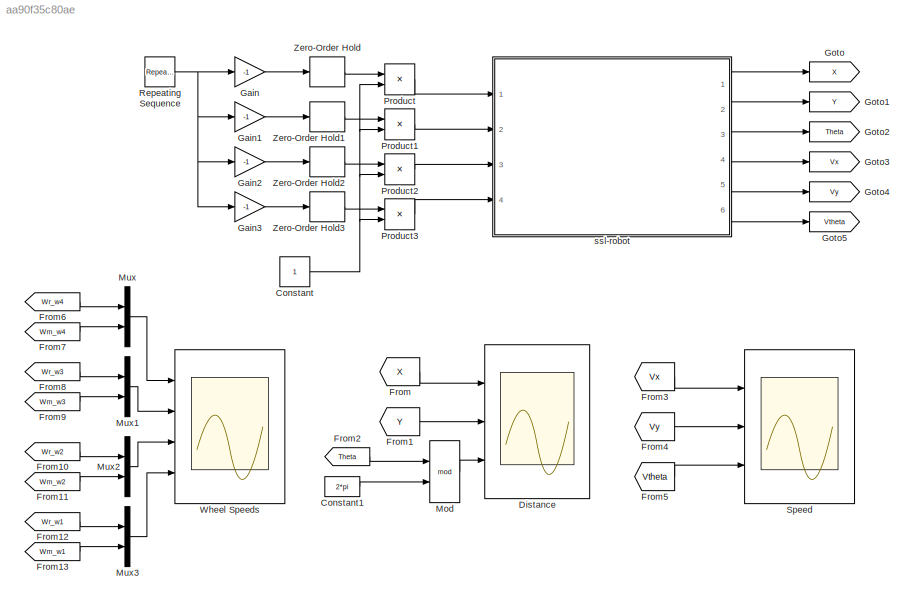
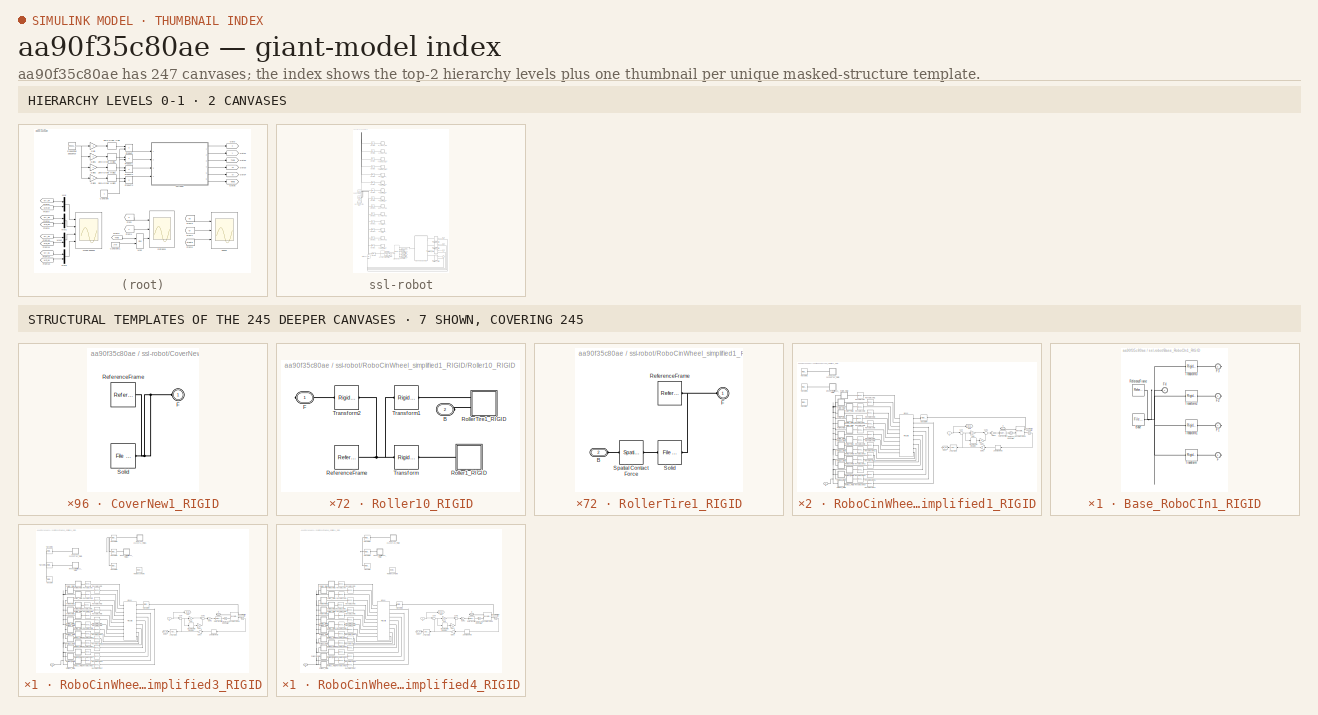
[diagram: thumbnail index - top-2 hierarchy levels (2 canvases) + 7 structural-template representatives of the remaining 245 canvases]
MODEL slx_aa90f35c80ae
KIND model
CONFIG AbsTol = auto
CONFIG EnableMultiTasking = off
CONFIG FixedStep = auto
CONFIG MaxStep = auto
CONFIG MinStep = auto
CONFIG RelTol = 1e-3
CONFIG SampleTimeConstraint = Unconstrained
CONFIG SolverName = VariableStepAuto
CONFIG StartTime = 0.0
CONFIG StopTime = 10.0
WORKSPACE source: external: MATLAB File  (data not in archive)
BLOCK [Constant] Constant
BLOCK [Constant] Constant1
  Value = 2*pi
BLOCK [Scope] Distance
  Floating = off
  NumInputPorts = 3
  Ports = [3]
  ScopeSpecificationString = Simulink.scopes.TimeScopeBlockCfg('CurrentConfiguration', extmgr.ConfigurationSet(extmgr.Configuration('Core','General UI',true),extmgr.Configuration('Core','Source UI',true),extmgr.Configuration('Sources','WiredSimulink',true),extmgr.Configuration('Visuals','Time Domain',true,'SerializedDisplays',{struct('MinYLimReal','-564614316.18593','MaxYLimReal','512051150.25989','YLabelReal','','MinYLimMag'...<+1413ch>
BLOCK [From] From
  GotoTag = X
  TagVisibility = global
BLOCK [From] From1
  GotoTag = Y
  TagVisibility = global
BLOCK [From] From10
  GotoTag = Wr_w2
  TagVisibility = global
BLOCK [From] From11
  GotoTag = Wm_w2
  TagVisibility = global
BLOCK [From] From12
  GotoTag = Wr_w1
  TagVisibility = global
BLOCK [From] From13
  GotoTag = Wm_w1
  TagVisibility = global
BLOCK [From] From2
  GotoTag = Theta
  TagVisibility = global
BLOCK [From] From3
  GotoTag = Vx
  TagVisibility = global
BLOCK [From] From4
  GotoTag = Vy
  TagVisibility = global
BLOCK [From] From5
  GotoTag = Vtheta
  TagVisibility = global
BLOCK [From] From6
  GotoTag = Wr_w4
  TagVisibility = global
BLOCK [From] From7
  GotoTag = Wm_w4
  TagVisibility = global
BLOCK [From] From8
  GotoTag = Wr_w3
  TagVisibility = global
BLOCK [From] From9
  GotoTag = Wm_w3
  TagVisibility = global
BLOCK [Gain] Gain
  Gain = -1
BLOCK [Gain] Gain1
  Gain = -1
BLOCK [Gain] Gain2
  Gain = -1
BLOCK [Gain] Gain3
  Gain = -1
BLOCK [Goto] Goto
  GotoTag = X
  TagVisibility = global
BLOCK [Goto] Goto1
  GotoTag = Y
  TagVisibility = global
BLOCK [Goto] Goto2
  GotoTag = Theta
  TagVisibility = global
BLOCK [Goto] Goto3
  GotoTag = Vx
  TagVisibility = global
BLOCK [Goto] Goto4
  GotoTag = Vy
  TagVisibility = global
BLOCK [Goto] Goto5
  GotoTag = Vtheta
  TagVisibility = global
BLOCK [Math] Mod
  Operator = mod
  Ports = [2, 1]
BLOCK [Mux] Mux
  DisplayOption = bar
  Inputs = 2
  Ports = [2, 1]
BLOCK [Mux] Mux1
  DisplayOption = bar
  Inputs = 2
  Ports = [2, 1]
BLOCK [Mux] Mux2
  DisplayOption = bar
  Inputs = 2
  Ports = [2, 1]
BLOCK [Mux] Mux3
  DisplayOption = bar
  Inputs = 2
  Ports = [2, 1]
BLOCK [Product] Product
  Ports = [2, 1]
BLOCK [Product] Product1
  Ports = [2, 1]
BLOCK [Product] Product2
  Ports = [2, 1]
BLOCK [Product] Product3
  Ports = [2, 1]
BLOCK [Reference] Repeating Sequence  REF=simulink/Sources/Repeating
Sequence
  Ports = [0, 1]
  SourceBlock = simulink/Sources/Repeating\nSequence
  SourceProductBaseCode = SL
  SourceType = Repeating table
BLOCK [Scope] Speed
  Floating = off
  NumInputPorts = 3
  Ports = [3]
  ScopeSpecificationString = Simulink.scopes.TimeScopeBlockCfg('CurrentConfiguration', extmgr.ConfigurationSet(extmgr.Configuration('Core','General UI',true),extmgr.Configuration('Core','Source UI',true),extmgr.Configuration('Sources','WiredSimulink',true,'DataLoggingVariableName','ScopeData1'),extmgr.Configuration('Visuals','Time Domain',true),extmgr.Configuration('Tools','Plot Navigation',true),extmgr.Configuration('Tools',...<+40ch>
BLOCK [Scope] Wheel Speeds
  Floating = off
  NumInputPorts = 4
  Ports = [4]
  ScopeSpecificationString = Simulink.scopes.TimeScopeBlockCfg('CurrentConfiguration', extmgr.ConfigurationSet(extmgr.Configuration('Core','General UI',true),extmgr.Configuration('Core','Source UI',true),extmgr.Configuration('Sources','WiredSimulink',true,'DataLoggingVariableName','ScopeData2'),extmgr.Configuration('Visuals','Time Domain',true),extmgr.Configuration('Tools','Plot Navigation',true),extmgr.Configuration('Tools',...<+40ch>
BLOCK [ZeroOrderHold] Zero-Order Hold
  SampleTime = T
BLOCK [ZeroOrderHold] Zero-Order Hold1
  SampleTime = T
BLOCK [ZeroOrderHold] Zero-Order Hold2
  SampleTime = T
BLOCK [ZeroOrderHold] Zero-Order Hold3
  SampleTime = T
BLOCK [SubSystem] ssl-robot
  Ports = [4, 6]
  RequestExecContextInheritance = off
  ShowPortLabels = FromPortBlockName
BLOCK [SubSystem] ssl-robot/Base_RoboCIn1_RIGID
  Ports = [0, 0, 0, 0, 0, 1, 4]
  RequestExecContextInheritance = off
BLOCK [Reference] ssl-robot/Base_RoboCIn1_RIGID/Base  REF=sm_lib/Body Elements/File Solid
  Ports = [0, 0, 0, 0, 0, 0, 1]
  SourceBlock = sm_lib/Body Elements/File Solid
  SourceProductBaseCode = MS
  SourceType = File Solid
BLOCK [PMIOPort] ssl-robot/Base_RoboCIn1_RIGID/F
  Port = 5
  Side = Right
BLOCK [PMIOPort] ssl-robot/Base_RoboCIn1_RIGID/F1
  Port = 4
  Side = Right
BLOCK [PMIOPort] ssl-robot/Base_RoboCIn1_RIGID/F2
  Port = 3
  Side = Right
BLOCK [PMIOPort] ssl-robot/Base_RoboCIn1_RIGID/F3
  Port = 2
  Side = Right
BLOCK [PMIOPort] ssl-robot/Base_RoboCIn1_RIGID/F4
  Side = Left
BLOCK [Reference] ssl-robot/Base_RoboCIn1_RIGID/ReferenceFrame  REF=sm_lib/Frames and
Transforms/Reference
Frame
  Ports = [0, 0, 0, 0, 0, 0, 1]
  SourceBlock = sm_lib/Frames and\nTransforms/Reference\nFrame
  SourceProductBaseCode = MS
  SourceType = Reference\nFrame
BLOCK [Reference] ssl-robot/Base_RoboCIn1_RIGID/Transform  REF=sm_lib/Frames and
Transforms/Rigid
Transform
  Ports = [0, 0, 0, 0, 0, 1, 1]
  SourceBlock = sm_lib/Frames and\nTransforms/Rigid\nTransform
  SourceProductBaseCode = MS
  SourceType = Rigid\nTransform
BLOCK [Reference] ssl-robot/Base_RoboCIn1_RIGID/Transform1  REF=sm_lib/Frames and
Transforms/Rigid
Transform
  Ports = [0, 0, 0, 0, 0, 1, 1]
  SourceBlock = sm_lib/Frames and\nTransforms/Rigid\nTransform
  SourceProductBaseCode = MS
  SourceType = Rigid\nTransform
BLOCK [Reference] ssl-robot/Base_RoboCIn1_RIGID/Transform2  REF=sm_lib/Frames and
Transforms/Rigid
Transform
  Ports = [0, 0, 0, 0, 0, 1, 1]
  SourceBlock = sm_lib/Frames and\nTransforms/Rigid\nTransform
  SourceProductBaseCode = MS
  SourceType = Rigid\nTransform
BLOCK [Reference] ssl-robot/Base_RoboCIn1_RIGID/Transform3  REF=sm_lib/Frames and
Transforms/Rigid
Transform
  Ports = [0, 0, 0, 0, 0, 1, 1]
  SourceBlock = sm_lib/Frames and\nTransforms/Rigid\nTransform
  SourceProductBaseCode = MS
  SourceType = Rigid\nTransform
BLOCK [Reference] ssl-robot/Cartesian Joint  REF=sm_lib/Joints/Cartesian
Joint
  Ports = [0, 0, 0, 0, 0, 1, 5]
  SourceBlock = sm_lib/Joints/Cartesian\nJoint
  SourceProductBaseCode = MS
  SourceType = Cartesian\nJoint
BLOCK [SubSystem] ssl-robot/CoverNew1_RIGID
  Ports = [0, 0, 0, 0, 0, 1]
  RequestExecContextInheritance = off
BLOCK [PMIOPort] ssl-robot/CoverNew1_RIGID/F
  Side = Left
BLOCK [Reference] ssl-robot/CoverNew1_RIGID/ReferenceFrame  REF=sm_lib/Frames and
Transforms/Reference
Frame
  Ports = [0, 0, 0, 0, 0, 0, 1]
  SourceBlock = sm_lib/Frames and\nTransforms/Reference\nFrame
  SourceProductBaseCode = MS
  SourceType = Reference\nFrame
BLOCK [Reference] ssl-robot/CoverNew1_RIGID/Solid  REF=sm_lib/Body Elements/File Solid
  Ports = [0, 0, 0, 0, 0, 0, 1]
  SourceBlock = sm_lib/Body Elements/File Solid
  SourceProductBaseCode = MS
  SourceType = File Solid
BLOCK [Reference] ssl-robot/Infinite Plane  REF=sm_lib/Curves and Surfaces/Infinite Plane
  NameLocation = left
  Ports = [0, 0, 0, 0, 0, 1, 1]
  SourceBlock = sm_lib/Curves and Surfaces/Infinite Plane
  SourceProductBaseCode = MS
  SourceType = Infinite Plane
BLOCK [Reference] ssl-robot/MechanismConfiguration  REF=sm_lib/Utilities/Mechanism
Configuration
  Ports = [0, 0, 0, 0, 0, 0, 1]
  SourceBlock = sm_lib/Utilities/Mechanism\nConfiguration
  SourceProductBaseCode = MS
  SourceType = Mechanism\nConfiguration
BLOCK [Reference] ssl-robot/PS-Simulink Converter  REF=nesl_utility/PS-Simulink
Converter
  Ports = [0, 1, 0, 0, 0, 1]
  SourceBlock = nesl_utility/PS-Simulink\nConverter
  SourceProductBaseCode = PW,SS
  SourceType = PS-Simulink\nConverter
BLOCK [Reference] ssl-robot/PS-Simulink Converter1  REF=nesl_utility/PS-Simulink
Converter
  Ports = [0, 1, 0, 0, 0, 1]
  SourceBlock = nesl_utility/PS-Simulink\nConverter
  SourceProductBaseCode = PW,SS
  SourceType = PS-Simulink\nConverter
BLOCK [Reference] ssl-robot/PS-Simulink Converter2  REF=nesl_utility/PS-Simulink
Converter
  Ports = [0, 1, 0, 0, 0, 1]
  SourceBlock = nesl_utility/PS-Simulink\nConverter
  SourceProductBaseCode = PW,SS
  SourceType = PS-Simulink\nConverter
BLOCK [Reference] ssl-robot/PS-Simulink Converter3  REF=nesl_utility/PS-Simulink
Converter
  Ports = [0, 1, 0, 0, 0, 1]
  SourceBlock = nesl_utility/PS-Simulink\nConverter
  SourceProductBaseCode = PW,SS
  SourceType = PS-Simulink\nConverter
BLOCK [Reference] ssl-robot/PS-Simulink Converter4  REF=nesl_utility/PS-Simulink
Converter
  Ports = [0, 1, 0, 0, 0, 1]
  SourceBlock = nesl_utility/PS-Simulink\nConverter
  SourceProductBaseCode = PW,SS
  SourceType = PS-Simulink\nConverter
BLOCK [Reference] ssl-robot/PS-Simulink Converter5  REF=nesl_utility/PS-Simulink
Converter
  Ports = [0, 1, 0, 0, 0, 1]
  SourceBlock = nesl_utility/PS-Simulink\nConverter
  SourceProductBaseCode = PW,SS
  SourceType = PS-Simulink\nConverter
BLOCK [Reference] ssl-robot/Revolute Joint  REF=sm_lib/Joints/Revolute Joint
  Ports = [0, 0, 0, 0, 0, 1, 3]
  SourceBlock = sm_lib/Joints/Revolute Joint
  SourceProductBaseCode = MS
  SourceType = Revolute Joint
BLOCK [SubSystem] ssl-robot/RoboCinWheel_simplified1_RIGID
  Ports = [1, 0, 0, 0, 0, 1, 1]
  RequestExecContextInheritance = off
BLOCK [PMIOPort] ssl-robot/RoboCinWheel_simplified1_RIGID/B
  Side = Left
BLOCK [DiscreteIntegrator] ssl-robot/RoboCinWheel_simplified1_RIGID/Discrete-Time Integrator
  ICPrevOutput = DiscIntNeverNeededParam
  ICPrevScaledInput = DiscIntNeverNeededParam
  InitialConditionSetting = Auto
  Ports = [1, 1]
  SampleTime = -1
BLOCK [Gain] ssl-robot/RoboCinWheel_simplified1_RIGID/Gain
  Gain = Kp
BLOCK [Gain] ssl-robot/RoboCinWheel_simplified1_RIGID/Gain1
  Gain = Ki
BLOCK [Gain] ssl-robot/RoboCinWheel_simplified1_RIGID/Gain2
  Gain = -1
BLOCK [Gain] ssl-robot/RoboCinWheel_simplified1_RIGID/Gain3
  Gain = -1
BLOCK [Goto] ssl-robot/RoboCinWheel_simplified1_RIGID/Goto
  GotoTag = Wr_w1
  TagVisibility = global
BLOCK [Goto] ssl-robot/RoboCinWheel_simplified1_RIGID/Goto1
  GotoTag = Wm_w1
  TagVisibility = global
BLOCK [Reference] ssl-robot/RoboCinWheel_simplified1_RIGID/LTI System  REF=cstblocks/LTI System
  Ports = [1, 1]
  SourceBlock = cstblocks/LTI System
  SourceProductBaseCode = CT
  SourceType = LTI Block
BLOCK [Reference] ssl-robot/RoboCinWheel_simplified1_RIGID/PS-Simulink Converter  REF=nesl_utility/PS-Simulink
Converter
  Ports = [0, 1, 0, 0, 0, 1]
  SourceBlock = nesl_utility/PS-Simulink\nConverter
  SourceProductBaseCode = PW,SS
  SourceType = PS-Simulink\nConverter
BLOCK [PMIOPort] ssl-robot/RoboCinWheel_simplified1_RIGID/R
  NameLocation = top
  Port = 2
  Side = Right
BLOCK [RateTransition] ssl-robot/RoboCinWheel_simplified1_RIGID/Rate Transition
BLOCK [Reference] ssl-robot/RoboCinWheel_simplified1_RIGID/Revolute Joint  REF=sm_lib/Joints/Revolute Joint
  Ports = [0, 0, 0, 0, 0, 1, 1]
  SourceBlock = sm_lib/Joints/Revolute Joint
  SourceProductBaseCode = MS
  SourceType = Revolute Joint
BLOCK [Reference] ssl-robot/RoboCinWheel_simplified1_RIGID/Revolute Joint1  REF=sm_lib/Joints/Revolute Joint
  Ports = [0, 0, 0, 0, 0, 1, 1]
  SourceBlock = sm_lib/Joints/Revolute Joint
  SourceProductBaseCode = MS
  SourceType = Revolute Joint
BLOCK [Reference] ssl-robot/RoboCinWheel_simplified1_RIGID/Revolute Joint10  REF=sm_lib/Joints/Revolute Joint
  Ports = [0, 0, 0, 0, 0, 1, 1]
  SourceBlock = sm_lib/Joints/Revolute Joint
  SourceProductBaseCode = MS
  SourceType = Revolute Joint
BLOCK [Reference] ssl-robot/RoboCinWheel_simplified1_RIGID/Revolute Joint11  REF=sm_lib/Joints/Revolute Joint
  Ports = [0, 0, 0, 0, 0, 1, 1]
  SourceBlock = sm_lib/Joints/Revolute Joint
  SourceProductBaseCode = MS
  SourceType = Revolute Joint
BLOCK [Reference] ssl-robot/RoboCinWheel_simplified1_RIGID/Revolute Joint12  REF=sm_lib/Joints/Revolute Joint
  Ports = [0, 0, 0, 0, 0, 1, 1]
  SourceBlock = sm_lib/Joints/Revolute Joint
  SourceProductBaseCode = MS
  SourceType = Revolute Joint
BLOCK [Reference] ssl-robot/RoboCinWheel_simplified1_RIGID/Revolute Joint13  REF=sm_lib/Joints/Revolute Joint
  Ports = [0, 0, 0, 0, 0, 1, 1]
  SourceBlock = sm_lib/Joints/Revolute Joint
  SourceProductBaseCode = MS
  SourceType = Revolute Joint
BLOCK [Reference] ssl-robot/RoboCinWheel_simplified1_RIGID/Revolute Joint14  REF=sm_lib/Joints/Revolute Joint
  Ports = [0, 0, 0, 0, 0, 1, 1]
  SourceBlock = sm_lib/Joints/Revolute Joint
  SourceProductBaseCode = MS
  SourceType = Revolute Joint
BLOCK [Reference] ssl-robot/RoboCinWheel_simplified1_RIGID/Revolute Joint15  REF=sm_lib/Joints/Revolute Joint
  Ports = [0, 0, 0, 0, 0, 1, 1]
  SourceBlock = sm_lib/Joints/Revolute Joint
  SourceProductBaseCode = MS
  SourceType = Revolute Joint
BLOCK [Reference] ssl-robot/RoboCinWheel_simplified1_RIGID/Revolute Joint16  REF=sm_lib/Joints/Revolute Joint
  Ports = [0, 0, 0, 0, 0, 1, 1]
  SourceBlock = sm_lib/Joints/Revolute Joint
  SourceProductBaseCode = MS
  SourceType = Revolute Joint
BLOCK [Reference] ssl-robot/RoboCinWheel_simplified1_RIGID/Revolute Joint17  REF=sm_lib/Joints/Revolute Joint
  Ports = [0, 0, 0, 0, 0, 1, 1]
  SourceBlock = sm_lib/Joints/Revolute Joint
  SourceProductBaseCode = MS
  SourceType = Revolute Joint
BLOCK [Reference] ssl-robot/RoboCinWheel_simplified1_RIGID/Revolute Joint18  REF=sm_lib/Joints/Revolute Joint
  Ports = [0, 0, 0, 0, 0, 2, 2]
  SourceBlock = sm_lib/Joints/Revolute Joint
  SourceProductBaseCode = MS
  SourceType = Revolute Joint
BLOCK [Reference] ssl-robot/RoboCinWheel_simplified1_RIGID/Revolute Joint2  REF=sm_lib/Joints/Revolute Joint
  Ports = [0, 0, 0, 0, 0, 1, 1]
  SourceBlock = sm_lib/Joints/Revolute Joint
  SourceProductBaseCode = MS
  SourceType = Revolute Joint
BLOCK [Reference] ssl-robot/RoboCinWheel_simplified1_RIGID/Revolute Joint3  REF=sm_lib/Joints/Revolute Joint
  Ports = [0, 0, 0, 0, 0, 1, 1]
  SourceBlock = sm_lib/Joints/Revolute Joint
  SourceProductBaseCode = MS
  SourceType = Revolute Joint
BLOCK [Reference] ssl-robot/RoboCinWheel_simplified1_RIGID/Revolute Joint4  REF=sm_lib/Joints/Revolute Joint
  Ports = [0, 0, 0, 0, 0, 1, 1]
  SourceBlock = sm_lib/Joints/Revolute Joint
  SourceProductBaseCode = MS
  SourceType = Revolute Joint
BLOCK [Reference] ssl-robot/RoboCinWheel_simplified1_RIGID/Revolute Joint5  REF=sm_lib/Joints/Revolute Joint
  Ports = [0, 0, 0, 0, 0, 1, 1]
  SourceBlock = sm_lib/Joints/Revolute Joint
  SourceProductBaseCode = MS
  SourceType = Revolute Joint
BLOCK [Reference] ssl-robot/RoboCinWheel_simplified1_RIGID/Revolute Joint6  REF=sm_lib/Joints/Revolute Joint
  Ports = [0, 0, 0, 0, 0, 1, 1]
  SourceBlock = sm_lib/Joints/Revolute Joint
  SourceProductBaseCode = MS
  SourceType = Revolute Joint
BLOCK [Reference] ssl-robot/RoboCinWheel_simplified1_RIGID/Revolute Joint7  REF=sm_lib/Joints/Revolute Joint
  Ports = [0, 0, 0, 0, 0, 1, 1]
  SourceBlock = sm_lib/Joints/Revolute Joint
  SourceProductBaseCode = MS
  SourceType = Revolute Joint
BLOCK [Reference] ssl-robot/RoboCinWheel_simplified1_RIGID/Revolute Joint8  REF=sm_lib/Joints/Revolute Joint
  Ports = [0, 0, 0, 0, 0, 1, 1]
  SourceBlock = sm_lib/Joints/Revolute Joint
  SourceProductBaseCode = MS
  SourceType = Revolute Joint
BLOCK [Reference] ssl-robot/RoboCinWheel_simplified1_RIGID/Revolute Joint9  REF=sm_lib/Joints/Revolute Joint
  Ports = [0, 0, 0, 0, 0, 1, 1]
  SourceBlock = sm_lib/Joints/Revolute Joint
  SourceProductBaseCode = MS
  SourceType = Revolute Joint
BLOCK [SubSystem] ssl-robot/RoboCinWheel_simplified1_RIGID/Roller10_RIGID
  Ports = [0, 0, 0, 0, 0, 1, 1]
  RequestExecContextInheritance = off
BLOCK [PMIOPort] ssl-robot/RoboCinWheel_simplified1_RIGID/Roller10_RIGID/B
  Port = 2
  Side = Left
BLOCK [PMIOPort] ssl-robot/RoboCinWheel_simplified1_RIGID/Roller10_RIGID/F
  Side = Right
BLOCK [Reference] ssl-robot/RoboCinWheel_simplified1_RIGID/Roller10_RIGID/ReferenceFrame  REF=sm_lib/Frames and
Transforms/Reference
Frame
  Ports = [0, 0, 0, 0, 0, 0, 1]
  SourceBlock = sm_lib/Frames and\nTransforms/Reference\nFrame
  SourceProductBaseCode = MS
  SourceType = Reference\nFrame
BLOCK [SubSystem] ssl-robot/RoboCinWheel_simplified1_RIGID/Roller10_RIGID/Roller1_RIGID
  Ports = [0, 0, 0, 0, 0, 1]
  RequestExecContextInheritance = off
BLOCK [PMIOPort] ssl-robot/RoboCinWheel_simplified1_RIGID/Roller10_RIGID/Roller1_RIGID/F
  Side = Left
BLOCK [Reference] ssl-robot/RoboCinWheel_simplified1_RIGID/Roller10_RIGID/Roller1_RIGID/ReferenceFrame  REF=sm_lib/Frames and
Transforms/Reference
Frame
  Ports = [0, 0, 0, 0, 0, 0, 1]
  SourceBlock = sm_lib/Frames and\nTransforms/Reference\nFrame
  SourceProductBaseCode = MS
  SourceType = Reference\nFrame
BLOCK [Reference] ssl-robot/RoboCinWheel_simplified1_RIGID/Roller10_RIGID/Roller1_RIGID/Solid  REF=sm_lib/Body Elements/File Solid
  Ports = [0, 0, 0, 0, 0, 0, 1]
  SourceBlock = sm_lib/Body Elements/File Solid
  SourceProductBaseCode = MS
  SourceType = File Solid
BLOCK [SubSystem] ssl-robot/RoboCinWheel_simplified1_RIGID/Roller10_RIGID/RollerTire1_RIGID
  Ports = [0, 0, 0, 0, 0, 2]
  RequestExecContextInheritance = off
BLOCK [PMIOPort] ssl-robot/RoboCinWheel_simplified1_RIGID/Roller10_RIGID/RollerTire1_RIGID/B
  Port = 2
  Side = Left
BLOCK [PMIOPort] ssl-robot/RoboCinWheel_simplified1_RIGID/Roller10_RIGID/RollerTire1_RIGID/F
  Side = Left
BLOCK [Reference] ssl-robot/RoboCinWheel_simplified1_RIGID/Roller10_RIGID/RollerTire1_RIGID/ReferenceFrame  REF=sm_lib/Frames and
Transforms/Reference
Frame
  Ports = [0, 0, 0, 0, 0, 0, 1]
  SourceBlock = sm_lib/Frames and\nTransforms/Reference\nFrame
  SourceProductBaseCode = MS
  SourceType = Reference\nFrame
BLOCK [Reference] ssl-robot/RoboCinWheel_simplified1_RIGID/Roller10_RIGID/RollerTire1_RIGID/Solid  REF=sm_lib/Body Elements/File Solid
  Ports = [0, 0, 0, 0, 0, 1, 1]
  SourceBlock = sm_lib/Body Elements/File Solid
  SourceProductBaseCode = MS
  SourceType = File Solid
BLOCK [Reference] ssl-robot/RoboCinWheel_simplified1_RIGID/Roller10_RIGID/RollerTire1_RIGID/Spatial Contact Force  REF=sm_lib/Forces and
Torques/Spatial
Contact Force
  Ports = [0, 0, 0, 0, 0, 1, 1]
  SourceBlock = sm_lib/Forces and\nTorques/Spatial\nContact Force
  SourceProductBaseCode = MS
  SourceType = Spatial\nContact Force
BLOCK [Reference] ssl-robot/RoboCinWheel_simplified1_RIGID/Roller10_RIGID/Transform  REF=sm_lib/Frames and
Transforms/Rigid
Transform
  Ports = [0, 0, 0, 0, 0, 1, 1]
  SourceBlock = sm_lib/Frames and\nTransforms/Rigid\nTransform
  SourceProductBaseCode = MS
  SourceType = Rigid\nTransform
BLOCK [Reference] ssl-robot/RoboCinWheel_simplified1_RIGID/Roller10_RIGID/Transform1  REF=sm_lib/Frames and
Transforms/Rigid
Transform
  Ports = [0, 0, 0, 0, 0, 1, 1]
  SourceBlock = sm_lib/Frames and\nTransforms/Rigid\nTransform
  SourceProductBaseCode = MS
  SourceType = Rigid\nTransform
BLOCK [Reference] ssl-robot/RoboCinWheel_simplified1_RIGID/Roller10_RIGID/Transform2  REF=sm_lib/Frames and
Transforms/Rigid
Transform
  Ports = [0, 0, 0, 0, 0, 1, 1]
  SourceBlock = sm_lib/Frames and\nTransforms/Rigid\nTransform
  SourceProductBaseCode = MS
  SourceType = Rigid\nTransform
BLOCK [SubSystem] ssl-robot/RoboCinWheel_simplified1_RIGID/Roller11_RIGID
  Ports = [0, 0, 0, 0, 0, 1, 1]
  RequestExecContextInheritance = off
BLOCK [PMIOPort] ssl-robot/RoboCinWheel_simplified1_RIGID/Roller11_RIGID/B
  Port = 2
  Side = Left
BLOCK [PMIOPort] ssl-robot/RoboCinWheel_simplified1_RIGID/Roller11_RIGID/F
  Side = Right
BLOCK [Reference] ssl-robot/RoboCinWheel_simplified1_RIGID/Roller11_RIGID/ReferenceFrame  REF=sm_lib/Frames and
Transforms/Reference
Frame
  Ports = [0, 0, 0, 0, 0, 0, 1]
  SourceBlock = sm_lib/Frames and\nTransforms/Reference\nFrame
  SourceProductBaseCode = MS
  SourceType = Reference\nFrame
BLOCK [SubSystem] ssl-robot/RoboCinWheel_simplified1_RIGID/Roller11_RIGID/Roller1_RIGID
  Ports = [0, 0, 0, 0, 0, 1]
  RequestExecContextInheritance = off
BLOCK [PMIOPort] ssl-robot/RoboCinWheel_simplified1_RIGID/Roller11_RIGID/Roller1_RIGID/F
  Side = Left
BLOCK [Reference] ssl-robot/RoboCinWheel_simplified1_RIGID/Roller11_RIGID/Roller1_RIGID/ReferenceFrame  REF=sm_lib/Frames and
Transforms/Reference
Frame
  Ports = [0, 0, 0, 0, 0, 0, 1]
  SourceBlock = sm_lib/Frames and\nTransforms/Reference\nFrame
  SourceProductBaseCode = MS
  SourceType = Reference\nFrame
BLOCK [Reference] ssl-robot/RoboCinWheel_simplified1_RIGID/Roller11_RIGID/Roller1_RIGID/Solid  REF=sm_lib/Body Elements/File Solid
  Ports = [0, 0, 0, 0, 0, 0, 1]
  SourceBlock = sm_lib/Body Elements/File Solid
  SourceProductBaseCode = MS
  SourceType = File Solid
BLOCK [SubSystem] ssl-robot/RoboCinWheel_simplified1_RIGID/Roller11_RIGID/RollerTire1_RIGID
  Ports = [0, 0, 0, 0, 0, 2]
  RequestExecContextInheritance = off
BLOCK [PMIOPort] ssl-robot/RoboCinWheel_simplified1_RIGID/Roller11_RIGID/RollerTire1_RIGID/B
  Port = 2
  Side = Left
BLOCK [PMIOPort] ssl-robot/RoboCinWheel_simplified1_RIGID/Roller11_RIGID/RollerTire1_RIGID/F
  Side = Left
BLOCK [Reference] ssl-robot/RoboCinWheel_simplified1_RIGID/Roller11_RIGID/RollerTire1_RIGID/ReferenceFrame  REF=sm_lib/Frames and
Transforms/Reference
Frame
  Ports = [0, 0, 0, 0, 0, 0, 1]
  SourceBlock = sm_lib/Frames and\nTransforms/Reference\nFrame
  SourceProductBaseCode = MS
  SourceType = Reference\nFrame
BLOCK [Reference] ssl-robot/RoboCinWheel_simplified1_RIGID/Roller11_RIGID/RollerTire1_RIGID/Solid  REF=sm_lib/Body Elements/File Solid
  Ports = [0, 0, 0, 0, 0, 1, 1]
  SourceBlock = sm_lib/Body Elements/File Solid
  SourceProductBaseCode = MS
  SourceType = File Solid
BLOCK [Reference] ssl-robot/RoboCinWheel_simplified1_RIGID/Roller11_RIGID/RollerTire1_RIGID/Spatial Contact Force  REF=sm_lib/Forces and
Torques/Spatial
Contact Force
  Ports = [0, 0, 0, 0, 0, 1, 1]
  SourceBlock = sm_lib/Forces and\nTorques/Spatial\nContact Force
  SourceProductBaseCode = MS
  SourceType = Spatial\nContact Force
BLOCK [Reference] ssl-robot/RoboCinWheel_simplified1_RIGID/Roller11_RIGID/Transform  REF=sm_lib/Frames and
Transforms/Rigid
Transform
  Ports = [0, 0, 0, 0, 0, 1, 1]
  SourceBlock = sm_lib/Frames and\nTransforms/Rigid\nTransform
  SourceProductBaseCode = MS
  SourceType = Rigid\nTransform
BLOCK [Reference] ssl-robot/RoboCinWheel_simplified1_RIGID/Roller11_RIGID/Transform1  REF=sm_lib/Frames and
Transforms/Rigid
Transform
  Ports = [0, 0, 0, 0, 0, 1, 1]
  SourceBlock = sm_lib/Frames and\nTransforms/Rigid\nTransform
  SourceProductBaseCode = MS
  SourceType = Rigid\nTransform
BLOCK [Reference] ssl-robot/RoboCinWheel_simplified1_RIGID/Roller11_RIGID/Transform2  REF=sm_lib/Frames and
Transforms/Rigid
Transform
  Ports = [0, 0, 0, 0, 0, 1, 1]
  SourceBlock = sm_lib/Frames and\nTransforms/Rigid\nTransform
  SourceProductBaseCode = MS
  SourceType = Rigid\nTransform
BLOCK [SubSystem] ssl-robot/RoboCinWheel_simplified1_RIGID/Roller12_RIGID
  Ports = [0, 0, 0, 0, 0, 1, 1]
  RequestExecContextInheritance = off
BLOCK [PMIOPort] ssl-robot/RoboCinWheel_simplified1_RIGID/Roller12_RIGID/B
  Port = 2
  Side = Left
BLOCK [PMIOPort] ssl-robot/RoboCinWheel_simplified1_RIGID/Roller12_RIGID/F
  Side = Right
BLOCK [Reference] ssl-robot/RoboCinWheel_simplified1_RIGID/Roller12_RIGID/ReferenceFrame  REF=sm_lib/Frames and
Transforms/Reference
Frame
  Ports = [0, 0, 0, 0, 0, 0, 1]
  SourceBlock = sm_lib/Frames and\nTransforms/Reference\nFrame
  SourceProductBaseCode = MS
  SourceType = Reference\nFrame
BLOCK [SubSystem] ssl-robot/RoboCinWheel_simplified1_RIGID/Roller12_RIGID/Roller1_RIGID
  Ports = [0, 0, 0, 0, 0, 1]
  RequestExecContextInheritance = off
BLOCK [PMIOPort] ssl-robot/RoboCinWheel_simplified1_RIGID/Roller12_RIGID/Roller1_RIGID/F
  Side = Left
BLOCK [Reference] ssl-robot/RoboCinWheel_simplified1_RIGID/Roller12_RIGID/Roller1_RIGID/ReferenceFrame  REF=sm_lib/Frames and
Transforms/Reference
Frame
  Ports = [0, 0, 0, 0, 0, 0, 1]
  SourceBlock = sm_lib/Frames and\nTransforms/Reference\nFrame
  SourceProductBaseCode = MS
  SourceType = Reference\nFrame
BLOCK [Reference] ssl-robot/RoboCinWheel_simplified1_RIGID/Roller12_RIGID/Roller1_RIGID/Solid  REF=sm_lib/Body Elements/File Solid
  Ports = [0, 0, 0, 0, 0, 0, 1]
  SourceBlock = sm_lib/Body Elements/File Solid
  SourceProductBaseCode = MS
  SourceType = File Solid
BLOCK [SubSystem] ssl-robot/RoboCinWheel_simplified1_RIGID/Roller12_RIGID/RollerTire1_RIGID
  Ports = [0, 0, 0, 0, 0, 2]
  RequestExecContextInheritance = off
BLOCK [PMIOPort] ssl-robot/RoboCinWheel_simplified1_RIGID/Roller12_RIGID/RollerTire1_RIGID/B
  Port = 2
  Side = Left
BLOCK [PMIOPort] ssl-robot/RoboCinWheel_simplified1_RIGID/Roller12_RIGID/RollerTire1_RIGID/F
  Side = Left
BLOCK [Reference] ssl-robot/RoboCinWheel_simplified1_RIGID/Roller12_RIGID/RollerTire1_RIGID/ReferenceFrame  REF=sm_lib/Frames and
Transforms/Reference
Frame
  Ports = [0, 0, 0, 0, 0, 0, 1]
  SourceBlock = sm_lib/Frames and\nTransforms/Reference\nFrame
  SourceProductBaseCode = MS
  SourceType = Reference\nFrame
BLOCK [Reference] ssl-robot/RoboCinWheel_simplified1_RIGID/Roller12_RIGID/RollerTire1_RIGID/Solid  REF=sm_lib/Body Elements/File Solid
  Ports = [0, 0, 0, 0, 0, 1, 1]
  SourceBlock = sm_lib/Body Elements/File Solid
  SourceProductBaseCode = MS
  SourceType = File Solid
BLOCK [Reference] ssl-robot/RoboCinWheel_simplified1_RIGID/Roller12_RIGID/RollerTire1_RIGID/Spatial Contact Force  REF=sm_lib/Forces and
Torques/Spatial
Contact Force
  Ports = [0, 0, 0, 0, 0, 1, 1]
  SourceBlock = sm_lib/Forces and\nTorques/Spatial\nContact Force
  SourceProductBaseCode = MS
  SourceType = Spatial\nContact Force
BLOCK [Reference] ssl-robot/RoboCinWheel_simplified1_RIGID/Roller12_RIGID/Transform  REF=sm_lib/Frames and
Transforms/Rigid
Transform
  Ports = [0, 0, 0, 0, 0, 1, 1]
  SourceBlock = sm_lib/Frames and\nTransforms/Rigid\nTransform
  SourceProductBaseCode = MS
  SourceType = Rigid\nTransform
BLOCK [Reference] ssl-robot/RoboCinWheel_simplified1_RIGID/Roller12_RIGID/Transform1  REF=sm_lib/Frames and
Transforms/Rigid
Transform
  Ports = [0, 0, 0, 0, 0, 1, 1]
  SourceBlock = sm_lib/Frames and\nTransforms/Rigid\nTransform
  SourceProductBaseCode = MS
  SourceType = Rigid\nTransform
BLOCK [Reference] ssl-robot/RoboCinWheel_simplified1_RIGID/Roller12_RIGID/Transform2  REF=sm_lib/Frames and
Transforms/Rigid
Transform
  Ports = [0, 0, 0, 0, 0, 1, 1]
  SourceBlock = sm_lib/Frames and\nTransforms/Rigid\nTransform
  SourceProductBaseCode = MS
  SourceType = Rigid\nTransform
BLOCK [SubSystem] ssl-robot/RoboCinWheel_simplified1_RIGID/Roller13_RIGID
  Ports = [0, 0, 0, 0, 0, 1, 1]
  RequestExecContextInheritance = off
BLOCK [PMIOPort] ssl-robot/RoboCinWheel_simplified1_RIGID/Roller13_RIGID/B
  Port = 2
  Side = Left
BLOCK [PMIOPort] ssl-robot/RoboCinWheel_simplified1_RIGID/Roller13_RIGID/F
  Side = Right
BLOCK [Reference] ssl-robot/RoboCinWheel_simplified1_RIGID/Roller13_RIGID/ReferenceFrame  REF=sm_lib/Frames and
Transforms/Reference
Frame
  Ports = [0, 0, 0, 0, 0, 0, 1]
  SourceBlock = sm_lib/Frames and\nTransforms/Reference\nFrame
  SourceProductBaseCode = MS
  SourceType = Reference\nFrame
BLOCK [SubSystem] ssl-robot/RoboCinWheel_simplified1_RIGID/Roller13_RIGID/Roller1_RIGID
  Ports = [0, 0, 0, 0, 0, 1]
  RequestExecContextInheritance = off
BLOCK [PMIOPort] ssl-robot/RoboCinWheel_simplified1_RIGID/Roller13_RIGID/Roller1_RIGID/F
  Side = Left
BLOCK [Reference] ssl-robot/RoboCinWheel_simplified1_RIGID/Roller13_RIGID/Roller1_RIGID/ReferenceFrame  REF=sm_lib/Frames and
Transforms/Reference
Frame
  Ports = [0, 0, 0, 0, 0, 0, 1]
  SourceBlock = sm_lib/Frames and\nTransforms/Reference\nFrame
  SourceProductBaseCode = MS
  SourceType = Reference\nFrame
BLOCK [Reference] ssl-robot/RoboCinWheel_simplified1_RIGID/Roller13_RIGID/Roller1_RIGID/Solid  REF=sm_lib/Body Elements/File Solid
  Ports = [0, 0, 0, 0, 0, 0, 1]
  SourceBlock = sm_lib/Body Elements/File Solid
  SourceProductBaseCode = MS
  SourceType = File Solid
BLOCK [SubSystem] ssl-robot/RoboCinWheel_simplified1_RIGID/Roller13_RIGID/RollerTire1_RIGID
  Ports = [0, 0, 0, 0, 0, 2]
  RequestExecContextInheritance = off
BLOCK [PMIOPort] ssl-robot/RoboCinWheel_simplified1_RIGID/Roller13_RIGID/RollerTire1_RIGID/B
  Port = 2
  Side = Left
BLOCK [PMIOPort] ssl-robot/RoboCinWheel_simplified1_RIGID/Roller13_RIGID/RollerTire1_RIGID/F
  Side = Left
BLOCK [Reference] ssl-robot/RoboCinWheel_simplified1_RIGID/Roller13_RIGID/RollerTire1_RIGID/ReferenceFrame  REF=sm_lib/Frames and
Transforms/Reference
Frame
  Ports = [0, 0, 0, 0, 0, 0, 1]
  SourceBlock = sm_lib/Frames and\nTransforms/Reference\nFrame
  SourceProductBaseCode = MS
  SourceType = Reference\nFrame
BLOCK [Reference] ssl-robot/RoboCinWheel_simplified1_RIGID/Roller13_RIGID/RollerTire1_RIGID/Solid  REF=sm_lib/Body Elements/File Solid
  Ports = [0, 0, 0, 0, 0, 1, 1]
  SourceBlock = sm_lib/Body Elements/File Solid
  SourceProductBaseCode = MS
  SourceType = File Solid
BLOCK [Reference] ssl-robot/RoboCinWheel_simplified1_RIGID/Roller13_RIGID/RollerTire1_RIGID/Spatial Contact Force  REF=sm_lib/Forces and
Torques/Spatial
Contact Force
  Ports = [0, 0, 0, 0, 0, 1, 1]
  SourceBlock = sm_lib/Forces and\nTorques/Spatial\nContact Force
  SourceProductBaseCode = MS
  SourceType = Spatial\nContact Force
BLOCK [Reference] ssl-robot/RoboCinWheel_simplified1_RIGID/Roller13_RIGID/Transform  REF=sm_lib/Frames and
Transforms/Rigid
Transform
  Ports = [0, 0, 0, 0, 0, 1, 1]
  SourceBlock = sm_lib/Frames and\nTransforms/Rigid\nTransform
  SourceProductBaseCode = MS
  SourceType = Rigid\nTransform
BLOCK [Reference] ssl-robot/RoboCinWheel_simplified1_RIGID/Roller13_RIGID/Transform1  REF=sm_lib/Frames and
Transforms/Rigid
Transform
  Ports = [0, 0, 0, 0, 0, 1, 1]
  SourceBlock = sm_lib/Frames and\nTransforms/Rigid\nTransform
  SourceProductBaseCode = MS
  SourceType = Rigid\nTransform
BLOCK [Reference] ssl-robot/RoboCinWheel_simplified1_RIGID/Roller13_RIGID/Transform2  REF=sm_lib/Frames and
Transforms/Rigid
Transform
  Ports = [0, 0, 0, 0, 0, 1, 1]
  SourceBlock = sm_lib/Frames and\nTransforms/Rigid\nTransform
  SourceProductBaseCode = MS
  SourceType = Rigid\nTransform
BLOCK [SubSystem] ssl-robot/RoboCinWheel_simplified1_RIGID/Roller14_RIGID
  Ports = [0, 0, 0, 0, 0, 1, 1]
  RequestExecContextInheritance = off
BLOCK [PMIOPort] ssl-robot/RoboCinWheel_simplified1_RIGID/Roller14_RIGID/B
  Port = 2
  Side = Left
BLOCK [PMIOPort] ssl-robot/RoboCinWheel_simplified1_RIGID/Roller14_RIGID/F
  Side = Right
BLOCK [Reference] ssl-robot/RoboCinWheel_simplified1_RIGID/Roller14_RIGID/ReferenceFrame  REF=sm_lib/Frames and
Transforms/Reference
Frame
  Ports = [0, 0, 0, 0, 0, 0, 1]
  SourceBlock = sm_lib/Frames and\nTransforms/Reference\nFrame
  SourceProductBaseCode = MS
  SourceType = Reference\nFrame
BLOCK [SubSystem] ssl-robot/RoboCinWheel_simplified1_RIGID/Roller14_RIGID/Roller1_RIGID
  Ports = [0, 0, 0, 0, 0, 1]
  RequestExecContextInheritance = off
BLOCK [PMIOPort] ssl-robot/RoboCinWheel_simplified1_RIGID/Roller14_RIGID/Roller1_RIGID/F
  Side = Left
BLOCK [Reference] ssl-robot/RoboCinWheel_simplified1_RIGID/Roller14_RIGID/Roller1_RIGID/ReferenceFrame  REF=sm_lib/Frames and
Transforms/Reference
Frame
  Ports = [0, 0, 0, 0, 0, 0, 1]
  SourceBlock = sm_lib/Frames and\nTransforms/Reference\nFrame
  SourceProductBaseCode = MS
  SourceType = Reference\nFrame
BLOCK [Reference] ssl-robot/RoboCinWheel_simplified1_RIGID/Roller14_RIGID/Roller1_RIGID/Solid  REF=sm_lib/Body Elements/File Solid
  Ports = [0, 0, 0, 0, 0, 0, 1]
  SourceBlock = sm_lib/Body Elements/File Solid
  SourceProductBaseCode = MS
  SourceType = File Solid
BLOCK [SubSystem] ssl-robot/RoboCinWheel_simplified1_RIGID/Roller14_RIGID/RollerTire1_RIGID
  Ports = [0, 0, 0, 0, 0, 2]
  RequestExecContextInheritance = off
BLOCK [PMIOPort] ssl-robot/RoboCinWheel_simplified1_RIGID/Roller14_RIGID/RollerTire1_RIGID/B
  Port = 2
  Side = Left
BLOCK [PMIOPort] ssl-robot/RoboCinWheel_simplified1_RIGID/Roller14_RIGID/RollerTire1_RIGID/F
  Side = Left
BLOCK [Reference] ssl-robot/RoboCinWheel_simplified1_RIGID/Roller14_RIGID/RollerTire1_RIGID/ReferenceFrame  REF=sm_lib/Frames and
Transforms/Reference
Frame
  Ports = [0, 0, 0, 0, 0, 0, 1]
  SourceBlock = sm_lib/Frames and\nTransforms/Reference\nFrame
  SourceProductBaseCode = MS
  SourceType = Reference\nFrame
BLOCK [Reference] ssl-robot/RoboCinWheel_simplified1_RIGID/Roller14_RIGID/RollerTire1_RIGID/Solid  REF=sm_lib/Body Elements/File Solid
  Ports = [0, 0, 0, 0, 0, 1, 1]
  SourceBlock = sm_lib/Body Elements/File Solid
  SourceProductBaseCode = MS
  SourceType = File Solid
BLOCK [Reference] ssl-robot/RoboCinWheel_simplified1_RIGID/Roller14_RIGID/RollerTire1_RIGID/Spatial Contact Force  REF=sm_lib/Forces and
Torques/Spatial
Contact Force
  Ports = [0, 0, 0, 0, 0, 1, 1]
  SourceBlock = sm_lib/Forces and\nTorques/Spatial\nContact Force
  SourceProductBaseCode = MS
  SourceType = Spatial\nContact Force
BLOCK [Reference] ssl-robot/RoboCinWheel_simplified1_RIGID/Roller14_RIGID/Transform  REF=sm_lib/Frames and
Transforms/Rigid
Transform
  Ports = [0, 0, 0, 0, 0, 1, 1]
  SourceBlock = sm_lib/Frames and\nTransforms/Rigid\nTransform
  SourceProductBaseCode = MS
  SourceType = Rigid\nTransform
BLOCK [Reference] ssl-robot/RoboCinWheel_simplified1_RIGID/Roller14_RIGID/Transform1  REF=sm_lib/Frames and
Transforms/Rigid
Transform
  Ports = [0, 0, 0, 0, 0, 1, 1]
  SourceBlock = sm_lib/Frames and\nTransforms/Rigid\nTransform
  SourceProductBaseCode = MS
  SourceType = Rigid\nTransform
BLOCK [Reference] ssl-robot/RoboCinWheel_simplified1_RIGID/Roller14_RIGID/Transform2  REF=sm_lib/Frames and
Transforms/Rigid
Transform
  Ports = [0, 0, 0, 0, 0, 1, 1]
  SourceBlock = sm_lib/Frames and\nTransforms/Rigid\nTransform
  SourceProductBaseCode = MS
  SourceType = Rigid\nTransform
BLOCK [SubSystem] ssl-robot/RoboCinWheel_simplified1_RIGID/Roller15_RIGID
  Ports = [0, 0, 0, 0, 0, 1, 1]
  RequestExecContextInheritance = off
BLOCK [PMIOPort] ssl-robot/RoboCinWheel_simplified1_RIGID/Roller15_RIGID/B
  Port = 2
  Side = Left
BLOCK [PMIOPort] ssl-robot/RoboCinWheel_simplified1_RIGID/Roller15_RIGID/F
  Side = Right
BLOCK [Reference] ssl-robot/RoboCinWheel_simplified1_RIGID/Roller15_RIGID/ReferenceFrame  REF=sm_lib/Frames and
Transforms/Reference
Frame
  Ports = [0, 0, 0, 0, 0, 0, 1]
  SourceBlock = sm_lib/Frames and\nTransforms/Reference\nFrame
  SourceProductBaseCode = MS
  SourceType = Reference\nFrame
BLOCK [SubSystem] ssl-robot/RoboCinWheel_simplified1_RIGID/Roller15_RIGID/Roller1_RIGID
  Ports = [0, 0, 0, 0, 0, 1]
  RequestExecContextInheritance = off
BLOCK [PMIOPort] ssl-robot/RoboCinWheel_simplified1_RIGID/Roller15_RIGID/Roller1_RIGID/F
  Side = Left
BLOCK [Reference] ssl-robot/RoboCinWheel_simplified1_RIGID/Roller15_RIGID/Roller1_RIGID/ReferenceFrame  REF=sm_lib/Frames and
Transforms/Reference
Frame
  Ports = [0, 0, 0, 0, 0, 0, 1]
  SourceBlock = sm_lib/Frames and\nTransforms/Reference\nFrame
  SourceProductBaseCode = MS
  SourceType = Reference\nFrame
BLOCK [Reference] ssl-robot/RoboCinWheel_simplified1_RIGID/Roller15_RIGID/Roller1_RIGID/Solid  REF=sm_lib/Body Elements/File Solid
  Ports = [0, 0, 0, 0, 0, 0, 1]
  SourceBlock = sm_lib/Body Elements/File Solid
  SourceProductBaseCode = MS
  SourceType = File Solid
BLOCK [SubSystem] ssl-robot/RoboCinWheel_simplified1_RIGID/Roller15_RIGID/RollerTire1_RIGID
  Ports = [0, 0, 0, 0, 0, 2]
  RequestExecContextInheritance = off
BLOCK [PMIOPort] ssl-robot/RoboCinWheel_simplified1_RIGID/Roller15_RIGID/RollerTire1_RIGID/B
  Port = 2
  Side = Left
BLOCK [PMIOPort] ssl-robot/RoboCinWheel_simplified1_RIGID/Roller15_RIGID/RollerTire1_RIGID/F
  Side = Left
BLOCK [Reference] ssl-robot/RoboCinWheel_simplified1_RIGID/Roller15_RIGID/RollerTire1_RIGID/ReferenceFrame  REF=sm_lib/Frames and
Transforms/Reference
Frame
  Ports = [0, 0, 0, 0, 0, 0, 1]
  SourceBlock = sm_lib/Frames and\nTransforms/Reference\nFrame
  SourceProductBaseCode = MS
  SourceType = Reference\nFrame
BLOCK [Reference] ssl-robot/RoboCinWheel_simplified1_RIGID/Roller15_RIGID/RollerTire1_RIGID/Solid  REF=sm_lib/Body Elements/File Solid
  Ports = [0, 0, 0, 0, 0, 1, 1]
  SourceBlock = sm_lib/Body Elements/File Solid
  SourceProductBaseCode = MS
  SourceType = File Solid
BLOCK [Reference] ssl-robot/RoboCinWheel_simplified1_RIGID/Roller15_RIGID/RollerTire1_RIGID/Spatial Contact Force  REF=sm_lib/Forces and
Torques/Spatial
Contact Force
  Ports = [0, 0, 0, 0, 0, 1, 1]
  SourceBlock = sm_lib/Forces and\nTorques/Spatial\nContact Force
  SourceProductBaseCode = MS
  SourceType = Spatial\nContact Force
BLOCK [Reference] ssl-robot/RoboCinWheel_simplified1_RIGID/Roller15_RIGID/Transform  REF=sm_lib/Frames and
Transforms/Rigid
Transform
  Ports = [0, 0, 0, 0, 0, 1, 1]
  SourceBlock = sm_lib/Frames and\nTransforms/Rigid\nTransform
  SourceProductBaseCode = MS
  SourceType = Rigid\nTransform
BLOCK [Reference] ssl-robot/RoboCinWheel_simplified1_RIGID/Roller15_RIGID/Transform1  REF=sm_lib/Frames and
Transforms/Rigid
Transform
  Ports = [0, 0, 0, 0, 0, 1, 1]
  SourceBlock = sm_lib/Frames and\nTransforms/Rigid\nTransform
  SourceProductBaseCode = MS
  SourceType = Rigid\nTransform
BLOCK [Reference] ssl-robot/RoboCinWheel_simplified1_RIGID/Roller15_RIGID/Transform2  REF=sm_lib/Frames and
Transforms/Rigid
Transform
  Ports = [0, 0, 0, 0, 0, 1, 1]
  SourceBlock = sm_lib/Frames and\nTransforms/Rigid\nTransform
  SourceProductBaseCode = MS
  SourceType = Rigid\nTransform
BLOCK [SubSystem] ssl-robot/RoboCinWheel_simplified1_RIGID/Roller16_RIGID
  Ports = [0, 0, 0, 0, 0, 1, 1]
  RequestExecContextInheritance = off
BLOCK [PMIOPort] ssl-robot/RoboCinWheel_simplified1_RIGID/Roller16_RIGID/B
  Port = 2
  Side = Left
BLOCK [PMIOPort] ssl-robot/RoboCinWheel_simplified1_RIGID/Roller16_RIGID/F
  Side = Right
BLOCK [Reference] ssl-robot/RoboCinWheel_simplified1_RIGID/Roller16_RIGID/ReferenceFrame  REF=sm_lib/Frames and
Transforms/Reference
Frame
  Ports = [0, 0, 0, 0, 0, 0, 1]
  SourceBlock = sm_lib/Frames and\nTransforms/Reference\nFrame
  SourceProductBaseCode = MS
  SourceType = Reference\nFrame
BLOCK [SubSystem] ssl-robot/RoboCinWheel_simplified1_RIGID/Roller16_RIGID/Roller1_RIGID
  Ports = [0, 0, 0, 0, 0, 1]
  RequestExecContextInheritance = off
BLOCK [PMIOPort] ssl-robot/RoboCinWheel_simplified1_RIGID/Roller16_RIGID/Roller1_RIGID/F
  Side = Left
BLOCK [Reference] ssl-robot/RoboCinWheel_simplified1_RIGID/Roller16_RIGID/Roller1_RIGID/ReferenceFrame  REF=sm_lib/Frames and
Transforms/Reference
Frame
  Ports = [0, 0, 0, 0, 0, 0, 1]
  SourceBlock = sm_lib/Frames and\nTransforms/Reference\nFrame
  SourceProductBaseCode = MS
  SourceType = Reference\nFrame
BLOCK [Reference] ssl-robot/RoboCinWheel_simplified1_RIGID/Roller16_RIGID/Roller1_RIGID/Solid  REF=sm_lib/Body Elements/File Solid
  Ports = [0, 0, 0, 0, 0, 0, 1]
  SourceBlock = sm_lib/Body Elements/File Solid
  SourceProductBaseCode = MS
  SourceType = File Solid
BLOCK [SubSystem] ssl-robot/RoboCinWheel_simplified1_RIGID/Roller16_RIGID/RollerTire1_RIGID
  Ports = [0, 0, 0, 0, 0, 2]
  RequestExecContextInheritance = off
BLOCK [PMIOPort] ssl-robot/RoboCinWheel_simplified1_RIGID/Roller16_RIGID/RollerTire1_RIGID/B
  Port = 2
  Side = Left
BLOCK [PMIOPort] ssl-robot/RoboCinWheel_simplified1_RIGID/Roller16_RIGID/RollerTire1_RIGID/F
  Side = Left
BLOCK [Reference] ssl-robot/RoboCinWheel_simplified1_RIGID/Roller16_RIGID/RollerTire1_RIGID/ReferenceFrame  REF=sm_lib/Frames and
Transforms/Reference
Frame
  Ports = [0, 0, 0, 0, 0, 0, 1]
  SourceBlock = sm_lib/Frames and\nTransforms/Reference\nFrame
  SourceProductBaseCode = MS
  SourceType = Reference\nFrame
BLOCK [Reference] ssl-robot/RoboCinWheel_simplified1_RIGID/Roller16_RIGID/RollerTire1_RIGID/Solid  REF=sm_lib/Body Elements/File Solid
  Ports = [0, 0, 0, 0, 0, 1, 1]
  SourceBlock = sm_lib/Body Elements/File Solid
  SourceProductBaseCode = MS
  SourceType = File Solid
BLOCK [Reference] ssl-robot/RoboCinWheel_simplified1_RIGID/Roller16_RIGID/RollerTire1_RIGID/Spatial Contact Force  REF=sm_lib/Forces and
Torques/Spatial
Contact Force
  Ports = [0, 0, 0, 0, 0, 1, 1]
  SourceBlock = sm_lib/Forces and\nTorques/Spatial\nContact Force
  SourceProductBaseCode = MS
  SourceType = Spatial\nContact Force
BLOCK [Reference] ssl-robot/RoboCinWheel_simplified1_RIGID/Roller16_RIGID/Transform  REF=sm_lib/Frames and
Transforms/Rigid
Transform
  Ports = [0, 0, 0, 0, 0, 1, 1]
  SourceBlock = sm_lib/Frames and\nTransforms/Rigid\nTransform
  SourceProductBaseCode = MS
  SourceType = Rigid\nTransform
BLOCK [Reference] ssl-robot/RoboCinWheel_simplified1_RIGID/Roller16_RIGID/Transform1  REF=sm_lib/Frames and
Transforms/Rigid
Transform
  Ports = [0, 0, 0, 0, 0, 1, 1]
  SourceBlock = sm_lib/Frames and\nTransforms/Rigid\nTransform
  SourceProductBaseCode = MS
  SourceType = Rigid\nTransform
BLOCK [Reference] ssl-robot/RoboCinWheel_simplified1_RIGID/Roller16_RIGID/Transform2  REF=sm_lib/Frames and
Transforms/Rigid
Transform
  Ports = [0, 0, 0, 0, 0, 1, 1]
  SourceBlock = sm_lib/Frames and\nTransforms/Rigid\nTransform
  SourceProductBaseCode = MS
  SourceType = Rigid\nTransform
BLOCK [SubSystem] ssl-robot/RoboCinWheel_simplified1_RIGID/Roller17_RIGID
  Ports = [0, 0, 0, 0, 0, 1, 1]
  RequestExecContextInheritance = off
BLOCK [PMIOPort] ssl-robot/RoboCinWheel_simplified1_RIGID/Roller17_RIGID/B
  Port = 2
  Side = Left
BLOCK [PMIOPort] ssl-robot/RoboCinWheel_simplified1_RIGID/Roller17_RIGID/F
  Side = Right
BLOCK [Reference] ssl-robot/RoboCinWheel_simplified1_RIGID/Roller17_RIGID/ReferenceFrame  REF=sm_lib/Frames and
Transforms/Reference
Frame
  Ports = [0, 0, 0, 0, 0, 0, 1]
  SourceBlock = sm_lib/Frames and\nTransforms/Reference\nFrame
  SourceProductBaseCode = MS
  SourceType = Reference\nFrame
BLOCK [SubSystem] ssl-robot/RoboCinWheel_simplified1_RIGID/Roller17_RIGID/Roller1_RIGID
  Ports = [0, 0, 0, 0, 0, 1]
  RequestExecContextInheritance = off
BLOCK [PMIOPort] ssl-robot/RoboCinWheel_simplified1_RIGID/Roller17_RIGID/Roller1_RIGID/F
  Side = Left
BLOCK [Reference] ssl-robot/RoboCinWheel_simplified1_RIGID/Roller17_RIGID/Roller1_RIGID/ReferenceFrame  REF=sm_lib/Frames and
Transforms/Reference
Frame
  Ports = [0, 0, 0, 0, 0, 0, 1]
  SourceBlock = sm_lib/Frames and\nTransforms/Reference\nFrame
  SourceProductBaseCode = MS
  SourceType = Reference\nFrame
BLOCK [Reference] ssl-robot/RoboCinWheel_simplified1_RIGID/Roller17_RIGID/Roller1_RIGID/Solid  REF=sm_lib/Body Elements/File Solid
  Ports = [0, 0, 0, 0, 0, 0, 1]
  SourceBlock = sm_lib/Body Elements/File Solid
  SourceProductBaseCode = MS
  SourceType = File Solid
BLOCK [SubSystem] ssl-robot/RoboCinWheel_simplified1_RIGID/Roller17_RIGID/RollerTire1_RIGID
  Ports = [0, 0, 0, 0, 0, 2]
  RequestExecContextInheritance = off
BLOCK [PMIOPort] ssl-robot/RoboCinWheel_simplified1_RIGID/Roller17_RIGID/RollerTire1_RIGID/B
  Port = 2
  Side = Left
BLOCK [PMIOPort] ssl-robot/RoboCinWheel_simplified1_RIGID/Roller17_RIGID/RollerTire1_RIGID/F
  Side = Left
BLOCK [Reference] ssl-robot/RoboCinWheel_simplified1_RIGID/Roller17_RIGID/RollerTire1_RIGID/ReferenceFrame  REF=sm_lib/Frames and
Transforms/Reference
Frame
  Ports = [0, 0, 0, 0, 0, 0, 1]
  SourceBlock = sm_lib/Frames and\nTransforms/Reference\nFrame
  SourceProductBaseCode = MS
  SourceType = Reference\nFrame
BLOCK [Reference] ssl-robot/RoboCinWheel_simplified1_RIGID/Roller17_RIGID/RollerTire1_RIGID/Solid  REF=sm_lib/Body Elements/File Solid
  Ports = [0, 0, 0, 0, 0, 1, 1]
  SourceBlock = sm_lib/Body Elements/File Solid
  SourceProductBaseCode = MS
  SourceType = File Solid
BLOCK [Reference] ssl-robot/RoboCinWheel_simplified1_RIGID/Roller17_RIGID/RollerTire1_RIGID/Spatial Contact Force  REF=sm_lib/Forces and
Torques/Spatial
Contact Force
  Ports = [0, 0, 0, 0, 0, 1, 1]
  SourceBlock = sm_lib/Forces and\nTorques/Spatial\nContact Force
  SourceProductBaseCode = MS
  SourceType = Spatial\nContact Force
BLOCK [Reference] ssl-robot/RoboCinWheel_simplified1_RIGID/Roller17_RIGID/Transform  REF=sm_lib/Frames and
Transforms/Rigid
Transform
  Ports = [0, 0, 0, 0, 0, 1, 1]
  SourceBlock = sm_lib/Frames and\nTransforms/Rigid\nTransform
  SourceProductBaseCode = MS
  SourceType = Rigid\nTransform
BLOCK [Reference] ssl-robot/RoboCinWheel_simplified1_RIGID/Roller17_RIGID/Transform1  REF=sm_lib/Frames and
Transforms/Rigid
Transform
  Ports = [0, 0, 0, 0, 0, 1, 1]
  SourceBlock = sm_lib/Frames and\nTransforms/Rigid\nTransform
  SourceProductBaseCode = MS
  SourceType = Rigid\nTransform
BLOCK [Reference] ssl-robot/RoboCinWheel_simplified1_RIGID/Roller17_RIGID/Transform2  REF=sm_lib/Frames and
Transforms/Rigid
Transform
  Ports = [0, 0, 0, 0, 0, 1, 1]
  SourceBlock = sm_lib/Frames and\nTransforms/Rigid\nTransform
  SourceProductBaseCode = MS
  SourceType = Rigid\nTransform
BLOCK [SubSystem] ssl-robot/RoboCinWheel_simplified1_RIGID/Roller18_RIGID
  Ports = [0, 0, 0, 0, 0, 1, 1]
  RequestExecContextInheritance = off
BLOCK [PMIOPort] ssl-robot/RoboCinWheel_simplified1_RIGID/Roller18_RIGID/B
  Port = 2
  Side = Left
BLOCK [PMIOPort] ssl-robot/RoboCinWheel_simplified1_RIGID/Roller18_RIGID/F
  Side = Right
BLOCK [Reference] ssl-robot/RoboCinWheel_simplified1_RIGID/Roller18_RIGID/ReferenceFrame  REF=sm_lib/Frames and
Transforms/Reference
Frame
  Ports = [0, 0, 0, 0, 0, 0, 1]
  SourceBlock = sm_lib/Frames and\nTransforms/Reference\nFrame
  SourceProductBaseCode = MS
  SourceType = Reference\nFrame
BLOCK [SubSystem] ssl-robot/RoboCinWheel_simplified1_RIGID/Roller18_RIGID/Roller1_RIGID
  Ports = [0, 0, 0, 0, 0, 1]
  RequestExecContextInheritance = off
BLOCK [PMIOPort] ssl-robot/RoboCinWheel_simplified1_RIGID/Roller18_RIGID/Roller1_RIGID/F
  Side = Left
BLOCK [Reference] ssl-robot/RoboCinWheel_simplified1_RIGID/Roller18_RIGID/Roller1_RIGID/ReferenceFrame  REF=sm_lib/Frames and
Transforms/Reference
Frame
  Ports = [0, 0, 0, 0, 0, 0, 1]
  SourceBlock = sm_lib/Frames and\nTransforms/Reference\nFrame
  SourceProductBaseCode = MS
  SourceType = Reference\nFrame
BLOCK [Reference] ssl-robot/RoboCinWheel_simplified1_RIGID/Roller18_RIGID/Roller1_RIGID/Solid  REF=sm_lib/Body Elements/File Solid
  Ports = [0, 0, 0, 0, 0, 0, 1]
  SourceBlock = sm_lib/Body Elements/File Solid
  SourceProductBaseCode = MS
  SourceType = File Solid
BLOCK [SubSystem] ssl-robot/RoboCinWheel_simplified1_RIGID/Roller18_RIGID/RollerTire1_RIGID
  Ports = [0, 0, 0, 0, 0, 2]
  RequestExecContextInheritance = off
BLOCK [PMIOPort] ssl-robot/RoboCinWheel_simplified1_RIGID/Roller18_RIGID/RollerTire1_RIGID/B
  Port = 2
  Side = Left
BLOCK [PMIOPort] ssl-robot/RoboCinWheel_simplified1_RIGID/Roller18_RIGID/RollerTire1_RIGID/F
  Side = Left
BLOCK [Reference] ssl-robot/RoboCinWheel_simplified1_RIGID/Roller18_RIGID/RollerTire1_RIGID/ReferenceFrame  REF=sm_lib/Frames and
Transforms/Reference
Frame
  Ports = [0, 0, 0, 0, 0, 0, 1]
  SourceBlock = sm_lib/Frames and\nTransforms/Reference\nFrame
  SourceProductBaseCode = MS
  SourceType = Reference\nFrame
BLOCK [Reference] ssl-robot/RoboCinWheel_simplified1_RIGID/Roller18_RIGID/RollerTire1_RIGID/Solid  REF=sm_lib/Body Elements/File Solid
  Ports = [0, 0, 0, 0, 0, 1, 1]
  SourceBlock = sm_lib/Body Elements/File Solid
  SourceProductBaseCode = MS
  SourceType = File Solid
BLOCK [Reference] ssl-robot/RoboCinWheel_simplified1_RIGID/Roller18_RIGID/RollerTire1_RIGID/Spatial Contact Force  REF=sm_lib/Forces and
Torques/Spatial
Contact Force
  Ports = [0, 0, 0, 0, 0, 1, 1]
  SourceBlock = sm_lib/Forces and\nTorques/Spatial\nContact Force
  SourceProductBaseCode = MS
  SourceType = Spatial\nContact Force
BLOCK [Reference] ssl-robot/RoboCinWheel_simplified1_RIGID/Roller18_RIGID/Transform  REF=sm_lib/Frames and
Transforms/Rigid
Transform
  Ports = [0, 0, 0, 0, 0, 1, 1]
  SourceBlock = sm_lib/Frames and\nTransforms/Rigid\nTransform
  SourceProductBaseCode = MS
  SourceType = Rigid\nTransform
BLOCK [Reference] ssl-robot/RoboCinWheel_simplified1_RIGID/Roller18_RIGID/Transform1  REF=sm_lib/Frames and
Transforms/Rigid
Transform
  Ports = [0, 0, 0, 0, 0, 1, 1]
  SourceBlock = sm_lib/Frames and\nTransforms/Rigid\nTransform
  SourceProductBaseCode = MS
  SourceType = Rigid\nTransform
BLOCK [Reference] ssl-robot/RoboCinWheel_simplified1_RIGID/Roller18_RIGID/Transform2  REF=sm_lib/Frames and
Transforms/Rigid
Transform
  Ports = [0, 0, 0, 0, 0, 1, 1]
  SourceBlock = sm_lib/Frames and\nTransforms/Rigid\nTransform
  SourceProductBaseCode = MS
  SourceType = Rigid\nTransform
BLOCK [SubSystem] ssl-robot/RoboCinWheel_simplified1_RIGID/Roller1_RIGID
  Ports = [0, 0, 0, 0, 0, 1, 1]
  RequestExecContextInheritance = off
BLOCK [PMIOPort] ssl-robot/RoboCinWheel_simplified1_RIGID/Roller1_RIGID/B
  Port = 2
  Side = Left
BLOCK [PMIOPort] ssl-robot/RoboCinWheel_simplified1_RIGID/Roller1_RIGID/F
  Side = Right
BLOCK [Reference] ssl-robot/RoboCinWheel_simplified1_RIGID/Roller1_RIGID/ReferenceFrame  REF=sm_lib/Frames and
Transforms/Reference
Frame
  Ports = [0, 0, 0, 0, 0, 0, 1]
  SourceBlock = sm_lib/Frames and\nTransforms/Reference\nFrame
  SourceProductBaseCode = MS
  SourceType = Reference\nFrame
BLOCK [SubSystem] ssl-robot/RoboCinWheel_simplified1_RIGID/Roller1_RIGID/Roller1_RIGID
  Ports = [0, 0, 0, 0, 0, 1]
  RequestExecContextInheritance = off
BLOCK [PMIOPort] ssl-robot/RoboCinWheel_simplified1_RIGID/Roller1_RIGID/Roller1_RIGID/F
  Side = Left
BLOCK [Reference] ssl-robot/RoboCinWheel_simplified1_RIGID/Roller1_RIGID/Roller1_RIGID/ReferenceFrame  REF=sm_lib/Frames and
Transforms/Reference
Frame
  Ports = [0, 0, 0, 0, 0, 0, 1]
  SourceBlock = sm_lib/Frames and\nTransforms/Reference\nFrame
  SourceProductBaseCode = MS
  SourceType = Reference\nFrame
BLOCK [Reference] ssl-robot/RoboCinWheel_simplified1_RIGID/Roller1_RIGID/Roller1_RIGID/Solid  REF=sm_lib/Body Elements/File Solid
  Ports = [0, 0, 0, 0, 0, 0, 1]
  SourceBlock = sm_lib/Body Elements/File Solid
  SourceProductBaseCode = MS
  SourceType = File Solid
BLOCK [SubSystem] ssl-robot/RoboCinWheel_simplified1_RIGID/Roller1_RIGID/RollerTire1_RIGID
  Ports = [0, 0, 0, 0, 0, 2]
  RequestExecContextInheritance = off
BLOCK [PMIOPort] ssl-robot/RoboCinWheel_simplified1_RIGID/Roller1_RIGID/RollerTire1_RIGID/B
  Port = 2
  Side = Left
BLOCK [PMIOPort] ssl-robot/RoboCinWheel_simplified1_RIGID/Roller1_RIGID/RollerTire1_RIGID/F
  Side = Left
BLOCK [Reference] ssl-robot/RoboCinWheel_simplified1_RIGID/Roller1_RIGID/RollerTire1_RIGID/ReferenceFrame  REF=sm_lib/Frames and
Transforms/Reference
Frame
  Ports = [0, 0, 0, 0, 0, 0, 1]
  SourceBlock = sm_lib/Frames and\nTransforms/Reference\nFrame
  SourceProductBaseCode = MS
  SourceType = Reference\nFrame
BLOCK [Reference] ssl-robot/RoboCinWheel_simplified1_RIGID/Roller1_RIGID/RollerTire1_RIGID/Solid  REF=sm_lib/Body Elements/File Solid
  Ports = [0, 0, 0, 0, 0, 1, 1]
  SourceBlock = sm_lib/Body Elements/File Solid
  SourceProductBaseCode = MS
  SourceType = File Solid
BLOCK [Reference] ssl-robot/RoboCinWheel_simplified1_RIGID/Roller1_RIGID/RollerTire1_RIGID/Spatial Contact Force  REF=sm_lib/Forces and
Torques/Spatial
Contact Force
  Ports = [0, 0, 0, 0, 0, 1, 1]
  SourceBlock = sm_lib/Forces and\nTorques/Spatial\nContact Force
  SourceProductBaseCode = MS
  SourceType = Spatial\nContact Force
BLOCK [Reference] ssl-robot/RoboCinWheel_simplified1_RIGID/Roller1_RIGID/Transform  REF=sm_lib/Frames and
Transforms/Rigid
Transform
  Ports = [0, 0, 0, 0, 0, 1, 1]
  SourceBlock = sm_lib/Frames and\nTransforms/Rigid\nTransform
  SourceProductBaseCode = MS
  SourceType = Rigid\nTransform
BLOCK [Reference] ssl-robot/RoboCinWheel_simplified1_RIGID/Roller1_RIGID/Transform1  REF=sm_lib/Frames and
Transforms/Rigid
Transform
  Ports = [0, 0, 0, 0, 0, 1, 1]
  SourceBlock = sm_lib/Frames and\nTransforms/Rigid\nTransform
  SourceProductBaseCode = MS
  SourceType = Rigid\nTransform
BLOCK [Reference] ssl-robot/RoboCinWheel_simplified1_RIGID/Roller1_RIGID/Transform2  REF=sm_lib/Frames and
Transforms/Rigid
Transform
  Ports = [0, 0, 0, 0, 0, 1, 1]
  SourceBlock = sm_lib/Frames and\nTransforms/Rigid\nTransform
  SourceProductBaseCode = MS
  SourceType = Rigid\nTransform
BLOCK [SubSystem] ssl-robot/RoboCinWheel_simplified1_RIGID/Roller2_RIGID
  Ports = [0, 0, 0, 0, 0, 1, 1]
  RequestExecContextInheritance = off
BLOCK [PMIOPort] ssl-robot/RoboCinWheel_simplified1_RIGID/Roller2_RIGID/B
  Port = 2
  Side = Left
BLOCK [PMIOPort] ssl-robot/RoboCinWheel_simplified1_RIGID/Roller2_RIGID/F
  Side = Right
BLOCK [Reference] ssl-robot/RoboCinWheel_simplified1_RIGID/Roller2_RIGID/ReferenceFrame  REF=sm_lib/Frames and
Transforms/Reference
Frame
  Ports = [0, 0, 0, 0, 0, 0, 1]
  SourceBlock = sm_lib/Frames and\nTransforms/Reference\nFrame
  SourceProductBaseCode = MS
  SourceType = Reference\nFrame
BLOCK [SubSystem] ssl-robot/RoboCinWheel_simplified1_RIGID/Roller2_RIGID/Roller1_RIGID
  Ports = [0, 0, 0, 0, 0, 1]
  RequestExecContextInheritance = off
BLOCK [PMIOPort] ssl-robot/RoboCinWheel_simplified1_RIGID/Roller2_RIGID/Roller1_RIGID/F
  Side = Left
BLOCK [Reference] ssl-robot/RoboCinWheel_simplified1_RIGID/Roller2_RIGID/Roller1_RIGID/ReferenceFrame  REF=sm_lib/Frames and
Transforms/Reference
Frame
  Ports = [0, 0, 0, 0, 0, 0, 1]
  SourceBlock = sm_lib/Frames and\nTransforms/Reference\nFrame
  SourceProductBaseCode = MS
  SourceType = Reference\nFrame
BLOCK [Reference] ssl-robot/RoboCinWheel_simplified1_RIGID/Roller2_RIGID/Roller1_RIGID/Solid  REF=sm_lib/Body Elements/File Solid
  Ports = [0, 0, 0, 0, 0, 0, 1]
  SourceBlock = sm_lib/Body Elements/File Solid
  SourceProductBaseCode = MS
  SourceType = File Solid
BLOCK [SubSystem] ssl-robot/RoboCinWheel_simplified1_RIGID/Roller2_RIGID/RollerTire1_RIGID
  Ports = [0, 0, 0, 0, 0, 2]
  RequestExecContextInheritance = off
BLOCK [PMIOPort] ssl-robot/RoboCinWheel_simplified1_RIGID/Roller2_RIGID/RollerTire1_RIGID/B
  Port = 2
  Side = Left
BLOCK [PMIOPort] ssl-robot/RoboCinWheel_simplified1_RIGID/Roller2_RIGID/RollerTire1_RIGID/F
  Side = Left
BLOCK [Reference] ssl-robot/RoboCinWheel_simplified1_RIGID/Roller2_RIGID/RollerTire1_RIGID/ReferenceFrame  REF=sm_lib/Frames and
Transforms/Reference
Frame
  Ports = [0, 0, 0, 0, 0, 0, 1]
  SourceBlock = sm_lib/Frames and\nTransforms/Reference\nFrame
  SourceProductBaseCode = MS
  SourceType = Reference\nFrame
BLOCK [Reference] ssl-robot/RoboCinWheel_simplified1_RIGID/Roller2_RIGID/RollerTire1_RIGID/Solid  REF=sm_lib/Body Elements/File Solid
  Ports = [0, 0, 0, 0, 0, 1, 1]
  SourceBlock = sm_lib/Body Elements/File Solid
  SourceProductBaseCode = MS
  SourceType = File Solid
BLOCK [Reference] ssl-robot/RoboCinWheel_simplified1_RIGID/Roller2_RIGID/RollerTire1_RIGID/Spatial Contact Force  REF=sm_lib/Forces and
Torques/Spatial
Contact Force
  Ports = [0, 0, 0, 0, 0, 1, 1]
  SourceBlock = sm_lib/Forces and\nTorques/Spatial\nContact Force
  SourceProductBaseCode = MS
  SourceType = Spatial\nContact Force
BLOCK [Reference] ssl-robot/RoboCinWheel_simplified1_RIGID/Roller2_RIGID/Transform  REF=sm_lib/Frames and
Transforms/Rigid
Transform
  Ports = [0, 0, 0, 0, 0, 1, 1]
  SourceBlock = sm_lib/Frames and\nTransforms/Rigid\nTransform
  SourceProductBaseCode = MS
  SourceType = Rigid\nTransform
BLOCK [Reference] ssl-robot/RoboCinWheel_simplified1_RIGID/Roller2_RIGID/Transform1  REF=sm_lib/Frames and
Transforms/Rigid
Transform
  Ports = [0, 0, 0, 0, 0, 1, 1]
  SourceBlock = sm_lib/Frames and\nTransforms/Rigid\nTransform
  SourceProductBaseCode = MS
  SourceType = Rigid\nTransform
BLOCK [Reference] ssl-robot/RoboCinWheel_simplified1_RIGID/Roller2_RIGID/Transform2  REF=sm_lib/Frames and
Transforms/Rigid
Transform
  Ports = [0, 0, 0, 0, 0, 1, 1]
  SourceBlock = sm_lib/Frames and\nTransforms/Rigid\nTransform
  SourceProductBaseCode = MS
  SourceType = Rigid\nTransform
BLOCK [SubSystem] ssl-robot/RoboCinWheel_simplified1_RIGID/Roller3_RIGID
  Ports = [0, 0, 0, 0, 0, 1, 1]
  RequestExecContextInheritance = off
BLOCK [PMIOPort] ssl-robot/RoboCinWheel_simplified1_RIGID/Roller3_RIGID/B
  Port = 2
  Side = Left
BLOCK [PMIOPort] ssl-robot/RoboCinWheel_simplified1_RIGID/Roller3_RIGID/F
  Side = Right
BLOCK [Reference] ssl-robot/RoboCinWheel_simplified1_RIGID/Roller3_RIGID/ReferenceFrame  REF=sm_lib/Frames and
Transforms/Reference
Frame
  Ports = [0, 0, 0, 0, 0, 0, 1]
  SourceBlock = sm_lib/Frames and\nTransforms/Reference\nFrame
  SourceProductBaseCode = MS
  SourceType = Reference\nFrame
BLOCK [SubSystem] ssl-robot/RoboCinWheel_simplified1_RIGID/Roller3_RIGID/Roller1_RIGID
  Ports = [0, 0, 0, 0, 0, 1]
  RequestExecContextInheritance = off
BLOCK [PMIOPort] ssl-robot/RoboCinWheel_simplified1_RIGID/Roller3_RIGID/Roller1_RIGID/F
  Side = Left
BLOCK [Reference] ssl-robot/RoboCinWheel_simplified1_RIGID/Roller3_RIGID/Roller1_RIGID/ReferenceFrame  REF=sm_lib/Frames and
Transforms/Reference
Frame
  Ports = [0, 0, 0, 0, 0, 0, 1]
  SourceBlock = sm_lib/Frames and\nTransforms/Reference\nFrame
  SourceProductBaseCode = MS
  SourceType = Reference\nFrame
BLOCK [Reference] ssl-robot/RoboCinWheel_simplified1_RIGID/Roller3_RIGID/Roller1_RIGID/Solid  REF=sm_lib/Body Elements/File Solid
  Ports = [0, 0, 0, 0, 0, 0, 1]
  SourceBlock = sm_lib/Body Elements/File Solid
  SourceProductBaseCode = MS
  SourceType = File Solid
BLOCK [SubSystem] ssl-robot/RoboCinWheel_simplified1_RIGID/Roller3_RIGID/RollerTire1_RIGID
  Ports = [0, 0, 0, 0, 0, 2]
  RequestExecContextInheritance = off
BLOCK [PMIOPort] ssl-robot/RoboCinWheel_simplified1_RIGID/Roller3_RIGID/RollerTire1_RIGID/B
  Port = 2
  Side = Left
BLOCK [PMIOPort] ssl-robot/RoboCinWheel_simplified1_RIGID/Roller3_RIGID/RollerTire1_RIGID/F
  Side = Left
BLOCK [Reference] ssl-robot/RoboCinWheel_simplified1_RIGID/Roller3_RIGID/RollerTire1_RIGID/ReferenceFrame  REF=sm_lib/Frames and
Transforms/Reference
Frame
  Ports = [0, 0, 0, 0, 0, 0, 1]
  SourceBlock = sm_lib/Frames and\nTransforms/Reference\nFrame
  SourceProductBaseCode = MS
  SourceType = Reference\nFrame
BLOCK [Reference] ssl-robot/RoboCinWheel_simplified1_RIGID/Roller3_RIGID/RollerTire1_RIGID/Solid  REF=sm_lib/Body Elements/File Solid
  Ports = [0, 0, 0, 0, 0, 1, 1]
  SourceBlock = sm_lib/Body Elements/File Solid
  SourceProductBaseCode = MS
  SourceType = File Solid
BLOCK [Reference] ssl-robot/RoboCinWheel_simplified1_RIGID/Roller3_RIGID/RollerTire1_RIGID/Spatial Contact Force  REF=sm_lib/Forces and
Torques/Spatial
Contact Force
  Ports = [0, 0, 0, 0, 0, 1, 1]
  SourceBlock = sm_lib/Forces and\nTorques/Spatial\nContact Force
  SourceProductBaseCode = MS
  SourceType = Spatial\nContact Force
BLOCK [Reference] ssl-robot/RoboCinWheel_simplified1_RIGID/Roller3_RIGID/Transform  REF=sm_lib/Frames and
Transforms/Rigid
Transform
  Ports = [0, 0, 0, 0, 0, 1, 1]
  SourceBlock = sm_lib/Frames and\nTransforms/Rigid\nTransform
  SourceProductBaseCode = MS
  SourceType = Rigid\nTransform
BLOCK [Reference] ssl-robot/RoboCinWheel_simplified1_RIGID/Roller3_RIGID/Transform1  REF=sm_lib/Frames and
Transforms/Rigid
Transform
  Ports = [0, 0, 0, 0, 0, 1, 1]
  SourceBlock = sm_lib/Frames and\nTransforms/Rigid\nTransform
  SourceProductBaseCode = MS
  SourceType = Rigid\nTransform
BLOCK [Reference] ssl-robot/RoboCinWheel_simplified1_RIGID/Roller3_RIGID/Transform2  REF=sm_lib/Frames and
Transforms/Rigid
Transform
  Ports = [0, 0, 0, 0, 0, 1, 1]
  SourceBlock = sm_lib/Frames and\nTransforms/Rigid\nTransform
  SourceProductBaseCode = MS
  SourceType = Rigid\nTransform
BLOCK [SubSystem] ssl-robot/RoboCinWheel_simplified1_RIGID/Roller4_RIGID
  Ports = [0, 0, 0, 0, 0, 1, 1]
  RequestExecContextInheritance = off
BLOCK [PMIOPort] ssl-robot/RoboCinWheel_simplified1_RIGID/Roller4_RIGID/B
  Port = 2
  Side = Left
BLOCK [PMIOPort] ssl-robot/RoboCinWheel_simplified1_RIGID/Roller4_RIGID/F
  Side = Right
BLOCK [Reference] ssl-robot/RoboCinWheel_simplified1_RIGID/Roller4_RIGID/ReferenceFrame  REF=sm_lib/Frames and
Transforms/Reference
Frame
  Ports = [0, 0, 0, 0, 0, 0, 1]
  SourceBlock = sm_lib/Frames and\nTransforms/Reference\nFrame
  SourceProductBaseCode = MS
  SourceType = Reference\nFrame
BLOCK [SubSystem] ssl-robot/RoboCinWheel_simplified1_RIGID/Roller4_RIGID/Roller1_RIGID
  Ports = [0, 0, 0, 0, 0, 1]
  RequestExecContextInheritance = off
BLOCK [PMIOPort] ssl-robot/RoboCinWheel_simplified1_RIGID/Roller4_RIGID/Roller1_RIGID/F
  Side = Left
BLOCK [Reference] ssl-robot/RoboCinWheel_simplified1_RIGID/Roller4_RIGID/Roller1_RIGID/ReferenceFrame  REF=sm_lib/Frames and
Transforms/Reference
Frame
  Ports = [0, 0, 0, 0, 0, 0, 1]
  SourceBlock = sm_lib/Frames and\nTransforms/Reference\nFrame
  SourceProductBaseCode = MS
  SourceType = Reference\nFrame
BLOCK [Reference] ssl-robot/RoboCinWheel_simplified1_RIGID/Roller4_RIGID/Roller1_RIGID/Solid  REF=sm_lib/Body Elements/File Solid
  Ports = [0, 0, 0, 0, 0, 0, 1]
  SourceBlock = sm_lib/Body Elements/File Solid
  SourceProductBaseCode = MS
  SourceType = File Solid
BLOCK [SubSystem] ssl-robot/RoboCinWheel_simplified1_RIGID/Roller4_RIGID/RollerTire1_RIGID
  Ports = [0, 0, 0, 0, 0, 2]
  RequestExecContextInheritance = off
BLOCK [PMIOPort] ssl-robot/RoboCinWheel_simplified1_RIGID/Roller4_RIGID/RollerTire1_RIGID/B
  Port = 2
  Side = Left
BLOCK [PMIOPort] ssl-robot/RoboCinWheel_simplified1_RIGID/Roller4_RIGID/RollerTire1_RIGID/F
  Side = Left
BLOCK [Reference] ssl-robot/RoboCinWheel_simplified1_RIGID/Roller4_RIGID/RollerTire1_RIGID/ReferenceFrame  REF=sm_lib/Frames and
Transforms/Reference
Frame
  Ports = [0, 0, 0, 0, 0, 0, 1]
  SourceBlock = sm_lib/Frames and\nTransforms/Reference\nFrame
  SourceProductBaseCode = MS
  SourceType = Reference\nFrame
BLOCK [Reference] ssl-robot/RoboCinWheel_simplified1_RIGID/Roller4_RIGID/RollerTire1_RIGID/Solid  REF=sm_lib/Body Elements/File Solid
  Ports = [0, 0, 0, 0, 0, 1, 1]
  SourceBlock = sm_lib/Body Elements/File Solid
  SourceProductBaseCode = MS
  SourceType = File Solid
BLOCK [Reference] ssl-robot/RoboCinWheel_simplified1_RIGID/Roller4_RIGID/RollerTire1_RIGID/Spatial Contact Force  REF=sm_lib/Forces and
Torques/Spatial
Contact Force
  Ports = [0, 0, 0, 0, 0, 1, 1]
  SourceBlock = sm_lib/Forces and\nTorques/Spatial\nContact Force
  SourceProductBaseCode = MS
  SourceType = Spatial\nContact Force
BLOCK [Reference] ssl-robot/RoboCinWheel_simplified1_RIGID/Roller4_RIGID/Transform  REF=sm_lib/Frames and
Transforms/Rigid
Transform
  Ports = [0, 0, 0, 0, 0, 1, 1]
  SourceBlock = sm_lib/Frames and\nTransforms/Rigid\nTransform
  SourceProductBaseCode = MS
  SourceType = Rigid\nTransform
BLOCK [Reference] ssl-robot/RoboCinWheel_simplified1_RIGID/Roller4_RIGID/Transform1  REF=sm_lib/Frames and
Transforms/Rigid
Transform
  Ports = [0, 0, 0, 0, 0, 1, 1]
  SourceBlock = sm_lib/Frames and\nTransforms/Rigid\nTransform
  SourceProductBaseCode = MS
  SourceType = Rigid\nTransform
BLOCK [Reference] ssl-robot/RoboCinWheel_simplified1_RIGID/Roller4_RIGID/Transform2  REF=sm_lib/Frames and
Transforms/Rigid
Transform
  Ports = [0, 0, 0, 0, 0, 1, 1]
  SourceBlock = sm_lib/Frames and\nTransforms/Rigid\nTransform
  SourceProductBaseCode = MS
  SourceType = Rigid\nTransform
BLOCK [SubSystem] ssl-robot/RoboCinWheel_simplified1_RIGID/Roller5_RIGID
  Ports = [0, 0, 0, 0, 0, 1, 1]
  RequestExecContextInheritance = off
BLOCK [PMIOPort] ssl-robot/RoboCinWheel_simplified1_RIGID/Roller5_RIGID/B
  Port = 2
  Side = Left
BLOCK [PMIOPort] ssl-robot/RoboCinWheel_simplified1_RIGID/Roller5_RIGID/F
  Side = Right
BLOCK [Reference] ssl-robot/RoboCinWheel_simplified1_RIGID/Roller5_RIGID/ReferenceFrame  REF=sm_lib/Frames and
Transforms/Reference
Frame
  Ports = [0, 0, 0, 0, 0, 0, 1]
  SourceBlock = sm_lib/Frames and\nTransforms/Reference\nFrame
  SourceProductBaseCode = MS
  SourceType = Reference\nFrame
BLOCK [SubSystem] ssl-robot/RoboCinWheel_simplified1_RIGID/Roller5_RIGID/Roller1_RIGID
  Ports = [0, 0, 0, 0, 0, 1]
  RequestExecContextInheritance = off
BLOCK [PMIOPort] ssl-robot/RoboCinWheel_simplified1_RIGID/Roller5_RIGID/Roller1_RIGID/F
  Side = Left
BLOCK [Reference] ssl-robot/RoboCinWheel_simplified1_RIGID/Roller5_RIGID/Roller1_RIGID/ReferenceFrame  REF=sm_lib/Frames and
Transforms/Reference
Frame
  Ports = [0, 0, 0, 0, 0, 0, 1]
  SourceBlock = sm_lib/Frames and\nTransforms/Reference\nFrame
  SourceProductBaseCode = MS
  SourceType = Reference\nFrame
BLOCK [Reference] ssl-robot/RoboCinWheel_simplified1_RIGID/Roller5_RIGID/Roller1_RIGID/Solid  REF=sm_lib/Body Elements/File Solid
  Ports = [0, 0, 0, 0, 0, 0, 1]
  SourceBlock = sm_lib/Body Elements/File Solid
  SourceProductBaseCode = MS
  SourceType = File Solid
BLOCK [SubSystem] ssl-robot/RoboCinWheel_simplified1_RIGID/Roller5_RIGID/RollerTire1_RIGID
  Ports = [0, 0, 0, 0, 0, 2]
  RequestExecContextInheritance = off
BLOCK [PMIOPort] ssl-robot/RoboCinWheel_simplified1_RIGID/Roller5_RIGID/RollerTire1_RIGID/B
  Port = 2
  Side = Left
BLOCK [PMIOPort] ssl-robot/RoboCinWheel_simplified1_RIGID/Roller5_RIGID/RollerTire1_RIGID/F
  Side = Left
BLOCK [Reference] ssl-robot/RoboCinWheel_simplified1_RIGID/Roller5_RIGID/RollerTire1_RIGID/ReferenceFrame  REF=sm_lib/Frames and
Transforms/Reference
Frame
  Ports = [0, 0, 0, 0, 0, 0, 1]
  SourceBlock = sm_lib/Frames and\nTransforms/Reference\nFrame
  SourceProductBaseCode = MS
  SourceType = Reference\nFrame
BLOCK [Reference] ssl-robot/RoboCinWheel_simplified1_RIGID/Roller5_RIGID/RollerTire1_RIGID/Solid  REF=sm_lib/Body Elements/File Solid
  Ports = [0, 0, 0, 0, 0, 1, 1]
  SourceBlock = sm_lib/Body Elements/File Solid
  SourceProductBaseCode = MS
  SourceType = File Solid
BLOCK [Reference] ssl-robot/RoboCinWheel_simplified1_RIGID/Roller5_RIGID/RollerTire1_RIGID/Spatial Contact Force  REF=sm_lib/Forces and
Torques/Spatial
Contact Force
  Ports = [0, 0, 0, 0, 0, 1, 1]
  SourceBlock = sm_lib/Forces and\nTorques/Spatial\nContact Force
  SourceProductBaseCode = MS
  SourceType = Spatial\nContact Force
BLOCK [Reference] ssl-robot/RoboCinWheel_simplified1_RIGID/Roller5_RIGID/Transform  REF=sm_lib/Frames and
Transforms/Rigid
Transform
  Ports = [0, 0, 0, 0, 0, 1, 1]
  SourceBlock = sm_lib/Frames and\nTransforms/Rigid\nTransform
  SourceProductBaseCode = MS
  SourceType = Rigid\nTransform
BLOCK [Reference] ssl-robot/RoboCinWheel_simplified1_RIGID/Roller5_RIGID/Transform1  REF=sm_lib/Frames and
Transforms/Rigid
Transform
  Ports = [0, 0, 0, 0, 0, 1, 1]
  SourceBlock = sm_lib/Frames and\nTransforms/Rigid\nTransform
  SourceProductBaseCode = MS
  SourceType = Rigid\nTransform
BLOCK [Reference] ssl-robot/RoboCinWheel_simplified1_RIGID/Roller5_RIGID/Transform2  REF=sm_lib/Frames and
Transforms/Rigid
Transform
  Ports = [0, 0, 0, 0, 0, 1, 1]
  SourceBlock = sm_lib/Frames and\nTransforms/Rigid\nTransform
  SourceProductBaseCode = MS
  SourceType = Rigid\nTransform
BLOCK [SubSystem] ssl-robot/RoboCinWheel_simplified1_RIGID/Roller6_RIGID
  Ports = [0, 0, 0, 0, 0, 1, 1]
  RequestExecContextInheritance = off
BLOCK [PMIOPort] ssl-robot/RoboCinWheel_simplified1_RIGID/Roller6_RIGID/B
  Port = 2
  Side = Left
BLOCK [PMIOPort] ssl-robot/RoboCinWheel_simplified1_RIGID/Roller6_RIGID/F
  Side = Right
BLOCK [Reference] ssl-robot/RoboCinWheel_simplified1_RIGID/Roller6_RIGID/ReferenceFrame  REF=sm_lib/Frames and
Transforms/Reference
Frame
  Ports = [0, 0, 0, 0, 0, 0, 1]
  SourceBlock = sm_lib/Frames and\nTransforms/Reference\nFrame
  SourceProductBaseCode = MS
  SourceType = Reference\nFrame
BLOCK [SubSystem] ssl-robot/RoboCinWheel_simplified1_RIGID/Roller6_RIGID/Roller1_RIGID
  Ports = [0, 0, 0, 0, 0, 1]
  RequestExecContextInheritance = off
BLOCK [PMIOPort] ssl-robot/RoboCinWheel_simplified1_RIGID/Roller6_RIGID/Roller1_RIGID/F
  Side = Left
BLOCK [Reference] ssl-robot/RoboCinWheel_simplified1_RIGID/Roller6_RIGID/Roller1_RIGID/ReferenceFrame  REF=sm_lib/Frames and
Transforms/Reference
Frame
  Ports = [0, 0, 0, 0, 0, 0, 1]
  SourceBlock = sm_lib/Frames and\nTransforms/Reference\nFrame
  SourceProductBaseCode = MS
  SourceType = Reference\nFrame
BLOCK [Reference] ssl-robot/RoboCinWheel_simplified1_RIGID/Roller6_RIGID/Roller1_RIGID/Solid  REF=sm_lib/Body Elements/File Solid
  Ports = [0, 0, 0, 0, 0, 0, 1]
  SourceBlock = sm_lib/Body Elements/File Solid
  SourceProductBaseCode = MS
  SourceType = File Solid
BLOCK [SubSystem] ssl-robot/RoboCinWheel_simplified1_RIGID/Roller6_RIGID/RollerTire1_RIGID
  Ports = [0, 0, 0, 0, 0, 2]
  RequestExecContextInheritance = off
BLOCK [PMIOPort] ssl-robot/RoboCinWheel_simplified1_RIGID/Roller6_RIGID/RollerTire1_RIGID/B
  Port = 2
  Side = Left
BLOCK [PMIOPort] ssl-robot/RoboCinWheel_simplified1_RIGID/Roller6_RIGID/RollerTire1_RIGID/F
  Side = Left
BLOCK [Reference] ssl-robot/RoboCinWheel_simplified1_RIGID/Roller6_RIGID/RollerTire1_RIGID/ReferenceFrame  REF=sm_lib/Frames and
Transforms/Reference
Frame
  Ports = [0, 0, 0, 0, 0, 0, 1]
  SourceBlock = sm_lib/Frames and\nTransforms/Reference\nFrame
  SourceProductBaseCode = MS
  SourceType = Reference\nFrame
BLOCK [Reference] ssl-robot/RoboCinWheel_simplified1_RIGID/Roller6_RIGID/RollerTire1_RIGID/Solid  REF=sm_lib/Body Elements/File Solid
  Ports = [0, 0, 0, 0, 0, 1, 1]
  SourceBlock = sm_lib/Body Elements/File Solid
  SourceProductBaseCode = MS
  SourceType = File Solid
BLOCK [Reference] ssl-robot/RoboCinWheel_simplified1_RIGID/Roller6_RIGID/RollerTire1_RIGID/Spatial Contact Force  REF=sm_lib/Forces and
Torques/Spatial
Contact Force
  Ports = [0, 0, 0, 0, 0, 1, 1]
  SourceBlock = sm_lib/Forces and\nTorques/Spatial\nContact Force
  SourceProductBaseCode = MS
  SourceType = Spatial\nContact Force
BLOCK [Reference] ssl-robot/RoboCinWheel_simplified1_RIGID/Roller6_RIGID/Transform  REF=sm_lib/Frames and
Transforms/Rigid
Transform
  Ports = [0, 0, 0, 0, 0, 1, 1]
  SourceBlock = sm_lib/Frames and\nTransforms/Rigid\nTransform
  SourceProductBaseCode = MS
  SourceType = Rigid\nTransform
BLOCK [Reference] ssl-robot/RoboCinWheel_simplified1_RIGID/Roller6_RIGID/Transform1  REF=sm_lib/Frames and
Transforms/Rigid
Transform
  Ports = [0, 0, 0, 0, 0, 1, 1]
  SourceBlock = sm_lib/Frames and\nTransforms/Rigid\nTransform
  SourceProductBaseCode = MS
  SourceType = Rigid\nTransform
BLOCK [Reference] ssl-robot/RoboCinWheel_simplified1_RIGID/Roller6_RIGID/Transform2  REF=sm_lib/Frames and
Transforms/Rigid
Transform
  Ports = [0, 0, 0, 0, 0, 1, 1]
  SourceBlock = sm_lib/Frames and\nTransforms/Rigid\nTransform
  SourceProductBaseCode = MS
  SourceType = Rigid\nTransform
BLOCK [SubSystem] ssl-robot/RoboCinWheel_simplified1_RIGID/Roller7_RIGID
  Ports = [0, 0, 0, 0, 0, 1, 1]
  RequestExecContextInheritance = off
BLOCK [PMIOPort] ssl-robot/RoboCinWheel_simplified1_RIGID/Roller7_RIGID/B
  Port = 2
  Side = Left
BLOCK [PMIOPort] ssl-robot/RoboCinWheel_simplified1_RIGID/Roller7_RIGID/F
  Side = Right
BLOCK [Reference] ssl-robot/RoboCinWheel_simplified1_RIGID/Roller7_RIGID/ReferenceFrame  REF=sm_lib/Frames and
Transforms/Reference
Frame
  Ports = [0, 0, 0, 0, 0, 0, 1]
  SourceBlock = sm_lib/Frames and\nTransforms/Reference\nFrame
  SourceProductBaseCode = MS
  SourceType = Reference\nFrame
BLOCK [SubSystem] ssl-robot/RoboCinWheel_simplified1_RIGID/Roller7_RIGID/Roller1_RIGID
  Ports = [0, 0, 0, 0, 0, 1]
  RequestExecContextInheritance = off
BLOCK [PMIOPort] ssl-robot/RoboCinWheel_simplified1_RIGID/Roller7_RIGID/Roller1_RIGID/F
  Side = Left
BLOCK [Reference] ssl-robot/RoboCinWheel_simplified1_RIGID/Roller7_RIGID/Roller1_RIGID/ReferenceFrame  REF=sm_lib/Frames and
Transforms/Reference
Frame
  Ports = [0, 0, 0, 0, 0, 0, 1]
  SourceBlock = sm_lib/Frames and\nTransforms/Reference\nFrame
  SourceProductBaseCode = MS
  SourceType = Reference\nFrame
BLOCK [Reference] ssl-robot/RoboCinWheel_simplified1_RIGID/Roller7_RIGID/Roller1_RIGID/Solid  REF=sm_lib/Body Elements/File Solid
  Ports = [0, 0, 0, 0, 0, 0, 1]
  SourceBlock = sm_lib/Body Elements/File Solid
  SourceProductBaseCode = MS
  SourceType = File Solid
BLOCK [SubSystem] ssl-robot/RoboCinWheel_simplified1_RIGID/Roller7_RIGID/RollerTire1_RIGID
  Ports = [0, 0, 0, 0, 0, 2]
  RequestExecContextInheritance = off
BLOCK [PMIOPort] ssl-robot/RoboCinWheel_simplified1_RIGID/Roller7_RIGID/RollerTire1_RIGID/B
  Port = 2
  Side = Left
BLOCK [PMIOPort] ssl-robot/RoboCinWheel_simplified1_RIGID/Roller7_RIGID/RollerTire1_RIGID/F
  Side = Left
BLOCK [Reference] ssl-robot/RoboCinWheel_simplified1_RIGID/Roller7_RIGID/RollerTire1_RIGID/ReferenceFrame  REF=sm_lib/Frames and
Transforms/Reference
Frame
  Ports = [0, 0, 0, 0, 0, 0, 1]
  SourceBlock = sm_lib/Frames and\nTransforms/Reference\nFrame
  SourceProductBaseCode = MS
  SourceType = Reference\nFrame
BLOCK [Reference] ssl-robot/RoboCinWheel_simplified1_RIGID/Roller7_RIGID/RollerTire1_RIGID/Solid  REF=sm_lib/Body Elements/File Solid
  Ports = [0, 0, 0, 0, 0, 1, 1]
  SourceBlock = sm_lib/Body Elements/File Solid
  SourceProductBaseCode = MS
  SourceType = File Solid
BLOCK [Reference] ssl-robot/RoboCinWheel_simplified1_RIGID/Roller7_RIGID/RollerTire1_RIGID/Spatial Contact Force  REF=sm_lib/Forces and
Torques/Spatial
Contact Force
  Ports = [0, 0, 0, 0, 0, 1, 1]
  SourceBlock = sm_lib/Forces and\nTorques/Spatial\nContact Force
  SourceProductBaseCode = MS
  SourceType = Spatial\nContact Force
BLOCK [Reference] ssl-robot/RoboCinWheel_simplified1_RIGID/Roller7_RIGID/Transform  REF=sm_lib/Frames and
Transforms/Rigid
Transform
  Ports = [0, 0, 0, 0, 0, 1, 1]
  SourceBlock = sm_lib/Frames and\nTransforms/Rigid\nTransform
  SourceProductBaseCode = MS
  SourceType = Rigid\nTransform
BLOCK [Reference] ssl-robot/RoboCinWheel_simplified1_RIGID/Roller7_RIGID/Transform1  REF=sm_lib/Frames and
Transforms/Rigid
Transform
  Ports = [0, 0, 0, 0, 0, 1, 1]
  SourceBlock = sm_lib/Frames and\nTransforms/Rigid\nTransform
  SourceProductBaseCode = MS
  SourceType = Rigid\nTransform
BLOCK [Reference] ssl-robot/RoboCinWheel_simplified1_RIGID/Roller7_RIGID/Transform2  REF=sm_lib/Frames and
Transforms/Rigid
Transform
  Ports = [0, 0, 0, 0, 0, 1, 1]
  SourceBlock = sm_lib/Frames and\nTransforms/Rigid\nTransform
  SourceProductBaseCode = MS
  SourceType = Rigid\nTransform
BLOCK [SubSystem] ssl-robot/RoboCinWheel_simplified1_RIGID/Roller8_RIGID
  Ports = [0, 0, 0, 0, 0, 1, 1]
  RequestExecContextInheritance = off
BLOCK [PMIOPort] ssl-robot/RoboCinWheel_simplified1_RIGID/Roller8_RIGID/B
  Port = 2
  Side = Left
BLOCK [PMIOPort] ssl-robot/RoboCinWheel_simplified1_RIGID/Roller8_RIGID/F
  Side = Right
BLOCK [Reference] ssl-robot/RoboCinWheel_simplified1_RIGID/Roller8_RIGID/ReferenceFrame  REF=sm_lib/Frames and
Transforms/Reference
Frame
  Ports = [0, 0, 0, 0, 0, 0, 1]
  SourceBlock = sm_lib/Frames and\nTransforms/Reference\nFrame
  SourceProductBaseCode = MS
  SourceType = Reference\nFrame
BLOCK [SubSystem] ssl-robot/RoboCinWheel_simplified1_RIGID/Roller8_RIGID/Roller1_RIGID
  Ports = [0, 0, 0, 0, 0, 1]
  RequestExecContextInheritance = off
BLOCK [PMIOPort] ssl-robot/RoboCinWheel_simplified1_RIGID/Roller8_RIGID/Roller1_RIGID/F
  Side = Left
BLOCK [Reference] ssl-robot/RoboCinWheel_simplified1_RIGID/Roller8_RIGID/Roller1_RIGID/ReferenceFrame  REF=sm_lib/Frames and
Transforms/Reference
Frame
  Ports = [0, 0, 0, 0, 0, 0, 1]
  SourceBlock = sm_lib/Frames and\nTransforms/Reference\nFrame
  SourceProductBaseCode = MS
  SourceType = Reference\nFrame
BLOCK [Reference] ssl-robot/RoboCinWheel_simplified1_RIGID/Roller8_RIGID/Roller1_RIGID/Solid  REF=sm_lib/Body Elements/File Solid
  Ports = [0, 0, 0, 0, 0, 0, 1]
  SourceBlock = sm_lib/Body Elements/File Solid
  SourceProductBaseCode = MS
  SourceType = File Solid
BLOCK [SubSystem] ssl-robot/RoboCinWheel_simplified1_RIGID/Roller8_RIGID/RollerTire1_RIGID
  Ports = [0, 0, 0, 0, 0, 2]
  RequestExecContextInheritance = off
BLOCK [PMIOPort] ssl-robot/RoboCinWheel_simplified1_RIGID/Roller8_RIGID/RollerTire1_RIGID/B
  Port = 2
  Side = Left
BLOCK [PMIOPort] ssl-robot/RoboCinWheel_simplified1_RIGID/Roller8_RIGID/RollerTire1_RIGID/F
  Side = Left
BLOCK [Reference] ssl-robot/RoboCinWheel_simplified1_RIGID/Roller8_RIGID/RollerTire1_RIGID/ReferenceFrame  REF=sm_lib/Frames and
Transforms/Reference
Frame
  Ports = [0, 0, 0, 0, 0, 0, 1]
  SourceBlock = sm_lib/Frames and\nTransforms/Reference\nFrame
  SourceProductBaseCode = MS
  SourceType = Reference\nFrame
BLOCK [Reference] ssl-robot/RoboCinWheel_simplified1_RIGID/Roller8_RIGID/RollerTire1_RIGID/Solid  REF=sm_lib/Body Elements/File Solid
  Ports = [0, 0, 0, 0, 0, 1, 1]
  SourceBlock = sm_lib/Body Elements/File Solid
  SourceProductBaseCode = MS
  SourceType = File Solid
BLOCK [Reference] ssl-robot/RoboCinWheel_simplified1_RIGID/Roller8_RIGID/RollerTire1_RIGID/Spatial Contact Force  REF=sm_lib/Forces and
Torques/Spatial
Contact Force
  Ports = [0, 0, 0, 0, 0, 1, 1]
  SourceBlock = sm_lib/Forces and\nTorques/Spatial\nContact Force
  SourceProductBaseCode = MS
  SourceType = Spatial\nContact Force
BLOCK [Reference] ssl-robot/RoboCinWheel_simplified1_RIGID/Roller8_RIGID/Transform  REF=sm_lib/Frames and
Transforms/Rigid
Transform
  Ports = [0, 0, 0, 0, 0, 1, 1]
  SourceBlock = sm_lib/Frames and\nTransforms/Rigid\nTransform
  SourceProductBaseCode = MS
  SourceType = Rigid\nTransform
BLOCK [Reference] ssl-robot/RoboCinWheel_simplified1_RIGID/Roller8_RIGID/Transform1  REF=sm_lib/Frames and
Transforms/Rigid
Transform
  Ports = [0, 0, 0, 0, 0, 1, 1]
  SourceBlock = sm_lib/Frames and\nTransforms/Rigid\nTransform
  SourceProductBaseCode = MS
  SourceType = Rigid\nTransform
BLOCK [Reference] ssl-robot/RoboCinWheel_simplified1_RIGID/Roller8_RIGID/Transform2  REF=sm_lib/Frames and
Transforms/Rigid
Transform
  Ports = [0, 0, 0, 0, 0, 1, 1]
  SourceBlock = sm_lib/Frames and\nTransforms/Rigid\nTransform
  SourceProductBaseCode = MS
  SourceType = Rigid\nTransform
BLOCK [SubSystem] ssl-robot/RoboCinWheel_simplified1_RIGID/Roller9_RIGID
  Ports = [0, 0, 0, 0, 0, 1, 1]
  RequestExecContextInheritance = off
BLOCK [PMIOPort] ssl-robot/RoboCinWheel_simplified1_RIGID/Roller9_RIGID/B
  Port = 2
  Side = Left
BLOCK [PMIOPort] ssl-robot/RoboCinWheel_simplified1_RIGID/Roller9_RIGID/F
  Side = Right
BLOCK [Reference] ssl-robot/RoboCinWheel_simplified1_RIGID/Roller9_RIGID/ReferenceFrame  REF=sm_lib/Frames and
Transforms/Reference
Frame
  Ports = [0, 0, 0, 0, 0, 0, 1]
  SourceBlock = sm_lib/Frames and\nTransforms/Reference\nFrame
  SourceProductBaseCode = MS
  SourceType = Reference\nFrame
BLOCK [SubSystem] ssl-robot/RoboCinWheel_simplified1_RIGID/Roller9_RIGID/Roller1_RIGID
  Ports = [0, 0, 0, 0, 0, 1]
  RequestExecContextInheritance = off
BLOCK [PMIOPort] ssl-robot/RoboCinWheel_simplified1_RIGID/Roller9_RIGID/Roller1_RIGID/F
  Side = Left
BLOCK [Reference] ssl-robot/RoboCinWheel_simplified1_RIGID/Roller9_RIGID/Roller1_RIGID/ReferenceFrame  REF=sm_lib/Frames and
Transforms/Reference
Frame
  Ports = [0, 0, 0, 0, 0, 0, 1]
  SourceBlock = sm_lib/Frames and\nTransforms/Reference\nFrame
  SourceProductBaseCode = MS
  SourceType = Reference\nFrame
BLOCK [Reference] ssl-robot/RoboCinWheel_simplified1_RIGID/Roller9_RIGID/Roller1_RIGID/Solid  REF=sm_lib/Body Elements/File Solid
  Ports = [0, 0, 0, 0, 0, 0, 1]
  SourceBlock = sm_lib/Body Elements/File Solid
  SourceProductBaseCode = MS
  SourceType = File Solid
BLOCK [SubSystem] ssl-robot/RoboCinWheel_simplified1_RIGID/Roller9_RIGID/RollerTire1_RIGID
  Ports = [0, 0, 0, 0, 0, 2]
  RequestExecContextInheritance = off
BLOCK [PMIOPort] ssl-robot/RoboCinWheel_simplified1_RIGID/Roller9_RIGID/RollerTire1_RIGID/B
  Port = 2
  Side = Left
BLOCK [PMIOPort] ssl-robot/RoboCinWheel_simplified1_RIGID/Roller9_RIGID/RollerTire1_RIGID/F
  Side = Left
BLOCK [Reference] ssl-robot/RoboCinWheel_simplified1_RIGID/Roller9_RIGID/RollerTire1_RIGID/ReferenceFrame  REF=sm_lib/Frames and
Transforms/Reference
Frame
  Ports = [0, 0, 0, 0, 0, 0, 1]
  SourceBlock = sm_lib/Frames and\nTransforms/Reference\nFrame
  SourceProductBaseCode = MS
  SourceType = Reference\nFrame
BLOCK [Reference] ssl-robot/RoboCinWheel_simplified1_RIGID/Roller9_RIGID/RollerTire1_RIGID/Solid  REF=sm_lib/Body Elements/File Solid
  Ports = [0, 0, 0, 0, 0, 1, 1]
  SourceBlock = sm_lib/Body Elements/File Solid
  SourceProductBaseCode = MS
  SourceType = File Solid
BLOCK [Reference] ssl-robot/RoboCinWheel_simplified1_RIGID/Roller9_RIGID/RollerTire1_RIGID/Spatial Contact Force  REF=sm_lib/Forces and
Torques/Spatial
Contact Force
  Ports = [0, 0, 0, 0, 0, 1, 1]
  SourceBlock = sm_lib/Forces and\nTorques/Spatial\nContact Force
  SourceProductBaseCode = MS
  SourceType = Spatial\nContact Force
BLOCK [Reference] ssl-robot/RoboCinWheel_simplified1_RIGID/Roller9_RIGID/Transform  REF=sm_lib/Frames and
Transforms/Rigid
Transform
  Ports = [0, 0, 0, 0, 0, 1, 1]
  SourceBlock = sm_lib/Frames and\nTransforms/Rigid\nTransform
  SourceProductBaseCode = MS
  SourceType = Rigid\nTransform
BLOCK [Reference] ssl-robot/RoboCinWheel_simplified1_RIGID/Roller9_RIGID/Transform1  REF=sm_lib/Frames and
Transforms/Rigid
Transform
  Ports = [0, 0, 0, 0, 0, 1, 1]
  SourceBlock = sm_lib/Frames and\nTransforms/Rigid\nTransform
  SourceProductBaseCode = MS
  SourceType = Rigid\nTransform
BLOCK [Reference] ssl-robot/RoboCinWheel_simplified1_RIGID/Roller9_RIGID/Transform2  REF=sm_lib/Frames and
Transforms/Rigid
Transform
  Ports = [0, 0, 0, 0, 0, 1, 1]
  SourceBlock = sm_lib/Frames and\nTransforms/Rigid\nTransform
  SourceProductBaseCode = MS
  SourceType = Rigid\nTransform
BLOCK [Reference] ssl-robot/RoboCinWheel_simplified1_RIGID/Simulink-PS Converter  REF=nesl_utility/Simulink-PS
Converter
  Ports = [1, 0, 0, 0, 0, 0, 1]
  SourceBlock = nesl_utility/Simulink-PS\nConverter
  SourceProductBaseCode = PW,SS
  SourceType = Simulink-PS\nConverter
BLOCK [Sum] ssl-robot/RoboCinWheel_simplified1_RIGID/Sum
  Inputs = |+-
  Ports = [2, 1]
BLOCK [Sum] ssl-robot/RoboCinWheel_simplified1_RIGID/Sum1
  Inputs = |++
  Ports = [2, 1]
BLOCK [Reference] ssl-robot/RoboCinWheel_simplified1_RIGID/Transform  REF=sm_lib/Frames and
Transforms/Rigid
Transform
  Commented = on
  Ports = [0, 0, 0, 0, 0, 1, 1]
  SourceBlock = sm_lib/Frames and\nTransforms/Rigid\nTransform
  SourceProductBaseCode = MS
  SourceType = Rigid\nTransform
BLOCK [Reference] ssl-robot/RoboCinWheel_simplified1_RIGID/Transform1  REF=sm_lib/Frames and
Transforms/Rigid
Transform
  Commented = on
  Ports = [0, 0, 0, 0, 0, 1, 1]
  SourceBlock = sm_lib/Frames and\nTransforms/Rigid\nTransform
  SourceProductBaseCode = MS
  SourceType = Rigid\nTransform
BLOCK [Reference] ssl-robot/RoboCinWheel_simplified1_RIGID/Transform2  REF=sm_lib/Frames and
Transforms/Rigid
Transform
  Commented = on
  Ports = [0, 0, 0, 0, 0, 1, 1]
  SourceBlock = sm_lib/Frames and\nTransforms/Rigid\nTransform
  SourceProductBaseCode = MS
  SourceType = Rigid\nTransform
BLOCK [Reference] ssl-robot/RoboCinWheel_simplified1_RIGID/Transform4  REF=sm_lib/Frames and
Transforms/Rigid
Transform
  Ports = [0, 0, 0, 0, 0, 1, 1]
  SourceBlock = sm_lib/Frames and\nTransforms/Rigid\nTransform
  SourceProductBaseCode = MS
  SourceType = Rigid\nTransform
BLOCK [Reference] ssl-robot/RoboCinWheel_simplified1_RIGID/Wheel  REF=sm_lib/Body Elements/File Solid
  Ports = [0, 0, 0, 0, 0, 10, 9]
  SourceBlock = sm_lib/Body Elements/File Solid
  SourceProductBaseCode = MS
  SourceType = File Solid
BLOCK [ZeroOrderHold] ssl-robot/RoboCinWheel_simplified1_RIGID/Zero-Order Hold
  SampleTime = T
BLOCK [SubSystem] ssl-robot/RoboCinWheel_simplified1_RIGID/gear_z60_26106000_simplified1_RIGID
  Commented = on
  Ports = [0, 0, 0, 0, 0, 1]
  RequestExecContextInheritance = off
BLOCK [PMIOPort] ssl-robot/RoboCinWheel_simplified1_RIGID/gear_z60_26106000_simplified1_RIGID/F
  Side = Left
BLOCK [Reference] ssl-robot/RoboCinWheel_simplified1_RIGID/gear_z60_26106000_simplified1_RIGID/ReferenceFrame  REF=sm_lib/Frames and
Transforms/Reference
Frame
  Ports = [0, 0, 0, 0, 0, 0, 1]
  SourceBlock = sm_lib/Frames and\nTransforms/Reference\nFrame
  SourceProductBaseCode = MS
  SourceType = Reference\nFrame
BLOCK [Reference] ssl-robot/RoboCinWheel_simplified1_RIGID/gear_z60_26106000_simplified1_RIGID/Solid  REF=sm_lib/Body Elements/File Solid
  Ports = [0, 0, 0, 0, 0, 0, 1]
  SourceBlock = sm_lib/Body Elements/File Solid
  SourceProductBaseCode = MS
  SourceType = File Solid
BLOCK [Inport] ssl-robot/RoboCinWheel_simplified1_RIGID/w
BLOCK [SubSystem] ssl-robot/RoboCinWheel_simplified1_RIGID/wheel_simplified21_RIGID
  Commented = on
  Ports = [0, 0, 0, 0, 0, 1]
  RequestExecContextInheritance = off
BLOCK [PMIOPort] ssl-robot/RoboCinWheel_simplified1_RIGID/wheel_simplified21_RIGID/F
  Side = Left
BLOCK [Reference] ssl-robot/RoboCinWheel_simplified1_RIGID/wheel_simplified21_RIGID/ReferenceFrame  REF=sm_lib/Frames and
Transforms/Reference
Frame
  Ports = [0, 0, 0, 0, 0, 0, 1]
  SourceBlock = sm_lib/Frames and\nTransforms/Reference\nFrame
  SourceProductBaseCode = MS
  SourceType = Reference\nFrame
BLOCK [Reference] ssl-robot/RoboCinWheel_simplified1_RIGID/wheel_simplified21_RIGID/Solid  REF=sm_lib/Body Elements/File Solid
  Ports = [0, 0, 0, 0, 0, 0, 1]
  SourceBlock = sm_lib/Body Elements/File Solid
  SourceProductBaseCode = MS
  SourceType = File Solid
BLOCK [SubSystem] ssl-robot/RoboCinWheel_simplified2_RIGID
  Ports = [1, 0, 0, 0, 0, 1, 1]
  RequestExecContextInheritance = off
BLOCK [PMIOPort] ssl-robot/RoboCinWheel_simplified2_RIGID/B
  Side = Left
BLOCK [DiscreteIntegrator] ssl-robot/RoboCinWheel_simplified2_RIGID/Discrete-Time Integrator
  ICPrevOutput = DiscIntNeverNeededParam
  ICPrevScaledInput = DiscIntNeverNeededParam
  InitialConditionSetting = Auto
  Ports = [1, 1]
  SampleTime = -1
BLOCK [Gain] ssl-robot/RoboCinWheel_simplified2_RIGID/Gain
  Gain = Kp
BLOCK [Gain] ssl-robot/RoboCinWheel_simplified2_RIGID/Gain1
  Gain = Ki
BLOCK [Gain] ssl-robot/RoboCinWheel_simplified2_RIGID/Gain2
  Gain = -1
BLOCK [Gain] ssl-robot/RoboCinWheel_simplified2_RIGID/Gain3
  Gain = -1
BLOCK [Goto] ssl-robot/RoboCinWheel_simplified2_RIGID/Goto
  GotoTag = Wr_w2
  TagVisibility = global
BLOCK [Goto] ssl-robot/RoboCinWheel_simplified2_RIGID/Goto1
  GotoTag = Wm_w2
  TagVisibility = global
BLOCK [Reference] ssl-robot/RoboCinWheel_simplified2_RIGID/LTI System  REF=cstblocks/LTI System
  Ports = [1, 1]
  SourceBlock = cstblocks/LTI System
  SourceProductBaseCode = CT
  SourceType = LTI Block
BLOCK [Reference] ssl-robot/RoboCinWheel_simplified2_RIGID/PS-Simulink Converter  REF=nesl_utility/PS-Simulink
Converter
  Ports = [0, 1, 0, 0, 0, 1]
  SourceBlock = nesl_utility/PS-Simulink\nConverter
  SourceProductBaseCode = PW,SS
  SourceType = PS-Simulink\nConverter
BLOCK [PMIOPort] ssl-robot/RoboCinWheel_simplified2_RIGID/R
  NameLocation = top
  Port = 2
  Side = Right
BLOCK [RateTransition] ssl-robot/RoboCinWheel_simplified2_RIGID/Rate Transition
BLOCK [Reference] ssl-robot/RoboCinWheel_simplified2_RIGID/Revolute Joint  REF=sm_lib/Joints/Revolute Joint
  Ports = [0, 0, 0, 0, 0, 1, 1]
  SourceBlock = sm_lib/Joints/Revolute Joint
  SourceProductBaseCode = MS
  SourceType = Revolute Joint
BLOCK [Reference] ssl-robot/RoboCinWheel_simplified2_RIGID/Revolute Joint1  REF=sm_lib/Joints/Revolute Joint
  Ports = [0, 0, 0, 0, 0, 1, 1]
  SourceBlock = sm_lib/Joints/Revolute Joint
  SourceProductBaseCode = MS
  SourceType = Revolute Joint
BLOCK [Reference] ssl-robot/RoboCinWheel_simplified2_RIGID/Revolute Joint10  REF=sm_lib/Joints/Revolute Joint
  Ports = [0, 0, 0, 0, 0, 1, 1]
  SourceBlock = sm_lib/Joints/Revolute Joint
  SourceProductBaseCode = MS
  SourceType = Revolute Joint
BLOCK [Reference] ssl-robot/RoboCinWheel_simplified2_RIGID/Revolute Joint11  REF=sm_lib/Joints/Revolute Joint
  Ports = [0, 0, 0, 0, 0, 1, 1]
  SourceBlock = sm_lib/Joints/Revolute Joint
  SourceProductBaseCode = MS
  SourceType = Revolute Joint
BLOCK [Reference] ssl-robot/RoboCinWheel_simplified2_RIGID/Revolute Joint12  REF=sm_lib/Joints/Revolute Joint
  Ports = [0, 0, 0, 0, 0, 1, 1]
  SourceBlock = sm_lib/Joints/Revolute Joint
  SourceProductBaseCode = MS
  SourceType = Revolute Joint
BLOCK [Reference] ssl-robot/RoboCinWheel_simplified2_RIGID/Revolute Joint13  REF=sm_lib/Joints/Revolute Joint
  Ports = [0, 0, 0, 0, 0, 1, 1]
  SourceBlock = sm_lib/Joints/Revolute Joint
  SourceProductBaseCode = MS
  SourceType = Revolute Joint
BLOCK [Reference] ssl-robot/RoboCinWheel_simplified2_RIGID/Revolute Joint14  REF=sm_lib/Joints/Revolute Joint
  Ports = [0, 0, 0, 0, 0, 1, 1]
  SourceBlock = sm_lib/Joints/Revolute Joint
  SourceProductBaseCode = MS
  SourceType = Revolute Joint
BLOCK [Reference] ssl-robot/RoboCinWheel_simplified2_RIGID/Revolute Joint15  REF=sm_lib/Joints/Revolute Joint
  Ports = [0, 0, 0, 0, 0, 1, 1]
  SourceBlock = sm_lib/Joints/Revolute Joint
  SourceProductBaseCode = MS
  SourceType = Revolute Joint
BLOCK [Reference] ssl-robot/RoboCinWheel_simplified2_RIGID/Revolute Joint16  REF=sm_lib/Joints/Revolute Joint
  Ports = [0, 0, 0, 0, 0, 1, 1]
  SourceBlock = sm_lib/Joints/Revolute Joint
  SourceProductBaseCode = MS
  SourceType = Revolute Joint
BLOCK [Reference] ssl-robot/RoboCinWheel_simplified2_RIGID/Revolute Joint17  REF=sm_lib/Joints/Revolute Joint
  Ports = [0, 0, 0, 0, 0, 1, 1]
  SourceBlock = sm_lib/Joints/Revolute Joint
  SourceProductBaseCode = MS
  SourceType = Revolute Joint
BLOCK [Reference] ssl-robot/RoboCinWheel_simplified2_RIGID/Revolute Joint18  REF=sm_lib/Joints/Revolute Joint
  Ports = [0, 0, 0, 0, 0, 2, 2]
  SourceBlock = sm_lib/Joints/Revolute Joint
  SourceProductBaseCode = MS
  SourceType = Revolute Joint
BLOCK [Reference] ssl-robot/RoboCinWheel_simplified2_RIGID/Revolute Joint2  REF=sm_lib/Joints/Revolute Joint
  Ports = [0, 0, 0, 0, 0, 1, 1]
  SourceBlock = sm_lib/Joints/Revolute Joint
  SourceProductBaseCode = MS
  SourceType = Revolute Joint
BLOCK [Reference] ssl-robot/RoboCinWheel_simplified2_RIGID/Revolute Joint3  REF=sm_lib/Joints/Revolute Joint
  Ports = [0, 0, 0, 0, 0, 1, 1]
  SourceBlock = sm_lib/Joints/Revolute Joint
  SourceProductBaseCode = MS
  SourceType = Revolute Joint
BLOCK [Reference] ssl-robot/RoboCinWheel_simplified2_RIGID/Revolute Joint4  REF=sm_lib/Joints/Revolute Joint
  Ports = [0, 0, 0, 0, 0, 1, 1]
  SourceBlock = sm_lib/Joints/Revolute Joint
  SourceProductBaseCode = MS
  SourceType = Revolute Joint
BLOCK [Reference] ssl-robot/RoboCinWheel_simplified2_RIGID/Revolute Joint5  REF=sm_lib/Joints/Revolute Joint
  Ports = [0, 0, 0, 0, 0, 1, 1]
  SourceBlock = sm_lib/Joints/Revolute Joint
  SourceProductBaseCode = MS
  SourceType = Revolute Joint
BLOCK [Reference] ssl-robot/RoboCinWheel_simplified2_RIGID/Revolute Joint6  REF=sm_lib/Joints/Revolute Joint
  Ports = [0, 0, 0, 0, 0, 1, 1]
  SourceBlock = sm_lib/Joints/Revolute Joint
  SourceProductBaseCode = MS
  SourceType = Revolute Joint
BLOCK [Reference] ssl-robot/RoboCinWheel_simplified2_RIGID/Revolute Joint7  REF=sm_lib/Joints/Revolute Joint
  Ports = [0, 0, 0, 0, 0, 1, 1]
  SourceBlock = sm_lib/Joints/Revolute Joint
  SourceProductBaseCode = MS
  SourceType = Revolute Joint
BLOCK [Reference] ssl-robot/RoboCinWheel_simplified2_RIGID/Revolute Joint8  REF=sm_lib/Joints/Revolute Joint
  Ports = [0, 0, 0, 0, 0, 1, 1]
  SourceBlock = sm_lib/Joints/Revolute Joint
  SourceProductBaseCode = MS
  SourceType = Revolute Joint
BLOCK [Reference] ssl-robot/RoboCinWheel_simplified2_RIGID/Revolute Joint9  REF=sm_lib/Joints/Revolute Joint
  Ports = [0, 0, 0, 0, 0, 1, 1]
  SourceBlock = sm_lib/Joints/Revolute Joint
  SourceProductBaseCode = MS
  SourceType = Revolute Joint
BLOCK [SubSystem] ssl-robot/RoboCinWheel_simplified2_RIGID/Roller10_RIGID
  Ports = [0, 0, 0, 0, 0, 1, 1]
  RequestExecContextInheritance = off
BLOCK [PMIOPort] ssl-robot/RoboCinWheel_simplified2_RIGID/Roller10_RIGID/B
  Port = 2
  Side = Left
BLOCK [PMIOPort] ssl-robot/RoboCinWheel_simplified2_RIGID/Roller10_RIGID/F
  Side = Right
BLOCK [Reference] ssl-robot/RoboCinWheel_simplified2_RIGID/Roller10_RIGID/ReferenceFrame  REF=sm_lib/Frames and
Transforms/Reference
Frame
  Ports = [0, 0, 0, 0, 0, 0, 1]
  SourceBlock = sm_lib/Frames and\nTransforms/Reference\nFrame
  SourceProductBaseCode = MS
  SourceType = Reference\nFrame
BLOCK [SubSystem] ssl-robot/RoboCinWheel_simplified2_RIGID/Roller10_RIGID/Roller1_RIGID
  Ports = [0, 0, 0, 0, 0, 1]
  RequestExecContextInheritance = off
BLOCK [PMIOPort] ssl-robot/RoboCinWheel_simplified2_RIGID/Roller10_RIGID/Roller1_RIGID/F
  Side = Left
BLOCK [Reference] ssl-robot/RoboCinWheel_simplified2_RIGID/Roller10_RIGID/Roller1_RIGID/ReferenceFrame  REF=sm_lib/Frames and
Transforms/Reference
Frame
  Ports = [0, 0, 0, 0, 0, 0, 1]
  SourceBlock = sm_lib/Frames and\nTransforms/Reference\nFrame
  SourceProductBaseCode = MS
  SourceType = Reference\nFrame
BLOCK [Reference] ssl-robot/RoboCinWheel_simplified2_RIGID/Roller10_RIGID/Roller1_RIGID/Solid  REF=sm_lib/Body Elements/File Solid
  Ports = [0, 0, 0, 0, 0, 0, 1]
  SourceBlock = sm_lib/Body Elements/File Solid
  SourceProductBaseCode = MS
  SourceType = File Solid
BLOCK [SubSystem] ssl-robot/RoboCinWheel_simplified2_RIGID/Roller10_RIGID/RollerTire1_RIGID
  Ports = [0, 0, 0, 0, 0, 2]
  RequestExecContextInheritance = off
BLOCK [PMIOPort] ssl-robot/RoboCinWheel_simplified2_RIGID/Roller10_RIGID/RollerTire1_RIGID/B
  Port = 2
  Side = Left
BLOCK [PMIOPort] ssl-robot/RoboCinWheel_simplified2_RIGID/Roller10_RIGID/RollerTire1_RIGID/F
  Side = Left
BLOCK [Reference] ssl-robot/RoboCinWheel_simplified2_RIGID/Roller10_RIGID/RollerTire1_RIGID/ReferenceFrame  REF=sm_lib/Frames and
Transforms/Reference
Frame
  Ports = [0, 0, 0, 0, 0, 0, 1]
  SourceBlock = sm_lib/Frames and\nTransforms/Reference\nFrame
  SourceProductBaseCode = MS
  SourceType = Reference\nFrame
BLOCK [Reference] ssl-robot/RoboCinWheel_simplified2_RIGID/Roller10_RIGID/RollerTire1_RIGID/Solid  REF=sm_lib/Body Elements/File Solid
  Ports = [0, 0, 0, 0, 0, 1, 1]
  SourceBlock = sm_lib/Body Elements/File Solid
  SourceProductBaseCode = MS
  SourceType = File Solid
BLOCK [Reference] ssl-robot/RoboCinWheel_simplified2_RIGID/Roller10_RIGID/RollerTire1_RIGID/Spatial Contact Force  REF=sm_lib/Forces and
Torques/Spatial
Contact Force
  Ports = [0, 0, 0, 0, 0, 1, 1]
  SourceBlock = sm_lib/Forces and\nTorques/Spatial\nContact Force
  SourceProductBaseCode = MS
  SourceType = Spatial\nContact Force
BLOCK [Reference] ssl-robot/RoboCinWheel_simplified2_RIGID/Roller10_RIGID/Transform  REF=sm_lib/Frames and
Transforms/Rigid
Transform
  Ports = [0, 0, 0, 0, 0, 1, 1]
  SourceBlock = sm_lib/Frames and\nTransforms/Rigid\nTransform
  SourceProductBaseCode = MS
  SourceType = Rigid\nTransform
BLOCK [Reference] ssl-robot/RoboCinWheel_simplified2_RIGID/Roller10_RIGID/Transform1  REF=sm_lib/Frames and
Transforms/Rigid
Transform
  Ports = [0, 0, 0, 0, 0, 1, 1]
  SourceBlock = sm_lib/Frames and\nTransforms/Rigid\nTransform
  SourceProductBaseCode = MS
  SourceType = Rigid\nTransform
BLOCK [Reference] ssl-robot/RoboCinWheel_simplified2_RIGID/Roller10_RIGID/Transform2  REF=sm_lib/Frames and
Transforms/Rigid
Transform
  Ports = [0, 0, 0, 0, 0, 1, 1]
  SourceBlock = sm_lib/Frames and\nTransforms/Rigid\nTransform
  SourceProductBaseCode = MS
  SourceType = Rigid\nTransform
BLOCK [SubSystem] ssl-robot/RoboCinWheel_simplified2_RIGID/Roller11_RIGID
  Ports = [0, 0, 0, 0, 0, 1, 1]
  RequestExecContextInheritance = off
BLOCK [PMIOPort] ssl-robot/RoboCinWheel_simplified2_RIGID/Roller11_RIGID/B
  Port = 2
  Side = Left
BLOCK [PMIOPort] ssl-robot/RoboCinWheel_simplified2_RIGID/Roller11_RIGID/F
  Side = Right
BLOCK [Reference] ssl-robot/RoboCinWheel_simplified2_RIGID/Roller11_RIGID/ReferenceFrame  REF=sm_lib/Frames and
Transforms/Reference
Frame
  Ports = [0, 0, 0, 0, 0, 0, 1]
  SourceBlock = sm_lib/Frames and\nTransforms/Reference\nFrame
  SourceProductBaseCode = MS
  SourceType = Reference\nFrame
BLOCK [SubSystem] ssl-robot/RoboCinWheel_simplified2_RIGID/Roller11_RIGID/Roller1_RIGID
  Ports = [0, 0, 0, 0, 0, 1]
  RequestExecContextInheritance = off
BLOCK [PMIOPort] ssl-robot/RoboCinWheel_simplified2_RIGID/Roller11_RIGID/Roller1_RIGID/F
  Side = Left
BLOCK [Reference] ssl-robot/RoboCinWheel_simplified2_RIGID/Roller11_RIGID/Roller1_RIGID/ReferenceFrame  REF=sm_lib/Frames and
Transforms/Reference
Frame
  Ports = [0, 0, 0, 0, 0, 0, 1]
  SourceBlock = sm_lib/Frames and\nTransforms/Reference\nFrame
  SourceProductBaseCode = MS
  SourceType = Reference\nFrame
BLOCK [Reference] ssl-robot/RoboCinWheel_simplified2_RIGID/Roller11_RIGID/Roller1_RIGID/Solid  REF=sm_lib/Body Elements/File Solid
  Ports = [0, 0, 0, 0, 0, 0, 1]
  SourceBlock = sm_lib/Body Elements/File Solid
  SourceProductBaseCode = MS
  SourceType = File Solid
BLOCK [SubSystem] ssl-robot/RoboCinWheel_simplified2_RIGID/Roller11_RIGID/RollerTire1_RIGID
  Ports = [0, 0, 0, 0, 0, 2]
  RequestExecContextInheritance = off
BLOCK [PMIOPort] ssl-robot/RoboCinWheel_simplified2_RIGID/Roller11_RIGID/RollerTire1_RIGID/B
  Port = 2
  Side = Left
BLOCK [PMIOPort] ssl-robot/RoboCinWheel_simplified2_RIGID/Roller11_RIGID/RollerTire1_RIGID/F
  Side = Left
BLOCK [Reference] ssl-robot/RoboCinWheel_simplified2_RIGID/Roller11_RIGID/RollerTire1_RIGID/ReferenceFrame  REF=sm_lib/Frames and
Transforms/Reference
Frame
  Ports = [0, 0, 0, 0, 0, 0, 1]
  SourceBlock = sm_lib/Frames and\nTransforms/Reference\nFrame
  SourceProductBaseCode = MS
  SourceType = Reference\nFrame
BLOCK [Reference] ssl-robot/RoboCinWheel_simplified2_RIGID/Roller11_RIGID/RollerTire1_RIGID/Solid  REF=sm_lib/Body Elements/File Solid
  Ports = [0, 0, 0, 0, 0, 1, 1]
  SourceBlock = sm_lib/Body Elements/File Solid
  SourceProductBaseCode = MS
  SourceType = File Solid
BLOCK [Reference] ssl-robot/RoboCinWheel_simplified2_RIGID/Roller11_RIGID/RollerTire1_RIGID/Spatial Contact Force  REF=sm_lib/Forces and
Torques/Spatial
Contact Force
  Ports = [0, 0, 0, 0, 0, 1, 1]
  SourceBlock = sm_lib/Forces and\nTorques/Spatial\nContact Force
  SourceProductBaseCode = MS
  SourceType = Spatial\nContact Force
BLOCK [Reference] ssl-robot/RoboCinWheel_simplified2_RIGID/Roller11_RIGID/Transform  REF=sm_lib/Frames and
Transforms/Rigid
Transform
  Ports = [0, 0, 0, 0, 0, 1, 1]
  SourceBlock = sm_lib/Frames and\nTransforms/Rigid\nTransform
  SourceProductBaseCode = MS
  SourceType = Rigid\nTransform
BLOCK [Reference] ssl-robot/RoboCinWheel_simplified2_RIGID/Roller11_RIGID/Transform1  REF=sm_lib/Frames and
Transforms/Rigid
Transform
  Ports = [0, 0, 0, 0, 0, 1, 1]
  SourceBlock = sm_lib/Frames and\nTransforms/Rigid\nTransform
  SourceProductBaseCode = MS
  SourceType = Rigid\nTransform
BLOCK [Reference] ssl-robot/RoboCinWheel_simplified2_RIGID/Roller11_RIGID/Transform2  REF=sm_lib/Frames and
Transforms/Rigid
Transform
  Ports = [0, 0, 0, 0, 0, 1, 1]
  SourceBlock = sm_lib/Frames and\nTransforms/Rigid\nTransform
  SourceProductBaseCode = MS
  SourceType = Rigid\nTransform
BLOCK [SubSystem] ssl-robot/RoboCinWheel_simplified2_RIGID/Roller12_RIGID
  Ports = [0, 0, 0, 0, 0, 1, 1]
  RequestExecContextInheritance = off
BLOCK [PMIOPort] ssl-robot/RoboCinWheel_simplified2_RIGID/Roller12_RIGID/B
  Port = 2
  Side = Left
BLOCK [PMIOPort] ssl-robot/RoboCinWheel_simplified2_RIGID/Roller12_RIGID/F
  Side = Right
BLOCK [Reference] ssl-robot/RoboCinWheel_simplified2_RIGID/Roller12_RIGID/ReferenceFrame  REF=sm_lib/Frames and
Transforms/Reference
Frame
  Ports = [0, 0, 0, 0, 0, 0, 1]
  SourceBlock = sm_lib/Frames and\nTransforms/Reference\nFrame
  SourceProductBaseCode = MS
  SourceType = Reference\nFrame
BLOCK [SubSystem] ssl-robot/RoboCinWheel_simplified2_RIGID/Roller12_RIGID/Roller1_RIGID
  Ports = [0, 0, 0, 0, 0, 1]
  RequestExecContextInheritance = off
BLOCK [PMIOPort] ssl-robot/RoboCinWheel_simplified2_RIGID/Roller12_RIGID/Roller1_RIGID/F
  Side = Left
BLOCK [Reference] ssl-robot/RoboCinWheel_simplified2_RIGID/Roller12_RIGID/Roller1_RIGID/ReferenceFrame  REF=sm_lib/Frames and
Transforms/Reference
Frame
  Ports = [0, 0, 0, 0, 0, 0, 1]
  SourceBlock = sm_lib/Frames and\nTransforms/Reference\nFrame
  SourceProductBaseCode = MS
  SourceType = Reference\nFrame
BLOCK [Reference] ssl-robot/RoboCinWheel_simplified2_RIGID/Roller12_RIGID/Roller1_RIGID/Solid  REF=sm_lib/Body Elements/File Solid
  Ports = [0, 0, 0, 0, 0, 0, 1]
  SourceBlock = sm_lib/Body Elements/File Solid
  SourceProductBaseCode = MS
  SourceType = File Solid
BLOCK [SubSystem] ssl-robot/RoboCinWheel_simplified2_RIGID/Roller12_RIGID/RollerTire1_RIGID
  Ports = [0, 0, 0, 0, 0, 2]
  RequestExecContextInheritance = off
BLOCK [PMIOPort] ssl-robot/RoboCinWheel_simplified2_RIGID/Roller12_RIGID/RollerTire1_RIGID/B
  Port = 2
  Side = Left
BLOCK [PMIOPort] ssl-robot/RoboCinWheel_simplified2_RIGID/Roller12_RIGID/RollerTire1_RIGID/F
  Side = Left
BLOCK [Reference] ssl-robot/RoboCinWheel_simplified2_RIGID/Roller12_RIGID/RollerTire1_RIGID/ReferenceFrame  REF=sm_lib/Frames and
Transforms/Reference
Frame
  Ports = [0, 0, 0, 0, 0, 0, 1]
  SourceBlock = sm_lib/Frames and\nTransforms/Reference\nFrame
  SourceProductBaseCode = MS
  SourceType = Reference\nFrame
BLOCK [Reference] ssl-robot/RoboCinWheel_simplified2_RIGID/Roller12_RIGID/RollerTire1_RIGID/Solid  REF=sm_lib/Body Elements/File Solid
  Ports = [0, 0, 0, 0, 0, 1, 1]
  SourceBlock = sm_lib/Body Elements/File Solid
  SourceProductBaseCode = MS
  SourceType = File Solid
BLOCK [Reference] ssl-robot/RoboCinWheel_simplified2_RIGID/Roller12_RIGID/RollerTire1_RIGID/Spatial Contact Force  REF=sm_lib/Forces and
Torques/Spatial
Contact Force
  Ports = [0, 0, 0, 0, 0, 1, 1]
  SourceBlock = sm_lib/Forces and\nTorques/Spatial\nContact Force
  SourceProductBaseCode = MS
  SourceType = Spatial\nContact Force
BLOCK [Reference] ssl-robot/RoboCinWheel_simplified2_RIGID/Roller12_RIGID/Transform  REF=sm_lib/Frames and
Transforms/Rigid
Transform
  Ports = [0, 0, 0, 0, 0, 1, 1]
  SourceBlock = sm_lib/Frames and\nTransforms/Rigid\nTransform
  SourceProductBaseCode = MS
  SourceType = Rigid\nTransform
BLOCK [Reference] ssl-robot/RoboCinWheel_simplified2_RIGID/Roller12_RIGID/Transform1  REF=sm_lib/Frames and
Transforms/Rigid
Transform
  Ports = [0, 0, 0, 0, 0, 1, 1]
  SourceBlock = sm_lib/Frames and\nTransforms/Rigid\nTransform
  SourceProductBaseCode = MS
  SourceType = Rigid\nTransform
BLOCK [Reference] ssl-robot/RoboCinWheel_simplified2_RIGID/Roller12_RIGID/Transform2  REF=sm_lib/Frames and
Transforms/Rigid
Transform
  Ports = [0, 0, 0, 0, 0, 1, 1]
  SourceBlock = sm_lib/Frames and\nTransforms/Rigid\nTransform
  SourceProductBaseCode = MS
  SourceType = Rigid\nTransform
BLOCK [SubSystem] ssl-robot/RoboCinWheel_simplified2_RIGID/Roller13_RIGID
  Ports = [0, 0, 0, 0, 0, 1, 1]
  RequestExecContextInheritance = off
BLOCK [PMIOPort] ssl-robot/RoboCinWheel_simplified2_RIGID/Roller13_RIGID/B
  Port = 2
  Side = Left
BLOCK [PMIOPort] ssl-robot/RoboCinWheel_simplified2_RIGID/Roller13_RIGID/F
  Side = Right
BLOCK [Reference] ssl-robot/RoboCinWheel_simplified2_RIGID/Roller13_RIGID/ReferenceFrame  REF=sm_lib/Frames and
Transforms/Reference
Frame
  Ports = [0, 0, 0, 0, 0, 0, 1]
  SourceBlock = sm_lib/Frames and\nTransforms/Reference\nFrame
  SourceProductBaseCode = MS
  SourceType = Reference\nFrame
BLOCK [SubSystem] ssl-robot/RoboCinWheel_simplified2_RIGID/Roller13_RIGID/Roller1_RIGID
  Ports = [0, 0, 0, 0, 0, 1]
  RequestExecContextInheritance = off
BLOCK [PMIOPort] ssl-robot/RoboCinWheel_simplified2_RIGID/Roller13_RIGID/Roller1_RIGID/F
  Side = Left
BLOCK [Reference] ssl-robot/RoboCinWheel_simplified2_RIGID/Roller13_RIGID/Roller1_RIGID/ReferenceFrame  REF=sm_lib/Frames and
Transforms/Reference
Frame
  Ports = [0, 0, 0, 0, 0, 0, 1]
  SourceBlock = sm_lib/Frames and\nTransforms/Reference\nFrame
  SourceProductBaseCode = MS
  SourceType = Reference\nFrame
BLOCK [Reference] ssl-robot/RoboCinWheel_simplified2_RIGID/Roller13_RIGID/Roller1_RIGID/Solid  REF=sm_lib/Body Elements/File Solid
  Ports = [0, 0, 0, 0, 0, 0, 1]
  SourceBlock = sm_lib/Body Elements/File Solid
  SourceProductBaseCode = MS
  SourceType = File Solid
BLOCK [SubSystem] ssl-robot/RoboCinWheel_simplified2_RIGID/Roller13_RIGID/RollerTire1_RIGID
  Ports = [0, 0, 0, 0, 0, 2]
  RequestExecContextInheritance = off
BLOCK [PMIOPort] ssl-robot/RoboCinWheel_simplified2_RIGID/Roller13_RIGID/RollerTire1_RIGID/B
  Port = 2
  Side = Left
BLOCK [PMIOPort] ssl-robot/RoboCinWheel_simplified2_RIGID/Roller13_RIGID/RollerTire1_RIGID/F
  Side = Left
BLOCK [Reference] ssl-robot/RoboCinWheel_simplified2_RIGID/Roller13_RIGID/RollerTire1_RIGID/ReferenceFrame  REF=sm_lib/Frames and
Transforms/Reference
Frame
  Ports = [0, 0, 0, 0, 0, 0, 1]
  SourceBlock = sm_lib/Frames and\nTransforms/Reference\nFrame
  SourceProductBaseCode = MS
  SourceType = Reference\nFrame
BLOCK [Reference] ssl-robot/RoboCinWheel_simplified2_RIGID/Roller13_RIGID/RollerTire1_RIGID/Solid  REF=sm_lib/Body Elements/File Solid
  Ports = [0, 0, 0, 0, 0, 1, 1]
  SourceBlock = sm_lib/Body Elements/File Solid
  SourceProductBaseCode = MS
  SourceType = File Solid
BLOCK [Reference] ssl-robot/RoboCinWheel_simplified2_RIGID/Roller13_RIGID/RollerTire1_RIGID/Spatial Contact Force  REF=sm_lib/Forces and
Torques/Spatial
Contact Force
  Ports = [0, 0, 0, 0, 0, 1, 1]
  SourceBlock = sm_lib/Forces and\nTorques/Spatial\nContact Force
  SourceProductBaseCode = MS
  SourceType = Spatial\nContact Force
BLOCK [Reference] ssl-robot/RoboCinWheel_simplified2_RIGID/Roller13_RIGID/Transform  REF=sm_lib/Frames and
Transforms/Rigid
Transform
  Ports = [0, 0, 0, 0, 0, 1, 1]
  SourceBlock = sm_lib/Frames and\nTransforms/Rigid\nTransform
  SourceProductBaseCode = MS
  SourceType = Rigid\nTransform
BLOCK [Reference] ssl-robot/RoboCinWheel_simplified2_RIGID/Roller13_RIGID/Transform1  REF=sm_lib/Frames and
Transforms/Rigid
Transform
  Ports = [0, 0, 0, 0, 0, 1, 1]
  SourceBlock = sm_lib/Frames and\nTransforms/Rigid\nTransform
  SourceProductBaseCode = MS
  SourceType = Rigid\nTransform
BLOCK [Reference] ssl-robot/RoboCinWheel_simplified2_RIGID/Roller13_RIGID/Transform2  REF=sm_lib/Frames and
Transforms/Rigid
Transform
  Ports = [0, 0, 0, 0, 0, 1, 1]
  SourceBlock = sm_lib/Frames and\nTransforms/Rigid\nTransform
  SourceProductBaseCode = MS
  SourceType = Rigid\nTransform
BLOCK [SubSystem] ssl-robot/RoboCinWheel_simplified2_RIGID/Roller14_RIGID
  Ports = [0, 0, 0, 0, 0, 1, 1]
  RequestExecContextInheritance = off
BLOCK [PMIOPort] ssl-robot/RoboCinWheel_simplified2_RIGID/Roller14_RIGID/B
  Port = 2
  Side = Left
BLOCK [PMIOPort] ssl-robot/RoboCinWheel_simplified2_RIGID/Roller14_RIGID/F
  Side = Right
BLOCK [Reference] ssl-robot/RoboCinWheel_simplified2_RIGID/Roller14_RIGID/ReferenceFrame  REF=sm_lib/Frames and
Transforms/Reference
Frame
  Ports = [0, 0, 0, 0, 0, 0, 1]
  SourceBlock = sm_lib/Frames and\nTransforms/Reference\nFrame
  SourceProductBaseCode = MS
  SourceType = Reference\nFrame
BLOCK [SubSystem] ssl-robot/RoboCinWheel_simplified2_RIGID/Roller14_RIGID/Roller1_RIGID
  Ports = [0, 0, 0, 0, 0, 1]
  RequestExecContextInheritance = off
BLOCK [PMIOPort] ssl-robot/RoboCinWheel_simplified2_RIGID/Roller14_RIGID/Roller1_RIGID/F
  Side = Left
BLOCK [Reference] ssl-robot/RoboCinWheel_simplified2_RIGID/Roller14_RIGID/Roller1_RIGID/ReferenceFrame  REF=sm_lib/Frames and
Transforms/Reference
Frame
  Ports = [0, 0, 0, 0, 0, 0, 1]
  SourceBlock = sm_lib/Frames and\nTransforms/Reference\nFrame
  SourceProductBaseCode = MS
  SourceType = Reference\nFrame
BLOCK [Reference] ssl-robot/RoboCinWheel_simplified2_RIGID/Roller14_RIGID/Roller1_RIGID/Solid  REF=sm_lib/Body Elements/File Solid
  Ports = [0, 0, 0, 0, 0, 0, 1]
  SourceBlock = sm_lib/Body Elements/File Solid
  SourceProductBaseCode = MS
  SourceType = File Solid
BLOCK [SubSystem] ssl-robot/RoboCinWheel_simplified2_RIGID/Roller14_RIGID/RollerTire1_RIGID
  Ports = [0, 0, 0, 0, 0, 2]
  RequestExecContextInheritance = off
BLOCK [PMIOPort] ssl-robot/RoboCinWheel_simplified2_RIGID/Roller14_RIGID/RollerTire1_RIGID/B
  Port = 2
  Side = Left
BLOCK [PMIOPort] ssl-robot/RoboCinWheel_simplified2_RIGID/Roller14_RIGID/RollerTire1_RIGID/F
  Side = Left
BLOCK [Reference] ssl-robot/RoboCinWheel_simplified2_RIGID/Roller14_RIGID/RollerTire1_RIGID/ReferenceFrame  REF=sm_lib/Frames and
Transforms/Reference
Frame
  Ports = [0, 0, 0, 0, 0, 0, 1]
  SourceBlock = sm_lib/Frames and\nTransforms/Reference\nFrame
  SourceProductBaseCode = MS
  SourceType = Reference\nFrame
BLOCK [Reference] ssl-robot/RoboCinWheel_simplified2_RIGID/Roller14_RIGID/RollerTire1_RIGID/Solid  REF=sm_lib/Body Elements/File Solid
  Ports = [0, 0, 0, 0, 0, 1, 1]
  SourceBlock = sm_lib/Body Elements/File Solid
  SourceProductBaseCode = MS
  SourceType = File Solid
BLOCK [Reference] ssl-robot/RoboCinWheel_simplified2_RIGID/Roller14_RIGID/RollerTire1_RIGID/Spatial Contact Force  REF=sm_lib/Forces and
Torques/Spatial
Contact Force
  Ports = [0, 0, 0, 0, 0, 1, 1]
  SourceBlock = sm_lib/Forces and\nTorques/Spatial\nContact Force
  SourceProductBaseCode = MS
  SourceType = Spatial\nContact Force
BLOCK [Reference] ssl-robot/RoboCinWheel_simplified2_RIGID/Roller14_RIGID/Transform  REF=sm_lib/Frames and
Transforms/Rigid
Transform
  Ports = [0, 0, 0, 0, 0, 1, 1]
  SourceBlock = sm_lib/Frames and\nTransforms/Rigid\nTransform
  SourceProductBaseCode = MS
  SourceType = Rigid\nTransform
BLOCK [Reference] ssl-robot/RoboCinWheel_simplified2_RIGID/Roller14_RIGID/Transform1  REF=sm_lib/Frames and
Transforms/Rigid
Transform
  Ports = [0, 0, 0, 0, 0, 1, 1]
  SourceBlock = sm_lib/Frames and\nTransforms/Rigid\nTransform
  SourceProductBaseCode = MS
  SourceType = Rigid\nTransform
BLOCK [Reference] ssl-robot/RoboCinWheel_simplified2_RIGID/Roller14_RIGID/Transform2  REF=sm_lib/Frames and
Transforms/Rigid
Transform
  Ports = [0, 0, 0, 0, 0, 1, 1]
  SourceBlock = sm_lib/Frames and\nTransforms/Rigid\nTransform
  SourceProductBaseCode = MS
  SourceType = Rigid\nTransform
BLOCK [SubSystem] ssl-robot/RoboCinWheel_simplified2_RIGID/Roller15_RIGID
  Ports = [0, 0, 0, 0, 0, 1, 1]
  RequestExecContextInheritance = off
BLOCK [PMIOPort] ssl-robot/RoboCinWheel_simplified2_RIGID/Roller15_RIGID/B
  Port = 2
  Side = Left
BLOCK [PMIOPort] ssl-robot/RoboCinWheel_simplified2_RIGID/Roller15_RIGID/F
  Side = Right
BLOCK [Reference] ssl-robot/RoboCinWheel_simplified2_RIGID/Roller15_RIGID/ReferenceFrame  REF=sm_lib/Frames and
Transforms/Reference
Frame
  Ports = [0, 0, 0, 0, 0, 0, 1]
  SourceBlock = sm_lib/Frames and\nTransforms/Reference\nFrame
  SourceProductBaseCode = MS
  SourceType = Reference\nFrame
BLOCK [SubSystem] ssl-robot/RoboCinWheel_simplified2_RIGID/Roller15_RIGID/Roller1_RIGID
  Ports = [0, 0, 0, 0, 0, 1]
  RequestExecContextInheritance = off
BLOCK [PMIOPort] ssl-robot/RoboCinWheel_simplified2_RIGID/Roller15_RIGID/Roller1_RIGID/F
  Side = Left
BLOCK [Reference] ssl-robot/RoboCinWheel_simplified2_RIGID/Roller15_RIGID/Roller1_RIGID/ReferenceFrame  REF=sm_lib/Frames and
Transforms/Reference
Frame
  Ports = [0, 0, 0, 0, 0, 0, 1]
  SourceBlock = sm_lib/Frames and\nTransforms/Reference\nFrame
  SourceProductBaseCode = MS
  SourceType = Reference\nFrame
BLOCK [Reference] ssl-robot/RoboCinWheel_simplified2_RIGID/Roller15_RIGID/Roller1_RIGID/Solid  REF=sm_lib/Body Elements/File Solid
  Ports = [0, 0, 0, 0, 0, 0, 1]
  SourceBlock = sm_lib/Body Elements/File Solid
  SourceProductBaseCode = MS
  SourceType = File Solid
BLOCK [SubSystem] ssl-robot/RoboCinWheel_simplified2_RIGID/Roller15_RIGID/RollerTire1_RIGID
  Ports = [0, 0, 0, 0, 0, 2]
  RequestExecContextInheritance = off
BLOCK [PMIOPort] ssl-robot/RoboCinWheel_simplified2_RIGID/Roller15_RIGID/RollerTire1_RIGID/B
  Port = 2
  Side = Left
BLOCK [PMIOPort] ssl-robot/RoboCinWheel_simplified2_RIGID/Roller15_RIGID/RollerTire1_RIGID/F
  Side = Left
BLOCK [Reference] ssl-robot/RoboCinWheel_simplified2_RIGID/Roller15_RIGID/RollerTire1_RIGID/ReferenceFrame  REF=sm_lib/Frames and
Transforms/Reference
Frame
  Ports = [0, 0, 0, 0, 0, 0, 1]
  SourceBlock = sm_lib/Frames and\nTransforms/Reference\nFrame
  SourceProductBaseCode = MS
  SourceType = Reference\nFrame
BLOCK [Reference] ssl-robot/RoboCinWheel_simplified2_RIGID/Roller15_RIGID/RollerTire1_RIGID/Solid  REF=sm_lib/Body Elements/File Solid
  Ports = [0, 0, 0, 0, 0, 1, 1]
  SourceBlock = sm_lib/Body Elements/File Solid
  SourceProductBaseCode = MS
  SourceType = File Solid
BLOCK [Reference] ssl-robot/RoboCinWheel_simplified2_RIGID/Roller15_RIGID/RollerTire1_RIGID/Spatial Contact Force  REF=sm_lib/Forces and
Torques/Spatial
Contact Force
  Ports = [0, 0, 0, 0, 0, 1, 1]
  SourceBlock = sm_lib/Forces and\nTorques/Spatial\nContact Force
  SourceProductBaseCode = MS
  SourceType = Spatial\nContact Force
BLOCK [Reference] ssl-robot/RoboCinWheel_simplified2_RIGID/Roller15_RIGID/Transform  REF=sm_lib/Frames and
Transforms/Rigid
Transform
  Ports = [0, 0, 0, 0, 0, 1, 1]
  SourceBlock = sm_lib/Frames and\nTransforms/Rigid\nTransform
  SourceProductBaseCode = MS
  SourceType = Rigid\nTransform
BLOCK [Reference] ssl-robot/RoboCinWheel_simplified2_RIGID/Roller15_RIGID/Transform1  REF=sm_lib/Frames and
Transforms/Rigid
Transform
  Ports = [0, 0, 0, 0, 0, 1, 1]
  SourceBlock = sm_lib/Frames and\nTransforms/Rigid\nTransform
  SourceProductBaseCode = MS
  SourceType = Rigid\nTransform
BLOCK [Reference] ssl-robot/RoboCinWheel_simplified2_RIGID/Roller15_RIGID/Transform2  REF=sm_lib/Frames and
Transforms/Rigid
Transform
  Ports = [0, 0, 0, 0, 0, 1, 1]
  SourceBlock = sm_lib/Frames and\nTransforms/Rigid\nTransform
  SourceProductBaseCode = MS
  SourceType = Rigid\nTransform
BLOCK [SubSystem] ssl-robot/RoboCinWheel_simplified2_RIGID/Roller16_RIGID
  Ports = [0, 0, 0, 0, 0, 1, 1]
  RequestExecContextInheritance = off
BLOCK [PMIOPort] ssl-robot/RoboCinWheel_simplified2_RIGID/Roller16_RIGID/B
  Port = 2
  Side = Left
BLOCK [PMIOPort] ssl-robot/RoboCinWheel_simplified2_RIGID/Roller16_RIGID/F
  Side = Right
BLOCK [Reference] ssl-robot/RoboCinWheel_simplified2_RIGID/Roller16_RIGID/ReferenceFrame  REF=sm_lib/Frames and
Transforms/Reference
Frame
  Ports = [0, 0, 0, 0, 0, 0, 1]
  SourceBlock = sm_lib/Frames and\nTransforms/Reference\nFrame
  SourceProductBaseCode = MS
  SourceType = Reference\nFrame
BLOCK [SubSystem] ssl-robot/RoboCinWheel_simplified2_RIGID/Roller16_RIGID/Roller1_RIGID
  Ports = [0, 0, 0, 0, 0, 1]
  RequestExecContextInheritance = off
BLOCK [PMIOPort] ssl-robot/RoboCinWheel_simplified2_RIGID/Roller16_RIGID/Roller1_RIGID/F
  Side = Left
BLOCK [Reference] ssl-robot/RoboCinWheel_simplified2_RIGID/Roller16_RIGID/Roller1_RIGID/ReferenceFrame  REF=sm_lib/Frames and
Transforms/Reference
Frame
  Ports = [0, 0, 0, 0, 0, 0, 1]
  SourceBlock = sm_lib/Frames and\nTransforms/Reference\nFrame
  SourceProductBaseCode = MS
  SourceType = Reference\nFrame
BLOCK [Reference] ssl-robot/RoboCinWheel_simplified2_RIGID/Roller16_RIGID/Roller1_RIGID/Solid  REF=sm_lib/Body Elements/File Solid
  Ports = [0, 0, 0, 0, 0, 0, 1]
  SourceBlock = sm_lib/Body Elements/File Solid
  SourceProductBaseCode = MS
  SourceType = File Solid
BLOCK [SubSystem] ssl-robot/RoboCinWheel_simplified2_RIGID/Roller16_RIGID/RollerTire1_RIGID
  Ports = [0, 0, 0, 0, 0, 2]
  RequestExecContextInheritance = off
BLOCK [PMIOPort] ssl-robot/RoboCinWheel_simplified2_RIGID/Roller16_RIGID/RollerTire1_RIGID/B
  Port = 2
  Side = Left
BLOCK [PMIOPort] ssl-robot/RoboCinWheel_simplified2_RIGID/Roller16_RIGID/RollerTire1_RIGID/F
  Side = Left
BLOCK [Reference] ssl-robot/RoboCinWheel_simplified2_RIGID/Roller16_RIGID/RollerTire1_RIGID/ReferenceFrame  REF=sm_lib/Frames and
Transforms/Reference
Frame
  Ports = [0, 0, 0, 0, 0, 0, 1]
  SourceBlock = sm_lib/Frames and\nTransforms/Reference\nFrame
  SourceProductBaseCode = MS
  SourceType = Reference\nFrame
BLOCK [Reference] ssl-robot/RoboCinWheel_simplified2_RIGID/Roller16_RIGID/RollerTire1_RIGID/Solid  REF=sm_lib/Body Elements/File Solid
  Ports = [0, 0, 0, 0, 0, 1, 1]
  SourceBlock = sm_lib/Body Elements/File Solid
  SourceProductBaseCode = MS
  SourceType = File Solid
BLOCK [Reference] ssl-robot/RoboCinWheel_simplified2_RIGID/Roller16_RIGID/RollerTire1_RIGID/Spatial Contact Force  REF=sm_lib/Forces and
Torques/Spatial
Contact Force
  Ports = [0, 0, 0, 0, 0, 1, 1]
  SourceBlock = sm_lib/Forces and\nTorques/Spatial\nContact Force
  SourceProductBaseCode = MS
  SourceType = Spatial\nContact Force
BLOCK [Reference] ssl-robot/RoboCinWheel_simplified2_RIGID/Roller16_RIGID/Transform  REF=sm_lib/Frames and
Transforms/Rigid
Transform
  Ports = [0, 0, 0, 0, 0, 1, 1]
  SourceBlock = sm_lib/Frames and\nTransforms/Rigid\nTransform
  SourceProductBaseCode = MS
  SourceType = Rigid\nTransform
BLOCK [Reference] ssl-robot/RoboCinWheel_simplified2_RIGID/Roller16_RIGID/Transform1  REF=sm_lib/Frames and
Transforms/Rigid
Transform
  Ports = [0, 0, 0, 0, 0, 1, 1]
  SourceBlock = sm_lib/Frames and\nTransforms/Rigid\nTransform
  SourceProductBaseCode = MS
  SourceType = Rigid\nTransform
BLOCK [Reference] ssl-robot/RoboCinWheel_simplified2_RIGID/Roller16_RIGID/Transform2  REF=sm_lib/Frames and
Transforms/Rigid
Transform
  Ports = [0, 0, 0, 0, 0, 1, 1]
  SourceBlock = sm_lib/Frames and\nTransforms/Rigid\nTransform
  SourceProductBaseCode = MS
  SourceType = Rigid\nTransform
BLOCK [SubSystem] ssl-robot/RoboCinWheel_simplified2_RIGID/Roller17_RIGID
  Ports = [0, 0, 0, 0, 0, 1, 1]
  RequestExecContextInheritance = off
BLOCK [PMIOPort] ssl-robot/RoboCinWheel_simplified2_RIGID/Roller17_RIGID/B
  Port = 2
  Side = Left
BLOCK [PMIOPort] ssl-robot/RoboCinWheel_simplified2_RIGID/Roller17_RIGID/F
  Side = Right
BLOCK [Reference] ssl-robot/RoboCinWheel_simplified2_RIGID/Roller17_RIGID/ReferenceFrame  REF=sm_lib/Frames and
Transforms/Reference
Frame
  Ports = [0, 0, 0, 0, 0, 0, 1]
  SourceBlock = sm_lib/Frames and\nTransforms/Reference\nFrame
  SourceProductBaseCode = MS
  SourceType = Reference\nFrame
BLOCK [SubSystem] ssl-robot/RoboCinWheel_simplified2_RIGID/Roller17_RIGID/Roller1_RIGID
  Ports = [0, 0, 0, 0, 0, 1]
  RequestExecContextInheritance = off
BLOCK [PMIOPort] ssl-robot/RoboCinWheel_simplified2_RIGID/Roller17_RIGID/Roller1_RIGID/F
  Side = Left
BLOCK [Reference] ssl-robot/RoboCinWheel_simplified2_RIGID/Roller17_RIGID/Roller1_RIGID/ReferenceFrame  REF=sm_lib/Frames and
Transforms/Reference
Frame
  Ports = [0, 0, 0, 0, 0, 0, 1]
  SourceBlock = sm_lib/Frames and\nTransforms/Reference\nFrame
  SourceProductBaseCode = MS
  SourceType = Reference\nFrame
BLOCK [Reference] ssl-robot/RoboCinWheel_simplified2_RIGID/Roller17_RIGID/Roller1_RIGID/Solid  REF=sm_lib/Body Elements/File Solid
  Ports = [0, 0, 0, 0, 0, 0, 1]
  SourceBlock = sm_lib/Body Elements/File Solid
  SourceProductBaseCode = MS
  SourceType = File Solid
BLOCK [SubSystem] ssl-robot/RoboCinWheel_simplified2_RIGID/Roller17_RIGID/RollerTire1_RIGID
  Ports = [0, 0, 0, 0, 0, 2]
  RequestExecContextInheritance = off
BLOCK [PMIOPort] ssl-robot/RoboCinWheel_simplified2_RIGID/Roller17_RIGID/RollerTire1_RIGID/B
  Port = 2
  Side = Left
BLOCK [PMIOPort] ssl-robot/RoboCinWheel_simplified2_RIGID/Roller17_RIGID/RollerTire1_RIGID/F
  Side = Left
BLOCK [Reference] ssl-robot/RoboCinWheel_simplified2_RIGID/Roller17_RIGID/RollerTire1_RIGID/ReferenceFrame  REF=sm_lib/Frames and
Transforms/Reference
Frame
  Ports = [0, 0, 0, 0, 0, 0, 1]
  SourceBlock = sm_lib/Frames and\nTransforms/Reference\nFrame
  SourceProductBaseCode = MS
  SourceType = Reference\nFrame
BLOCK [Reference] ssl-robot/RoboCinWheel_simplified2_RIGID/Roller17_RIGID/RollerTire1_RIGID/Solid  REF=sm_lib/Body Elements/File Solid
  Ports = [0, 0, 0, 0, 0, 1, 1]
  SourceBlock = sm_lib/Body Elements/File Solid
  SourceProductBaseCode = MS
  SourceType = File Solid
BLOCK [Reference] ssl-robot/RoboCinWheel_simplified2_RIGID/Roller17_RIGID/RollerTire1_RIGID/Spatial Contact Force  REF=sm_lib/Forces and
Torques/Spatial
Contact Force
  Ports = [0, 0, 0, 0, 0, 1, 1]
  SourceBlock = sm_lib/Forces and\nTorques/Spatial\nContact Force
  SourceProductBaseCode = MS
  SourceType = Spatial\nContact Force
BLOCK [Reference] ssl-robot/RoboCinWheel_simplified2_RIGID/Roller17_RIGID/Transform  REF=sm_lib/Frames and
Transforms/Rigid
Transform
  Ports = [0, 0, 0, 0, 0, 1, 1]
  SourceBlock = sm_lib/Frames and\nTransforms/Rigid\nTransform
  SourceProductBaseCode = MS
  SourceType = Rigid\nTransform
BLOCK [Reference] ssl-robot/RoboCinWheel_simplified2_RIGID/Roller17_RIGID/Transform1  REF=sm_lib/Frames and
Transforms/Rigid
Transform
  Ports = [0, 0, 0, 0, 0, 1, 1]
  SourceBlock = sm_lib/Frames and\nTransforms/Rigid\nTransform
  SourceProductBaseCode = MS
  SourceType = Rigid\nTransform
BLOCK [Reference] ssl-robot/RoboCinWheel_simplified2_RIGID/Roller17_RIGID/Transform2  REF=sm_lib/Frames and
Transforms/Rigid
Transform
  Ports = [0, 0, 0, 0, 0, 1, 1]
  SourceBlock = sm_lib/Frames and\nTransforms/Rigid\nTransform
  SourceProductBaseCode = MS
  SourceType = Rigid\nTransform
BLOCK [SubSystem] ssl-robot/RoboCinWheel_simplified2_RIGID/Roller18_RIGID
  Ports = [0, 0, 0, 0, 0, 1, 1]
  RequestExecContextInheritance = off
BLOCK [PMIOPort] ssl-robot/RoboCinWheel_simplified2_RIGID/Roller18_RIGID/B
  Port = 2
  Side = Left
BLOCK [PMIOPort] ssl-robot/RoboCinWheel_simplified2_RIGID/Roller18_RIGID/F
  Side = Right
BLOCK [Reference] ssl-robot/RoboCinWheel_simplified2_RIGID/Roller18_RIGID/ReferenceFrame  REF=sm_lib/Frames and
Transforms/Reference
Frame
  Ports = [0, 0, 0, 0, 0, 0, 1]
  SourceBlock = sm_lib/Frames and\nTransforms/Reference\nFrame
  SourceProductBaseCode = MS
  SourceType = Reference\nFrame
BLOCK [SubSystem] ssl-robot/RoboCinWheel_simplified2_RIGID/Roller18_RIGID/Roller1_RIGID
  Ports = [0, 0, 0, 0, 0, 1]
  RequestExecContextInheritance = off
BLOCK [PMIOPort] ssl-robot/RoboCinWheel_simplified2_RIGID/Roller18_RIGID/Roller1_RIGID/F
  Side = Left
BLOCK [Reference] ssl-robot/RoboCinWheel_simplified2_RIGID/Roller18_RIGID/Roller1_RIGID/ReferenceFrame  REF=sm_lib/Frames and
Transforms/Reference
Frame
  Ports = [0, 0, 0, 0, 0, 0, 1]
  SourceBlock = sm_lib/Frames and\nTransforms/Reference\nFrame
  SourceProductBaseCode = MS
  SourceType = Reference\nFrame
BLOCK [Reference] ssl-robot/RoboCinWheel_simplified2_RIGID/Roller18_RIGID/Roller1_RIGID/Solid  REF=sm_lib/Body Elements/File Solid
  Ports = [0, 0, 0, 0, 0, 0, 1]
  SourceBlock = sm_lib/Body Elements/File Solid
  SourceProductBaseCode = MS
  SourceType = File Solid
BLOCK [SubSystem] ssl-robot/RoboCinWheel_simplified2_RIGID/Roller18_RIGID/RollerTire1_RIGID
  Ports = [0, 0, 0, 0, 0, 2]
  RequestExecContextInheritance = off
BLOCK [PMIOPort] ssl-robot/RoboCinWheel_simplified2_RIGID/Roller18_RIGID/RollerTire1_RIGID/B
  Port = 2
  Side = Left
BLOCK [PMIOPort] ssl-robot/RoboCinWheel_simplified2_RIGID/Roller18_RIGID/RollerTire1_RIGID/F
  Side = Left
BLOCK [Reference] ssl-robot/RoboCinWheel_simplified2_RIGID/Roller18_RIGID/RollerTire1_RIGID/ReferenceFrame  REF=sm_lib/Frames and
Transforms/Reference
Frame
  Ports = [0, 0, 0, 0, 0, 0, 1]
  SourceBlock = sm_lib/Frames and\nTransforms/Reference\nFrame
  SourceProductBaseCode = MS
  SourceType = Reference\nFrame
BLOCK [Reference] ssl-robot/RoboCinWheel_simplified2_RIGID/Roller18_RIGID/RollerTire1_RIGID/Solid  REF=sm_lib/Body Elements/File Solid
  Ports = [0, 0, 0, 0, 0, 1, 1]
  SourceBlock = sm_lib/Body Elements/File Solid
  SourceProductBaseCode = MS
  SourceType = File Solid
BLOCK [Reference] ssl-robot/RoboCinWheel_simplified2_RIGID/Roller18_RIGID/RollerTire1_RIGID/Spatial Contact Force  REF=sm_lib/Forces and
Torques/Spatial
Contact Force
  Ports = [0, 0, 0, 0, 0, 1, 1]
  SourceBlock = sm_lib/Forces and\nTorques/Spatial\nContact Force
  SourceProductBaseCode = MS
  SourceType = Spatial\nContact Force
BLOCK [Reference] ssl-robot/RoboCinWheel_simplified2_RIGID/Roller18_RIGID/Transform  REF=sm_lib/Frames and
Transforms/Rigid
Transform
  Ports = [0, 0, 0, 0, 0, 1, 1]
  SourceBlock = sm_lib/Frames and\nTransforms/Rigid\nTransform
  SourceProductBaseCode = MS
  SourceType = Rigid\nTransform
BLOCK [Reference] ssl-robot/RoboCinWheel_simplified2_RIGID/Roller18_RIGID/Transform1  REF=sm_lib/Frames and
Transforms/Rigid
Transform
  Ports = [0, 0, 0, 0, 0, 1, 1]
  SourceBlock = sm_lib/Frames and\nTransforms/Rigid\nTransform
  SourceProductBaseCode = MS
  SourceType = Rigid\nTransform
BLOCK [Reference] ssl-robot/RoboCinWheel_simplified2_RIGID/Roller18_RIGID/Transform2  REF=sm_lib/Frames and
Transforms/Rigid
Transform
  Ports = [0, 0, 0, 0, 0, 1, 1]
  SourceBlock = sm_lib/Frames and\nTransforms/Rigid\nTransform
  SourceProductBaseCode = MS
  SourceType = Rigid\nTransform
BLOCK [SubSystem] ssl-robot/RoboCinWheel_simplified2_RIGID/Roller1_RIGID
  Ports = [0, 0, 0, 0, 0, 1, 1]
  RequestExecContextInheritance = off
BLOCK [PMIOPort] ssl-robot/RoboCinWheel_simplified2_RIGID/Roller1_RIGID/B
  Port = 2
  Side = Left
BLOCK [PMIOPort] ssl-robot/RoboCinWheel_simplified2_RIGID/Roller1_RIGID/F
  Side = Right
BLOCK [Reference] ssl-robot/RoboCinWheel_simplified2_RIGID/Roller1_RIGID/ReferenceFrame  REF=sm_lib/Frames and
Transforms/Reference
Frame
  Ports = [0, 0, 0, 0, 0, 0, 1]
  SourceBlock = sm_lib/Frames and\nTransforms/Reference\nFrame
  SourceProductBaseCode = MS
  SourceType = Reference\nFrame
BLOCK [SubSystem] ssl-robot/RoboCinWheel_simplified2_RIGID/Roller1_RIGID/Roller1_RIGID
  Ports = [0, 0, 0, 0, 0, 1]
  RequestExecContextInheritance = off
BLOCK [PMIOPort] ssl-robot/RoboCinWheel_simplified2_RIGID/Roller1_RIGID/Roller1_RIGID/F
  Side = Left
BLOCK [Reference] ssl-robot/RoboCinWheel_simplified2_RIGID/Roller1_RIGID/Roller1_RIGID/ReferenceFrame  REF=sm_lib/Frames and
Transforms/Reference
Frame
  Ports = [0, 0, 0, 0, 0, 0, 1]
  SourceBlock = sm_lib/Frames and\nTransforms/Reference\nFrame
  SourceProductBaseCode = MS
  SourceType = Reference\nFrame
BLOCK [Reference] ssl-robot/RoboCinWheel_simplified2_RIGID/Roller1_RIGID/Roller1_RIGID/Solid  REF=sm_lib/Body Elements/File Solid
  Ports = [0, 0, 0, 0, 0, 0, 1]
  SourceBlock = sm_lib/Body Elements/File Solid
  SourceProductBaseCode = MS
  SourceType = File Solid
BLOCK [SubSystem] ssl-robot/RoboCinWheel_simplified2_RIGID/Roller1_RIGID/RollerTire1_RIGID
  Ports = [0, 0, 0, 0, 0, 2]
  RequestExecContextInheritance = off
BLOCK [PMIOPort] ssl-robot/RoboCinWheel_simplified2_RIGID/Roller1_RIGID/RollerTire1_RIGID/B
  Port = 2
  Side = Left
BLOCK [PMIOPort] ssl-robot/RoboCinWheel_simplified2_RIGID/Roller1_RIGID/RollerTire1_RIGID/F
  Side = Left
BLOCK [Reference] ssl-robot/RoboCinWheel_simplified2_RIGID/Roller1_RIGID/RollerTire1_RIGID/ReferenceFrame  REF=sm_lib/Frames and
Transforms/Reference
Frame
  Ports = [0, 0, 0, 0, 0, 0, 1]
  SourceBlock = sm_lib/Frames and\nTransforms/Reference\nFrame
  SourceProductBaseCode = MS
  SourceType = Reference\nFrame
BLOCK [Reference] ssl-robot/RoboCinWheel_simplified2_RIGID/Roller1_RIGID/RollerTire1_RIGID/Solid  REF=sm_lib/Body Elements/File Solid
  Ports = [0, 0, 0, 0, 0, 1, 1]
  SourceBlock = sm_lib/Body Elements/File Solid
  SourceProductBaseCode = MS
  SourceType = File Solid
BLOCK [Reference] ssl-robot/RoboCinWheel_simplified2_RIGID/Roller1_RIGID/RollerTire1_RIGID/Spatial Contact Force  REF=sm_lib/Forces and
Torques/Spatial
Contact Force
  Ports = [0, 0, 0, 0, 0, 1, 1]
  SourceBlock = sm_lib/Forces and\nTorques/Spatial\nContact Force
  SourceProductBaseCode = MS
  SourceType = Spatial\nContact Force
BLOCK [Reference] ssl-robot/RoboCinWheel_simplified2_RIGID/Roller1_RIGID/Transform  REF=sm_lib/Frames and
Transforms/Rigid
Transform
  Ports = [0, 0, 0, 0, 0, 1, 1]
  SourceBlock = sm_lib/Frames and\nTransforms/Rigid\nTransform
  SourceProductBaseCode = MS
  SourceType = Rigid\nTransform
BLOCK [Reference] ssl-robot/RoboCinWheel_simplified2_RIGID/Roller1_RIGID/Transform1  REF=sm_lib/Frames and
Transforms/Rigid
Transform
  Ports = [0, 0, 0, 0, 0, 1, 1]
  SourceBlock = sm_lib/Frames and\nTransforms/Rigid\nTransform
  SourceProductBaseCode = MS
  SourceType = Rigid\nTransform
BLOCK [Reference] ssl-robot/RoboCinWheel_simplified2_RIGID/Roller1_RIGID/Transform2  REF=sm_lib/Frames and
Transforms/Rigid
Transform
  Ports = [0, 0, 0, 0, 0, 1, 1]
  SourceBlock = sm_lib/Frames and\nTransforms/Rigid\nTransform
  SourceProductBaseCode = MS
  SourceType = Rigid\nTransform
BLOCK [SubSystem] ssl-robot/RoboCinWheel_simplified2_RIGID/Roller2_RIGID
  Ports = [0, 0, 0, 0, 0, 1, 1]
  RequestExecContextInheritance = off
BLOCK [PMIOPort] ssl-robot/RoboCinWheel_simplified2_RIGID/Roller2_RIGID/B
  Port = 2
  Side = Left
BLOCK [PMIOPort] ssl-robot/RoboCinWheel_simplified2_RIGID/Roller2_RIGID/F
  Side = Right
BLOCK [Reference] ssl-robot/RoboCinWheel_simplified2_RIGID/Roller2_RIGID/ReferenceFrame  REF=sm_lib/Frames and
Transforms/Reference
Frame
  Ports = [0, 0, 0, 0, 0, 0, 1]
  SourceBlock = sm_lib/Frames and\nTransforms/Reference\nFrame
  SourceProductBaseCode = MS
  SourceType = Reference\nFrame
BLOCK [SubSystem] ssl-robot/RoboCinWheel_simplified2_RIGID/Roller2_RIGID/Roller1_RIGID
  Ports = [0, 0, 0, 0, 0, 1]
  RequestExecContextInheritance = off
BLOCK [PMIOPort] ssl-robot/RoboCinWheel_simplified2_RIGID/Roller2_RIGID/Roller1_RIGID/F
  Side = Left
BLOCK [Reference] ssl-robot/RoboCinWheel_simplified2_RIGID/Roller2_RIGID/Roller1_RIGID/ReferenceFrame  REF=sm_lib/Frames and
Transforms/Reference
Frame
  Ports = [0, 0, 0, 0, 0, 0, 1]
  SourceBlock = sm_lib/Frames and\nTransforms/Reference\nFrame
  SourceProductBaseCode = MS
  SourceType = Reference\nFrame
BLOCK [Reference] ssl-robot/RoboCinWheel_simplified2_RIGID/Roller2_RIGID/Roller1_RIGID/Solid  REF=sm_lib/Body Elements/File Solid
  Ports = [0, 0, 0, 0, 0, 0, 1]
  SourceBlock = sm_lib/Body Elements/File Solid
  SourceProductBaseCode = MS
  SourceType = File Solid
BLOCK [SubSystem] ssl-robot/RoboCinWheel_simplified2_RIGID/Roller2_RIGID/RollerTire1_RIGID
  Ports = [0, 0, 0, 0, 0, 2]
  RequestExecContextInheritance = off
BLOCK [PMIOPort] ssl-robot/RoboCinWheel_simplified2_RIGID/Roller2_RIGID/RollerTire1_RIGID/B
  Port = 2
  Side = Left
BLOCK [PMIOPort] ssl-robot/RoboCinWheel_simplified2_RIGID/Roller2_RIGID/RollerTire1_RIGID/F
  Side = Left
BLOCK [Reference] ssl-robot/RoboCinWheel_simplified2_RIGID/Roller2_RIGID/RollerTire1_RIGID/ReferenceFrame  REF=sm_lib/Frames and
Transforms/Reference
Frame
  Ports = [0, 0, 0, 0, 0, 0, 1]
  SourceBlock = sm_lib/Frames and\nTransforms/Reference\nFrame
  SourceProductBaseCode = MS
  SourceType = Reference\nFrame
BLOCK [Reference] ssl-robot/RoboCinWheel_simplified2_RIGID/Roller2_RIGID/RollerTire1_RIGID/Solid  REF=sm_lib/Body Elements/File Solid
  Ports = [0, 0, 0, 0, 0, 1, 1]
  SourceBlock = sm_lib/Body Elements/File Solid
  SourceProductBaseCode = MS
  SourceType = File Solid
BLOCK [Reference] ssl-robot/RoboCinWheel_simplified2_RIGID/Roller2_RIGID/RollerTire1_RIGID/Spatial Contact Force  REF=sm_lib/Forces and
Torques/Spatial
Contact Force
  Ports = [0, 0, 0, 0, 0, 1, 1]
  SourceBlock = sm_lib/Forces and\nTorques/Spatial\nContact Force
  SourceProductBaseCode = MS
  SourceType = Spatial\nContact Force
BLOCK [Reference] ssl-robot/RoboCinWheel_simplified2_RIGID/Roller2_RIGID/Transform  REF=sm_lib/Frames and
Transforms/Rigid
Transform
  Ports = [0, 0, 0, 0, 0, 1, 1]
  SourceBlock = sm_lib/Frames and\nTransforms/Rigid\nTransform
  SourceProductBaseCode = MS
  SourceType = Rigid\nTransform
BLOCK [Reference] ssl-robot/RoboCinWheel_simplified2_RIGID/Roller2_RIGID/Transform1  REF=sm_lib/Frames and
Transforms/Rigid
Transform
  Ports = [0, 0, 0, 0, 0, 1, 1]
  SourceBlock = sm_lib/Frames and\nTransforms/Rigid\nTransform
  SourceProductBaseCode = MS
  SourceType = Rigid\nTransform
BLOCK [Reference] ssl-robot/RoboCinWheel_simplified2_RIGID/Roller2_RIGID/Transform2  REF=sm_lib/Frames and
Transforms/Rigid
Transform
  Ports = [0, 0, 0, 0, 0, 1, 1]
  SourceBlock = sm_lib/Frames and\nTransforms/Rigid\nTransform
  SourceProductBaseCode = MS
  SourceType = Rigid\nTransform
BLOCK [SubSystem] ssl-robot/RoboCinWheel_simplified2_RIGID/Roller3_RIGID
  Ports = [0, 0, 0, 0, 0, 1, 1]
  RequestExecContextInheritance = off
BLOCK [PMIOPort] ssl-robot/RoboCinWheel_simplified2_RIGID/Roller3_RIGID/B
  Port = 2
  Side = Left
BLOCK [PMIOPort] ssl-robot/RoboCinWheel_simplified2_RIGID/Roller3_RIGID/F
  Side = Right
BLOCK [Reference] ssl-robot/RoboCinWheel_simplified2_RIGID/Roller3_RIGID/ReferenceFrame  REF=sm_lib/Frames and
Transforms/Reference
Frame
  Ports = [0, 0, 0, 0, 0, 0, 1]
  SourceBlock = sm_lib/Frames and\nTransforms/Reference\nFrame
  SourceProductBaseCode = MS
  SourceType = Reference\nFrame
BLOCK [SubSystem] ssl-robot/RoboCinWheel_simplified2_RIGID/Roller3_RIGID/Roller1_RIGID
  Ports = [0, 0, 0, 0, 0, 1]
  RequestExecContextInheritance = off
BLOCK [PMIOPort] ssl-robot/RoboCinWheel_simplified2_RIGID/Roller3_RIGID/Roller1_RIGID/F
  Side = Left
BLOCK [Reference] ssl-robot/RoboCinWheel_simplified2_RIGID/Roller3_RIGID/Roller1_RIGID/ReferenceFrame  REF=sm_lib/Frames and
Transforms/Reference
Frame
  Ports = [0, 0, 0, 0, 0, 0, 1]
  SourceBlock = sm_lib/Frames and\nTransforms/Reference\nFrame
  SourceProductBaseCode = MS
  SourceType = Reference\nFrame
BLOCK [Reference] ssl-robot/RoboCinWheel_simplified2_RIGID/Roller3_RIGID/Roller1_RIGID/Solid  REF=sm_lib/Body Elements/File Solid
  Ports = [0, 0, 0, 0, 0, 0, 1]
  SourceBlock = sm_lib/Body Elements/File Solid
  SourceProductBaseCode = MS
  SourceType = File Solid
BLOCK [SubSystem] ssl-robot/RoboCinWheel_simplified2_RIGID/Roller3_RIGID/RollerTire1_RIGID
  Ports = [0, 0, 0, 0, 0, 2]
  RequestExecContextInheritance = off
BLOCK [PMIOPort] ssl-robot/RoboCinWheel_simplified2_RIGID/Roller3_RIGID/RollerTire1_RIGID/B
  Port = 2
  Side = Left
BLOCK [PMIOPort] ssl-robot/RoboCinWheel_simplified2_RIGID/Roller3_RIGID/RollerTire1_RIGID/F
  Side = Left
BLOCK [Reference] ssl-robot/RoboCinWheel_simplified2_RIGID/Roller3_RIGID/RollerTire1_RIGID/ReferenceFrame  REF=sm_lib/Frames and
Transforms/Reference
Frame
  Ports = [0, 0, 0, 0, 0, 0, 1]
  SourceBlock = sm_lib/Frames and\nTransforms/Reference\nFrame
  SourceProductBaseCode = MS
  SourceType = Reference\nFrame
BLOCK [Reference] ssl-robot/RoboCinWheel_simplified2_RIGID/Roller3_RIGID/RollerTire1_RIGID/Solid  REF=sm_lib/Body Elements/File Solid
  Ports = [0, 0, 0, 0, 0, 1, 1]
  SourceBlock = sm_lib/Body Elements/File Solid
  SourceProductBaseCode = MS
  SourceType = File Solid
BLOCK [Reference] ssl-robot/RoboCinWheel_simplified2_RIGID/Roller3_RIGID/RollerTire1_RIGID/Spatial Contact Force  REF=sm_lib/Forces and
Torques/Spatial
Contact Force
  Ports = [0, 0, 0, 0, 0, 1, 1]
  SourceBlock = sm_lib/Forces and\nTorques/Spatial\nContact Force
  SourceProductBaseCode = MS
  SourceType = Spatial\nContact Force
BLOCK [Reference] ssl-robot/RoboCinWheel_simplified2_RIGID/Roller3_RIGID/Transform  REF=sm_lib/Frames and
Transforms/Rigid
Transform
  Ports = [0, 0, 0, 0, 0, 1, 1]
  SourceBlock = sm_lib/Frames and\nTransforms/Rigid\nTransform
  SourceProductBaseCode = MS
  SourceType = Rigid\nTransform
BLOCK [Reference] ssl-robot/RoboCinWheel_simplified2_RIGID/Roller3_RIGID/Transform1  REF=sm_lib/Frames and
Transforms/Rigid
Transform
  Ports = [0, 0, 0, 0, 0, 1, 1]
  SourceBlock = sm_lib/Frames and\nTransforms/Rigid\nTransform
  SourceProductBaseCode = MS
  SourceType = Rigid\nTransform
BLOCK [Reference] ssl-robot/RoboCinWheel_simplified2_RIGID/Roller3_RIGID/Transform2  REF=sm_lib/Frames and
Transforms/Rigid
Transform
  Ports = [0, 0, 0, 0, 0, 1, 1]
  SourceBlock = sm_lib/Frames and\nTransforms/Rigid\nTransform
  SourceProductBaseCode = MS
  SourceType = Rigid\nTransform
BLOCK [SubSystem] ssl-robot/RoboCinWheel_simplified2_RIGID/Roller4_RIGID
  Ports = [0, 0, 0, 0, 0, 1, 1]
  RequestExecContextInheritance = off
BLOCK [PMIOPort] ssl-robot/RoboCinWheel_simplified2_RIGID/Roller4_RIGID/B
  Port = 2
  Side = Left
BLOCK [PMIOPort] ssl-robot/RoboCinWheel_simplified2_RIGID/Roller4_RIGID/F
  Side = Right
BLOCK [Reference] ssl-robot/RoboCinWheel_simplified2_RIGID/Roller4_RIGID/ReferenceFrame  REF=sm_lib/Frames and
Transforms/Reference
Frame
  Ports = [0, 0, 0, 0, 0, 0, 1]
  SourceBlock = sm_lib/Frames and\nTransforms/Reference\nFrame
  SourceProductBaseCode = MS
  SourceType = Reference\nFrame
BLOCK [SubSystem] ssl-robot/RoboCinWheel_simplified2_RIGID/Roller4_RIGID/Roller1_RIGID
  Ports = [0, 0, 0, 0, 0, 1]
  RequestExecContextInheritance = off
BLOCK [PMIOPort] ssl-robot/RoboCinWheel_simplified2_RIGID/Roller4_RIGID/Roller1_RIGID/F
  Side = Left
BLOCK [Reference] ssl-robot/RoboCinWheel_simplified2_RIGID/Roller4_RIGID/Roller1_RIGID/ReferenceFrame  REF=sm_lib/Frames and
Transforms/Reference
Frame
  Ports = [0, 0, 0, 0, 0, 0, 1]
  SourceBlock = sm_lib/Frames and\nTransforms/Reference\nFrame
  SourceProductBaseCode = MS
  SourceType = Reference\nFrame
BLOCK [Reference] ssl-robot/RoboCinWheel_simplified2_RIGID/Roller4_RIGID/Roller1_RIGID/Solid  REF=sm_lib/Body Elements/File Solid
  Ports = [0, 0, 0, 0, 0, 0, 1]
  SourceBlock = sm_lib/Body Elements/File Solid
  SourceProductBaseCode = MS
  SourceType = File Solid
BLOCK [SubSystem] ssl-robot/RoboCinWheel_simplified2_RIGID/Roller4_RIGID/RollerTire1_RIGID
  Ports = [0, 0, 0, 0, 0, 2]
  RequestExecContextInheritance = off
BLOCK [PMIOPort] ssl-robot/RoboCinWheel_simplified2_RIGID/Roller4_RIGID/RollerTire1_RIGID/B
  Port = 2
  Side = Left
BLOCK [PMIOPort] ssl-robot/RoboCinWheel_simplified2_RIGID/Roller4_RIGID/RollerTire1_RIGID/F
  Side = Left
BLOCK [Reference] ssl-robot/RoboCinWheel_simplified2_RIGID/Roller4_RIGID/RollerTire1_RIGID/ReferenceFrame  REF=sm_lib/Frames and
Transforms/Reference
Frame
  Ports = [0, 0, 0, 0, 0, 0, 1]
  SourceBlock = sm_lib/Frames and\nTransforms/Reference\nFrame
  SourceProductBaseCode = MS
  SourceType = Reference\nFrame
BLOCK [Reference] ssl-robot/RoboCinWheel_simplified2_RIGID/Roller4_RIGID/RollerTire1_RIGID/Solid  REF=sm_lib/Body Elements/File Solid
  Ports = [0, 0, 0, 0, 0, 1, 1]
  SourceBlock = sm_lib/Body Elements/File Solid
  SourceProductBaseCode = MS
  SourceType = File Solid
BLOCK [Reference] ssl-robot/RoboCinWheel_simplified2_RIGID/Roller4_RIGID/RollerTire1_RIGID/Spatial Contact Force  REF=sm_lib/Forces and
Torques/Spatial
Contact Force
  Ports = [0, 0, 0, 0, 0, 1, 1]
  SourceBlock = sm_lib/Forces and\nTorques/Spatial\nContact Force
  SourceProductBaseCode = MS
  SourceType = Spatial\nContact Force
BLOCK [Reference] ssl-robot/RoboCinWheel_simplified2_RIGID/Roller4_RIGID/Transform  REF=sm_lib/Frames and
Transforms/Rigid
Transform
  Ports = [0, 0, 0, 0, 0, 1, 1]
  SourceBlock = sm_lib/Frames and\nTransforms/Rigid\nTransform
  SourceProductBaseCode = MS
  SourceType = Rigid\nTransform
BLOCK [Reference] ssl-robot/RoboCinWheel_simplified2_RIGID/Roller4_RIGID/Transform1  REF=sm_lib/Frames and
Transforms/Rigid
Transform
  Ports = [0, 0, 0, 0, 0, 1, 1]
  SourceBlock = sm_lib/Frames and\nTransforms/Rigid\nTransform
  SourceProductBaseCode = MS
  SourceType = Rigid\nTransform
BLOCK [Reference] ssl-robot/RoboCinWheel_simplified2_RIGID/Roller4_RIGID/Transform2  REF=sm_lib/Frames and
Transforms/Rigid
Transform
  Ports = [0, 0, 0, 0, 0, 1, 1]
  SourceBlock = sm_lib/Frames and\nTransforms/Rigid\nTransform
  SourceProductBaseCode = MS
  SourceType = Rigid\nTransform
BLOCK [SubSystem] ssl-robot/RoboCinWheel_simplified2_RIGID/Roller5_RIGID
  Ports = [0, 0, 0, 0, 0, 1, 1]
  RequestExecContextInheritance = off
BLOCK [PMIOPort] ssl-robot/RoboCinWheel_simplified2_RIGID/Roller5_RIGID/B
  Port = 2
  Side = Left
BLOCK [PMIOPort] ssl-robot/RoboCinWheel_simplified2_RIGID/Roller5_RIGID/F
  Side = Right
BLOCK [Reference] ssl-robot/RoboCinWheel_simplified2_RIGID/Roller5_RIGID/ReferenceFrame  REF=sm_lib/Frames and
Transforms/Reference
Frame
  Ports = [0, 0, 0, 0, 0, 0, 1]
  SourceBlock = sm_lib/Frames and\nTransforms/Reference\nFrame
  SourceProductBaseCode = MS
  SourceType = Reference\nFrame
BLOCK [SubSystem] ssl-robot/RoboCinWheel_simplified2_RIGID/Roller5_RIGID/Roller1_RIGID
  Ports = [0, 0, 0, 0, 0, 1]
  RequestExecContextInheritance = off
BLOCK [PMIOPort] ssl-robot/RoboCinWheel_simplified2_RIGID/Roller5_RIGID/Roller1_RIGID/F
  Side = Left
BLOCK [Reference] ssl-robot/RoboCinWheel_simplified2_RIGID/Roller5_RIGID/Roller1_RIGID/ReferenceFrame  REF=sm_lib/Frames and
Transforms/Reference
Frame
  Ports = [0, 0, 0, 0, 0, 0, 1]
  SourceBlock = sm_lib/Frames and\nTransforms/Reference\nFrame
  SourceProductBaseCode = MS
  SourceType = Reference\nFrame
BLOCK [Reference] ssl-robot/RoboCinWheel_simplified2_RIGID/Roller5_RIGID/Roller1_RIGID/Solid  REF=sm_lib/Body Elements/File Solid
  Ports = [0, 0, 0, 0, 0, 0, 1]
  SourceBlock = sm_lib/Body Elements/File Solid
  SourceProductBaseCode = MS
  SourceType = File Solid
BLOCK [SubSystem] ssl-robot/RoboCinWheel_simplified2_RIGID/Roller5_RIGID/RollerTire1_RIGID
  Ports = [0, 0, 0, 0, 0, 2]
  RequestExecContextInheritance = off
BLOCK [PMIOPort] ssl-robot/RoboCinWheel_simplified2_RIGID/Roller5_RIGID/RollerTire1_RIGID/B
  Port = 2
  Side = Left
BLOCK [PMIOPort] ssl-robot/RoboCinWheel_simplified2_RIGID/Roller5_RIGID/RollerTire1_RIGID/F
  Side = Left
BLOCK [Reference] ssl-robot/RoboCinWheel_simplified2_RIGID/Roller5_RIGID/RollerTire1_RIGID/ReferenceFrame  REF=sm_lib/Frames and
Transforms/Reference
Frame
  Ports = [0, 0, 0, 0, 0, 0, 1]
  SourceBlock = sm_lib/Frames and\nTransforms/Reference\nFrame
  SourceProductBaseCode = MS
  SourceType = Reference\nFrame
BLOCK [Reference] ssl-robot/RoboCinWheel_simplified2_RIGID/Roller5_RIGID/RollerTire1_RIGID/Solid  REF=sm_lib/Body Elements/File Solid
  Ports = [0, 0, 0, 0, 0, 1, 1]
  SourceBlock = sm_lib/Body Elements/File Solid
  SourceProductBaseCode = MS
  SourceType = File Solid
BLOCK [Reference] ssl-robot/RoboCinWheel_simplified2_RIGID/Roller5_RIGID/RollerTire1_RIGID/Spatial Contact Force  REF=sm_lib/Forces and
Torques/Spatial
Contact Force
  Ports = [0, 0, 0, 0, 0, 1, 1]
  SourceBlock = sm_lib/Forces and\nTorques/Spatial\nContact Force
  SourceProductBaseCode = MS
  SourceType = Spatial\nContact Force
BLOCK [Reference] ssl-robot/RoboCinWheel_simplified2_RIGID/Roller5_RIGID/Transform  REF=sm_lib/Frames and
Transforms/Rigid
Transform
  Ports = [0, 0, 0, 0, 0, 1, 1]
  SourceBlock = sm_lib/Frames and\nTransforms/Rigid\nTransform
  SourceProductBaseCode = MS
  SourceType = Rigid\nTransform
BLOCK [Reference] ssl-robot/RoboCinWheel_simplified2_RIGID/Roller5_RIGID/Transform1  REF=sm_lib/Frames and
Transforms/Rigid
Transform
  Ports = [0, 0, 0, 0, 0, 1, 1]
  SourceBlock = sm_lib/Frames and\nTransforms/Rigid\nTransform
  SourceProductBaseCode = MS
  SourceType = Rigid\nTransform
BLOCK [Reference] ssl-robot/RoboCinWheel_simplified2_RIGID/Roller5_RIGID/Transform2  REF=sm_lib/Frames and
Transforms/Rigid
Transform
  Ports = [0, 0, 0, 0, 0, 1, 1]
  SourceBlock = sm_lib/Frames and\nTransforms/Rigid\nTransform
  SourceProductBaseCode = MS
  SourceType = Rigid\nTransform
BLOCK [SubSystem] ssl-robot/RoboCinWheel_simplified2_RIGID/Roller6_RIGID
  Ports = [0, 0, 0, 0, 0, 1, 1]
  RequestExecContextInheritance = off
BLOCK [PMIOPort] ssl-robot/RoboCinWheel_simplified2_RIGID/Roller6_RIGID/B
  Port = 2
  Side = Left
BLOCK [PMIOPort] ssl-robot/RoboCinWheel_simplified2_RIGID/Roller6_RIGID/F
  Side = Right
BLOCK [Reference] ssl-robot/RoboCinWheel_simplified2_RIGID/Roller6_RIGID/ReferenceFrame  REF=sm_lib/Frames and
Transforms/Reference
Frame
  Ports = [0, 0, 0, 0, 0, 0, 1]
  SourceBlock = sm_lib/Frames and\nTransforms/Reference\nFrame
  SourceProductBaseCode = MS
  SourceType = Reference\nFrame
BLOCK [SubSystem] ssl-robot/RoboCinWheel_simplified2_RIGID/Roller6_RIGID/Roller1_RIGID
  Ports = [0, 0, 0, 0, 0, 1]
  RequestExecContextInheritance = off
BLOCK [PMIOPort] ssl-robot/RoboCinWheel_simplified2_RIGID/Roller6_RIGID/Roller1_RIGID/F
  Side = Left
BLOCK [Reference] ssl-robot/RoboCinWheel_simplified2_RIGID/Roller6_RIGID/Roller1_RIGID/ReferenceFrame  REF=sm_lib/Frames and
Transforms/Reference
Frame
  Ports = [0, 0, 0, 0, 0, 0, 1]
  SourceBlock = sm_lib/Frames and\nTransforms/Reference\nFrame
  SourceProductBaseCode = MS
  SourceType = Reference\nFrame
BLOCK [Reference] ssl-robot/RoboCinWheel_simplified2_RIGID/Roller6_RIGID/Roller1_RIGID/Solid  REF=sm_lib/Body Elements/File Solid
  Ports = [0, 0, 0, 0, 0, 0, 1]
  SourceBlock = sm_lib/Body Elements/File Solid
  SourceProductBaseCode = MS
  SourceType = File Solid
BLOCK [SubSystem] ssl-robot/RoboCinWheel_simplified2_RIGID/Roller6_RIGID/RollerTire1_RIGID
  Ports = [0, 0, 0, 0, 0, 2]
  RequestExecContextInheritance = off
BLOCK [PMIOPort] ssl-robot/RoboCinWheel_simplified2_RIGID/Roller6_RIGID/RollerTire1_RIGID/B
  Port = 2
  Side = Left
BLOCK [PMIOPort] ssl-robot/RoboCinWheel_simplified2_RIGID/Roller6_RIGID/RollerTire1_RIGID/F
  Side = Left
BLOCK [Reference] ssl-robot/RoboCinWheel_simplified2_RIGID/Roller6_RIGID/RollerTire1_RIGID/ReferenceFrame  REF=sm_lib/Frames and
Transforms/Reference
Frame
  Ports = [0, 0, 0, 0, 0, 0, 1]
  SourceBlock = sm_lib/Frames and\nTransforms/Reference\nFrame
  SourceProductBaseCode = MS
  SourceType = Reference\nFrame
BLOCK [Reference] ssl-robot/RoboCinWheel_simplified2_RIGID/Roller6_RIGID/RollerTire1_RIGID/Solid  REF=sm_lib/Body Elements/File Solid
  Ports = [0, 0, 0, 0, 0, 1, 1]
  SourceBlock = sm_lib/Body Elements/File Solid
  SourceProductBaseCode = MS
  SourceType = File Solid
BLOCK [Reference] ssl-robot/RoboCinWheel_simplified2_RIGID/Roller6_RIGID/RollerTire1_RIGID/Spatial Contact Force  REF=sm_lib/Forces and
Torques/Spatial
Contact Force
  Ports = [0, 0, 0, 0, 0, 1, 1]
  SourceBlock = sm_lib/Forces and\nTorques/Spatial\nContact Force
  SourceProductBaseCode = MS
  SourceType = Spatial\nContact Force
BLOCK [Reference] ssl-robot/RoboCinWheel_simplified2_RIGID/Roller6_RIGID/Transform  REF=sm_lib/Frames and
Transforms/Rigid
Transform
  Ports = [0, 0, 0, 0, 0, 1, 1]
  SourceBlock = sm_lib/Frames and\nTransforms/Rigid\nTransform
  SourceProductBaseCode = MS
  SourceType = Rigid\nTransform
BLOCK [Reference] ssl-robot/RoboCinWheel_simplified2_RIGID/Roller6_RIGID/Transform1  REF=sm_lib/Frames and
Transforms/Rigid
Transform
  Ports = [0, 0, 0, 0, 0, 1, 1]
  SourceBlock = sm_lib/Frames and\nTransforms/Rigid\nTransform
  SourceProductBaseCode = MS
  SourceType = Rigid\nTransform
BLOCK [Reference] ssl-robot/RoboCinWheel_simplified2_RIGID/Roller6_RIGID/Transform2  REF=sm_lib/Frames and
Transforms/Rigid
Transform
  Ports = [0, 0, 0, 0, 0, 1, 1]
  SourceBlock = sm_lib/Frames and\nTransforms/Rigid\nTransform
  SourceProductBaseCode = MS
  SourceType = Rigid\nTransform
BLOCK [SubSystem] ssl-robot/RoboCinWheel_simplified2_RIGID/Roller7_RIGID
  Ports = [0, 0, 0, 0, 0, 1, 1]
  RequestExecContextInheritance = off
BLOCK [PMIOPort] ssl-robot/RoboCinWheel_simplified2_RIGID/Roller7_RIGID/B
  Port = 2
  Side = Left
BLOCK [PMIOPort] ssl-robot/RoboCinWheel_simplified2_RIGID/Roller7_RIGID/F
  Side = Right
BLOCK [Reference] ssl-robot/RoboCinWheel_simplified2_RIGID/Roller7_RIGID/ReferenceFrame  REF=sm_lib/Frames and
Transforms/Reference
Frame
  Ports = [0, 0, 0, 0, 0, 0, 1]
  SourceBlock = sm_lib/Frames and\nTransforms/Reference\nFrame
  SourceProductBaseCode = MS
  SourceType = Reference\nFrame
BLOCK [SubSystem] ssl-robot/RoboCinWheel_simplified2_RIGID/Roller7_RIGID/Roller1_RIGID
  Ports = [0, 0, 0, 0, 0, 1]
  RequestExecContextInheritance = off
BLOCK [PMIOPort] ssl-robot/RoboCinWheel_simplified2_RIGID/Roller7_RIGID/Roller1_RIGID/F
  Side = Left
BLOCK [Reference] ssl-robot/RoboCinWheel_simplified2_RIGID/Roller7_RIGID/Roller1_RIGID/ReferenceFrame  REF=sm_lib/Frames and
Transforms/Reference
Frame
  Ports = [0, 0, 0, 0, 0, 0, 1]
  SourceBlock = sm_lib/Frames and\nTransforms/Reference\nFrame
  SourceProductBaseCode = MS
  SourceType = Reference\nFrame
BLOCK [Reference] ssl-robot/RoboCinWheel_simplified2_RIGID/Roller7_RIGID/Roller1_RIGID/Solid  REF=sm_lib/Body Elements/File Solid
  Ports = [0, 0, 0, 0, 0, 0, 1]
  SourceBlock = sm_lib/Body Elements/File Solid
  SourceProductBaseCode = MS
  SourceType = File Solid
BLOCK [SubSystem] ssl-robot/RoboCinWheel_simplified2_RIGID/Roller7_RIGID/RollerTire1_RIGID
  Ports = [0, 0, 0, 0, 0, 2]
  RequestExecContextInheritance = off
BLOCK [PMIOPort] ssl-robot/RoboCinWheel_simplified2_RIGID/Roller7_RIGID/RollerTire1_RIGID/B
  Port = 2
  Side = Left
BLOCK [PMIOPort] ssl-robot/RoboCinWheel_simplified2_RIGID/Roller7_RIGID/RollerTire1_RIGID/F
  Side = Left
BLOCK [Reference] ssl-robot/RoboCinWheel_simplified2_RIGID/Roller7_RIGID/RollerTire1_RIGID/ReferenceFrame  REF=sm_lib/Frames and
Transforms/Reference
Frame
  Ports = [0, 0, 0, 0, 0, 0, 1]
  SourceBlock = sm_lib/Frames and\nTransforms/Reference\nFrame
  SourceProductBaseCode = MS
  SourceType = Reference\nFrame
BLOCK [Reference] ssl-robot/RoboCinWheel_simplified2_RIGID/Roller7_RIGID/RollerTire1_RIGID/Solid  REF=sm_lib/Body Elements/File Solid
  Ports = [0, 0, 0, 0, 0, 1, 1]
  SourceBlock = sm_lib/Body Elements/File Solid
  SourceProductBaseCode = MS
  SourceType = File Solid
BLOCK [Reference] ssl-robot/RoboCinWheel_simplified2_RIGID/Roller7_RIGID/RollerTire1_RIGID/Spatial Contact Force  REF=sm_lib/Forces and
Torques/Spatial
Contact Force
  Ports = [0, 0, 0, 0, 0, 1, 1]
  SourceBlock = sm_lib/Forces and\nTorques/Spatial\nContact Force
  SourceProductBaseCode = MS
  SourceType = Spatial\nContact Force
BLOCK [Reference] ssl-robot/RoboCinWheel_simplified2_RIGID/Roller7_RIGID/Transform  REF=sm_lib/Frames and
Transforms/Rigid
Transform
  Ports = [0, 0, 0, 0, 0, 1, 1]
  SourceBlock = sm_lib/Frames and\nTransforms/Rigid\nTransform
  SourceProductBaseCode = MS
  SourceType = Rigid\nTransform
BLOCK [Reference] ssl-robot/RoboCinWheel_simplified2_RIGID/Roller7_RIGID/Transform1  REF=sm_lib/Frames and
Transforms/Rigid
Transform
  Ports = [0, 0, 0, 0, 0, 1, 1]
  SourceBlock = sm_lib/Frames and\nTransforms/Rigid\nTransform
  SourceProductBaseCode = MS
  SourceType = Rigid\nTransform
BLOCK [Reference] ssl-robot/RoboCinWheel_simplified2_RIGID/Roller7_RIGID/Transform2  REF=sm_lib/Frames and
Transforms/Rigid
Transform
  Ports = [0, 0, 0, 0, 0, 1, 1]
  SourceBlock = sm_lib/Frames and\nTransforms/Rigid\nTransform
  SourceProductBaseCode = MS
  SourceType = Rigid\nTransform
BLOCK [SubSystem] ssl-robot/RoboCinWheel_simplified2_RIGID/Roller8_RIGID
  Ports = [0, 0, 0, 0, 0, 1, 1]
  RequestExecContextInheritance = off
BLOCK [PMIOPort] ssl-robot/RoboCinWheel_simplified2_RIGID/Roller8_RIGID/B
  Port = 2
  Side = Left
BLOCK [PMIOPort] ssl-robot/RoboCinWheel_simplified2_RIGID/Roller8_RIGID/F
  Side = Right
BLOCK [Reference] ssl-robot/RoboCinWheel_simplified2_RIGID/Roller8_RIGID/ReferenceFrame  REF=sm_lib/Frames and
Transforms/Reference
Frame
  Ports = [0, 0, 0, 0, 0, 0, 1]
  SourceBlock = sm_lib/Frames and\nTransforms/Reference\nFrame
  SourceProductBaseCode = MS
  SourceType = Reference\nFrame
BLOCK [SubSystem] ssl-robot/RoboCinWheel_simplified2_RIGID/Roller8_RIGID/Roller1_RIGID
  Ports = [0, 0, 0, 0, 0, 1]
  RequestExecContextInheritance = off
BLOCK [PMIOPort] ssl-robot/RoboCinWheel_simplified2_RIGID/Roller8_RIGID/Roller1_RIGID/F
  Side = Left
BLOCK [Reference] ssl-robot/RoboCinWheel_simplified2_RIGID/Roller8_RIGID/Roller1_RIGID/ReferenceFrame  REF=sm_lib/Frames and
Transforms/Reference
Frame
  Ports = [0, 0, 0, 0, 0, 0, 1]
  SourceBlock = sm_lib/Frames and\nTransforms/Reference\nFrame
  SourceProductBaseCode = MS
  SourceType = Reference\nFrame
BLOCK [Reference] ssl-robot/RoboCinWheel_simplified2_RIGID/Roller8_RIGID/Roller1_RIGID/Solid  REF=sm_lib/Body Elements/File Solid
  Ports = [0, 0, 0, 0, 0, 0, 1]
  SourceBlock = sm_lib/Body Elements/File Solid
  SourceProductBaseCode = MS
  SourceType = File Solid
BLOCK [SubSystem] ssl-robot/RoboCinWheel_simplified2_RIGID/Roller8_RIGID/RollerTire1_RIGID
  Ports = [0, 0, 0, 0, 0, 2]
  RequestExecContextInheritance = off
BLOCK [PMIOPort] ssl-robot/RoboCinWheel_simplified2_RIGID/Roller8_RIGID/RollerTire1_RIGID/B
  Port = 2
  Side = Left
BLOCK [PMIOPort] ssl-robot/RoboCinWheel_simplified2_RIGID/Roller8_RIGID/RollerTire1_RIGID/F
  Side = Left
BLOCK [Reference] ssl-robot/RoboCinWheel_simplified2_RIGID/Roller8_RIGID/RollerTire1_RIGID/ReferenceFrame  REF=sm_lib/Frames and
Transforms/Reference
Frame
  Ports = [0, 0, 0, 0, 0, 0, 1]
  SourceBlock = sm_lib/Frames and\nTransforms/Reference\nFrame
  SourceProductBaseCode = MS
  SourceType = Reference\nFrame
BLOCK [Reference] ssl-robot/RoboCinWheel_simplified2_RIGID/Roller8_RIGID/RollerTire1_RIGID/Solid  REF=sm_lib/Body Elements/File Solid
  Ports = [0, 0, 0, 0, 0, 1, 1]
  SourceBlock = sm_lib/Body Elements/File Solid
  SourceProductBaseCode = MS
  SourceType = File Solid
BLOCK [Reference] ssl-robot/RoboCinWheel_simplified2_RIGID/Roller8_RIGID/RollerTire1_RIGID/Spatial Contact Force  REF=sm_lib/Forces and
Torques/Spatial
Contact Force
  Ports = [0, 0, 0, 0, 0, 1, 1]
  SourceBlock = sm_lib/Forces and\nTorques/Spatial\nContact Force
  SourceProductBaseCode = MS
  SourceType = Spatial\nContact Force
BLOCK [Reference] ssl-robot/RoboCinWheel_simplified2_RIGID/Roller8_RIGID/Transform  REF=sm_lib/Frames and
Transforms/Rigid
Transform
  Ports = [0, 0, 0, 0, 0, 1, 1]
  SourceBlock = sm_lib/Frames and\nTransforms/Rigid\nTransform
  SourceProductBaseCode = MS
  SourceType = Rigid\nTransform
BLOCK [Reference] ssl-robot/RoboCinWheel_simplified2_RIGID/Roller8_RIGID/Transform1  REF=sm_lib/Frames and
Transforms/Rigid
Transform
  Ports = [0, 0, 0, 0, 0, 1, 1]
  SourceBlock = sm_lib/Frames and\nTransforms/Rigid\nTransform
  SourceProductBaseCode = MS
  SourceType = Rigid\nTransform
BLOCK [Reference] ssl-robot/RoboCinWheel_simplified2_RIGID/Roller8_RIGID/Transform2  REF=sm_lib/Frames and
Transforms/Rigid
Transform
  Ports = [0, 0, 0, 0, 0, 1, 1]
  SourceBlock = sm_lib/Frames and\nTransforms/Rigid\nTransform
  SourceProductBaseCode = MS
  SourceType = Rigid\nTransform
BLOCK [SubSystem] ssl-robot/RoboCinWheel_simplified2_RIGID/Roller9_RIGID
  Ports = [0, 0, 0, 0, 0, 1, 1]
  RequestExecContextInheritance = off
BLOCK [PMIOPort] ssl-robot/RoboCinWheel_simplified2_RIGID/Roller9_RIGID/B
  Port = 2
  Side = Left
BLOCK [PMIOPort] ssl-robot/RoboCinWheel_simplified2_RIGID/Roller9_RIGID/F
  Side = Right
BLOCK [Reference] ssl-robot/RoboCinWheel_simplified2_RIGID/Roller9_RIGID/ReferenceFrame  REF=sm_lib/Frames and
Transforms/Reference
Frame
  Ports = [0, 0, 0, 0, 0, 0, 1]
  SourceBlock = sm_lib/Frames and\nTransforms/Reference\nFrame
  SourceProductBaseCode = MS
  SourceType = Reference\nFrame
BLOCK [SubSystem] ssl-robot/RoboCinWheel_simplified2_RIGID/Roller9_RIGID/Roller1_RIGID
  Ports = [0, 0, 0, 0, 0, 1]
  RequestExecContextInheritance = off
BLOCK [PMIOPort] ssl-robot/RoboCinWheel_simplified2_RIGID/Roller9_RIGID/Roller1_RIGID/F
  Side = Left
BLOCK [Reference] ssl-robot/RoboCinWheel_simplified2_RIGID/Roller9_RIGID/Roller1_RIGID/ReferenceFrame  REF=sm_lib/Frames and
Transforms/Reference
Frame
  Ports = [0, 0, 0, 0, 0, 0, 1]
  SourceBlock = sm_lib/Frames and\nTransforms/Reference\nFrame
  SourceProductBaseCode = MS
  SourceType = Reference\nFrame
BLOCK [Reference] ssl-robot/RoboCinWheel_simplified2_RIGID/Roller9_RIGID/Roller1_RIGID/Solid  REF=sm_lib/Body Elements/File Solid
  Ports = [0, 0, 0, 0, 0, 0, 1]
  SourceBlock = sm_lib/Body Elements/File Solid
  SourceProductBaseCode = MS
  SourceType = File Solid
BLOCK [SubSystem] ssl-robot/RoboCinWheel_simplified2_RIGID/Roller9_RIGID/RollerTire1_RIGID
  Ports = [0, 0, 0, 0, 0, 2]
  RequestExecContextInheritance = off
BLOCK [PMIOPort] ssl-robot/RoboCinWheel_simplified2_RIGID/Roller9_RIGID/RollerTire1_RIGID/B
  Port = 2
  Side = Left
BLOCK [PMIOPort] ssl-robot/RoboCinWheel_simplified2_RIGID/Roller9_RIGID/RollerTire1_RIGID/F
  Side = Left
BLOCK [Reference] ssl-robot/RoboCinWheel_simplified2_RIGID/Roller9_RIGID/RollerTire1_RIGID/ReferenceFrame  REF=sm_lib/Frames and
Transforms/Reference
Frame
  Ports = [0, 0, 0, 0, 0, 0, 1]
  SourceBlock = sm_lib/Frames and\nTransforms/Reference\nFrame
  SourceProductBaseCode = MS
  SourceType = Reference\nFrame
BLOCK [Reference] ssl-robot/RoboCinWheel_simplified2_RIGID/Roller9_RIGID/RollerTire1_RIGID/Solid  REF=sm_lib/Body Elements/File Solid
  Ports = [0, 0, 0, 0, 0, 1, 1]
  SourceBlock = sm_lib/Body Elements/File Solid
  SourceProductBaseCode = MS
  SourceType = File Solid
BLOCK [Reference] ssl-robot/RoboCinWheel_simplified2_RIGID/Roller9_RIGID/RollerTire1_RIGID/Spatial Contact Force  REF=sm_lib/Forces and
Torques/Spatial
Contact Force
  Ports = [0, 0, 0, 0, 0, 1, 1]
  SourceBlock = sm_lib/Forces and\nTorques/Spatial\nContact Force
  SourceProductBaseCode = MS
  SourceType = Spatial\nContact Force
BLOCK [Reference] ssl-robot/RoboCinWheel_simplified2_RIGID/Roller9_RIGID/Transform  REF=sm_lib/Frames and
Transforms/Rigid
Transform
  Ports = [0, 0, 0, 0, 0, 1, 1]
  SourceBlock = sm_lib/Frames and\nTransforms/Rigid\nTransform
  SourceProductBaseCode = MS
  SourceType = Rigid\nTransform
BLOCK [Reference] ssl-robot/RoboCinWheel_simplified2_RIGID/Roller9_RIGID/Transform1  REF=sm_lib/Frames and
Transforms/Rigid
Transform
  Ports = [0, 0, 0, 0, 0, 1, 1]
  SourceBlock = sm_lib/Frames and\nTransforms/Rigid\nTransform
  SourceProductBaseCode = MS
  SourceType = Rigid\nTransform
BLOCK [Reference] ssl-robot/RoboCinWheel_simplified2_RIGID/Roller9_RIGID/Transform2  REF=sm_lib/Frames and
Transforms/Rigid
Transform
  Ports = [0, 0, 0, 0, 0, 1, 1]
  SourceBlock = sm_lib/Frames and\nTransforms/Rigid\nTransform
  SourceProductBaseCode = MS
  SourceType = Rigid\nTransform
BLOCK [Reference] ssl-robot/RoboCinWheel_simplified2_RIGID/Simulink-PS Converter  REF=nesl_utility/Simulink-PS
Converter
  Ports = [1, 0, 0, 0, 0, 0, 1]
  SourceBlock = nesl_utility/Simulink-PS\nConverter
  SourceProductBaseCode = PW,SS
  SourceType = Simulink-PS\nConverter
BLOCK [Sum] ssl-robot/RoboCinWheel_simplified2_RIGID/Sum
  Inputs = |+-
  Ports = [2, 1]
BLOCK [Sum] ssl-robot/RoboCinWheel_simplified2_RIGID/Sum1
  Inputs = |++
  Ports = [2, 1]
BLOCK [Reference] ssl-robot/RoboCinWheel_simplified2_RIGID/Transform  REF=sm_lib/Frames and
Transforms/Rigid
Transform
  Commented = on
  Ports = [0, 0, 0, 0, 0, 1, 1]
  SourceBlock = sm_lib/Frames and\nTransforms/Rigid\nTransform
  SourceProductBaseCode = MS
  SourceType = Rigid\nTransform
BLOCK [Reference] ssl-robot/RoboCinWheel_simplified2_RIGID/Transform1  REF=sm_lib/Frames and
Transforms/Rigid
Transform
  Commented = on
  Ports = [0, 0, 0, 0, 0, 1, 1]
  SourceBlock = sm_lib/Frames and\nTransforms/Rigid\nTransform
  SourceProductBaseCode = MS
  SourceType = Rigid\nTransform
BLOCK [Reference] ssl-robot/RoboCinWheel_simplified2_RIGID/Transform2  REF=sm_lib/Frames and
Transforms/Rigid
Transform
  Commented = on
  Ports = [0, 0, 0, 0, 0, 1, 1]
  SourceBlock = sm_lib/Frames and\nTransforms/Rigid\nTransform
  SourceProductBaseCode = MS
  SourceType = Rigid\nTransform
BLOCK [Reference] ssl-robot/RoboCinWheel_simplified2_RIGID/Transform3  REF=sm_lib/Frames and
Transforms/Rigid
Transform
  Ports = [0, 0, 0, 0, 0, 1, 1]
  SourceBlock = sm_lib/Frames and\nTransforms/Rigid\nTransform
  SourceProductBaseCode = MS
  SourceType = Rigid\nTransform
BLOCK [Reference] ssl-robot/RoboCinWheel_simplified2_RIGID/Wheel  REF=sm_lib/Body Elements/File Solid
  Ports = [0, 0, 0, 0, 0, 10, 9]
  SourceBlock = sm_lib/Body Elements/File Solid
  SourceProductBaseCode = MS
  SourceType = File Solid
BLOCK [ZeroOrderHold] ssl-robot/RoboCinWheel_simplified2_RIGID/Zero-Order Hold
  SampleTime = T
BLOCK [SubSystem] ssl-robot/RoboCinWheel_simplified2_RIGID/gear_z60_26106000_simplified1_RIGID
  Commented = on
  Ports = [0, 0, 0, 0, 0, 1]
  RequestExecContextInheritance = off
BLOCK [PMIOPort] ssl-robot/RoboCinWheel_simplified2_RIGID/gear_z60_26106000_simplified1_RIGID/F
  Side = Left
BLOCK [Reference] ssl-robot/RoboCinWheel_simplified2_RIGID/gear_z60_26106000_simplified1_RIGID/ReferenceFrame  REF=sm_lib/Frames and
Transforms/Reference
Frame
  Ports = [0, 0, 0, 0, 0, 0, 1]
  SourceBlock = sm_lib/Frames and\nTransforms/Reference\nFrame
  SourceProductBaseCode = MS
  SourceType = Reference\nFrame
BLOCK [Reference] ssl-robot/RoboCinWheel_simplified2_RIGID/gear_z60_26106000_simplified1_RIGID/Solid  REF=sm_lib/Body Elements/File Solid
  Ports = [0, 0, 0, 0, 0, 0, 1]
  SourceBlock = sm_lib/Body Elements/File Solid
  SourceProductBaseCode = MS
  SourceType = File Solid
BLOCK [Inport] ssl-robot/RoboCinWheel_simplified2_RIGID/w
BLOCK [SubSystem] ssl-robot/RoboCinWheel_simplified2_RIGID/wheel_simplified21_RIGID
  Commented = on
  Ports = [0, 0, 0, 0, 0, 1]
  RequestExecContextInheritance = off
BLOCK [PMIOPort] ssl-robot/RoboCinWheel_simplified2_RIGID/wheel_simplified21_RIGID/F
  Side = Left
BLOCK [Reference] ssl-robot/RoboCinWheel_simplified2_RIGID/wheel_simplified21_RIGID/ReferenceFrame  REF=sm_lib/Frames and
Transforms/Reference
Frame
  Ports = [0, 0, 0, 0, 0, 0, 1]
  SourceBlock = sm_lib/Frames and\nTransforms/Reference\nFrame
  SourceProductBaseCode = MS
  SourceType = Reference\nFrame
BLOCK [Reference] ssl-robot/RoboCinWheel_simplified2_RIGID/wheel_simplified21_RIGID/Solid  REF=sm_lib/Body Elements/File Solid
  Ports = [0, 0, 0, 0, 0, 0, 1]
  SourceBlock = sm_lib/Body Elements/File Solid
  SourceProductBaseCode = MS
  SourceType = File Solid
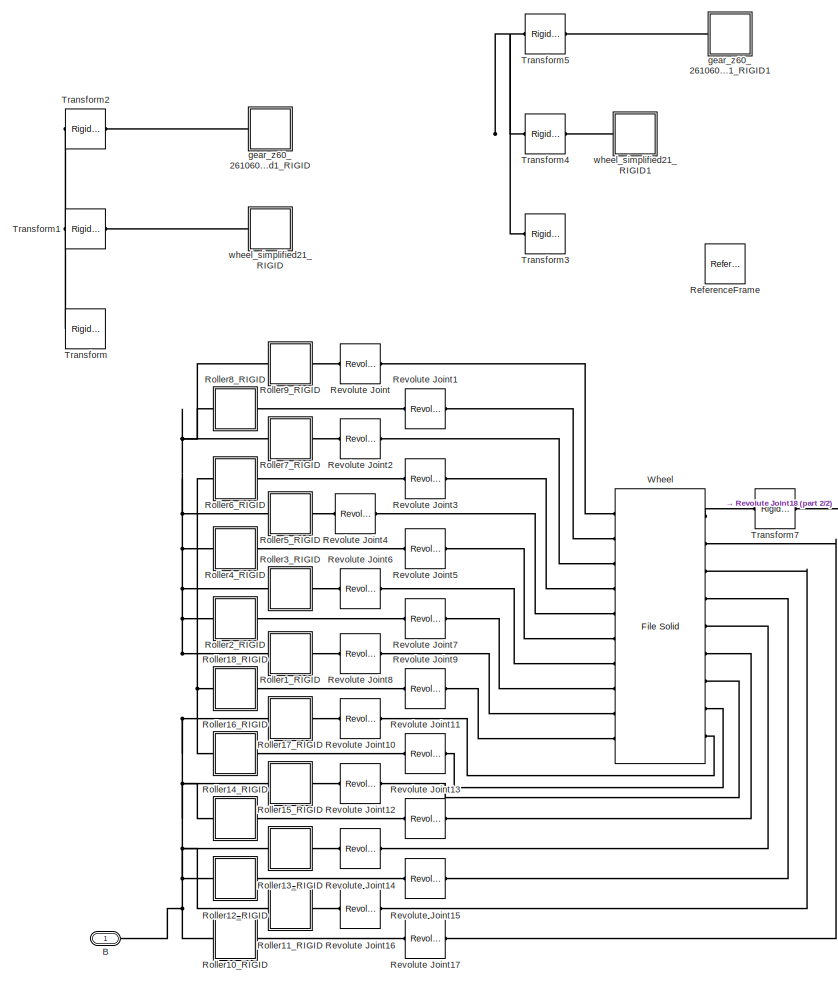
[diagram: ssl-robot/RoboCinWheel_simplified3_RIGID - part 1/2, left side, full height]
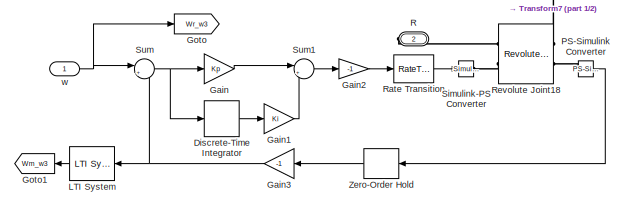
[diagram: ssl-robot/RoboCinWheel_simplified3_RIGID - part 2/2, middle right region]
BLOCK [SubSystem] ssl-robot/RoboCinWheel_simplified3_RIGID
  Ports = [1, 0, 0, 0, 0, 1, 1]
  RequestExecContextInheritance = off
BLOCK [PMIOPort] ssl-robot/RoboCinWheel_simplified3_RIGID/B
  Side = Left
BLOCK [DiscreteIntegrator] ssl-robot/RoboCinWheel_simplified3_RIGID/Discrete-Time Integrator
  ICPrevOutput = DiscIntNeverNeededParam
  ICPrevScaledInput = DiscIntNeverNeededParam
  InitialConditionSetting = Auto
  Ports = [1, 1]
  SampleTime = -1
BLOCK [Gain] ssl-robot/RoboCinWheel_simplified3_RIGID/Gain
  Gain = Kp
BLOCK [Gain] ssl-robot/RoboCinWheel_simplified3_RIGID/Gain1
  Gain = Ki
BLOCK [Gain] ssl-robot/RoboCinWheel_simplified3_RIGID/Gain2
  Gain = -1
BLOCK [Gain] ssl-robot/RoboCinWheel_simplified3_RIGID/Gain3
  Gain = -1
BLOCK [Goto] ssl-robot/RoboCinWheel_simplified3_RIGID/Goto
  GotoTag = Wr_w3
  TagVisibility = global
BLOCK [Goto] ssl-robot/RoboCinWheel_simplified3_RIGID/Goto1
  GotoTag = Wm_w3
  TagVisibility = global
BLOCK [Reference] ssl-robot/RoboCinWheel_simplified3_RIGID/LTI System  REF=cstblocks/LTI System
  Ports = [1, 1]
  SourceBlock = cstblocks/LTI System
  SourceProductBaseCode = CT
  SourceType = LTI Block
BLOCK [Reference] ssl-robot/RoboCinWheel_simplified3_RIGID/PS-Simulink Converter  REF=nesl_utility/PS-Simulink
Converter
  Ports = [0, 1, 0, 0, 0, 1]
  SourceBlock = nesl_utility/PS-Simulink\nConverter
  SourceProductBaseCode = PW,SS
  SourceType = PS-Simulink\nConverter
BLOCK [PMIOPort] ssl-robot/RoboCinWheel_simplified3_RIGID/R
  NameLocation = top
  Port = 2
  Side = Right
BLOCK [RateTransition] ssl-robot/RoboCinWheel_simplified3_RIGID/Rate Transition
BLOCK [Reference] ssl-robot/RoboCinWheel_simplified3_RIGID/ReferenceFrame  REF=sm_lib/Frames and
Transforms/Reference
Frame
  Commented = on
  Ports = [0, 0, 0, 0, 0, 0, 1]
  SourceBlock = sm_lib/Frames and\nTransforms/Reference\nFrame
  SourceProductBaseCode = MS
  SourceType = Reference\nFrame
BLOCK [Reference] ssl-robot/RoboCinWheel_simplified3_RIGID/Revolute Joint  REF=sm_lib/Joints/Revolute Joint
  Ports = [0, 0, 0, 0, 0, 1, 1]
  SourceBlock = sm_lib/Joints/Revolute Joint
  SourceProductBaseCode = MS
  SourceType = Revolute Joint
BLOCK [Reference] ssl-robot/RoboCinWheel_simplified3_RIGID/Revolute Joint1  REF=sm_lib/Joints/Revolute Joint
  Ports = [0, 0, 0, 0, 0, 1, 1]
  SourceBlock = sm_lib/Joints/Revolute Joint
  SourceProductBaseCode = MS
  SourceType = Revolute Joint
BLOCK [Reference] ssl-robot/RoboCinWheel_simplified3_RIGID/Revolute Joint10  REF=sm_lib/Joints/Revolute Joint
  Ports = [0, 0, 0, 0, 0, 1, 1]
  SourceBlock = sm_lib/Joints/Revolute Joint
  SourceProductBaseCode = MS
  SourceType = Revolute Joint
BLOCK [Reference] ssl-robot/RoboCinWheel_simplified3_RIGID/Revolute Joint11  REF=sm_lib/Joints/Revolute Joint
  Ports = [0, 0, 0, 0, 0, 1, 1]
  SourceBlock = sm_lib/Joints/Revolute Joint
  SourceProductBaseCode = MS
  SourceType = Revolute Joint
BLOCK [Reference] ssl-robot/RoboCinWheel_simplified3_RIGID/Revolute Joint12  REF=sm_lib/Joints/Revolute Joint
  Ports = [0, 0, 0, 0, 0, 1, 1]
  SourceBlock = sm_lib/Joints/Revolute Joint
  SourceProductBaseCode = MS
  SourceType = Revolute Joint
BLOCK [Reference] ssl-robot/RoboCinWheel_simplified3_RIGID/Revolute Joint13  REF=sm_lib/Joints/Revolute Joint
  Ports = [0, 0, 0, 0, 0, 1, 1]
  SourceBlock = sm_lib/Joints/Revolute Joint
  SourceProductBaseCode = MS
  SourceType = Revolute Joint
BLOCK [Reference] ssl-robot/RoboCinWheel_simplified3_RIGID/Revolute Joint14  REF=sm_lib/Joints/Revolute Joint
  Ports = [0, 0, 0, 0, 0, 1, 1]
  SourceBlock = sm_lib/Joints/Revolute Joint
  SourceProductBaseCode = MS
  SourceType = Revolute Joint
BLOCK [Reference] ssl-robot/RoboCinWheel_simplified3_RIGID/Revolute Joint15  REF=sm_lib/Joints/Revolute Joint
  Ports = [0, 0, 0, 0, 0, 1, 1]
  SourceBlock = sm_lib/Joints/Revolute Joint
  SourceProductBaseCode = MS
  SourceType = Revolute Joint
BLOCK [Reference] ssl-robot/RoboCinWheel_simplified3_RIGID/Revolute Joint16  REF=sm_lib/Joints/Revolute Joint
  Ports = [0, 0, 0, 0, 0, 1, 1]
  SourceBlock = sm_lib/Joints/Revolute Joint
  SourceProductBaseCode = MS
  SourceType = Revolute Joint
BLOCK [Reference] ssl-robot/RoboCinWheel_simplified3_RIGID/Revolute Joint17  REF=sm_lib/Joints/Revolute Joint
  Ports = [0, 0, 0, 0, 0, 1, 1]
  SourceBlock = sm_lib/Joints/Revolute Joint
  SourceProductBaseCode = MS
  SourceType = Revolute Joint
BLOCK [Reference] ssl-robot/RoboCinWheel_simplified3_RIGID/Revolute Joint18  REF=sm_lib/Joints/Revolute Joint
  Ports = [0, 0, 0, 0, 0, 2, 2]
  SourceBlock = sm_lib/Joints/Revolute Joint
  SourceProductBaseCode = MS
  SourceType = Revolute Joint
BLOCK [Reference] ssl-robot/RoboCinWheel_simplified3_RIGID/Revolute Joint2  REF=sm_lib/Joints/Revolute Joint
  Ports = [0, 0, 0, 0, 0, 1, 1]
  SourceBlock = sm_lib/Joints/Revolute Joint
  SourceProductBaseCode = MS
  SourceType = Revolute Joint
BLOCK [Reference] ssl-robot/RoboCinWheel_simplified3_RIGID/Revolute Joint3  REF=sm_lib/Joints/Revolute Joint
  Ports = [0, 0, 0, 0, 0, 1, 1]
  SourceBlock = sm_lib/Joints/Revolute Joint
  SourceProductBaseCode = MS
  SourceType = Revolute Joint
BLOCK [Reference] ssl-robot/RoboCinWheel_simplified3_RIGID/Revolute Joint4  REF=sm_lib/Joints/Revolute Joint
  Ports = [0, 0, 0, 0, 0, 1, 1]
  SourceBlock = sm_lib/Joints/Revolute Joint
  SourceProductBaseCode = MS
  SourceType = Revolute Joint
BLOCK [Reference] ssl-robot/RoboCinWheel_simplified3_RIGID/Revolute Joint5  REF=sm_lib/Joints/Revolute Joint
  Ports = [0, 0, 0, 0, 0, 1, 1]
  SourceBlock = sm_lib/Joints/Revolute Joint
  SourceProductBaseCode = MS
  SourceType = Revolute Joint
BLOCK [Reference] ssl-robot/RoboCinWheel_simplified3_RIGID/Revolute Joint6  REF=sm_lib/Joints/Revolute Joint
  Ports = [0, 0, 0, 0, 0, 1, 1]
  SourceBlock = sm_lib/Joints/Revolute Joint
  SourceProductBaseCode = MS
  SourceType = Revolute Joint
BLOCK [Reference] ssl-robot/RoboCinWheel_simplified3_RIGID/Revolute Joint7  REF=sm_lib/Joints/Revolute Joint
  Ports = [0, 0, 0, 0, 0, 1, 1]
  SourceBlock = sm_lib/Joints/Revolute Joint
  SourceProductBaseCode = MS
  SourceType = Revolute Joint
BLOCK [Reference] ssl-robot/RoboCinWheel_simplified3_RIGID/Revolute Joint8  REF=sm_lib/Joints/Revolute Joint
  Ports = [0, 0, 0, 0, 0, 1, 1]
  SourceBlock = sm_lib/Joints/Revolute Joint
  SourceProductBaseCode = MS
  SourceType = Revolute Joint
BLOCK [Reference] ssl-robot/RoboCinWheel_simplified3_RIGID/Revolute Joint9  REF=sm_lib/Joints/Revolute Joint
  Ports = [0, 0, 0, 0, 0, 1, 1]
  SourceBlock = sm_lib/Joints/Revolute Joint
  SourceProductBaseCode = MS
  SourceType = Revolute Joint
BLOCK [SubSystem] ssl-robot/RoboCinWheel_simplified3_RIGID/Roller10_RIGID
  Ports = [0, 0, 0, 0, 0, 1, 1]
  RequestExecContextInheritance = off
BLOCK [PMIOPort] ssl-robot/RoboCinWheel_simplified3_RIGID/Roller10_RIGID/B
  Port = 2
  Side = Left
BLOCK [PMIOPort] ssl-robot/RoboCinWheel_simplified3_RIGID/Roller10_RIGID/F
  Side = Right
BLOCK [Reference] ssl-robot/RoboCinWheel_simplified3_RIGID/Roller10_RIGID/ReferenceFrame  REF=sm_lib/Frames and
Transforms/Reference
Frame
  Ports = [0, 0, 0, 0, 0, 0, 1]
  SourceBlock = sm_lib/Frames and\nTransforms/Reference\nFrame
  SourceProductBaseCode = MS
  SourceType = Reference\nFrame
BLOCK [SubSystem] ssl-robot/RoboCinWheel_simplified3_RIGID/Roller10_RIGID/Roller1_RIGID
  Ports = [0, 0, 0, 0, 0, 1]
  RequestExecContextInheritance = off
BLOCK [PMIOPort] ssl-robot/RoboCinWheel_simplified3_RIGID/Roller10_RIGID/Roller1_RIGID/F
  Side = Left
BLOCK [Reference] ssl-robot/RoboCinWheel_simplified3_RIGID/Roller10_RIGID/Roller1_RIGID/ReferenceFrame  REF=sm_lib/Frames and
Transforms/Reference
Frame
  Ports = [0, 0, 0, 0, 0, 0, 1]
  SourceBlock = sm_lib/Frames and\nTransforms/Reference\nFrame
  SourceProductBaseCode = MS
  SourceType = Reference\nFrame
BLOCK [Reference] ssl-robot/RoboCinWheel_simplified3_RIGID/Roller10_RIGID/Roller1_RIGID/Solid  REF=sm_lib/Body Elements/File Solid
  Ports = [0, 0, 0, 0, 0, 0, 1]
  SourceBlock = sm_lib/Body Elements/File Solid
  SourceProductBaseCode = MS
  SourceType = File Solid
BLOCK [SubSystem] ssl-robot/RoboCinWheel_simplified3_RIGID/Roller10_RIGID/RollerTire1_RIGID
  Ports = [0, 0, 0, 0, 0, 2]
  RequestExecContextInheritance = off
BLOCK [PMIOPort] ssl-robot/RoboCinWheel_simplified3_RIGID/Roller10_RIGID/RollerTire1_RIGID/B
  Port = 2
  Side = Left
BLOCK [PMIOPort] ssl-robot/RoboCinWheel_simplified3_RIGID/Roller10_RIGID/RollerTire1_RIGID/F
  Side = Left
BLOCK [Reference] ssl-robot/RoboCinWheel_simplified3_RIGID/Roller10_RIGID/RollerTire1_RIGID/ReferenceFrame  REF=sm_lib/Frames and
Transforms/Reference
Frame
  Ports = [0, 0, 0, 0, 0, 0, 1]
  SourceBlock = sm_lib/Frames and\nTransforms/Reference\nFrame
  SourceProductBaseCode = MS
  SourceType = Reference\nFrame
BLOCK [Reference] ssl-robot/RoboCinWheel_simplified3_RIGID/Roller10_RIGID/RollerTire1_RIGID/Solid  REF=sm_lib/Body Elements/File Solid
  Ports = [0, 0, 0, 0, 0, 1, 1]
  SourceBlock = sm_lib/Body Elements/File Solid
  SourceProductBaseCode = MS
  SourceType = File Solid
BLOCK [Reference] ssl-robot/RoboCinWheel_simplified3_RIGID/Roller10_RIGID/RollerTire1_RIGID/Spatial Contact Force  REF=sm_lib/Forces and
Torques/Spatial
Contact Force
  Ports = [0, 0, 0, 0, 0, 1, 1]
  SourceBlock = sm_lib/Forces and\nTorques/Spatial\nContact Force
  SourceProductBaseCode = MS
  SourceType = Spatial\nContact Force
BLOCK [Reference] ssl-robot/RoboCinWheel_simplified3_RIGID/Roller10_RIGID/Transform  REF=sm_lib/Frames and
Transforms/Rigid
Transform
  Ports = [0, 0, 0, 0, 0, 1, 1]
  SourceBlock = sm_lib/Frames and\nTransforms/Rigid\nTransform
  SourceProductBaseCode = MS
  SourceType = Rigid\nTransform
BLOCK [Reference] ssl-robot/RoboCinWheel_simplified3_RIGID/Roller10_RIGID/Transform1  REF=sm_lib/Frames and
Transforms/Rigid
Transform
  Ports = [0, 0, 0, 0, 0, 1, 1]
  SourceBlock = sm_lib/Frames and\nTransforms/Rigid\nTransform
  SourceProductBaseCode = MS
  SourceType = Rigid\nTransform
BLOCK [Reference] ssl-robot/RoboCinWheel_simplified3_RIGID/Roller10_RIGID/Transform2  REF=sm_lib/Frames and
Transforms/Rigid
Transform
  Ports = [0, 0, 0, 0, 0, 1, 1]
  SourceBlock = sm_lib/Frames and\nTransforms/Rigid\nTransform
  SourceProductBaseCode = MS
  SourceType = Rigid\nTransform
BLOCK [SubSystem] ssl-robot/RoboCinWheel_simplified3_RIGID/Roller11_RIGID
  Ports = [0, 0, 0, 0, 0, 1, 1]
  RequestExecContextInheritance = off
BLOCK [PMIOPort] ssl-robot/RoboCinWheel_simplified3_RIGID/Roller11_RIGID/B
  Port = 2
  Side = Left
BLOCK [PMIOPort] ssl-robot/RoboCinWheel_simplified3_RIGID/Roller11_RIGID/F
  Side = Right
BLOCK [Reference] ssl-robot/RoboCinWheel_simplified3_RIGID/Roller11_RIGID/ReferenceFrame  REF=sm_lib/Frames and
Transforms/Reference
Frame
  Ports = [0, 0, 0, 0, 0, 0, 1]
  SourceBlock = sm_lib/Frames and\nTransforms/Reference\nFrame
  SourceProductBaseCode = MS
  SourceType = Reference\nFrame
BLOCK [SubSystem] ssl-robot/RoboCinWheel_simplified3_RIGID/Roller11_RIGID/Roller1_RIGID
  Ports = [0, 0, 0, 0, 0, 1]
  RequestExecContextInheritance = off
BLOCK [PMIOPort] ssl-robot/RoboCinWheel_simplified3_RIGID/Roller11_RIGID/Roller1_RIGID/F
  Side = Left
BLOCK [Reference] ssl-robot/RoboCinWheel_simplified3_RIGID/Roller11_RIGID/Roller1_RIGID/ReferenceFrame  REF=sm_lib/Frames and
Transforms/Reference
Frame
  Ports = [0, 0, 0, 0, 0, 0, 1]
  SourceBlock = sm_lib/Frames and\nTransforms/Reference\nFrame
  SourceProductBaseCode = MS
  SourceType = Reference\nFrame
BLOCK [Reference] ssl-robot/RoboCinWheel_simplified3_RIGID/Roller11_RIGID/Roller1_RIGID/Solid  REF=sm_lib/Body Elements/File Solid
  Ports = [0, 0, 0, 0, 0, 0, 1]
  SourceBlock = sm_lib/Body Elements/File Solid
  SourceProductBaseCode = MS
  SourceType = File Solid
BLOCK [SubSystem] ssl-robot/RoboCinWheel_simplified3_RIGID/Roller11_RIGID/RollerTire1_RIGID
  Ports = [0, 0, 0, 0, 0, 2]
  RequestExecContextInheritance = off
BLOCK [PMIOPort] ssl-robot/RoboCinWheel_simplified3_RIGID/Roller11_RIGID/RollerTire1_RIGID/B
  Port = 2
  Side = Left
BLOCK [PMIOPort] ssl-robot/RoboCinWheel_simplified3_RIGID/Roller11_RIGID/RollerTire1_RIGID/F
  Side = Left
BLOCK [Reference] ssl-robot/RoboCinWheel_simplified3_RIGID/Roller11_RIGID/RollerTire1_RIGID/ReferenceFrame  REF=sm_lib/Frames and
Transforms/Reference
Frame
  Ports = [0, 0, 0, 0, 0, 0, 1]
  SourceBlock = sm_lib/Frames and\nTransforms/Reference\nFrame
  SourceProductBaseCode = MS
  SourceType = Reference\nFrame
BLOCK [Reference] ssl-robot/RoboCinWheel_simplified3_RIGID/Roller11_RIGID/RollerTire1_RIGID/Solid  REF=sm_lib/Body Elements/File Solid
  Ports = [0, 0, 0, 0, 0, 1, 1]
  SourceBlock = sm_lib/Body Elements/File Solid
  SourceProductBaseCode = MS
  SourceType = File Solid
BLOCK [Reference] ssl-robot/RoboCinWheel_simplified3_RIGID/Roller11_RIGID/RollerTire1_RIGID/Spatial Contact Force  REF=sm_lib/Forces and
Torques/Spatial
Contact Force
  Ports = [0, 0, 0, 0, 0, 1, 1]
  SourceBlock = sm_lib/Forces and\nTorques/Spatial\nContact Force
  SourceProductBaseCode = MS
  SourceType = Spatial\nContact Force
BLOCK [Reference] ssl-robot/RoboCinWheel_simplified3_RIGID/Roller11_RIGID/Transform  REF=sm_lib/Frames and
Transforms/Rigid
Transform
  Ports = [0, 0, 0, 0, 0, 1, 1]
  SourceBlock = sm_lib/Frames and\nTransforms/Rigid\nTransform
  SourceProductBaseCode = MS
  SourceType = Rigid\nTransform
BLOCK [Reference] ssl-robot/RoboCinWheel_simplified3_RIGID/Roller11_RIGID/Transform1  REF=sm_lib/Frames and
Transforms/Rigid
Transform
  Ports = [0, 0, 0, 0, 0, 1, 1]
  SourceBlock = sm_lib/Frames and\nTransforms/Rigid\nTransform
  SourceProductBaseCode = MS
  SourceType = Rigid\nTransform
BLOCK [Reference] ssl-robot/RoboCinWheel_simplified3_RIGID/Roller11_RIGID/Transform2  REF=sm_lib/Frames and
Transforms/Rigid
Transform
  Ports = [0, 0, 0, 0, 0, 1, 1]
  SourceBlock = sm_lib/Frames and\nTransforms/Rigid\nTransform
  SourceProductBaseCode = MS
  SourceType = Rigid\nTransform
BLOCK [SubSystem] ssl-robot/RoboCinWheel_simplified3_RIGID/Roller12_RIGID
  Ports = [0, 0, 0, 0, 0, 1, 1]
  RequestExecContextInheritance = off
BLOCK [PMIOPort] ssl-robot/RoboCinWheel_simplified3_RIGID/Roller12_RIGID/B
  Port = 2
  Side = Left
BLOCK [PMIOPort] ssl-robot/RoboCinWheel_simplified3_RIGID/Roller12_RIGID/F
  Side = Right
BLOCK [Reference] ssl-robot/RoboCinWheel_simplified3_RIGID/Roller12_RIGID/ReferenceFrame  REF=sm_lib/Frames and
Transforms/Reference
Frame
  Ports = [0, 0, 0, 0, 0, 0, 1]
  SourceBlock = sm_lib/Frames and\nTransforms/Reference\nFrame
  SourceProductBaseCode = MS
  SourceType = Reference\nFrame
BLOCK [SubSystem] ssl-robot/RoboCinWheel_simplified3_RIGID/Roller12_RIGID/Roller1_RIGID
  Ports = [0, 0, 0, 0, 0, 1]
  RequestExecContextInheritance = off
BLOCK [PMIOPort] ssl-robot/RoboCinWheel_simplified3_RIGID/Roller12_RIGID/Roller1_RIGID/F
  Side = Left
BLOCK [Reference] ssl-robot/RoboCinWheel_simplified3_RIGID/Roller12_RIGID/Roller1_RIGID/ReferenceFrame  REF=sm_lib/Frames and
Transforms/Reference
Frame
  Ports = [0, 0, 0, 0, 0, 0, 1]
  SourceBlock = sm_lib/Frames and\nTransforms/Reference\nFrame
  SourceProductBaseCode = MS
  SourceType = Reference\nFrame
BLOCK [Reference] ssl-robot/RoboCinWheel_simplified3_RIGID/Roller12_RIGID/Roller1_RIGID/Solid  REF=sm_lib/Body Elements/File Solid
  Ports = [0, 0, 0, 0, 0, 0, 1]
  SourceBlock = sm_lib/Body Elements/File Solid
  SourceProductBaseCode = MS
  SourceType = File Solid
BLOCK [SubSystem] ssl-robot/RoboCinWheel_simplified3_RIGID/Roller12_RIGID/RollerTire1_RIGID
  Ports = [0, 0, 0, 0, 0, 2]
  RequestExecContextInheritance = off
BLOCK [PMIOPort] ssl-robot/RoboCinWheel_simplified3_RIGID/Roller12_RIGID/RollerTire1_RIGID/B
  Port = 2
  Side = Left
BLOCK [PMIOPort] ssl-robot/RoboCinWheel_simplified3_RIGID/Roller12_RIGID/RollerTire1_RIGID/F
  Side = Left
BLOCK [Reference] ssl-robot/RoboCinWheel_simplified3_RIGID/Roller12_RIGID/RollerTire1_RIGID/ReferenceFrame  REF=sm_lib/Frames and
Transforms/Reference
Frame
  Ports = [0, 0, 0, 0, 0, 0, 1]
  SourceBlock = sm_lib/Frames and\nTransforms/Reference\nFrame
  SourceProductBaseCode = MS
  SourceType = Reference\nFrame
BLOCK [Reference] ssl-robot/RoboCinWheel_simplified3_RIGID/Roller12_RIGID/RollerTire1_RIGID/Solid  REF=sm_lib/Body Elements/File Solid
  Ports = [0, 0, 0, 0, 0, 1, 1]
  SourceBlock = sm_lib/Body Elements/File Solid
  SourceProductBaseCode = MS
  SourceType = File Solid
BLOCK [Reference] ssl-robot/RoboCinWheel_simplified3_RIGID/Roller12_RIGID/RollerTire1_RIGID/Spatial Contact Force  REF=sm_lib/Forces and
Torques/Spatial
Contact Force
  Ports = [0, 0, 0, 0, 0, 1, 1]
  SourceBlock = sm_lib/Forces and\nTorques/Spatial\nContact Force
  SourceProductBaseCode = MS
  SourceType = Spatial\nContact Force
BLOCK [Reference] ssl-robot/RoboCinWheel_simplified3_RIGID/Roller12_RIGID/Transform  REF=sm_lib/Frames and
Transforms/Rigid
Transform
  Ports = [0, 0, 0, 0, 0, 1, 1]
  SourceBlock = sm_lib/Frames and\nTransforms/Rigid\nTransform
  SourceProductBaseCode = MS
  SourceType = Rigid\nTransform
BLOCK [Reference] ssl-robot/RoboCinWheel_simplified3_RIGID/Roller12_RIGID/Transform1  REF=sm_lib/Frames and
Transforms/Rigid
Transform
  Ports = [0, 0, 0, 0, 0, 1, 1]
  SourceBlock = sm_lib/Frames and\nTransforms/Rigid\nTransform
  SourceProductBaseCode = MS
  SourceType = Rigid\nTransform
BLOCK [Reference] ssl-robot/RoboCinWheel_simplified3_RIGID/Roller12_RIGID/Transform2  REF=sm_lib/Frames and
Transforms/Rigid
Transform
  Ports = [0, 0, 0, 0, 0, 1, 1]
  SourceBlock = sm_lib/Frames and\nTransforms/Rigid\nTransform
  SourceProductBaseCode = MS
  SourceType = Rigid\nTransform
BLOCK [SubSystem] ssl-robot/RoboCinWheel_simplified3_RIGID/Roller13_RIGID
  Ports = [0, 0, 0, 0, 0, 1, 1]
  RequestExecContextInheritance = off
BLOCK [PMIOPort] ssl-robot/RoboCinWheel_simplified3_RIGID/Roller13_RIGID/B
  Port = 2
  Side = Left
BLOCK [PMIOPort] ssl-robot/RoboCinWheel_simplified3_RIGID/Roller13_RIGID/F
  Side = Right
BLOCK [Reference] ssl-robot/RoboCinWheel_simplified3_RIGID/Roller13_RIGID/ReferenceFrame  REF=sm_lib/Frames and
Transforms/Reference
Frame
  Ports = [0, 0, 0, 0, 0, 0, 1]
  SourceBlock = sm_lib/Frames and\nTransforms/Reference\nFrame
  SourceProductBaseCode = MS
  SourceType = Reference\nFrame
BLOCK [SubSystem] ssl-robot/RoboCinWheel_simplified3_RIGID/Roller13_RIGID/Roller1_RIGID
  Ports = [0, 0, 0, 0, 0, 1]
  RequestExecContextInheritance = off
BLOCK [PMIOPort] ssl-robot/RoboCinWheel_simplified3_RIGID/Roller13_RIGID/Roller1_RIGID/F
  Side = Left
BLOCK [Reference] ssl-robot/RoboCinWheel_simplified3_RIGID/Roller13_RIGID/Roller1_RIGID/ReferenceFrame  REF=sm_lib/Frames and
Transforms/Reference
Frame
  Ports = [0, 0, 0, 0, 0, 0, 1]
  SourceBlock = sm_lib/Frames and\nTransforms/Reference\nFrame
  SourceProductBaseCode = MS
  SourceType = Reference\nFrame
BLOCK [Reference] ssl-robot/RoboCinWheel_simplified3_RIGID/Roller13_RIGID/Roller1_RIGID/Solid  REF=sm_lib/Body Elements/File Solid
  Ports = [0, 0, 0, 0, 0, 0, 1]
  SourceBlock = sm_lib/Body Elements/File Solid
  SourceProductBaseCode = MS
  SourceType = File Solid
BLOCK [SubSystem] ssl-robot/RoboCinWheel_simplified3_RIGID/Roller13_RIGID/RollerTire1_RIGID
  Ports = [0, 0, 0, 0, 0, 2]
  RequestExecContextInheritance = off
BLOCK [PMIOPort] ssl-robot/RoboCinWheel_simplified3_RIGID/Roller13_RIGID/RollerTire1_RIGID/B
  Port = 2
  Side = Left
BLOCK [PMIOPort] ssl-robot/RoboCinWheel_simplified3_RIGID/Roller13_RIGID/RollerTire1_RIGID/F
  Side = Left
BLOCK [Reference] ssl-robot/RoboCinWheel_simplified3_RIGID/Roller13_RIGID/RollerTire1_RIGID/ReferenceFrame  REF=sm_lib/Frames and
Transforms/Reference
Frame
  Ports = [0, 0, 0, 0, 0, 0, 1]
  SourceBlock = sm_lib/Frames and\nTransforms/Reference\nFrame
  SourceProductBaseCode = MS
  SourceType = Reference\nFrame
BLOCK [Reference] ssl-robot/RoboCinWheel_simplified3_RIGID/Roller13_RIGID/RollerTire1_RIGID/Solid  REF=sm_lib/Body Elements/File Solid
  Ports = [0, 0, 0, 0, 0, 1, 1]
  SourceBlock = sm_lib/Body Elements/File Solid
  SourceProductBaseCode = MS
  SourceType = File Solid
BLOCK [Reference] ssl-robot/RoboCinWheel_simplified3_RIGID/Roller13_RIGID/RollerTire1_RIGID/Spatial Contact Force  REF=sm_lib/Forces and
Torques/Spatial
Contact Force
  Ports = [0, 0, 0, 0, 0, 1, 1]
  SourceBlock = sm_lib/Forces and\nTorques/Spatial\nContact Force
  SourceProductBaseCode = MS
  SourceType = Spatial\nContact Force
BLOCK [Reference] ssl-robot/RoboCinWheel_simplified3_RIGID/Roller13_RIGID/Transform  REF=sm_lib/Frames and
Transforms/Rigid
Transform
  Ports = [0, 0, 0, 0, 0, 1, 1]
  SourceBlock = sm_lib/Frames and\nTransforms/Rigid\nTransform
  SourceProductBaseCode = MS
  SourceType = Rigid\nTransform
BLOCK [Reference] ssl-robot/RoboCinWheel_simplified3_RIGID/Roller13_RIGID/Transform1  REF=sm_lib/Frames and
Transforms/Rigid
Transform
  Ports = [0, 0, 0, 0, 0, 1, 1]
  SourceBlock = sm_lib/Frames and\nTransforms/Rigid\nTransform
  SourceProductBaseCode = MS
  SourceType = Rigid\nTransform
BLOCK [Reference] ssl-robot/RoboCinWheel_simplified3_RIGID/Roller13_RIGID/Transform2  REF=sm_lib/Frames and
Transforms/Rigid
Transform
  Ports = [0, 0, 0, 0, 0, 1, 1]
  SourceBlock = sm_lib/Frames and\nTransforms/Rigid\nTransform
  SourceProductBaseCode = MS
  SourceType = Rigid\nTransform
BLOCK [SubSystem] ssl-robot/RoboCinWheel_simplified3_RIGID/Roller14_RIGID
  Ports = [0, 0, 0, 0, 0, 1, 1]
  RequestExecContextInheritance = off
BLOCK [PMIOPort] ssl-robot/RoboCinWheel_simplified3_RIGID/Roller14_RIGID/B
  Port = 2
  Side = Left
BLOCK [PMIOPort] ssl-robot/RoboCinWheel_simplified3_RIGID/Roller14_RIGID/F
  Side = Right
BLOCK [Reference] ssl-robot/RoboCinWheel_simplified3_RIGID/Roller14_RIGID/ReferenceFrame  REF=sm_lib/Frames and
Transforms/Reference
Frame
  Ports = [0, 0, 0, 0, 0, 0, 1]
  SourceBlock = sm_lib/Frames and\nTransforms/Reference\nFrame
  SourceProductBaseCode = MS
  SourceType = Reference\nFrame
BLOCK [SubSystem] ssl-robot/RoboCinWheel_simplified3_RIGID/Roller14_RIGID/Roller1_RIGID
  Ports = [0, 0, 0, 0, 0, 1]
  RequestExecContextInheritance = off
BLOCK [PMIOPort] ssl-robot/RoboCinWheel_simplified3_RIGID/Roller14_RIGID/Roller1_RIGID/F
  Side = Left
BLOCK [Reference] ssl-robot/RoboCinWheel_simplified3_RIGID/Roller14_RIGID/Roller1_RIGID/ReferenceFrame  REF=sm_lib/Frames and
Transforms/Reference
Frame
  Ports = [0, 0, 0, 0, 0, 0, 1]
  SourceBlock = sm_lib/Frames and\nTransforms/Reference\nFrame
  SourceProductBaseCode = MS
  SourceType = Reference\nFrame
BLOCK [Reference] ssl-robot/RoboCinWheel_simplified3_RIGID/Roller14_RIGID/Roller1_RIGID/Solid  REF=sm_lib/Body Elements/File Solid
  Ports = [0, 0, 0, 0, 0, 0, 1]
  SourceBlock = sm_lib/Body Elements/File Solid
  SourceProductBaseCode = MS
  SourceType = File Solid
BLOCK [SubSystem] ssl-robot/RoboCinWheel_simplified3_RIGID/Roller14_RIGID/RollerTire1_RIGID
  Ports = [0, 0, 0, 0, 0, 2]
  RequestExecContextInheritance = off
BLOCK [PMIOPort] ssl-robot/RoboCinWheel_simplified3_RIGID/Roller14_RIGID/RollerTire1_RIGID/B
  Port = 2
  Side = Left
BLOCK [PMIOPort] ssl-robot/RoboCinWheel_simplified3_RIGID/Roller14_RIGID/RollerTire1_RIGID/F
  Side = Left
BLOCK [Reference] ssl-robot/RoboCinWheel_simplified3_RIGID/Roller14_RIGID/RollerTire1_RIGID/ReferenceFrame  REF=sm_lib/Frames and
Transforms/Reference
Frame
  Ports = [0, 0, 0, 0, 0, 0, 1]
  SourceBlock = sm_lib/Frames and\nTransforms/Reference\nFrame
  SourceProductBaseCode = MS
  SourceType = Reference\nFrame
BLOCK [Reference] ssl-robot/RoboCinWheel_simplified3_RIGID/Roller14_RIGID/RollerTire1_RIGID/Solid  REF=sm_lib/Body Elements/File Solid
  Ports = [0, 0, 0, 0, 0, 1, 1]
  SourceBlock = sm_lib/Body Elements/File Solid
  SourceProductBaseCode = MS
  SourceType = File Solid
BLOCK [Reference] ssl-robot/RoboCinWheel_simplified3_RIGID/Roller14_RIGID/RollerTire1_RIGID/Spatial Contact Force  REF=sm_lib/Forces and
Torques/Spatial
Contact Force
  Ports = [0, 0, 0, 0, 0, 1, 1]
  SourceBlock = sm_lib/Forces and\nTorques/Spatial\nContact Force
  SourceProductBaseCode = MS
  SourceType = Spatial\nContact Force
BLOCK [Reference] ssl-robot/RoboCinWheel_simplified3_RIGID/Roller14_RIGID/Transform  REF=sm_lib/Frames and
Transforms/Rigid
Transform
  Ports = [0, 0, 0, 0, 0, 1, 1]
  SourceBlock = sm_lib/Frames and\nTransforms/Rigid\nTransform
  SourceProductBaseCode = MS
  SourceType = Rigid\nTransform
BLOCK [Reference] ssl-robot/RoboCinWheel_simplified3_RIGID/Roller14_RIGID/Transform1  REF=sm_lib/Frames and
Transforms/Rigid
Transform
  Ports = [0, 0, 0, 0, 0, 1, 1]
  SourceBlock = sm_lib/Frames and\nTransforms/Rigid\nTransform
  SourceProductBaseCode = MS
  SourceType = Rigid\nTransform
BLOCK [Reference] ssl-robot/RoboCinWheel_simplified3_RIGID/Roller14_RIGID/Transform2  REF=sm_lib/Frames and
Transforms/Rigid
Transform
  Ports = [0, 0, 0, 0, 0, 1, 1]
  SourceBlock = sm_lib/Frames and\nTransforms/Rigid\nTransform
  SourceProductBaseCode = MS
  SourceType = Rigid\nTransform
BLOCK [SubSystem] ssl-robot/RoboCinWheel_simplified3_RIGID/Roller15_RIGID
  Ports = [0, 0, 0, 0, 0, 1, 1]
  RequestExecContextInheritance = off
BLOCK [PMIOPort] ssl-robot/RoboCinWheel_simplified3_RIGID/Roller15_RIGID/B
  Port = 2
  Side = Left
BLOCK [PMIOPort] ssl-robot/RoboCinWheel_simplified3_RIGID/Roller15_RIGID/F
  Side = Right
BLOCK [Reference] ssl-robot/RoboCinWheel_simplified3_RIGID/Roller15_RIGID/ReferenceFrame  REF=sm_lib/Frames and
Transforms/Reference
Frame
  Ports = [0, 0, 0, 0, 0, 0, 1]
  SourceBlock = sm_lib/Frames and\nTransforms/Reference\nFrame
  SourceProductBaseCode = MS
  SourceType = Reference\nFrame
BLOCK [SubSystem] ssl-robot/RoboCinWheel_simplified3_RIGID/Roller15_RIGID/Roller1_RIGID
  Ports = [0, 0, 0, 0, 0, 1]
  RequestExecContextInheritance = off
BLOCK [PMIOPort] ssl-robot/RoboCinWheel_simplified3_RIGID/Roller15_RIGID/Roller1_RIGID/F
  Side = Left
BLOCK [Reference] ssl-robot/RoboCinWheel_simplified3_RIGID/Roller15_RIGID/Roller1_RIGID/ReferenceFrame  REF=sm_lib/Frames and
Transforms/Reference
Frame
  Ports = [0, 0, 0, 0, 0, 0, 1]
  SourceBlock = sm_lib/Frames and\nTransforms/Reference\nFrame
  SourceProductBaseCode = MS
  SourceType = Reference\nFrame
BLOCK [Reference] ssl-robot/RoboCinWheel_simplified3_RIGID/Roller15_RIGID/Roller1_RIGID/Solid  REF=sm_lib/Body Elements/File Solid
  Ports = [0, 0, 0, 0, 0, 0, 1]
  SourceBlock = sm_lib/Body Elements/File Solid
  SourceProductBaseCode = MS
  SourceType = File Solid
BLOCK [SubSystem] ssl-robot/RoboCinWheel_simplified3_RIGID/Roller15_RIGID/RollerTire1_RIGID
  Ports = [0, 0, 0, 0, 0, 2]
  RequestExecContextInheritance = off
BLOCK [PMIOPort] ssl-robot/RoboCinWheel_simplified3_RIGID/Roller15_RIGID/RollerTire1_RIGID/B
  Port = 2
  Side = Left
BLOCK [PMIOPort] ssl-robot/RoboCinWheel_simplified3_RIGID/Roller15_RIGID/RollerTire1_RIGID/F
  Side = Left
BLOCK [Reference] ssl-robot/RoboCinWheel_simplified3_RIGID/Roller15_RIGID/RollerTire1_RIGID/ReferenceFrame  REF=sm_lib/Frames and
Transforms/Reference
Frame
  Ports = [0, 0, 0, 0, 0, 0, 1]
  SourceBlock = sm_lib/Frames and\nTransforms/Reference\nFrame
  SourceProductBaseCode = MS
  SourceType = Reference\nFrame
BLOCK [Reference] ssl-robot/RoboCinWheel_simplified3_RIGID/Roller15_RIGID/RollerTire1_RIGID/Solid  REF=sm_lib/Body Elements/File Solid
  Ports = [0, 0, 0, 0, 0, 1, 1]
  SourceBlock = sm_lib/Body Elements/File Solid
  SourceProductBaseCode = MS
  SourceType = File Solid
BLOCK [Reference] ssl-robot/RoboCinWheel_simplified3_RIGID/Roller15_RIGID/RollerTire1_RIGID/Spatial Contact Force  REF=sm_lib/Forces and
Torques/Spatial
Contact Force
  Ports = [0, 0, 0, 0, 0, 1, 1]
  SourceBlock = sm_lib/Forces and\nTorques/Spatial\nContact Force
  SourceProductBaseCode = MS
  SourceType = Spatial\nContact Force
BLOCK [Reference] ssl-robot/RoboCinWheel_simplified3_RIGID/Roller15_RIGID/Transform  REF=sm_lib/Frames and
Transforms/Rigid
Transform
  Ports = [0, 0, 0, 0, 0, 1, 1]
  SourceBlock = sm_lib/Frames and\nTransforms/Rigid\nTransform
  SourceProductBaseCode = MS
  SourceType = Rigid\nTransform
BLOCK [Reference] ssl-robot/RoboCinWheel_simplified3_RIGID/Roller15_RIGID/Transform1  REF=sm_lib/Frames and
Transforms/Rigid
Transform
  Ports = [0, 0, 0, 0, 0, 1, 1]
  SourceBlock = sm_lib/Frames and\nTransforms/Rigid\nTransform
  SourceProductBaseCode = MS
  SourceType = Rigid\nTransform
BLOCK [Reference] ssl-robot/RoboCinWheel_simplified3_RIGID/Roller15_RIGID/Transform2  REF=sm_lib/Frames and
Transforms/Rigid
Transform
  Ports = [0, 0, 0, 0, 0, 1, 1]
  SourceBlock = sm_lib/Frames and\nTransforms/Rigid\nTransform
  SourceProductBaseCode = MS
  SourceType = Rigid\nTransform
BLOCK [SubSystem] ssl-robot/RoboCinWheel_simplified3_RIGID/Roller16_RIGID
  Ports = [0, 0, 0, 0, 0, 1, 1]
  RequestExecContextInheritance = off
BLOCK [PMIOPort] ssl-robot/RoboCinWheel_simplified3_RIGID/Roller16_RIGID/B
  Port = 2
  Side = Left
BLOCK [PMIOPort] ssl-robot/RoboCinWheel_simplified3_RIGID/Roller16_RIGID/F
  Side = Right
BLOCK [Reference] ssl-robot/RoboCinWheel_simplified3_RIGID/Roller16_RIGID/ReferenceFrame  REF=sm_lib/Frames and
Transforms/Reference
Frame
  Ports = [0, 0, 0, 0, 0, 0, 1]
  SourceBlock = sm_lib/Frames and\nTransforms/Reference\nFrame
  SourceProductBaseCode = MS
  SourceType = Reference\nFrame
BLOCK [SubSystem] ssl-robot/RoboCinWheel_simplified3_RIGID/Roller16_RIGID/Roller1_RIGID
  Ports = [0, 0, 0, 0, 0, 1]
  RequestExecContextInheritance = off
BLOCK [PMIOPort] ssl-robot/RoboCinWheel_simplified3_RIGID/Roller16_RIGID/Roller1_RIGID/F
  Side = Left
BLOCK [Reference] ssl-robot/RoboCinWheel_simplified3_RIGID/Roller16_RIGID/Roller1_RIGID/ReferenceFrame  REF=sm_lib/Frames and
Transforms/Reference
Frame
  Ports = [0, 0, 0, 0, 0, 0, 1]
  SourceBlock = sm_lib/Frames and\nTransforms/Reference\nFrame
  SourceProductBaseCode = MS
  SourceType = Reference\nFrame
BLOCK [Reference] ssl-robot/RoboCinWheel_simplified3_RIGID/Roller16_RIGID/Roller1_RIGID/Solid  REF=sm_lib/Body Elements/File Solid
  Ports = [0, 0, 0, 0, 0, 0, 1]
  SourceBlock = sm_lib/Body Elements/File Solid
  SourceProductBaseCode = MS
  SourceType = File Solid
BLOCK [SubSystem] ssl-robot/RoboCinWheel_simplified3_RIGID/Roller16_RIGID/RollerTire1_RIGID
  Ports = [0, 0, 0, 0, 0, 2]
  RequestExecContextInheritance = off
BLOCK [PMIOPort] ssl-robot/RoboCinWheel_simplified3_RIGID/Roller16_RIGID/RollerTire1_RIGID/B
  Port = 2
  Side = Left
BLOCK [PMIOPort] ssl-robot/RoboCinWheel_simplified3_RIGID/Roller16_RIGID/RollerTire1_RIGID/F
  Side = Left
BLOCK [Reference] ssl-robot/RoboCinWheel_simplified3_RIGID/Roller16_RIGID/RollerTire1_RIGID/ReferenceFrame  REF=sm_lib/Frames and
Transforms/Reference
Frame
  Ports = [0, 0, 0, 0, 0, 0, 1]
  SourceBlock = sm_lib/Frames and\nTransforms/Reference\nFrame
  SourceProductBaseCode = MS
  SourceType = Reference\nFrame
BLOCK [Reference] ssl-robot/RoboCinWheel_simplified3_RIGID/Roller16_RIGID/RollerTire1_RIGID/Solid  REF=sm_lib/Body Elements/File Solid
  Ports = [0, 0, 0, 0, 0, 1, 1]
  SourceBlock = sm_lib/Body Elements/File Solid
  SourceProductBaseCode = MS
  SourceType = File Solid
BLOCK [Reference] ssl-robot/RoboCinWheel_simplified3_RIGID/Roller16_RIGID/RollerTire1_RIGID/Spatial Contact Force  REF=sm_lib/Forces and
Torques/Spatial
Contact Force
  Ports = [0, 0, 0, 0, 0, 1, 1]
  SourceBlock = sm_lib/Forces and\nTorques/Spatial\nContact Force
  SourceProductBaseCode = MS
  SourceType = Spatial\nContact Force
BLOCK [Reference] ssl-robot/RoboCinWheel_simplified3_RIGID/Roller16_RIGID/Transform  REF=sm_lib/Frames and
Transforms/Rigid
Transform
  Ports = [0, 0, 0, 0, 0, 1, 1]
  SourceBlock = sm_lib/Frames and\nTransforms/Rigid\nTransform
  SourceProductBaseCode = MS
  SourceType = Rigid\nTransform
BLOCK [Reference] ssl-robot/RoboCinWheel_simplified3_RIGID/Roller16_RIGID/Transform1  REF=sm_lib/Frames and
Transforms/Rigid
Transform
  Ports = [0, 0, 0, 0, 0, 1, 1]
  SourceBlock = sm_lib/Frames and\nTransforms/Rigid\nTransform
  SourceProductBaseCode = MS
  SourceType = Rigid\nTransform
BLOCK [Reference] ssl-robot/RoboCinWheel_simplified3_RIGID/Roller16_RIGID/Transform2  REF=sm_lib/Frames and
Transforms/Rigid
Transform
  Ports = [0, 0, 0, 0, 0, 1, 1]
  SourceBlock = sm_lib/Frames and\nTransforms/Rigid\nTransform
  SourceProductBaseCode = MS
  SourceType = Rigid\nTransform
BLOCK [SubSystem] ssl-robot/RoboCinWheel_simplified3_RIGID/Roller17_RIGID
  Ports = [0, 0, 0, 0, 0, 1, 1]
  RequestExecContextInheritance = off
BLOCK [PMIOPort] ssl-robot/RoboCinWheel_simplified3_RIGID/Roller17_RIGID/B
  Port = 2
  Side = Left
BLOCK [PMIOPort] ssl-robot/RoboCinWheel_simplified3_RIGID/Roller17_RIGID/F
  Side = Right
BLOCK [Reference] ssl-robot/RoboCinWheel_simplified3_RIGID/Roller17_RIGID/ReferenceFrame  REF=sm_lib/Frames and
Transforms/Reference
Frame
  Ports = [0, 0, 0, 0, 0, 0, 1]
  SourceBlock = sm_lib/Frames and\nTransforms/Reference\nFrame
  SourceProductBaseCode = MS
  SourceType = Reference\nFrame
BLOCK [SubSystem] ssl-robot/RoboCinWheel_simplified3_RIGID/Roller17_RIGID/Roller1_RIGID
  Ports = [0, 0, 0, 0, 0, 1]
  RequestExecContextInheritance = off
BLOCK [PMIOPort] ssl-robot/RoboCinWheel_simplified3_RIGID/Roller17_RIGID/Roller1_RIGID/F
  Side = Left
BLOCK [Reference] ssl-robot/RoboCinWheel_simplified3_RIGID/Roller17_RIGID/Roller1_RIGID/ReferenceFrame  REF=sm_lib/Frames and
Transforms/Reference
Frame
  Ports = [0, 0, 0, 0, 0, 0, 1]
  SourceBlock = sm_lib/Frames and\nTransforms/Reference\nFrame
  SourceProductBaseCode = MS
  SourceType = Reference\nFrame
BLOCK [Reference] ssl-robot/RoboCinWheel_simplified3_RIGID/Roller17_RIGID/Roller1_RIGID/Solid  REF=sm_lib/Body Elements/File Solid
  Ports = [0, 0, 0, 0, 0, 0, 1]
  SourceBlock = sm_lib/Body Elements/File Solid
  SourceProductBaseCode = MS
  SourceType = File Solid
BLOCK [SubSystem] ssl-robot/RoboCinWheel_simplified3_RIGID/Roller17_RIGID/RollerTire1_RIGID
  Ports = [0, 0, 0, 0, 0, 2]
  RequestExecContextInheritance = off
BLOCK [PMIOPort] ssl-robot/RoboCinWheel_simplified3_RIGID/Roller17_RIGID/RollerTire1_RIGID/B
  Port = 2
  Side = Left
BLOCK [PMIOPort] ssl-robot/RoboCinWheel_simplified3_RIGID/Roller17_RIGID/RollerTire1_RIGID/F
  Side = Left
BLOCK [Reference] ssl-robot/RoboCinWheel_simplified3_RIGID/Roller17_RIGID/RollerTire1_RIGID/ReferenceFrame  REF=sm_lib/Frames and
Transforms/Reference
Frame
  Ports = [0, 0, 0, 0, 0, 0, 1]
  SourceBlock = sm_lib/Frames and\nTransforms/Reference\nFrame
  SourceProductBaseCode = MS
  SourceType = Reference\nFrame
BLOCK [Reference] ssl-robot/RoboCinWheel_simplified3_RIGID/Roller17_RIGID/RollerTire1_RIGID/Solid  REF=sm_lib/Body Elements/File Solid
  Ports = [0, 0, 0, 0, 0, 1, 1]
  SourceBlock = sm_lib/Body Elements/File Solid
  SourceProductBaseCode = MS
  SourceType = File Solid
BLOCK [Reference] ssl-robot/RoboCinWheel_simplified3_RIGID/Roller17_RIGID/RollerTire1_RIGID/Spatial Contact Force  REF=sm_lib/Forces and
Torques/Spatial
Contact Force
  Ports = [0, 0, 0, 0, 0, 1, 1]
  SourceBlock = sm_lib/Forces and\nTorques/Spatial\nContact Force
  SourceProductBaseCode = MS
  SourceType = Spatial\nContact Force
BLOCK [Reference] ssl-robot/RoboCinWheel_simplified3_RIGID/Roller17_RIGID/Transform  REF=sm_lib/Frames and
Transforms/Rigid
Transform
  Ports = [0, 0, 0, 0, 0, 1, 1]
  SourceBlock = sm_lib/Frames and\nTransforms/Rigid\nTransform
  SourceProductBaseCode = MS
  SourceType = Rigid\nTransform
BLOCK [Reference] ssl-robot/RoboCinWheel_simplified3_RIGID/Roller17_RIGID/Transform1  REF=sm_lib/Frames and
Transforms/Rigid
Transform
  Ports = [0, 0, 0, 0, 0, 1, 1]
  SourceBlock = sm_lib/Frames and\nTransforms/Rigid\nTransform
  SourceProductBaseCode = MS
  SourceType = Rigid\nTransform
BLOCK [Reference] ssl-robot/RoboCinWheel_simplified3_RIGID/Roller17_RIGID/Transform2  REF=sm_lib/Frames and
Transforms/Rigid
Transform
  Ports = [0, 0, 0, 0, 0, 1, 1]
  SourceBlock = sm_lib/Frames and\nTransforms/Rigid\nTransform
  SourceProductBaseCode = MS
  SourceType = Rigid\nTransform
BLOCK [SubSystem] ssl-robot/RoboCinWheel_simplified3_RIGID/Roller18_RIGID
  Ports = [0, 0, 0, 0, 0, 1, 1]
  RequestExecContextInheritance = off
BLOCK [PMIOPort] ssl-robot/RoboCinWheel_simplified3_RIGID/Roller18_RIGID/B
  Port = 2
  Side = Left
BLOCK [PMIOPort] ssl-robot/RoboCinWheel_simplified3_RIGID/Roller18_RIGID/F
  Side = Right
BLOCK [Reference] ssl-robot/RoboCinWheel_simplified3_RIGID/Roller18_RIGID/ReferenceFrame  REF=sm_lib/Frames and
Transforms/Reference
Frame
  Ports = [0, 0, 0, 0, 0, 0, 1]
  SourceBlock = sm_lib/Frames and\nTransforms/Reference\nFrame
  SourceProductBaseCode = MS
  SourceType = Reference\nFrame
BLOCK [SubSystem] ssl-robot/RoboCinWheel_simplified3_RIGID/Roller18_RIGID/Roller1_RIGID
  Ports = [0, 0, 0, 0, 0, 1]
  RequestExecContextInheritance = off
BLOCK [PMIOPort] ssl-robot/RoboCinWheel_simplified3_RIGID/Roller18_RIGID/Roller1_RIGID/F
  Side = Left
BLOCK [Reference] ssl-robot/RoboCinWheel_simplified3_RIGID/Roller18_RIGID/Roller1_RIGID/ReferenceFrame  REF=sm_lib/Frames and
Transforms/Reference
Frame
  Ports = [0, 0, 0, 0, 0, 0, 1]
  SourceBlock = sm_lib/Frames and\nTransforms/Reference\nFrame
  SourceProductBaseCode = MS
  SourceType = Reference\nFrame
BLOCK [Reference] ssl-robot/RoboCinWheel_simplified3_RIGID/Roller18_RIGID/Roller1_RIGID/Solid  REF=sm_lib/Body Elements/File Solid
  Ports = [0, 0, 0, 0, 0, 0, 1]
  SourceBlock = sm_lib/Body Elements/File Solid
  SourceProductBaseCode = MS
  SourceType = File Solid
BLOCK [SubSystem] ssl-robot/RoboCinWheel_simplified3_RIGID/Roller18_RIGID/RollerTire1_RIGID
  Ports = [0, 0, 0, 0, 0, 2]
  RequestExecContextInheritance = off
BLOCK [PMIOPort] ssl-robot/RoboCinWheel_simplified3_RIGID/Roller18_RIGID/RollerTire1_RIGID/B
  Port = 2
  Side = Left
BLOCK [PMIOPort] ssl-robot/RoboCinWheel_simplified3_RIGID/Roller18_RIGID/RollerTire1_RIGID/F
  Side = Left
BLOCK [Reference] ssl-robot/RoboCinWheel_simplified3_RIGID/Roller18_RIGID/RollerTire1_RIGID/ReferenceFrame  REF=sm_lib/Frames and
Transforms/Reference
Frame
  Ports = [0, 0, 0, 0, 0, 0, 1]
  SourceBlock = sm_lib/Frames and\nTransforms/Reference\nFrame
  SourceProductBaseCode = MS
  SourceType = Reference\nFrame
BLOCK [Reference] ssl-robot/RoboCinWheel_simplified3_RIGID/Roller18_RIGID/RollerTire1_RIGID/Solid  REF=sm_lib/Body Elements/File Solid
  Ports = [0, 0, 0, 0, 0, 1, 1]
  SourceBlock = sm_lib/Body Elements/File Solid
  SourceProductBaseCode = MS
  SourceType = File Solid
BLOCK [Reference] ssl-robot/RoboCinWheel_simplified3_RIGID/Roller18_RIGID/RollerTire1_RIGID/Spatial Contact Force  REF=sm_lib/Forces and
Torques/Spatial
Contact Force
  Ports = [0, 0, 0, 0, 0, 1, 1]
  SourceBlock = sm_lib/Forces and\nTorques/Spatial\nContact Force
  SourceProductBaseCode = MS
  SourceType = Spatial\nContact Force
BLOCK [Reference] ssl-robot/RoboCinWheel_simplified3_RIGID/Roller18_RIGID/Transform  REF=sm_lib/Frames and
Transforms/Rigid
Transform
  Ports = [0, 0, 0, 0, 0, 1, 1]
  SourceBlock = sm_lib/Frames and\nTransforms/Rigid\nTransform
  SourceProductBaseCode = MS
  SourceType = Rigid\nTransform
BLOCK [Reference] ssl-robot/RoboCinWheel_simplified3_RIGID/Roller18_RIGID/Transform1  REF=sm_lib/Frames and
Transforms/Rigid
Transform
  Ports = [0, 0, 0, 0, 0, 1, 1]
  SourceBlock = sm_lib/Frames and\nTransforms/Rigid\nTransform
  SourceProductBaseCode = MS
  SourceType = Rigid\nTransform
BLOCK [Reference] ssl-robot/RoboCinWheel_simplified3_RIGID/Roller18_RIGID/Transform2  REF=sm_lib/Frames and
Transforms/Rigid
Transform
  Ports = [0, 0, 0, 0, 0, 1, 1]
  SourceBlock = sm_lib/Frames and\nTransforms/Rigid\nTransform
  SourceProductBaseCode = MS
  SourceType = Rigid\nTransform
BLOCK [SubSystem] ssl-robot/RoboCinWheel_simplified3_RIGID/Roller1_RIGID
  Ports = [0, 0, 0, 0, 0, 1, 1]
  RequestExecContextInheritance = off
BLOCK [PMIOPort] ssl-robot/RoboCinWheel_simplified3_RIGID/Roller1_RIGID/B
  Port = 2
  Side = Left
BLOCK [PMIOPort] ssl-robot/RoboCinWheel_simplified3_RIGID/Roller1_RIGID/F
  Side = Right
BLOCK [Reference] ssl-robot/RoboCinWheel_simplified3_RIGID/Roller1_RIGID/ReferenceFrame  REF=sm_lib/Frames and
Transforms/Reference
Frame
  Ports = [0, 0, 0, 0, 0, 0, 1]
  SourceBlock = sm_lib/Frames and\nTransforms/Reference\nFrame
  SourceProductBaseCode = MS
  SourceType = Reference\nFrame
BLOCK [SubSystem] ssl-robot/RoboCinWheel_simplified3_RIGID/Roller1_RIGID/Roller1_RIGID
  Ports = [0, 0, 0, 0, 0, 1]
  RequestExecContextInheritance = off
BLOCK [PMIOPort] ssl-robot/RoboCinWheel_simplified3_RIGID/Roller1_RIGID/Roller1_RIGID/F
  Side = Left
BLOCK [Reference] ssl-robot/RoboCinWheel_simplified3_RIGID/Roller1_RIGID/Roller1_RIGID/ReferenceFrame  REF=sm_lib/Frames and
Transforms/Reference
Frame
  Ports = [0, 0, 0, 0, 0, 0, 1]
  SourceBlock = sm_lib/Frames and\nTransforms/Reference\nFrame
  SourceProductBaseCode = MS
  SourceType = Reference\nFrame
BLOCK [Reference] ssl-robot/RoboCinWheel_simplified3_RIGID/Roller1_RIGID/Roller1_RIGID/Solid  REF=sm_lib/Body Elements/File Solid
  Ports = [0, 0, 0, 0, 0, 0, 1]
  SourceBlock = sm_lib/Body Elements/File Solid
  SourceProductBaseCode = MS
  SourceType = File Solid
BLOCK [SubSystem] ssl-robot/RoboCinWheel_simplified3_RIGID/Roller1_RIGID/RollerTire1_RIGID
  Ports = [0, 0, 0, 0, 0, 2]
  RequestExecContextInheritance = off
BLOCK [PMIOPort] ssl-robot/RoboCinWheel_simplified3_RIGID/Roller1_RIGID/RollerTire1_RIGID/B
  Port = 2
  Side = Left
BLOCK [PMIOPort] ssl-robot/RoboCinWheel_simplified3_RIGID/Roller1_RIGID/RollerTire1_RIGID/F
  Side = Left
BLOCK [Reference] ssl-robot/RoboCinWheel_simplified3_RIGID/Roller1_RIGID/RollerTire1_RIGID/ReferenceFrame  REF=sm_lib/Frames and
Transforms/Reference
Frame
  Ports = [0, 0, 0, 0, 0, 0, 1]
  SourceBlock = sm_lib/Frames and\nTransforms/Reference\nFrame
  SourceProductBaseCode = MS
  SourceType = Reference\nFrame
BLOCK [Reference] ssl-robot/RoboCinWheel_simplified3_RIGID/Roller1_RIGID/RollerTire1_RIGID/Solid  REF=sm_lib/Body Elements/File Solid
  Ports = [0, 0, 0, 0, 0, 1, 1]
  SourceBlock = sm_lib/Body Elements/File Solid
  SourceProductBaseCode = MS
  SourceType = File Solid
BLOCK [Reference] ssl-robot/RoboCinWheel_simplified3_RIGID/Roller1_RIGID/RollerTire1_RIGID/Spatial Contact Force  REF=sm_lib/Forces and
Torques/Spatial
Contact Force
  Ports = [0, 0, 0, 0, 0, 1, 1]
  SourceBlock = sm_lib/Forces and\nTorques/Spatial\nContact Force
  SourceProductBaseCode = MS
  SourceType = Spatial\nContact Force
BLOCK [Reference] ssl-robot/RoboCinWheel_simplified3_RIGID/Roller1_RIGID/Transform  REF=sm_lib/Frames and
Transforms/Rigid
Transform
  Ports = [0, 0, 0, 0, 0, 1, 1]
  SourceBlock = sm_lib/Frames and\nTransforms/Rigid\nTransform
  SourceProductBaseCode = MS
  SourceType = Rigid\nTransform
BLOCK [Reference] ssl-robot/RoboCinWheel_simplified3_RIGID/Roller1_RIGID/Transform1  REF=sm_lib/Frames and
Transforms/Rigid
Transform
  Ports = [0, 0, 0, 0, 0, 1, 1]
  SourceBlock = sm_lib/Frames and\nTransforms/Rigid\nTransform
  SourceProductBaseCode = MS
  SourceType = Rigid\nTransform
BLOCK [Reference] ssl-robot/RoboCinWheel_simplified3_RIGID/Roller1_RIGID/Transform2  REF=sm_lib/Frames and
Transforms/Rigid
Transform
  Ports = [0, 0, 0, 0, 0, 1, 1]
  SourceBlock = sm_lib/Frames and\nTransforms/Rigid\nTransform
  SourceProductBaseCode = MS
  SourceType = Rigid\nTransform
BLOCK [SubSystem] ssl-robot/RoboCinWheel_simplified3_RIGID/Roller2_RIGID
  Ports = [0, 0, 0, 0, 0, 1, 1]
  RequestExecContextInheritance = off
BLOCK [PMIOPort] ssl-robot/RoboCinWheel_simplified3_RIGID/Roller2_RIGID/B
  Port = 2
  Side = Left
BLOCK [PMIOPort] ssl-robot/RoboCinWheel_simplified3_RIGID/Roller2_RIGID/F
  Side = Right
BLOCK [Reference] ssl-robot/RoboCinWheel_simplified3_RIGID/Roller2_RIGID/ReferenceFrame  REF=sm_lib/Frames and
Transforms/Reference
Frame
  Ports = [0, 0, 0, 0, 0, 0, 1]
  SourceBlock = sm_lib/Frames and\nTransforms/Reference\nFrame
  SourceProductBaseCode = MS
  SourceType = Reference\nFrame
BLOCK [SubSystem] ssl-robot/RoboCinWheel_simplified3_RIGID/Roller2_RIGID/Roller1_RIGID
  Ports = [0, 0, 0, 0, 0, 1]
  RequestExecContextInheritance = off
BLOCK [PMIOPort] ssl-robot/RoboCinWheel_simplified3_RIGID/Roller2_RIGID/Roller1_RIGID/F
  Side = Left
BLOCK [Reference] ssl-robot/RoboCinWheel_simplified3_RIGID/Roller2_RIGID/Roller1_RIGID/ReferenceFrame  REF=sm_lib/Frames and
Transforms/Reference
Frame
  Ports = [0, 0, 0, 0, 0, 0, 1]
  SourceBlock = sm_lib/Frames and\nTransforms/Reference\nFrame
  SourceProductBaseCode = MS
  SourceType = Reference\nFrame
BLOCK [Reference] ssl-robot/RoboCinWheel_simplified3_RIGID/Roller2_RIGID/Roller1_RIGID/Solid  REF=sm_lib/Body Elements/File Solid
  Ports = [0, 0, 0, 0, 0, 0, 1]
  SourceBlock = sm_lib/Body Elements/File Solid
  SourceProductBaseCode = MS
  SourceType = File Solid
BLOCK [SubSystem] ssl-robot/RoboCinWheel_simplified3_RIGID/Roller2_RIGID/RollerTire1_RIGID
  Ports = [0, 0, 0, 0, 0, 2]
  RequestExecContextInheritance = off
BLOCK [PMIOPort] ssl-robot/RoboCinWheel_simplified3_RIGID/Roller2_RIGID/RollerTire1_RIGID/B
  Port = 2
  Side = Left
BLOCK [PMIOPort] ssl-robot/RoboCinWheel_simplified3_RIGID/Roller2_RIGID/RollerTire1_RIGID/F
  Side = Left
BLOCK [Reference] ssl-robot/RoboCinWheel_simplified3_RIGID/Roller2_RIGID/RollerTire1_RIGID/ReferenceFrame  REF=sm_lib/Frames and
Transforms/Reference
Frame
  Ports = [0, 0, 0, 0, 0, 0, 1]
  SourceBlock = sm_lib/Frames and\nTransforms/Reference\nFrame
  SourceProductBaseCode = MS
  SourceType = Reference\nFrame
BLOCK [Reference] ssl-robot/RoboCinWheel_simplified3_RIGID/Roller2_RIGID/RollerTire1_RIGID/Solid  REF=sm_lib/Body Elements/File Solid
  Ports = [0, 0, 0, 0, 0, 1, 1]
  SourceBlock = sm_lib/Body Elements/File Solid
  SourceProductBaseCode = MS
  SourceType = File Solid
BLOCK [Reference] ssl-robot/RoboCinWheel_simplified3_RIGID/Roller2_RIGID/RollerTire1_RIGID/Spatial Contact Force  REF=sm_lib/Forces and
Torques/Spatial
Contact Force
  Ports = [0, 0, 0, 0, 0, 1, 1]
  SourceBlock = sm_lib/Forces and\nTorques/Spatial\nContact Force
  SourceProductBaseCode = MS
  SourceType = Spatial\nContact Force
BLOCK [Reference] ssl-robot/RoboCinWheel_simplified3_RIGID/Roller2_RIGID/Transform  REF=sm_lib/Frames and
Transforms/Rigid
Transform
  Ports = [0, 0, 0, 0, 0, 1, 1]
  SourceBlock = sm_lib/Frames and\nTransforms/Rigid\nTransform
  SourceProductBaseCode = MS
  SourceType = Rigid\nTransform
BLOCK [Reference] ssl-robot/RoboCinWheel_simplified3_RIGID/Roller2_RIGID/Transform1  REF=sm_lib/Frames and
Transforms/Rigid
Transform
  Ports = [0, 0, 0, 0, 0, 1, 1]
  SourceBlock = sm_lib/Frames and\nTransforms/Rigid\nTransform
  SourceProductBaseCode = MS
  SourceType = Rigid\nTransform
BLOCK [Reference] ssl-robot/RoboCinWheel_simplified3_RIGID/Roller2_RIGID/Transform2  REF=sm_lib/Frames and
Transforms/Rigid
Transform
  Ports = [0, 0, 0, 0, 0, 1, 1]
  SourceBlock = sm_lib/Frames and\nTransforms/Rigid\nTransform
  SourceProductBaseCode = MS
  SourceType = Rigid\nTransform
BLOCK [SubSystem] ssl-robot/RoboCinWheel_simplified3_RIGID/Roller3_RIGID
  Ports = [0, 0, 0, 0, 0, 1, 1]
  RequestExecContextInheritance = off
BLOCK [PMIOPort] ssl-robot/RoboCinWheel_simplified3_RIGID/Roller3_RIGID/B
  Port = 2
  Side = Left
BLOCK [PMIOPort] ssl-robot/RoboCinWheel_simplified3_RIGID/Roller3_RIGID/F
  Side = Right
BLOCK [Reference] ssl-robot/RoboCinWheel_simplified3_RIGID/Roller3_RIGID/ReferenceFrame  REF=sm_lib/Frames and
Transforms/Reference
Frame
  Ports = [0, 0, 0, 0, 0, 0, 1]
  SourceBlock = sm_lib/Frames and\nTransforms/Reference\nFrame
  SourceProductBaseCode = MS
  SourceType = Reference\nFrame
BLOCK [SubSystem] ssl-robot/RoboCinWheel_simplified3_RIGID/Roller3_RIGID/Roller1_RIGID
  Ports = [0, 0, 0, 0, 0, 1]
  RequestExecContextInheritance = off
BLOCK [PMIOPort] ssl-robot/RoboCinWheel_simplified3_RIGID/Roller3_RIGID/Roller1_RIGID/F
  Side = Left
BLOCK [Reference] ssl-robot/RoboCinWheel_simplified3_RIGID/Roller3_RIGID/Roller1_RIGID/ReferenceFrame  REF=sm_lib/Frames and
Transforms/Reference
Frame
  Ports = [0, 0, 0, 0, 0, 0, 1]
  SourceBlock = sm_lib/Frames and\nTransforms/Reference\nFrame
  SourceProductBaseCode = MS
  SourceType = Reference\nFrame
BLOCK [Reference] ssl-robot/RoboCinWheel_simplified3_RIGID/Roller3_RIGID/Roller1_RIGID/Solid  REF=sm_lib/Body Elements/File Solid
  Ports = [0, 0, 0, 0, 0, 0, 1]
  SourceBlock = sm_lib/Body Elements/File Solid
  SourceProductBaseCode = MS
  SourceType = File Solid
BLOCK [SubSystem] ssl-robot/RoboCinWheel_simplified3_RIGID/Roller3_RIGID/RollerTire1_RIGID
  Ports = [0, 0, 0, 0, 0, 2]
  RequestExecContextInheritance = off
BLOCK [PMIOPort] ssl-robot/RoboCinWheel_simplified3_RIGID/Roller3_RIGID/RollerTire1_RIGID/B
  Port = 2
  Side = Left
BLOCK [PMIOPort] ssl-robot/RoboCinWheel_simplified3_RIGID/Roller3_RIGID/RollerTire1_RIGID/F
  Side = Left
BLOCK [Reference] ssl-robot/RoboCinWheel_simplified3_RIGID/Roller3_RIGID/RollerTire1_RIGID/ReferenceFrame  REF=sm_lib/Frames and
Transforms/Reference
Frame
  Ports = [0, 0, 0, 0, 0, 0, 1]
  SourceBlock = sm_lib/Frames and\nTransforms/Reference\nFrame
  SourceProductBaseCode = MS
  SourceType = Reference\nFrame
BLOCK [Reference] ssl-robot/RoboCinWheel_simplified3_RIGID/Roller3_RIGID/RollerTire1_RIGID/Solid  REF=sm_lib/Body Elements/File Solid
  Ports = [0, 0, 0, 0, 0, 1, 1]
  SourceBlock = sm_lib/Body Elements/File Solid
  SourceProductBaseCode = MS
  SourceType = File Solid
BLOCK [Reference] ssl-robot/RoboCinWheel_simplified3_RIGID/Roller3_RIGID/RollerTire1_RIGID/Spatial Contact Force  REF=sm_lib/Forces and
Torques/Spatial
Contact Force
  Ports = [0, 0, 0, 0, 0, 1, 1]
  SourceBlock = sm_lib/Forces and\nTorques/Spatial\nContact Force
  SourceProductBaseCode = MS
  SourceType = Spatial\nContact Force
BLOCK [Reference] ssl-robot/RoboCinWheel_simplified3_RIGID/Roller3_RIGID/Transform  REF=sm_lib/Frames and
Transforms/Rigid
Transform
  Ports = [0, 0, 0, 0, 0, 1, 1]
  SourceBlock = sm_lib/Frames and\nTransforms/Rigid\nTransform
  SourceProductBaseCode = MS
  SourceType = Rigid\nTransform
BLOCK [Reference] ssl-robot/RoboCinWheel_simplified3_RIGID/Roller3_RIGID/Transform1  REF=sm_lib/Frames and
Transforms/Rigid
Transform
  Ports = [0, 0, 0, 0, 0, 1, 1]
  SourceBlock = sm_lib/Frames and\nTransforms/Rigid\nTransform
  SourceProductBaseCode = MS
  SourceType = Rigid\nTransform
BLOCK [Reference] ssl-robot/RoboCinWheel_simplified3_RIGID/Roller3_RIGID/Transform2  REF=sm_lib/Frames and
Transforms/Rigid
Transform
  Ports = [0, 0, 0, 0, 0, 1, 1]
  SourceBlock = sm_lib/Frames and\nTransforms/Rigid\nTransform
  SourceProductBaseCode = MS
  SourceType = Rigid\nTransform
BLOCK [SubSystem] ssl-robot/RoboCinWheel_simplified3_RIGID/Roller4_RIGID
  Ports = [0, 0, 0, 0, 0, 1, 1]
  RequestExecContextInheritance = off
BLOCK [PMIOPort] ssl-robot/RoboCinWheel_simplified3_RIGID/Roller4_RIGID/B
  Port = 2
  Side = Left
BLOCK [PMIOPort] ssl-robot/RoboCinWheel_simplified3_RIGID/Roller4_RIGID/F
  Side = Right
BLOCK [Reference] ssl-robot/RoboCinWheel_simplified3_RIGID/Roller4_RIGID/ReferenceFrame  REF=sm_lib/Frames and
Transforms/Reference
Frame
  Ports = [0, 0, 0, 0, 0, 0, 1]
  SourceBlock = sm_lib/Frames and\nTransforms/Reference\nFrame
  SourceProductBaseCode = MS
  SourceType = Reference\nFrame
BLOCK [SubSystem] ssl-robot/RoboCinWheel_simplified3_RIGID/Roller4_RIGID/Roller1_RIGID
  Ports = [0, 0, 0, 0, 0, 1]
  RequestExecContextInheritance = off
BLOCK [PMIOPort] ssl-robot/RoboCinWheel_simplified3_RIGID/Roller4_RIGID/Roller1_RIGID/F
  Side = Left
BLOCK [Reference] ssl-robot/RoboCinWheel_simplified3_RIGID/Roller4_RIGID/Roller1_RIGID/ReferenceFrame  REF=sm_lib/Frames and
Transforms/Reference
Frame
  Ports = [0, 0, 0, 0, 0, 0, 1]
  SourceBlock = sm_lib/Frames and\nTransforms/Reference\nFrame
  SourceProductBaseCode = MS
  SourceType = Reference\nFrame
BLOCK [Reference] ssl-robot/RoboCinWheel_simplified3_RIGID/Roller4_RIGID/Roller1_RIGID/Solid  REF=sm_lib/Body Elements/File Solid
  Ports = [0, 0, 0, 0, 0, 0, 1]
  SourceBlock = sm_lib/Body Elements/File Solid
  SourceProductBaseCode = MS
  SourceType = File Solid
BLOCK [SubSystem] ssl-robot/RoboCinWheel_simplified3_RIGID/Roller4_RIGID/RollerTire1_RIGID
  Ports = [0, 0, 0, 0, 0, 2]
  RequestExecContextInheritance = off
BLOCK [PMIOPort] ssl-robot/RoboCinWheel_simplified3_RIGID/Roller4_RIGID/RollerTire1_RIGID/B
  Port = 2
  Side = Left
BLOCK [PMIOPort] ssl-robot/RoboCinWheel_simplified3_RIGID/Roller4_RIGID/RollerTire1_RIGID/F
  Side = Left
BLOCK [Reference] ssl-robot/RoboCinWheel_simplified3_RIGID/Roller4_RIGID/RollerTire1_RIGID/ReferenceFrame  REF=sm_lib/Frames and
Transforms/Reference
Frame
  Ports = [0, 0, 0, 0, 0, 0, 1]
  SourceBlock = sm_lib/Frames and\nTransforms/Reference\nFrame
  SourceProductBaseCode = MS
  SourceType = Reference\nFrame
BLOCK [Reference] ssl-robot/RoboCinWheel_simplified3_RIGID/Roller4_RIGID/RollerTire1_RIGID/Solid  REF=sm_lib/Body Elements/File Solid
  Ports = [0, 0, 0, 0, 0, 1, 1]
  SourceBlock = sm_lib/Body Elements/File Solid
  SourceProductBaseCode = MS
  SourceType = File Solid
BLOCK [Reference] ssl-robot/RoboCinWheel_simplified3_RIGID/Roller4_RIGID/RollerTire1_RIGID/Spatial Contact Force  REF=sm_lib/Forces and
Torques/Spatial
Contact Force
  Ports = [0, 0, 0, 0, 0, 1, 1]
  SourceBlock = sm_lib/Forces and\nTorques/Spatial\nContact Force
  SourceProductBaseCode = MS
  SourceType = Spatial\nContact Force
BLOCK [Reference] ssl-robot/RoboCinWheel_simplified3_RIGID/Roller4_RIGID/Transform  REF=sm_lib/Frames and
Transforms/Rigid
Transform
  Ports = [0, 0, 0, 0, 0, 1, 1]
  SourceBlock = sm_lib/Frames and\nTransforms/Rigid\nTransform
  SourceProductBaseCode = MS
  SourceType = Rigid\nTransform
BLOCK [Reference] ssl-robot/RoboCinWheel_simplified3_RIGID/Roller4_RIGID/Transform1  REF=sm_lib/Frames and
Transforms/Rigid
Transform
  Ports = [0, 0, 0, 0, 0, 1, 1]
  SourceBlock = sm_lib/Frames and\nTransforms/Rigid\nTransform
  SourceProductBaseCode = MS
  SourceType = Rigid\nTransform
BLOCK [Reference] ssl-robot/RoboCinWheel_simplified3_RIGID/Roller4_RIGID/Transform2  REF=sm_lib/Frames and
Transforms/Rigid
Transform
  Ports = [0, 0, 0, 0, 0, 1, 1]
  SourceBlock = sm_lib/Frames and\nTransforms/Rigid\nTransform
  SourceProductBaseCode = MS
  SourceType = Rigid\nTransform
BLOCK [SubSystem] ssl-robot/RoboCinWheel_simplified3_RIGID/Roller5_RIGID
  Ports = [0, 0, 0, 0, 0, 1, 1]
  RequestExecContextInheritance = off
BLOCK [PMIOPort] ssl-robot/RoboCinWheel_simplified3_RIGID/Roller5_RIGID/B
  Port = 2
  Side = Left
BLOCK [PMIOPort] ssl-robot/RoboCinWheel_simplified3_RIGID/Roller5_RIGID/F
  Side = Right
BLOCK [Reference] ssl-robot/RoboCinWheel_simplified3_RIGID/Roller5_RIGID/ReferenceFrame  REF=sm_lib/Frames and
Transforms/Reference
Frame
  Ports = [0, 0, 0, 0, 0, 0, 1]
  SourceBlock = sm_lib/Frames and\nTransforms/Reference\nFrame
  SourceProductBaseCode = MS
  SourceType = Reference\nFrame
BLOCK [SubSystem] ssl-robot/RoboCinWheel_simplified3_RIGID/Roller5_RIGID/Roller1_RIGID
  Ports = [0, 0, 0, 0, 0, 1]
  RequestExecContextInheritance = off
BLOCK [PMIOPort] ssl-robot/RoboCinWheel_simplified3_RIGID/Roller5_RIGID/Roller1_RIGID/F
  Side = Left
BLOCK [Reference] ssl-robot/RoboCinWheel_simplified3_RIGID/Roller5_RIGID/Roller1_RIGID/ReferenceFrame  REF=sm_lib/Frames and
Transforms/Reference
Frame
  Ports = [0, 0, 0, 0, 0, 0, 1]
  SourceBlock = sm_lib/Frames and\nTransforms/Reference\nFrame
  SourceProductBaseCode = MS
  SourceType = Reference\nFrame
BLOCK [Reference] ssl-robot/RoboCinWheel_simplified3_RIGID/Roller5_RIGID/Roller1_RIGID/Solid  REF=sm_lib/Body Elements/File Solid
  Ports = [0, 0, 0, 0, 0, 0, 1]
  SourceBlock = sm_lib/Body Elements/File Solid
  SourceProductBaseCode = MS
  SourceType = File Solid
BLOCK [SubSystem] ssl-robot/RoboCinWheel_simplified3_RIGID/Roller5_RIGID/RollerTire1_RIGID
  Ports = [0, 0, 0, 0, 0, 2]
  RequestExecContextInheritance = off
BLOCK [PMIOPort] ssl-robot/RoboCinWheel_simplified3_RIGID/Roller5_RIGID/RollerTire1_RIGID/B
  Port = 2
  Side = Left
BLOCK [PMIOPort] ssl-robot/RoboCinWheel_simplified3_RIGID/Roller5_RIGID/RollerTire1_RIGID/F
  Side = Left
BLOCK [Reference] ssl-robot/RoboCinWheel_simplified3_RIGID/Roller5_RIGID/RollerTire1_RIGID/ReferenceFrame  REF=sm_lib/Frames and
Transforms/Reference
Frame
  Ports = [0, 0, 0, 0, 0, 0, 1]
  SourceBlock = sm_lib/Frames and\nTransforms/Reference\nFrame
  SourceProductBaseCode = MS
  SourceType = Reference\nFrame
BLOCK [Reference] ssl-robot/RoboCinWheel_simplified3_RIGID/Roller5_RIGID/RollerTire1_RIGID/Solid  REF=sm_lib/Body Elements/File Solid
  Ports = [0, 0, 0, 0, 0, 1, 1]
  SourceBlock = sm_lib/Body Elements/File Solid
  SourceProductBaseCode = MS
  SourceType = File Solid
BLOCK [Reference] ssl-robot/RoboCinWheel_simplified3_RIGID/Roller5_RIGID/RollerTire1_RIGID/Spatial Contact Force  REF=sm_lib/Forces and
Torques/Spatial
Contact Force
  Ports = [0, 0, 0, 0, 0, 1, 1]
  SourceBlock = sm_lib/Forces and\nTorques/Spatial\nContact Force
  SourceProductBaseCode = MS
  SourceType = Spatial\nContact Force
BLOCK [Reference] ssl-robot/RoboCinWheel_simplified3_RIGID/Roller5_RIGID/Transform  REF=sm_lib/Frames and
Transforms/Rigid
Transform
  Ports = [0, 0, 0, 0, 0, 1, 1]
  SourceBlock = sm_lib/Frames and\nTransforms/Rigid\nTransform
  SourceProductBaseCode = MS
  SourceType = Rigid\nTransform
BLOCK [Reference] ssl-robot/RoboCinWheel_simplified3_RIGID/Roller5_RIGID/Transform1  REF=sm_lib/Frames and
Transforms/Rigid
Transform
  Ports = [0, 0, 0, 0, 0, 1, 1]
  SourceBlock = sm_lib/Frames and\nTransforms/Rigid\nTransform
  SourceProductBaseCode = MS
  SourceType = Rigid\nTransform
BLOCK [Reference] ssl-robot/RoboCinWheel_simplified3_RIGID/Roller5_RIGID/Transform2  REF=sm_lib/Frames and
Transforms/Rigid
Transform
  Ports = [0, 0, 0, 0, 0, 1, 1]
  SourceBlock = sm_lib/Frames and\nTransforms/Rigid\nTransform
  SourceProductBaseCode = MS
  SourceType = Rigid\nTransform
BLOCK [SubSystem] ssl-robot/RoboCinWheel_simplified3_RIGID/Roller6_RIGID
  Ports = [0, 0, 0, 0, 0, 1, 1]
  RequestExecContextInheritance = off
BLOCK [PMIOPort] ssl-robot/RoboCinWheel_simplified3_RIGID/Roller6_RIGID/B
  Port = 2
  Side = Left
BLOCK [PMIOPort] ssl-robot/RoboCinWheel_simplified3_RIGID/Roller6_RIGID/F
  Side = Right
BLOCK [Reference] ssl-robot/RoboCinWheel_simplified3_RIGID/Roller6_RIGID/ReferenceFrame  REF=sm_lib/Frames and
Transforms/Reference
Frame
  Ports = [0, 0, 0, 0, 0, 0, 1]
  SourceBlock = sm_lib/Frames and\nTransforms/Reference\nFrame
  SourceProductBaseCode = MS
  SourceType = Reference\nFrame
BLOCK [SubSystem] ssl-robot/RoboCinWheel_simplified3_RIGID/Roller6_RIGID/Roller1_RIGID
  Ports = [0, 0, 0, 0, 0, 1]
  RequestExecContextInheritance = off
BLOCK [PMIOPort] ssl-robot/RoboCinWheel_simplified3_RIGID/Roller6_RIGID/Roller1_RIGID/F
  Side = Left
BLOCK [Reference] ssl-robot/RoboCinWheel_simplified3_RIGID/Roller6_RIGID/Roller1_RIGID/ReferenceFrame  REF=sm_lib/Frames and
Transforms/Reference
Frame
  Ports = [0, 0, 0, 0, 0, 0, 1]
  SourceBlock = sm_lib/Frames and\nTransforms/Reference\nFrame
  SourceProductBaseCode = MS
  SourceType = Reference\nFrame
BLOCK [Reference] ssl-robot/RoboCinWheel_simplified3_RIGID/Roller6_RIGID/Roller1_RIGID/Solid  REF=sm_lib/Body Elements/File Solid
  Ports = [0, 0, 0, 0, 0, 0, 1]
  SourceBlock = sm_lib/Body Elements/File Solid
  SourceProductBaseCode = MS
  SourceType = File Solid
BLOCK [SubSystem] ssl-robot/RoboCinWheel_simplified3_RIGID/Roller6_RIGID/RollerTire1_RIGID
  Ports = [0, 0, 0, 0, 0, 2]
  RequestExecContextInheritance = off
BLOCK [PMIOPort] ssl-robot/RoboCinWheel_simplified3_RIGID/Roller6_RIGID/RollerTire1_RIGID/B
  Port = 2
  Side = Left
BLOCK [PMIOPort] ssl-robot/RoboCinWheel_simplified3_RIGID/Roller6_RIGID/RollerTire1_RIGID/F
  Side = Left
BLOCK [Reference] ssl-robot/RoboCinWheel_simplified3_RIGID/Roller6_RIGID/RollerTire1_RIGID/ReferenceFrame  REF=sm_lib/Frames and
Transforms/Reference
Frame
  Ports = [0, 0, 0, 0, 0, 0, 1]
  SourceBlock = sm_lib/Frames and\nTransforms/Reference\nFrame
  SourceProductBaseCode = MS
  SourceType = Reference\nFrame
BLOCK [Reference] ssl-robot/RoboCinWheel_simplified3_RIGID/Roller6_RIGID/RollerTire1_RIGID/Solid  REF=sm_lib/Body Elements/File Solid
  Ports = [0, 0, 0, 0, 0, 1, 1]
  SourceBlock = sm_lib/Body Elements/File Solid
  SourceProductBaseCode = MS
  SourceType = File Solid
BLOCK [Reference] ssl-robot/RoboCinWheel_simplified3_RIGID/Roller6_RIGID/RollerTire1_RIGID/Spatial Contact Force  REF=sm_lib/Forces and
Torques/Spatial
Contact Force
  Ports = [0, 0, 0, 0, 0, 1, 1]
  SourceBlock = sm_lib/Forces and\nTorques/Spatial\nContact Force
  SourceProductBaseCode = MS
  SourceType = Spatial\nContact Force
BLOCK [Reference] ssl-robot/RoboCinWheel_simplified3_RIGID/Roller6_RIGID/Transform  REF=sm_lib/Frames and
Transforms/Rigid
Transform
  Ports = [0, 0, 0, 0, 0, 1, 1]
  SourceBlock = sm_lib/Frames and\nTransforms/Rigid\nTransform
  SourceProductBaseCode = MS
  SourceType = Rigid\nTransform
BLOCK [Reference] ssl-robot/RoboCinWheel_simplified3_RIGID/Roller6_RIGID/Transform1  REF=sm_lib/Frames and
Transforms/Rigid
Transform
  Ports = [0, 0, 0, 0, 0, 1, 1]
  SourceBlock = sm_lib/Frames and\nTransforms/Rigid\nTransform
  SourceProductBaseCode = MS
  SourceType = Rigid\nTransform
BLOCK [Reference] ssl-robot/RoboCinWheel_simplified3_RIGID/Roller6_RIGID/Transform2  REF=sm_lib/Frames and
Transforms/Rigid
Transform
  Ports = [0, 0, 0, 0, 0, 1, 1]
  SourceBlock = sm_lib/Frames and\nTransforms/Rigid\nTransform
  SourceProductBaseCode = MS
  SourceType = Rigid\nTransform
BLOCK [SubSystem] ssl-robot/RoboCinWheel_simplified3_RIGID/Roller7_RIGID
  Ports = [0, 0, 0, 0, 0, 1, 1]
  RequestExecContextInheritance = off
BLOCK [PMIOPort] ssl-robot/RoboCinWheel_simplified3_RIGID/Roller7_RIGID/B
  Port = 2
  Side = Left
BLOCK [PMIOPort] ssl-robot/RoboCinWheel_simplified3_RIGID/Roller7_RIGID/F
  Side = Right
BLOCK [Reference] ssl-robot/RoboCinWheel_simplified3_RIGID/Roller7_RIGID/ReferenceFrame  REF=sm_lib/Frames and
Transforms/Reference
Frame
  Ports = [0, 0, 0, 0, 0, 0, 1]
  SourceBlock = sm_lib/Frames and\nTransforms/Reference\nFrame
  SourceProductBaseCode = MS
  SourceType = Reference\nFrame
BLOCK [SubSystem] ssl-robot/RoboCinWheel_simplified3_RIGID/Roller7_RIGID/Roller1_RIGID
  Ports = [0, 0, 0, 0, 0, 1]
  RequestExecContextInheritance = off
BLOCK [PMIOPort] ssl-robot/RoboCinWheel_simplified3_RIGID/Roller7_RIGID/Roller1_RIGID/F
  Side = Left
BLOCK [Reference] ssl-robot/RoboCinWheel_simplified3_RIGID/Roller7_RIGID/Roller1_RIGID/ReferenceFrame  REF=sm_lib/Frames and
Transforms/Reference
Frame
  Ports = [0, 0, 0, 0, 0, 0, 1]
  SourceBlock = sm_lib/Frames and\nTransforms/Reference\nFrame
  SourceProductBaseCode = MS
  SourceType = Reference\nFrame
BLOCK [Reference] ssl-robot/RoboCinWheel_simplified3_RIGID/Roller7_RIGID/Roller1_RIGID/Solid  REF=sm_lib/Body Elements/File Solid
  Ports = [0, 0, 0, 0, 0, 0, 1]
  SourceBlock = sm_lib/Body Elements/File Solid
  SourceProductBaseCode = MS
  SourceType = File Solid
BLOCK [SubSystem] ssl-robot/RoboCinWheel_simplified3_RIGID/Roller7_RIGID/RollerTire1_RIGID
  Ports = [0, 0, 0, 0, 0, 2]
  RequestExecContextInheritance = off
BLOCK [PMIOPort] ssl-robot/RoboCinWheel_simplified3_RIGID/Roller7_RIGID/RollerTire1_RIGID/B
  Port = 2
  Side = Left
BLOCK [PMIOPort] ssl-robot/RoboCinWheel_simplified3_RIGID/Roller7_RIGID/RollerTire1_RIGID/F
  Side = Left
BLOCK [Reference] ssl-robot/RoboCinWheel_simplified3_RIGID/Roller7_RIGID/RollerTire1_RIGID/ReferenceFrame  REF=sm_lib/Frames and
Transforms/Reference
Frame
  Ports = [0, 0, 0, 0, 0, 0, 1]
  SourceBlock = sm_lib/Frames and\nTransforms/Reference\nFrame
  SourceProductBaseCode = MS
  SourceType = Reference\nFrame
BLOCK [Reference] ssl-robot/RoboCinWheel_simplified3_RIGID/Roller7_RIGID/RollerTire1_RIGID/Solid  REF=sm_lib/Body Elements/File Solid
  Ports = [0, 0, 0, 0, 0, 1, 1]
  SourceBlock = sm_lib/Body Elements/File Solid
  SourceProductBaseCode = MS
  SourceType = File Solid
BLOCK [Reference] ssl-robot/RoboCinWheel_simplified3_RIGID/Roller7_RIGID/RollerTire1_RIGID/Spatial Contact Force  REF=sm_lib/Forces and
Torques/Spatial
Contact Force
  Ports = [0, 0, 0, 0, 0, 1, 1]
  SourceBlock = sm_lib/Forces and\nTorques/Spatial\nContact Force
  SourceProductBaseCode = MS
  SourceType = Spatial\nContact Force
BLOCK [Reference] ssl-robot/RoboCinWheel_simplified3_RIGID/Roller7_RIGID/Transform  REF=sm_lib/Frames and
Transforms/Rigid
Transform
  Ports = [0, 0, 0, 0, 0, 1, 1]
  SourceBlock = sm_lib/Frames and\nTransforms/Rigid\nTransform
  SourceProductBaseCode = MS
  SourceType = Rigid\nTransform
BLOCK [Reference] ssl-robot/RoboCinWheel_simplified3_RIGID/Roller7_RIGID/Transform1  REF=sm_lib/Frames and
Transforms/Rigid
Transform
  Ports = [0, 0, 0, 0, 0, 1, 1]
  SourceBlock = sm_lib/Frames and\nTransforms/Rigid\nTransform
  SourceProductBaseCode = MS
  SourceType = Rigid\nTransform
BLOCK [Reference] ssl-robot/RoboCinWheel_simplified3_RIGID/Roller7_RIGID/Transform2  REF=sm_lib/Frames and
Transforms/Rigid
Transform
  Ports = [0, 0, 0, 0, 0, 1, 1]
  SourceBlock = sm_lib/Frames and\nTransforms/Rigid\nTransform
  SourceProductBaseCode = MS
  SourceType = Rigid\nTransform
BLOCK [SubSystem] ssl-robot/RoboCinWheel_simplified3_RIGID/Roller8_RIGID
  Ports = [0, 0, 0, 0, 0, 1, 1]
  RequestExecContextInheritance = off
BLOCK [PMIOPort] ssl-robot/RoboCinWheel_simplified3_RIGID/Roller8_RIGID/B
  Port = 2
  Side = Left
BLOCK [PMIOPort] ssl-robot/RoboCinWheel_simplified3_RIGID/Roller8_RIGID/F
  Side = Right
BLOCK [Reference] ssl-robot/RoboCinWheel_simplified3_RIGID/Roller8_RIGID/ReferenceFrame  REF=sm_lib/Frames and
Transforms/Reference
Frame
  Ports = [0, 0, 0, 0, 0, 0, 1]
  SourceBlock = sm_lib/Frames and\nTransforms/Reference\nFrame
  SourceProductBaseCode = MS
  SourceType = Reference\nFrame
BLOCK [SubSystem] ssl-robot/RoboCinWheel_simplified3_RIGID/Roller8_RIGID/Roller1_RIGID
  Ports = [0, 0, 0, 0, 0, 1]
  RequestExecContextInheritance = off
BLOCK [PMIOPort] ssl-robot/RoboCinWheel_simplified3_RIGID/Roller8_RIGID/Roller1_RIGID/F
  Side = Left
BLOCK [Reference] ssl-robot/RoboCinWheel_simplified3_RIGID/Roller8_RIGID/Roller1_RIGID/ReferenceFrame  REF=sm_lib/Frames and
Transforms/Reference
Frame
  Ports = [0, 0, 0, 0, 0, 0, 1]
  SourceBlock = sm_lib/Frames and\nTransforms/Reference\nFrame
  SourceProductBaseCode = MS
  SourceType = Reference\nFrame
BLOCK [Reference] ssl-robot/RoboCinWheel_simplified3_RIGID/Roller8_RIGID/Roller1_RIGID/Solid  REF=sm_lib/Body Elements/File Solid
  Ports = [0, 0, 0, 0, 0, 0, 1]
  SourceBlock = sm_lib/Body Elements/File Solid
  SourceProductBaseCode = MS
  SourceType = File Solid
BLOCK [SubSystem] ssl-robot/RoboCinWheel_simplified3_RIGID/Roller8_RIGID/RollerTire1_RIGID
  Ports = [0, 0, 0, 0, 0, 2]
  RequestExecContextInheritance = off
BLOCK [PMIOPort] ssl-robot/RoboCinWheel_simplified3_RIGID/Roller8_RIGID/RollerTire1_RIGID/B
  Port = 2
  Side = Left
BLOCK [PMIOPort] ssl-robot/RoboCinWheel_simplified3_RIGID/Roller8_RIGID/RollerTire1_RIGID/F
  Side = Left
BLOCK [Reference] ssl-robot/RoboCinWheel_simplified3_RIGID/Roller8_RIGID/RollerTire1_RIGID/ReferenceFrame  REF=sm_lib/Frames and
Transforms/Reference
Frame
  Ports = [0, 0, 0, 0, 0, 0, 1]
  SourceBlock = sm_lib/Frames and\nTransforms/Reference\nFrame
  SourceProductBaseCode = MS
  SourceType = Reference\nFrame
BLOCK [Reference] ssl-robot/RoboCinWheel_simplified3_RIGID/Roller8_RIGID/RollerTire1_RIGID/Solid  REF=sm_lib/Body Elements/File Solid
  Ports = [0, 0, 0, 0, 0, 1, 1]
  SourceBlock = sm_lib/Body Elements/File Solid
  SourceProductBaseCode = MS
  SourceType = File Solid
BLOCK [Reference] ssl-robot/RoboCinWheel_simplified3_RIGID/Roller8_RIGID/RollerTire1_RIGID/Spatial Contact Force  REF=sm_lib/Forces and
Torques/Spatial
Contact Force
  Ports = [0, 0, 0, 0, 0, 1, 1]
  SourceBlock = sm_lib/Forces and\nTorques/Spatial\nContact Force
  SourceProductBaseCode = MS
  SourceType = Spatial\nContact Force
BLOCK [Reference] ssl-robot/RoboCinWheel_simplified3_RIGID/Roller8_RIGID/Transform  REF=sm_lib/Frames and
Transforms/Rigid
Transform
  Ports = [0, 0, 0, 0, 0, 1, 1]
  SourceBlock = sm_lib/Frames and\nTransforms/Rigid\nTransform
  SourceProductBaseCode = MS
  SourceType = Rigid\nTransform
BLOCK [Reference] ssl-robot/RoboCinWheel_simplified3_RIGID/Roller8_RIGID/Transform1  REF=sm_lib/Frames and
Transforms/Rigid
Transform
  Ports = [0, 0, 0, 0, 0, 1, 1]
  SourceBlock = sm_lib/Frames and\nTransforms/Rigid\nTransform
  SourceProductBaseCode = MS
  SourceType = Rigid\nTransform
BLOCK [Reference] ssl-robot/RoboCinWheel_simplified3_RIGID/Roller8_RIGID/Transform2  REF=sm_lib/Frames and
Transforms/Rigid
Transform
  Ports = [0, 0, 0, 0, 0, 1, 1]
  SourceBlock = sm_lib/Frames and\nTransforms/Rigid\nTransform
  SourceProductBaseCode = MS
  SourceType = Rigid\nTransform
BLOCK [SubSystem] ssl-robot/RoboCinWheel_simplified3_RIGID/Roller9_RIGID
  Ports = [0, 0, 0, 0, 0, 1, 1]
  RequestExecContextInheritance = off
BLOCK [PMIOPort] ssl-robot/RoboCinWheel_simplified3_RIGID/Roller9_RIGID/B
  Port = 2
  Side = Left
BLOCK [PMIOPort] ssl-robot/RoboCinWheel_simplified3_RIGID/Roller9_RIGID/F
  Side = Right
BLOCK [Reference] ssl-robot/RoboCinWheel_simplified3_RIGID/Roller9_RIGID/ReferenceFrame  REF=sm_lib/Frames and
Transforms/Reference
Frame
  Ports = [0, 0, 0, 0, 0, 0, 1]
  SourceBlock = sm_lib/Frames and\nTransforms/Reference\nFrame
  SourceProductBaseCode = MS
  SourceType = Reference\nFrame
BLOCK [SubSystem] ssl-robot/RoboCinWheel_simplified3_RIGID/Roller9_RIGID/Roller1_RIGID
  Ports = [0, 0, 0, 0, 0, 1]
  RequestExecContextInheritance = off
BLOCK [PMIOPort] ssl-robot/RoboCinWheel_simplified3_RIGID/Roller9_RIGID/Roller1_RIGID/F
  Side = Left
BLOCK [Reference] ssl-robot/RoboCinWheel_simplified3_RIGID/Roller9_RIGID/Roller1_RIGID/ReferenceFrame  REF=sm_lib/Frames and
Transforms/Reference
Frame
  Ports = [0, 0, 0, 0, 0, 0, 1]
  SourceBlock = sm_lib/Frames and\nTransforms/Reference\nFrame
  SourceProductBaseCode = MS
  SourceType = Reference\nFrame
BLOCK [Reference] ssl-robot/RoboCinWheel_simplified3_RIGID/Roller9_RIGID/Roller1_RIGID/Solid  REF=sm_lib/Body Elements/File Solid
  Ports = [0, 0, 0, 0, 0, 0, 1]
  SourceBlock = sm_lib/Body Elements/File Solid
  SourceProductBaseCode = MS
  SourceType = File Solid
BLOCK [SubSystem] ssl-robot/RoboCinWheel_simplified3_RIGID/Roller9_RIGID/RollerTire1_RIGID
  Ports = [0, 0, 0, 0, 0, 2]
  RequestExecContextInheritance = off
BLOCK [PMIOPort] ssl-robot/RoboCinWheel_simplified3_RIGID/Roller9_RIGID/RollerTire1_RIGID/B
  Port = 2
  Side = Left
BLOCK [PMIOPort] ssl-robot/RoboCinWheel_simplified3_RIGID/Roller9_RIGID/RollerTire1_RIGID/F
  Side = Left
BLOCK [Reference] ssl-robot/RoboCinWheel_simplified3_RIGID/Roller9_RIGID/RollerTire1_RIGID/ReferenceFrame  REF=sm_lib/Frames and
Transforms/Reference
Frame
  Ports = [0, 0, 0, 0, 0, 0, 1]
  SourceBlock = sm_lib/Frames and\nTransforms/Reference\nFrame
  SourceProductBaseCode = MS
  SourceType = Reference\nFrame
BLOCK [Reference] ssl-robot/RoboCinWheel_simplified3_RIGID/Roller9_RIGID/RollerTire1_RIGID/Solid  REF=sm_lib/Body Elements/File Solid
  Ports = [0, 0, 0, 0, 0, 1, 1]
  SourceBlock = sm_lib/Body Elements/File Solid
  SourceProductBaseCode = MS
  SourceType = File Solid
BLOCK [Reference] ssl-robot/RoboCinWheel_simplified3_RIGID/Roller9_RIGID/RollerTire1_RIGID/Spatial Contact Force  REF=sm_lib/Forces and
Torques/Spatial
Contact Force
  Ports = [0, 0, 0, 0, 0, 1, 1]
  SourceBlock = sm_lib/Forces and\nTorques/Spatial\nContact Force
  SourceProductBaseCode = MS
  SourceType = Spatial\nContact Force
BLOCK [Reference] ssl-robot/RoboCinWheel_simplified3_RIGID/Roller9_RIGID/Transform  REF=sm_lib/Frames and
Transforms/Rigid
Transform
  Ports = [0, 0, 0, 0, 0, 1, 1]
  SourceBlock = sm_lib/Frames and\nTransforms/Rigid\nTransform
  SourceProductBaseCode = MS
  SourceType = Rigid\nTransform
BLOCK [Reference] ssl-robot/RoboCinWheel_simplified3_RIGID/Roller9_RIGID/Transform1  REF=sm_lib/Frames and
Transforms/Rigid
Transform
  Ports = [0, 0, 0, 0, 0, 1, 1]
  SourceBlock = sm_lib/Frames and\nTransforms/Rigid\nTransform
  SourceProductBaseCode = MS
  SourceType = Rigid\nTransform
BLOCK [Reference] ssl-robot/RoboCinWheel_simplified3_RIGID/Roller9_RIGID/Transform2  REF=sm_lib/Frames and
Transforms/Rigid
Transform
  Ports = [0, 0, 0, 0, 0, 1, 1]
  SourceBlock = sm_lib/Frames and\nTransforms/Rigid\nTransform
  SourceProductBaseCode = MS
  SourceType = Rigid\nTransform
BLOCK [Reference] ssl-robot/RoboCinWheel_simplified3_RIGID/Simulink-PS Converter  REF=nesl_utility/Simulink-PS
Converter
  Ports = [1, 0, 0, 0, 0, 0, 1]
  SourceBlock = nesl_utility/Simulink-PS\nConverter
  SourceProductBaseCode = PW,SS
  SourceType = Simulink-PS\nConverter
BLOCK [Sum] ssl-robot/RoboCinWheel_simplified3_RIGID/Sum
  Inputs = |+-
  Ports = [2, 1]
BLOCK [Sum] ssl-robot/RoboCinWheel_simplified3_RIGID/Sum1
  Inputs = |++
  Ports = [2, 1]
BLOCK [Reference] ssl-robot/RoboCinWheel_simplified3_RIGID/Transform  REF=sm_lib/Frames and
Transforms/Rigid
Transform
  Commented = on
  Ports = [0, 0, 0, 0, 0, 1, 1]
  SourceBlock = sm_lib/Frames and\nTransforms/Rigid\nTransform
  SourceProductBaseCode = MS
  SourceType = Rigid\nTransform
BLOCK [Reference] ssl-robot/RoboCinWheel_simplified3_RIGID/Transform1  REF=sm_lib/Frames and
Transforms/Rigid
Transform
  Commented = on
  Ports = [0, 0, 0, 0, 0, 1, 1]
  SourceBlock = sm_lib/Frames and\nTransforms/Rigid\nTransform
  SourceProductBaseCode = MS
  SourceType = Rigid\nTransform
BLOCK [Reference] ssl-robot/RoboCinWheel_simplified3_RIGID/Transform2  REF=sm_lib/Frames and
Transforms/Rigid
Transform
  Commented = on
  Ports = [0, 0, 0, 0, 0, 1, 1]
  SourceBlock = sm_lib/Frames and\nTransforms/Rigid\nTransform
  SourceProductBaseCode = MS
  SourceType = Rigid\nTransform
BLOCK [Reference] ssl-robot/RoboCinWheel_simplified3_RIGID/Transform3  REF=sm_lib/Frames and
Transforms/Rigid
Transform
  Commented = on
  Ports = [0, 0, 0, 0, 0, 1, 1]
  SourceBlock = sm_lib/Frames and\nTransforms/Rigid\nTransform
  SourceProductBaseCode = MS
  SourceType = Rigid\nTransform
BLOCK [Reference] ssl-robot/RoboCinWheel_simplified3_RIGID/Transform4  REF=sm_lib/Frames and
Transforms/Rigid
Transform
  Commented = on
  Ports = [0, 0, 0, 0, 0, 1, 1]
  SourceBlock = sm_lib/Frames and\nTransforms/Rigid\nTransform
  SourceProductBaseCode = MS
  SourceType = Rigid\nTransform
BLOCK [Reference] ssl-robot/RoboCinWheel_simplified3_RIGID/Transform5  REF=sm_lib/Frames and
Transforms/Rigid
Transform
  Commented = on
  Ports = [0, 0, 0, 0, 0, 1, 1]
  SourceBlock = sm_lib/Frames and\nTransforms/Rigid\nTransform
  SourceProductBaseCode = MS
  SourceType = Rigid\nTransform
BLOCK [Reference] ssl-robot/RoboCinWheel_simplified3_RIGID/Transform7  REF=sm_lib/Frames and
Transforms/Rigid
Transform
  Ports = [0, 0, 0, 0, 0, 1, 1]
  SourceBlock = sm_lib/Frames and\nTransforms/Rigid\nTransform
  SourceProductBaseCode = MS
  SourceType = Rigid\nTransform
BLOCK [Reference] ssl-robot/RoboCinWheel_simplified3_RIGID/Wheel  REF=sm_lib/Body Elements/File Solid
  Ports = [0, 0, 0, 0, 0, 10, 9]
  SourceBlock = sm_lib/Body Elements/File Solid
  SourceProductBaseCode = MS
  SourceType = File Solid
BLOCK [ZeroOrderHold] ssl-robot/RoboCinWheel_simplified3_RIGID/Zero-Order Hold
  SampleTime = T
BLOCK [SubSystem] ssl-robot/RoboCinWheel_simplified3_RIGID/gear_z60_26106000_simplified1_RIGID
  Commented = on
  Ports = [0, 0, 0, 0, 0, 1]
  RequestExecContextInheritance = off
BLOCK [PMIOPort] ssl-robot/RoboCinWheel_simplified3_RIGID/gear_z60_26106000_simplified1_RIGID/F
  Side = Left
BLOCK [Reference] ssl-robot/RoboCinWheel_simplified3_RIGID/gear_z60_26106000_simplified1_RIGID/ReferenceFrame  REF=sm_lib/Frames and
Transforms/Reference
Frame
  Ports = [0, 0, 0, 0, 0, 0, 1]
  SourceBlock = sm_lib/Frames and\nTransforms/Reference\nFrame
  SourceProductBaseCode = MS
  SourceType = Reference\nFrame
BLOCK [Reference] ssl-robot/RoboCinWheel_simplified3_RIGID/gear_z60_26106000_simplified1_RIGID/Solid  REF=sm_lib/Body Elements/File Solid
  Ports = [0, 0, 0, 0, 0, 0, 1]
  SourceBlock = sm_lib/Body Elements/File Solid
  SourceProductBaseCode = MS
  SourceType = File Solid
BLOCK [SubSystem] ssl-robot/RoboCinWheel_simplified3_RIGID/gear_z60_26106000_simplified1_RIGID1
  Commented = on
  Ports = [0, 0, 0, 0, 0, 1]
  RequestExecContextInheritance = off
BLOCK [PMIOPort] ssl-robot/RoboCinWheel_simplified3_RIGID/gear_z60_26106000_simplified1_RIGID1/F
  Side = Left
BLOCK [Reference] ssl-robot/RoboCinWheel_simplified3_RIGID/gear_z60_26106000_simplified1_RIGID1/ReferenceFrame  REF=sm_lib/Frames and
Transforms/Reference
Frame
  Ports = [0, 0, 0, 0, 0, 0, 1]
  SourceBlock = sm_lib/Frames and\nTransforms/Reference\nFrame
  SourceProductBaseCode = MS
  SourceType = Reference\nFrame
BLOCK [Reference] ssl-robot/RoboCinWheel_simplified3_RIGID/gear_z60_26106000_simplified1_RIGID1/Solid  REF=sm_lib/Body Elements/File Solid
  Ports = [0, 0, 0, 0, 0, 0, 1]
  SourceBlock = sm_lib/Body Elements/File Solid
  SourceProductBaseCode = MS
  SourceType = File Solid
BLOCK [Inport] ssl-robot/RoboCinWheel_simplified3_RIGID/w
BLOCK [SubSystem] ssl-robot/RoboCinWheel_simplified3_RIGID/wheel_simplified21_RIGID
  Commented = on
  Ports = [0, 0, 0, 0, 0, 1]
  RequestExecContextInheritance = off
BLOCK [PMIOPort] ssl-robot/RoboCinWheel_simplified3_RIGID/wheel_simplified21_RIGID/F
  Side = Left
BLOCK [Reference] ssl-robot/RoboCinWheel_simplified3_RIGID/wheel_simplified21_RIGID/ReferenceFrame  REF=sm_lib/Frames and
Transforms/Reference
Frame
  Ports = [0, 0, 0, 0, 0, 0, 1]
  SourceBlock = sm_lib/Frames and\nTransforms/Reference\nFrame
  SourceProductBaseCode = MS
  SourceType = Reference\nFrame
BLOCK [Reference] ssl-robot/RoboCinWheel_simplified3_RIGID/wheel_simplified21_RIGID/Solid  REF=sm_lib/Body Elements/File Solid
  Ports = [0, 0, 0, 0, 0, 0, 1]
  SourceBlock = sm_lib/Body Elements/File Solid
  SourceProductBaseCode = MS
  SourceType = File Solid
BLOCK [SubSystem] ssl-robot/RoboCinWheel_simplified3_RIGID/wheel_simplified21_RIGID1
  Commented = on
  Ports = [0, 0, 0, 0, 0, 1]
  RequestExecContextInheritance = off
BLOCK [PMIOPort] ssl-robot/RoboCinWheel_simplified3_RIGID/wheel_simplified21_RIGID1/F
  Side = Left
BLOCK [Reference] ssl-robot/RoboCinWheel_simplified3_RIGID/wheel_simplified21_RIGID1/ReferenceFrame  REF=sm_lib/Frames and
Transforms/Reference
Frame
  Ports = [0, 0, 0, 0, 0, 0, 1]
  SourceBlock = sm_lib/Frames and\nTransforms/Reference\nFrame
  SourceProductBaseCode = MS
  SourceType = Reference\nFrame
BLOCK [Reference] ssl-robot/RoboCinWheel_simplified3_RIGID/wheel_simplified21_RIGID1/Solid  REF=sm_lib/Body Elements/File Solid
  Ports = [0, 0, 0, 0, 0, 0, 1]
  SourceBlock = sm_lib/Body Elements/File Solid
  SourceProductBaseCode = MS
  SourceType = File Solid
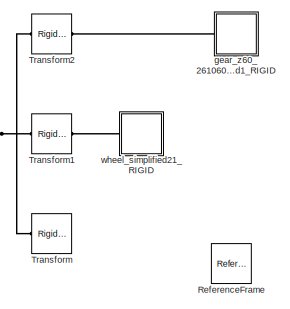
[diagram: ssl-robot/RoboCinWheel_simplified4_RIGID - part 1/2, top center region]
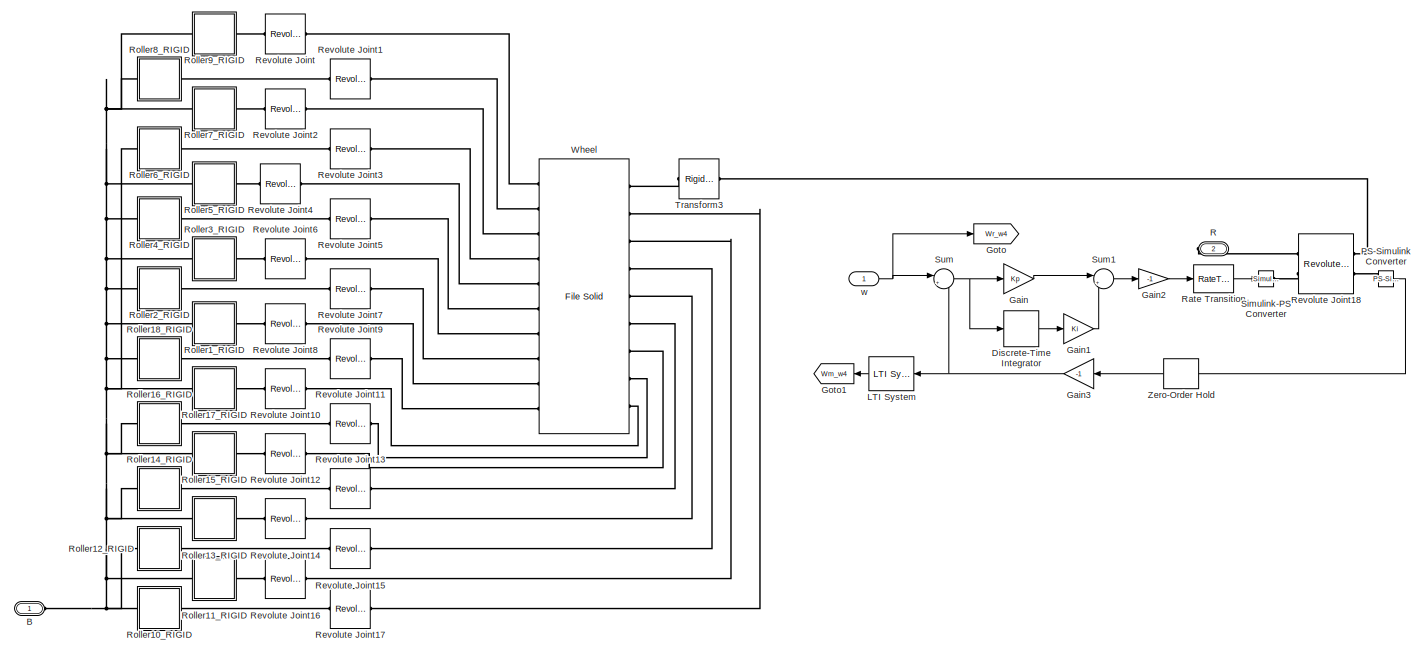
[diagram: ssl-robot/RoboCinWheel_simplified4_RIGID - part 2/2, full width, bottom band]
BLOCK [SubSystem] ssl-robot/RoboCinWheel_simplified4_RIGID
  Ports = [1, 0, 0, 0, 0, 1, 1]
  RequestExecContextInheritance = off
BLOCK [PMIOPort] ssl-robot/RoboCinWheel_simplified4_RIGID/B
  Side = Left
BLOCK [DiscreteIntegrator] ssl-robot/RoboCinWheel_simplified4_RIGID/Discrete-Time Integrator
  ICPrevOutput = DiscIntNeverNeededParam
  ICPrevScaledInput = DiscIntNeverNeededParam
  InitialConditionSetting = Auto
  Ports = [1, 1]
  SampleTime = -1
BLOCK [Gain] ssl-robot/RoboCinWheel_simplified4_RIGID/Gain
  Gain = Kp
BLOCK [Gain] ssl-robot/RoboCinWheel_simplified4_RIGID/Gain1
  Gain = Ki
BLOCK [Gain] ssl-robot/RoboCinWheel_simplified4_RIGID/Gain2
  Gain = -1
BLOCK [Gain] ssl-robot/RoboCinWheel_simplified4_RIGID/Gain3
  Gain = -1
BLOCK [Goto] ssl-robot/RoboCinWheel_simplified4_RIGID/Goto
  GotoTag = Wr_w4
  TagVisibility = global
BLOCK [Goto] ssl-robot/RoboCinWheel_simplified4_RIGID/Goto1
  GotoTag = Wm_w4
  TagVisibility = global
BLOCK [Reference] ssl-robot/RoboCinWheel_simplified4_RIGID/LTI System  REF=cstblocks/LTI System
  Ports = [1, 1]
  SourceBlock = cstblocks/LTI System
  SourceProductBaseCode = CT
  SourceType = LTI Block
BLOCK [Reference] ssl-robot/RoboCinWheel_simplified4_RIGID/PS-Simulink Converter  REF=nesl_utility/PS-Simulink
Converter
  Ports = [0, 1, 0, 0, 0, 1]
  SourceBlock = nesl_utility/PS-Simulink\nConverter
  SourceProductBaseCode = PW,SS
  SourceType = PS-Simulink\nConverter
BLOCK [PMIOPort] ssl-robot/RoboCinWheel_simplified4_RIGID/R
  NameLocation = top
  Port = 2
  Side = Right
BLOCK [RateTransition] ssl-robot/RoboCinWheel_simplified4_RIGID/Rate Transition
BLOCK [Reference] ssl-robot/RoboCinWheel_simplified4_RIGID/ReferenceFrame  REF=sm_lib/Frames and
Transforms/Reference
Frame
  Commented = on
  Ports = [0, 0, 0, 0, 0, 0, 1]
  SourceBlock = sm_lib/Frames and\nTransforms/Reference\nFrame
  SourceProductBaseCode = MS
  SourceType = Reference\nFrame
BLOCK [Reference] ssl-robot/RoboCinWheel_simplified4_RIGID/Revolute Joint  REF=sm_lib/Joints/Revolute Joint
  Ports = [0, 0, 0, 0, 0, 1, 1]
  SourceBlock = sm_lib/Joints/Revolute Joint
  SourceProductBaseCode = MS
  SourceType = Revolute Joint
BLOCK [Reference] ssl-robot/RoboCinWheel_simplified4_RIGID/Revolute Joint1  REF=sm_lib/Joints/Revolute Joint
  Ports = [0, 0, 0, 0, 0, 1, 1]
  SourceBlock = sm_lib/Joints/Revolute Joint
  SourceProductBaseCode = MS
  SourceType = Revolute Joint
BLOCK [Reference] ssl-robot/RoboCinWheel_simplified4_RIGID/Revolute Joint10  REF=sm_lib/Joints/Revolute Joint
  Ports = [0, 0, 0, 0, 0, 1, 1]
  SourceBlock = sm_lib/Joints/Revolute Joint
  SourceProductBaseCode = MS
  SourceType = Revolute Joint
BLOCK [Reference] ssl-robot/RoboCinWheel_simplified4_RIGID/Revolute Joint11  REF=sm_lib/Joints/Revolute Joint
  Ports = [0, 0, 0, 0, 0, 1, 1]
  SourceBlock = sm_lib/Joints/Revolute Joint
  SourceProductBaseCode = MS
  SourceType = Revolute Joint
BLOCK [Reference] ssl-robot/RoboCinWheel_simplified4_RIGID/Revolute Joint12  REF=sm_lib/Joints/Revolute Joint
  Ports = [0, 0, 0, 0, 0, 1, 1]
  SourceBlock = sm_lib/Joints/Revolute Joint
  SourceProductBaseCode = MS
  SourceType = Revolute Joint
BLOCK [Reference] ssl-robot/RoboCinWheel_simplified4_RIGID/Revolute Joint13  REF=sm_lib/Joints/Revolute Joint
  Ports = [0, 0, 0, 0, 0, 1, 1]
  SourceBlock = sm_lib/Joints/Revolute Joint
  SourceProductBaseCode = MS
  SourceType = Revolute Joint
BLOCK [Reference] ssl-robot/RoboCinWheel_simplified4_RIGID/Revolute Joint14  REF=sm_lib/Joints/Revolute Joint
  Ports = [0, 0, 0, 0, 0, 1, 1]
  SourceBlock = sm_lib/Joints/Revolute Joint
  SourceProductBaseCode = MS
  SourceType = Revolute Joint
BLOCK [Reference] ssl-robot/RoboCinWheel_simplified4_RIGID/Revolute Joint15  REF=sm_lib/Joints/Revolute Joint
  Ports = [0, 0, 0, 0, 0, 1, 1]
  SourceBlock = sm_lib/Joints/Revolute Joint
  SourceProductBaseCode = MS
  SourceType = Revolute Joint
BLOCK [Reference] ssl-robot/RoboCinWheel_simplified4_RIGID/Revolute Joint16  REF=sm_lib/Joints/Revolute Joint
  Ports = [0, 0, 0, 0, 0, 1, 1]
  SourceBlock = sm_lib/Joints/Revolute Joint
  SourceProductBaseCode = MS
  SourceType = Revolute Joint
BLOCK [Reference] ssl-robot/RoboCinWheel_simplified4_RIGID/Revolute Joint17  REF=sm_lib/Joints/Revolute Joint
  Ports = [0, 0, 0, 0, 0, 1, 1]
  SourceBlock = sm_lib/Joints/Revolute Joint
  SourceProductBaseCode = MS
  SourceType = Revolute Joint
BLOCK [Reference] ssl-robot/RoboCinWheel_simplified4_RIGID/Revolute Joint18  REF=sm_lib/Joints/Revolute Joint
  Ports = [0, 0, 0, 0, 0, 2, 2]
  SourceBlock = sm_lib/Joints/Revolute Joint
  SourceProductBaseCode = MS
  SourceType = Revolute Joint
BLOCK [Reference] ssl-robot/RoboCinWheel_simplified4_RIGID/Revolute Joint2  REF=sm_lib/Joints/Revolute Joint
  Ports = [0, 0, 0, 0, 0, 1, 1]
  SourceBlock = sm_lib/Joints/Revolute Joint
  SourceProductBaseCode = MS
  SourceType = Revolute Joint
BLOCK [Reference] ssl-robot/RoboCinWheel_simplified4_RIGID/Revolute Joint3  REF=sm_lib/Joints/Revolute Joint
  Ports = [0, 0, 0, 0, 0, 1, 1]
  SourceBlock = sm_lib/Joints/Revolute Joint
  SourceProductBaseCode = MS
  SourceType = Revolute Joint
BLOCK [Reference] ssl-robot/RoboCinWheel_simplified4_RIGID/Revolute Joint4  REF=sm_lib/Joints/Revolute Joint
  Ports = [0, 0, 0, 0, 0, 1, 1]
  SourceBlock = sm_lib/Joints/Revolute Joint
  SourceProductBaseCode = MS
  SourceType = Revolute Joint
BLOCK [Reference] ssl-robot/RoboCinWheel_simplified4_RIGID/Revolute Joint5  REF=sm_lib/Joints/Revolute Joint
  Ports = [0, 0, 0, 0, 0, 1, 1]
  SourceBlock = sm_lib/Joints/Revolute Joint
  SourceProductBaseCode = MS
  SourceType = Revolute Joint
BLOCK [Reference] ssl-robot/RoboCinWheel_simplified4_RIGID/Revolute Joint6  REF=sm_lib/Joints/Revolute Joint
  Ports = [0, 0, 0, 0, 0, 1, 1]
  SourceBlock = sm_lib/Joints/Revolute Joint
  SourceProductBaseCode = MS
  SourceType = Revolute Joint
BLOCK [Reference] ssl-robot/RoboCinWheel_simplified4_RIGID/Revolute Joint7  REF=sm_lib/Joints/Revolute Joint
  Ports = [0, 0, 0, 0, 0, 1, 1]
  SourceBlock = sm_lib/Joints/Revolute Joint
  SourceProductBaseCode = MS
  SourceType = Revolute Joint
BLOCK [Reference] ssl-robot/RoboCinWheel_simplified4_RIGID/Revolute Joint8  REF=sm_lib/Joints/Revolute Joint
  Ports = [0, 0, 0, 0, 0, 1, 1]
  SourceBlock = sm_lib/Joints/Revolute Joint
  SourceProductBaseCode = MS
  SourceType = Revolute Joint
BLOCK [Reference] ssl-robot/RoboCinWheel_simplified4_RIGID/Revolute Joint9  REF=sm_lib/Joints/Revolute Joint
  Ports = [0, 0, 0, 0, 0, 1, 1]
  SourceBlock = sm_lib/Joints/Revolute Joint
  SourceProductBaseCode = MS
  SourceType = Revolute Joint
BLOCK [SubSystem] ssl-robot/RoboCinWheel_simplified4_RIGID/Roller10_RIGID
  Ports = [0, 0, 0, 0, 0, 1, 1]
  RequestExecContextInheritance = off
BLOCK [PMIOPort] ssl-robot/RoboCinWheel_simplified4_RIGID/Roller10_RIGID/B
  Port = 2
  Side = Left
BLOCK [PMIOPort] ssl-robot/RoboCinWheel_simplified4_RIGID/Roller10_RIGID/F
  Side = Right
BLOCK [Reference] ssl-robot/RoboCinWheel_simplified4_RIGID/Roller10_RIGID/ReferenceFrame  REF=sm_lib/Frames and
Transforms/Reference
Frame
  Ports = [0, 0, 0, 0, 0, 0, 1]
  SourceBlock = sm_lib/Frames and\nTransforms/Reference\nFrame
  SourceProductBaseCode = MS
  SourceType = Reference\nFrame
BLOCK [SubSystem] ssl-robot/RoboCinWheel_simplified4_RIGID/Roller10_RIGID/Roller1_RIGID
  Ports = [0, 0, 0, 0, 0, 1]
  RequestExecContextInheritance = off
BLOCK [PMIOPort] ssl-robot/RoboCinWheel_simplified4_RIGID/Roller10_RIGID/Roller1_RIGID/F
  Side = Left
BLOCK [Reference] ssl-robot/RoboCinWheel_simplified4_RIGID/Roller10_RIGID/Roller1_RIGID/ReferenceFrame  REF=sm_lib/Frames and
Transforms/Reference
Frame
  Ports = [0, 0, 0, 0, 0, 0, 1]
  SourceBlock = sm_lib/Frames and\nTransforms/Reference\nFrame
  SourceProductBaseCode = MS
  SourceType = Reference\nFrame
BLOCK [Reference] ssl-robot/RoboCinWheel_simplified4_RIGID/Roller10_RIGID/Roller1_RIGID/Solid  REF=sm_lib/Body Elements/File Solid
  Ports = [0, 0, 0, 0, 0, 0, 1]
  SourceBlock = sm_lib/Body Elements/File Solid
  SourceProductBaseCode = MS
  SourceType = File Solid
BLOCK [SubSystem] ssl-robot/RoboCinWheel_simplified4_RIGID/Roller10_RIGID/RollerTire1_RIGID
  Ports = [0, 0, 0, 0, 0, 2]
  RequestExecContextInheritance = off
BLOCK [PMIOPort] ssl-robot/RoboCinWheel_simplified4_RIGID/Roller10_RIGID/RollerTire1_RIGID/B
  Port = 2
  Side = Left
BLOCK [PMIOPort] ssl-robot/RoboCinWheel_simplified4_RIGID/Roller10_RIGID/RollerTire1_RIGID/F
  Side = Left
BLOCK [Reference] ssl-robot/RoboCinWheel_simplified4_RIGID/Roller10_RIGID/RollerTire1_RIGID/ReferenceFrame  REF=sm_lib/Frames and
Transforms/Reference
Frame
  Ports = [0, 0, 0, 0, 0, 0, 1]
  SourceBlock = sm_lib/Frames and\nTransforms/Reference\nFrame
  SourceProductBaseCode = MS
  SourceType = Reference\nFrame
BLOCK [Reference] ssl-robot/RoboCinWheel_simplified4_RIGID/Roller10_RIGID/RollerTire1_RIGID/Solid  REF=sm_lib/Body Elements/File Solid
  Ports = [0, 0, 0, 0, 0, 1, 1]
  SourceBlock = sm_lib/Body Elements/File Solid
  SourceProductBaseCode = MS
  SourceType = File Solid
BLOCK [Reference] ssl-robot/RoboCinWheel_simplified4_RIGID/Roller10_RIGID/RollerTire1_RIGID/Spatial Contact Force  REF=sm_lib/Forces and
Torques/Spatial
Contact Force
  Ports = [0, 0, 0, 0, 0, 1, 1]
  SourceBlock = sm_lib/Forces and\nTorques/Spatial\nContact Force
  SourceProductBaseCode = MS
  SourceType = Spatial\nContact Force
BLOCK [Reference] ssl-robot/RoboCinWheel_simplified4_RIGID/Roller10_RIGID/Transform  REF=sm_lib/Frames and
Transforms/Rigid
Transform
  Ports = [0, 0, 0, 0, 0, 1, 1]
  SourceBlock = sm_lib/Frames and\nTransforms/Rigid\nTransform
  SourceProductBaseCode = MS
  SourceType = Rigid\nTransform
BLOCK [Reference] ssl-robot/RoboCinWheel_simplified4_RIGID/Roller10_RIGID/Transform1  REF=sm_lib/Frames and
Transforms/Rigid
Transform
  Ports = [0, 0, 0, 0, 0, 1, 1]
  SourceBlock = sm_lib/Frames and\nTransforms/Rigid\nTransform
  SourceProductBaseCode = MS
  SourceType = Rigid\nTransform
BLOCK [Reference] ssl-robot/RoboCinWheel_simplified4_RIGID/Roller10_RIGID/Transform2  REF=sm_lib/Frames and
Transforms/Rigid
Transform
  Ports = [0, 0, 0, 0, 0, 1, 1]
  SourceBlock = sm_lib/Frames and\nTransforms/Rigid\nTransform
  SourceProductBaseCode = MS
  SourceType = Rigid\nTransform
BLOCK [SubSystem] ssl-robot/RoboCinWheel_simplified4_RIGID/Roller11_RIGID
  Ports = [0, 0, 0, 0, 0, 1, 1]
  RequestExecContextInheritance = off
BLOCK [PMIOPort] ssl-robot/RoboCinWheel_simplified4_RIGID/Roller11_RIGID/B
  Port = 2
  Side = Left
BLOCK [PMIOPort] ssl-robot/RoboCinWheel_simplified4_RIGID/Roller11_RIGID/F
  Side = Right
BLOCK [Reference] ssl-robot/RoboCinWheel_simplified4_RIGID/Roller11_RIGID/ReferenceFrame  REF=sm_lib/Frames and
Transforms/Reference
Frame
  Ports = [0, 0, 0, 0, 0, 0, 1]
  SourceBlock = sm_lib/Frames and\nTransforms/Reference\nFrame
  SourceProductBaseCode = MS
  SourceType = Reference\nFrame
BLOCK [SubSystem] ssl-robot/RoboCinWheel_simplified4_RIGID/Roller11_RIGID/Roller1_RIGID
  Ports = [0, 0, 0, 0, 0, 1]
  RequestExecContextInheritance = off
BLOCK [PMIOPort] ssl-robot/RoboCinWheel_simplified4_RIGID/Roller11_RIGID/Roller1_RIGID/F
  Side = Left
BLOCK [Reference] ssl-robot/RoboCinWheel_simplified4_RIGID/Roller11_RIGID/Roller1_RIGID/ReferenceFrame  REF=sm_lib/Frames and
Transforms/Reference
Frame
  Ports = [0, 0, 0, 0, 0, 0, 1]
  SourceBlock = sm_lib/Frames and\nTransforms/Reference\nFrame
  SourceProductBaseCode = MS
  SourceType = Reference\nFrame
BLOCK [Reference] ssl-robot/RoboCinWheel_simplified4_RIGID/Roller11_RIGID/Roller1_RIGID/Solid  REF=sm_lib/Body Elements/File Solid
  Ports = [0, 0, 0, 0, 0, 0, 1]
  SourceBlock = sm_lib/Body Elements/File Solid
  SourceProductBaseCode = MS
  SourceType = File Solid
BLOCK [SubSystem] ssl-robot/RoboCinWheel_simplified4_RIGID/Roller11_RIGID/RollerTire1_RIGID
  Ports = [0, 0, 0, 0, 0, 2]
  RequestExecContextInheritance = off
BLOCK [PMIOPort] ssl-robot/RoboCinWheel_simplified4_RIGID/Roller11_RIGID/RollerTire1_RIGID/B
  Port = 2
  Side = Left
BLOCK [PMIOPort] ssl-robot/RoboCinWheel_simplified4_RIGID/Roller11_RIGID/RollerTire1_RIGID/F
  Side = Left
BLOCK [Reference] ssl-robot/RoboCinWheel_simplified4_RIGID/Roller11_RIGID/RollerTire1_RIGID/ReferenceFrame  REF=sm_lib/Frames and
Transforms/Reference
Frame
  Ports = [0, 0, 0, 0, 0, 0, 1]
  SourceBlock = sm_lib/Frames and\nTransforms/Reference\nFrame
  SourceProductBaseCode = MS
  SourceType = Reference\nFrame
BLOCK [Reference] ssl-robot/RoboCinWheel_simplified4_RIGID/Roller11_RIGID/RollerTire1_RIGID/Solid  REF=sm_lib/Body Elements/File Solid
  Ports = [0, 0, 0, 0, 0, 1, 1]
  SourceBlock = sm_lib/Body Elements/File Solid
  SourceProductBaseCode = MS
  SourceType = File Solid
BLOCK [Reference] ssl-robot/RoboCinWheel_simplified4_RIGID/Roller11_RIGID/RollerTire1_RIGID/Spatial Contact Force  REF=sm_lib/Forces and
Torques/Spatial
Contact Force
  Ports = [0, 0, 0, 0, 0, 1, 1]
  SourceBlock = sm_lib/Forces and\nTorques/Spatial\nContact Force
  SourceProductBaseCode = MS
  SourceType = Spatial\nContact Force
BLOCK [Reference] ssl-robot/RoboCinWheel_simplified4_RIGID/Roller11_RIGID/Transform  REF=sm_lib/Frames and
Transforms/Rigid
Transform
  Ports = [0, 0, 0, 0, 0, 1, 1]
  SourceBlock = sm_lib/Frames and\nTransforms/Rigid\nTransform
  SourceProductBaseCode = MS
  SourceType = Rigid\nTransform
BLOCK [Reference] ssl-robot/RoboCinWheel_simplified4_RIGID/Roller11_RIGID/Transform1  REF=sm_lib/Frames and
Transforms/Rigid
Transform
  Ports = [0, 0, 0, 0, 0, 1, 1]
  SourceBlock = sm_lib/Frames and\nTransforms/Rigid\nTransform
  SourceProductBaseCode = MS
  SourceType = Rigid\nTransform
BLOCK [Reference] ssl-robot/RoboCinWheel_simplified4_RIGID/Roller11_RIGID/Transform2  REF=sm_lib/Frames and
Transforms/Rigid
Transform
  Ports = [0, 0, 0, 0, 0, 1, 1]
  SourceBlock = sm_lib/Frames and\nTransforms/Rigid\nTransform
  SourceProductBaseCode = MS
  SourceType = Rigid\nTransform
BLOCK [SubSystem] ssl-robot/RoboCinWheel_simplified4_RIGID/Roller12_RIGID
  Ports = [0, 0, 0, 0, 0, 1, 1]
  RequestExecContextInheritance = off
BLOCK [PMIOPort] ssl-robot/RoboCinWheel_simplified4_RIGID/Roller12_RIGID/B
  Port = 2
  Side = Left
BLOCK [PMIOPort] ssl-robot/RoboCinWheel_simplified4_RIGID/Roller12_RIGID/F
  Side = Right
BLOCK [Reference] ssl-robot/RoboCinWheel_simplified4_RIGID/Roller12_RIGID/ReferenceFrame  REF=sm_lib/Frames and
Transforms/Reference
Frame
  Ports = [0, 0, 0, 0, 0, 0, 1]
  SourceBlock = sm_lib/Frames and\nTransforms/Reference\nFrame
  SourceProductBaseCode = MS
  SourceType = Reference\nFrame
BLOCK [SubSystem] ssl-robot/RoboCinWheel_simplified4_RIGID/Roller12_RIGID/Roller1_RIGID
  Ports = [0, 0, 0, 0, 0, 1]
  RequestExecContextInheritance = off
BLOCK [PMIOPort] ssl-robot/RoboCinWheel_simplified4_RIGID/Roller12_RIGID/Roller1_RIGID/F
  Side = Left
BLOCK [Reference] ssl-robot/RoboCinWheel_simplified4_RIGID/Roller12_RIGID/Roller1_RIGID/ReferenceFrame  REF=sm_lib/Frames and
Transforms/Reference
Frame
  Ports = [0, 0, 0, 0, 0, 0, 1]
  SourceBlock = sm_lib/Frames and\nTransforms/Reference\nFrame
  SourceProductBaseCode = MS
  SourceType = Reference\nFrame
BLOCK [Reference] ssl-robot/RoboCinWheel_simplified4_RIGID/Roller12_RIGID/Roller1_RIGID/Solid  REF=sm_lib/Body Elements/File Solid
  Ports = [0, 0, 0, 0, 0, 0, 1]
  SourceBlock = sm_lib/Body Elements/File Solid
  SourceProductBaseCode = MS
  SourceType = File Solid
BLOCK [SubSystem] ssl-robot/RoboCinWheel_simplified4_RIGID/Roller12_RIGID/RollerTire1_RIGID
  Ports = [0, 0, 0, 0, 0, 2]
  RequestExecContextInheritance = off
BLOCK [PMIOPort] ssl-robot/RoboCinWheel_simplified4_RIGID/Roller12_RIGID/RollerTire1_RIGID/B
  Port = 2
  Side = Left
BLOCK [PMIOPort] ssl-robot/RoboCinWheel_simplified4_RIGID/Roller12_RIGID/RollerTire1_RIGID/F
  Side = Left
BLOCK [Reference] ssl-robot/RoboCinWheel_simplified4_RIGID/Roller12_RIGID/RollerTire1_RIGID/ReferenceFrame  REF=sm_lib/Frames and
Transforms/Reference
Frame
  Ports = [0, 0, 0, 0, 0, 0, 1]
  SourceBlock = sm_lib/Frames and\nTransforms/Reference\nFrame
  SourceProductBaseCode = MS
  SourceType = Reference\nFrame
BLOCK [Reference] ssl-robot/RoboCinWheel_simplified4_RIGID/Roller12_RIGID/RollerTire1_RIGID/Solid  REF=sm_lib/Body Elements/File Solid
  Ports = [0, 0, 0, 0, 0, 1, 1]
  SourceBlock = sm_lib/Body Elements/File Solid
  SourceProductBaseCode = MS
  SourceType = File Solid
BLOCK [Reference] ssl-robot/RoboCinWheel_simplified4_RIGID/Roller12_RIGID/RollerTire1_RIGID/Spatial Contact Force  REF=sm_lib/Forces and
Torques/Spatial
Contact Force
  Ports = [0, 0, 0, 0, 0, 1, 1]
  SourceBlock = sm_lib/Forces and\nTorques/Spatial\nContact Force
  SourceProductBaseCode = MS
  SourceType = Spatial\nContact Force
BLOCK [Reference] ssl-robot/RoboCinWheel_simplified4_RIGID/Roller12_RIGID/Transform  REF=sm_lib/Frames and
Transforms/Rigid
Transform
  Ports = [0, 0, 0, 0, 0, 1, 1]
  SourceBlock = sm_lib/Frames and\nTransforms/Rigid\nTransform
  SourceProductBaseCode = MS
  SourceType = Rigid\nTransform
BLOCK [Reference] ssl-robot/RoboCinWheel_simplified4_RIGID/Roller12_RIGID/Transform1  REF=sm_lib/Frames and
Transforms/Rigid
Transform
  Ports = [0, 0, 0, 0, 0, 1, 1]
  SourceBlock = sm_lib/Frames and\nTransforms/Rigid\nTransform
  SourceProductBaseCode = MS
  SourceType = Rigid\nTransform
BLOCK [Reference] ssl-robot/RoboCinWheel_simplified4_RIGID/Roller12_RIGID/Transform2  REF=sm_lib/Frames and
Transforms/Rigid
Transform
  Ports = [0, 0, 0, 0, 0, 1, 1]
  SourceBlock = sm_lib/Frames and\nTransforms/Rigid\nTransform
  SourceProductBaseCode = MS
  SourceType = Rigid\nTransform
BLOCK [SubSystem] ssl-robot/RoboCinWheel_simplified4_RIGID/Roller13_RIGID
  Ports = [0, 0, 0, 0, 0, 1, 1]
  RequestExecContextInheritance = off
BLOCK [PMIOPort] ssl-robot/RoboCinWheel_simplified4_RIGID/Roller13_RIGID/B
  Port = 2
  Side = Left
BLOCK [PMIOPort] ssl-robot/RoboCinWheel_simplified4_RIGID/Roller13_RIGID/F
  Side = Right
BLOCK [Reference] ssl-robot/RoboCinWheel_simplified4_RIGID/Roller13_RIGID/ReferenceFrame  REF=sm_lib/Frames and
Transforms/Reference
Frame
  Ports = [0, 0, 0, 0, 0, 0, 1]
  SourceBlock = sm_lib/Frames and\nTransforms/Reference\nFrame
  SourceProductBaseCode = MS
  SourceType = Reference\nFrame
BLOCK [SubSystem] ssl-robot/RoboCinWheel_simplified4_RIGID/Roller13_RIGID/Roller1_RIGID
  Ports = [0, 0, 0, 0, 0, 1]
  RequestExecContextInheritance = off
BLOCK [PMIOPort] ssl-robot/RoboCinWheel_simplified4_RIGID/Roller13_RIGID/Roller1_RIGID/F
  Side = Left
BLOCK [Reference] ssl-robot/RoboCinWheel_simplified4_RIGID/Roller13_RIGID/Roller1_RIGID/ReferenceFrame  REF=sm_lib/Frames and
Transforms/Reference
Frame
  Ports = [0, 0, 0, 0, 0, 0, 1]
  SourceBlock = sm_lib/Frames and\nTransforms/Reference\nFrame
  SourceProductBaseCode = MS
  SourceType = Reference\nFrame
BLOCK [Reference] ssl-robot/RoboCinWheel_simplified4_RIGID/Roller13_RIGID/Roller1_RIGID/Solid  REF=sm_lib/Body Elements/File Solid
  Ports = [0, 0, 0, 0, 0, 0, 1]
  SourceBlock = sm_lib/Body Elements/File Solid
  SourceProductBaseCode = MS
  SourceType = File Solid
BLOCK [SubSystem] ssl-robot/RoboCinWheel_simplified4_RIGID/Roller13_RIGID/RollerTire1_RIGID
  Ports = [0, 0, 0, 0, 0, 2]
  RequestExecContextInheritance = off
BLOCK [PMIOPort] ssl-robot/RoboCinWheel_simplified4_RIGID/Roller13_RIGID/RollerTire1_RIGID/B
  Port = 2
  Side = Left
BLOCK [PMIOPort] ssl-robot/RoboCinWheel_simplified4_RIGID/Roller13_RIGID/RollerTire1_RIGID/F
  Side = Left
BLOCK [Reference] ssl-robot/RoboCinWheel_simplified4_RIGID/Roller13_RIGID/RollerTire1_RIGID/ReferenceFrame  REF=sm_lib/Frames and
Transforms/Reference
Frame
  Ports = [0, 0, 0, 0, 0, 0, 1]
  SourceBlock = sm_lib/Frames and\nTransforms/Reference\nFrame
  SourceProductBaseCode = MS
  SourceType = Reference\nFrame
BLOCK [Reference] ssl-robot/RoboCinWheel_simplified4_RIGID/Roller13_RIGID/RollerTire1_RIGID/Solid  REF=sm_lib/Body Elements/File Solid
  Ports = [0, 0, 0, 0, 0, 1, 1]
  SourceBlock = sm_lib/Body Elements/File Solid
  SourceProductBaseCode = MS
  SourceType = File Solid
BLOCK [Reference] ssl-robot/RoboCinWheel_simplified4_RIGID/Roller13_RIGID/RollerTire1_RIGID/Spatial Contact Force  REF=sm_lib/Forces and
Torques/Spatial
Contact Force
  Ports = [0, 0, 0, 0, 0, 1, 1]
  SourceBlock = sm_lib/Forces and\nTorques/Spatial\nContact Force
  SourceProductBaseCode = MS
  SourceType = Spatial\nContact Force
BLOCK [Reference] ssl-robot/RoboCinWheel_simplified4_RIGID/Roller13_RIGID/Transform  REF=sm_lib/Frames and
Transforms/Rigid
Transform
  Ports = [0, 0, 0, 0, 0, 1, 1]
  SourceBlock = sm_lib/Frames and\nTransforms/Rigid\nTransform
  SourceProductBaseCode = MS
  SourceType = Rigid\nTransform
BLOCK [Reference] ssl-robot/RoboCinWheel_simplified4_RIGID/Roller13_RIGID/Transform1  REF=sm_lib/Frames and
Transforms/Rigid
Transform
  Ports = [0, 0, 0, 0, 0, 1, 1]
  SourceBlock = sm_lib/Frames and\nTransforms/Rigid\nTransform
  SourceProductBaseCode = MS
  SourceType = Rigid\nTransform
BLOCK [Reference] ssl-robot/RoboCinWheel_simplified4_RIGID/Roller13_RIGID/Transform2  REF=sm_lib/Frames and
Transforms/Rigid
Transform
  Ports = [0, 0, 0, 0, 0, 1, 1]
  SourceBlock = sm_lib/Frames and\nTransforms/Rigid\nTransform
  SourceProductBaseCode = MS
  SourceType = Rigid\nTransform
BLOCK [SubSystem] ssl-robot/RoboCinWheel_simplified4_RIGID/Roller14_RIGID
  Ports = [0, 0, 0, 0, 0, 1, 1]
  RequestExecContextInheritance = off
BLOCK [PMIOPort] ssl-robot/RoboCinWheel_simplified4_RIGID/Roller14_RIGID/B
  Port = 2
  Side = Left
BLOCK [PMIOPort] ssl-robot/RoboCinWheel_simplified4_RIGID/Roller14_RIGID/F
  Side = Right
BLOCK [Reference] ssl-robot/RoboCinWheel_simplified4_RIGID/Roller14_RIGID/ReferenceFrame  REF=sm_lib/Frames and
Transforms/Reference
Frame
  Ports = [0, 0, 0, 0, 0, 0, 1]
  SourceBlock = sm_lib/Frames and\nTransforms/Reference\nFrame
  SourceProductBaseCode = MS
  SourceType = Reference\nFrame
BLOCK [SubSystem] ssl-robot/RoboCinWheel_simplified4_RIGID/Roller14_RIGID/Roller1_RIGID
  Ports = [0, 0, 0, 0, 0, 1]
  RequestExecContextInheritance = off
BLOCK [PMIOPort] ssl-robot/RoboCinWheel_simplified4_RIGID/Roller14_RIGID/Roller1_RIGID/F
  Side = Left
BLOCK [Reference] ssl-robot/RoboCinWheel_simplified4_RIGID/Roller14_RIGID/Roller1_RIGID/ReferenceFrame  REF=sm_lib/Frames and
Transforms/Reference
Frame
  Ports = [0, 0, 0, 0, 0, 0, 1]
  SourceBlock = sm_lib/Frames and\nTransforms/Reference\nFrame
  SourceProductBaseCode = MS
  SourceType = Reference\nFrame
BLOCK [Reference] ssl-robot/RoboCinWheel_simplified4_RIGID/Roller14_RIGID/Roller1_RIGID/Solid  REF=sm_lib/Body Elements/File Solid
  Ports = [0, 0, 0, 0, 0, 0, 1]
  SourceBlock = sm_lib/Body Elements/File Solid
  SourceProductBaseCode = MS
  SourceType = File Solid
BLOCK [SubSystem] ssl-robot/RoboCinWheel_simplified4_RIGID/Roller14_RIGID/RollerTire1_RIGID
  Ports = [0, 0, 0, 0, 0, 2]
  RequestExecContextInheritance = off
BLOCK [PMIOPort] ssl-robot/RoboCinWheel_simplified4_RIGID/Roller14_RIGID/RollerTire1_RIGID/B
  Port = 2
  Side = Left
BLOCK [PMIOPort] ssl-robot/RoboCinWheel_simplified4_RIGID/Roller14_RIGID/RollerTire1_RIGID/F
  Side = Left
BLOCK [Reference] ssl-robot/RoboCinWheel_simplified4_RIGID/Roller14_RIGID/RollerTire1_RIGID/ReferenceFrame  REF=sm_lib/Frames and
Transforms/Reference
Frame
  Ports = [0, 0, 0, 0, 0, 0, 1]
  SourceBlock = sm_lib/Frames and\nTransforms/Reference\nFrame
  SourceProductBaseCode = MS
  SourceType = Reference\nFrame
BLOCK [Reference] ssl-robot/RoboCinWheel_simplified4_RIGID/Roller14_RIGID/RollerTire1_RIGID/Solid  REF=sm_lib/Body Elements/File Solid
  Ports = [0, 0, 0, 0, 0, 1, 1]
  SourceBlock = sm_lib/Body Elements/File Solid
  SourceProductBaseCode = MS
  SourceType = File Solid
BLOCK [Reference] ssl-robot/RoboCinWheel_simplified4_RIGID/Roller14_RIGID/RollerTire1_RIGID/Spatial Contact Force  REF=sm_lib/Forces and
Torques/Spatial
Contact Force
  Ports = [0, 0, 0, 0, 0, 1, 1]
  SourceBlock = sm_lib/Forces and\nTorques/Spatial\nContact Force
  SourceProductBaseCode = MS
  SourceType = Spatial\nContact Force
BLOCK [Reference] ssl-robot/RoboCinWheel_simplified4_RIGID/Roller14_RIGID/Transform  REF=sm_lib/Frames and
Transforms/Rigid
Transform
  Ports = [0, 0, 0, 0, 0, 1, 1]
  SourceBlock = sm_lib/Frames and\nTransforms/Rigid\nTransform
  SourceProductBaseCode = MS
  SourceType = Rigid\nTransform
BLOCK [Reference] ssl-robot/RoboCinWheel_simplified4_RIGID/Roller14_RIGID/Transform1  REF=sm_lib/Frames and
Transforms/Rigid
Transform
  Ports = [0, 0, 0, 0, 0, 1, 1]
  SourceBlock = sm_lib/Frames and\nTransforms/Rigid\nTransform
  SourceProductBaseCode = MS
  SourceType = Rigid\nTransform
BLOCK [Reference] ssl-robot/RoboCinWheel_simplified4_RIGID/Roller14_RIGID/Transform2  REF=sm_lib/Frames and
Transforms/Rigid
Transform
  Ports = [0, 0, 0, 0, 0, 1, 1]
  SourceBlock = sm_lib/Frames and\nTransforms/Rigid\nTransform
  SourceProductBaseCode = MS
  SourceType = Rigid\nTransform
BLOCK [SubSystem] ssl-robot/RoboCinWheel_simplified4_RIGID/Roller15_RIGID
  Ports = [0, 0, 0, 0, 0, 1, 1]
  RequestExecContextInheritance = off
BLOCK [PMIOPort] ssl-robot/RoboCinWheel_simplified4_RIGID/Roller15_RIGID/B
  Port = 2
  Side = Left
BLOCK [PMIOPort] ssl-robot/RoboCinWheel_simplified4_RIGID/Roller15_RIGID/F
  Side = Right
BLOCK [Reference] ssl-robot/RoboCinWheel_simplified4_RIGID/Roller15_RIGID/ReferenceFrame  REF=sm_lib/Frames and
Transforms/Reference
Frame
  Ports = [0, 0, 0, 0, 0, 0, 1]
  SourceBlock = sm_lib/Frames and\nTransforms/Reference\nFrame
  SourceProductBaseCode = MS
  SourceType = Reference\nFrame
BLOCK [SubSystem] ssl-robot/RoboCinWheel_simplified4_RIGID/Roller15_RIGID/Roller1_RIGID
  Ports = [0, 0, 0, 0, 0, 1]
  RequestExecContextInheritance = off
BLOCK [PMIOPort] ssl-robot/RoboCinWheel_simplified4_RIGID/Roller15_RIGID/Roller1_RIGID/F
  Side = Left
BLOCK [Reference] ssl-robot/RoboCinWheel_simplified4_RIGID/Roller15_RIGID/Roller1_RIGID/ReferenceFrame  REF=sm_lib/Frames and
Transforms/Reference
Frame
  Ports = [0, 0, 0, 0, 0, 0, 1]
  SourceBlock = sm_lib/Frames and\nTransforms/Reference\nFrame
  SourceProductBaseCode = MS
  SourceType = Reference\nFrame
BLOCK [Reference] ssl-robot/RoboCinWheel_simplified4_RIGID/Roller15_RIGID/Roller1_RIGID/Solid  REF=sm_lib/Body Elements/File Solid
  Ports = [0, 0, 0, 0, 0, 0, 1]
  SourceBlock = sm_lib/Body Elements/File Solid
  SourceProductBaseCode = MS
  SourceType = File Solid
BLOCK [SubSystem] ssl-robot/RoboCinWheel_simplified4_RIGID/Roller15_RIGID/RollerTire1_RIGID
  Ports = [0, 0, 0, 0, 0, 2]
  RequestExecContextInheritance = off
BLOCK [PMIOPort] ssl-robot/RoboCinWheel_simplified4_RIGID/Roller15_RIGID/RollerTire1_RIGID/B
  Port = 2
  Side = Left
BLOCK [PMIOPort] ssl-robot/RoboCinWheel_simplified4_RIGID/Roller15_RIGID/RollerTire1_RIGID/F
  Side = Left
BLOCK [Reference] ssl-robot/RoboCinWheel_simplified4_RIGID/Roller15_RIGID/RollerTire1_RIGID/ReferenceFrame  REF=sm_lib/Frames and
Transforms/Reference
Frame
  Ports = [0, 0, 0, 0, 0, 0, 1]
  SourceBlock = sm_lib/Frames and\nTransforms/Reference\nFrame
  SourceProductBaseCode = MS
  SourceType = Reference\nFrame
BLOCK [Reference] ssl-robot/RoboCinWheel_simplified4_RIGID/Roller15_RIGID/RollerTire1_RIGID/Solid  REF=sm_lib/Body Elements/File Solid
  Ports = [0, 0, 0, 0, 0, 1, 1]
  SourceBlock = sm_lib/Body Elements/File Solid
  SourceProductBaseCode = MS
  SourceType = File Solid
BLOCK [Reference] ssl-robot/RoboCinWheel_simplified4_RIGID/Roller15_RIGID/RollerTire1_RIGID/Spatial Contact Force  REF=sm_lib/Forces and
Torques/Spatial
Contact Force
  Ports = [0, 0, 0, 0, 0, 1, 1]
  SourceBlock = sm_lib/Forces and\nTorques/Spatial\nContact Force
  SourceProductBaseCode = MS
  SourceType = Spatial\nContact Force
BLOCK [Reference] ssl-robot/RoboCinWheel_simplified4_RIGID/Roller15_RIGID/Transform  REF=sm_lib/Frames and
Transforms/Rigid
Transform
  Ports = [0, 0, 0, 0, 0, 1, 1]
  SourceBlock = sm_lib/Frames and\nTransforms/Rigid\nTransform
  SourceProductBaseCode = MS
  SourceType = Rigid\nTransform
BLOCK [Reference] ssl-robot/RoboCinWheel_simplified4_RIGID/Roller15_RIGID/Transform1  REF=sm_lib/Frames and
Transforms/Rigid
Transform
  Ports = [0, 0, 0, 0, 0, 1, 1]
  SourceBlock = sm_lib/Frames and\nTransforms/Rigid\nTransform
  SourceProductBaseCode = MS
  SourceType = Rigid\nTransform
BLOCK [Reference] ssl-robot/RoboCinWheel_simplified4_RIGID/Roller15_RIGID/Transform2  REF=sm_lib/Frames and
Transforms/Rigid
Transform
  Ports = [0, 0, 0, 0, 0, 1, 1]
  SourceBlock = sm_lib/Frames and\nTransforms/Rigid\nTransform
  SourceProductBaseCode = MS
  SourceType = Rigid\nTransform
BLOCK [SubSystem] ssl-robot/RoboCinWheel_simplified4_RIGID/Roller16_RIGID
  Ports = [0, 0, 0, 0, 0, 1, 1]
  RequestExecContextInheritance = off
BLOCK [PMIOPort] ssl-robot/RoboCinWheel_simplified4_RIGID/Roller16_RIGID/B
  Port = 2
  Side = Left
BLOCK [PMIOPort] ssl-robot/RoboCinWheel_simplified4_RIGID/Roller16_RIGID/F
  Side = Right
BLOCK [Reference] ssl-robot/RoboCinWheel_simplified4_RIGID/Roller16_RIGID/ReferenceFrame  REF=sm_lib/Frames and
Transforms/Reference
Frame
  Ports = [0, 0, 0, 0, 0, 0, 1]
  SourceBlock = sm_lib/Frames and\nTransforms/Reference\nFrame
  SourceProductBaseCode = MS
  SourceType = Reference\nFrame
BLOCK [SubSystem] ssl-robot/RoboCinWheel_simplified4_RIGID/Roller16_RIGID/Roller1_RIGID
  Ports = [0, 0, 0, 0, 0, 1]
  RequestExecContextInheritance = off
BLOCK [PMIOPort] ssl-robot/RoboCinWheel_simplified4_RIGID/Roller16_RIGID/Roller1_RIGID/F
  Side = Left
BLOCK [Reference] ssl-robot/RoboCinWheel_simplified4_RIGID/Roller16_RIGID/Roller1_RIGID/ReferenceFrame  REF=sm_lib/Frames and
Transforms/Reference
Frame
  Ports = [0, 0, 0, 0, 0, 0, 1]
  SourceBlock = sm_lib/Frames and\nTransforms/Reference\nFrame
  SourceProductBaseCode = MS
  SourceType = Reference\nFrame
BLOCK [Reference] ssl-robot/RoboCinWheel_simplified4_RIGID/Roller16_RIGID/Roller1_RIGID/Solid  REF=sm_lib/Body Elements/File Solid
  Ports = [0, 0, 0, 0, 0, 0, 1]
  SourceBlock = sm_lib/Body Elements/File Solid
  SourceProductBaseCode = MS
  SourceType = File Solid
BLOCK [SubSystem] ssl-robot/RoboCinWheel_simplified4_RIGID/Roller16_RIGID/RollerTire1_RIGID
  Ports = [0, 0, 0, 0, 0, 2]
  RequestExecContextInheritance = off
BLOCK [PMIOPort] ssl-robot/RoboCinWheel_simplified4_RIGID/Roller16_RIGID/RollerTire1_RIGID/B
  Port = 2
  Side = Left
BLOCK [PMIOPort] ssl-robot/RoboCinWheel_simplified4_RIGID/Roller16_RIGID/RollerTire1_RIGID/F
  Side = Left
BLOCK [Reference] ssl-robot/RoboCinWheel_simplified4_RIGID/Roller16_RIGID/RollerTire1_RIGID/ReferenceFrame  REF=sm_lib/Frames and
Transforms/Reference
Frame
  Ports = [0, 0, 0, 0, 0, 0, 1]
  SourceBlock = sm_lib/Frames and\nTransforms/Reference\nFrame
  SourceProductBaseCode = MS
  SourceType = Reference\nFrame
BLOCK [Reference] ssl-robot/RoboCinWheel_simplified4_RIGID/Roller16_RIGID/RollerTire1_RIGID/Solid  REF=sm_lib/Body Elements/File Solid
  Ports = [0, 0, 0, 0, 0, 1, 1]
  SourceBlock = sm_lib/Body Elements/File Solid
  SourceProductBaseCode = MS
  SourceType = File Solid
BLOCK [Reference] ssl-robot/RoboCinWheel_simplified4_RIGID/Roller16_RIGID/RollerTire1_RIGID/Spatial Contact Force  REF=sm_lib/Forces and
Torques/Spatial
Contact Force
  Ports = [0, 0, 0, 0, 0, 1, 1]
  SourceBlock = sm_lib/Forces and\nTorques/Spatial\nContact Force
  SourceProductBaseCode = MS
  SourceType = Spatial\nContact Force
BLOCK [Reference] ssl-robot/RoboCinWheel_simplified4_RIGID/Roller16_RIGID/Transform  REF=sm_lib/Frames and
Transforms/Rigid
Transform
  Ports = [0, 0, 0, 0, 0, 1, 1]
  SourceBlock = sm_lib/Frames and\nTransforms/Rigid\nTransform
  SourceProductBaseCode = MS
  SourceType = Rigid\nTransform
BLOCK [Reference] ssl-robot/RoboCinWheel_simplified4_RIGID/Roller16_RIGID/Transform1  REF=sm_lib/Frames and
Transforms/Rigid
Transform
  Ports = [0, 0, 0, 0, 0, 1, 1]
  SourceBlock = sm_lib/Frames and\nTransforms/Rigid\nTransform
  SourceProductBaseCode = MS
  SourceType = Rigid\nTransform
BLOCK [Reference] ssl-robot/RoboCinWheel_simplified4_RIGID/Roller16_RIGID/Transform2  REF=sm_lib/Frames and
Transforms/Rigid
Transform
  Ports = [0, 0, 0, 0, 0, 1, 1]
  SourceBlock = sm_lib/Frames and\nTransforms/Rigid\nTransform
  SourceProductBaseCode = MS
  SourceType = Rigid\nTransform
BLOCK [SubSystem] ssl-robot/RoboCinWheel_simplified4_RIGID/Roller17_RIGID
  Ports = [0, 0, 0, 0, 0, 1, 1]
  RequestExecContextInheritance = off
BLOCK [PMIOPort] ssl-robot/RoboCinWheel_simplified4_RIGID/Roller17_RIGID/B
  Port = 2
  Side = Left
BLOCK [PMIOPort] ssl-robot/RoboCinWheel_simplified4_RIGID/Roller17_RIGID/F
  Side = Right
BLOCK [Reference] ssl-robot/RoboCinWheel_simplified4_RIGID/Roller17_RIGID/ReferenceFrame  REF=sm_lib/Frames and
Transforms/Reference
Frame
  Ports = [0, 0, 0, 0, 0, 0, 1]
  SourceBlock = sm_lib/Frames and\nTransforms/Reference\nFrame
  SourceProductBaseCode = MS
  SourceType = Reference\nFrame
BLOCK [SubSystem] ssl-robot/RoboCinWheel_simplified4_RIGID/Roller17_RIGID/Roller1_RIGID
  Ports = [0, 0, 0, 0, 0, 1]
  RequestExecContextInheritance = off
BLOCK [PMIOPort] ssl-robot/RoboCinWheel_simplified4_RIGID/Roller17_RIGID/Roller1_RIGID/F
  Side = Left
BLOCK [Reference] ssl-robot/RoboCinWheel_simplified4_RIGID/Roller17_RIGID/Roller1_RIGID/ReferenceFrame  REF=sm_lib/Frames and
Transforms/Reference
Frame
  Ports = [0, 0, 0, 0, 0, 0, 1]
  SourceBlock = sm_lib/Frames and\nTransforms/Reference\nFrame
  SourceProductBaseCode = MS
  SourceType = Reference\nFrame
BLOCK [Reference] ssl-robot/RoboCinWheel_simplified4_RIGID/Roller17_RIGID/Roller1_RIGID/Solid  REF=sm_lib/Body Elements/File Solid
  Ports = [0, 0, 0, 0, 0, 0, 1]
  SourceBlock = sm_lib/Body Elements/File Solid
  SourceProductBaseCode = MS
  SourceType = File Solid
BLOCK [SubSystem] ssl-robot/RoboCinWheel_simplified4_RIGID/Roller17_RIGID/RollerTire1_RIGID
  Ports = [0, 0, 0, 0, 0, 2]
  RequestExecContextInheritance = off
BLOCK [PMIOPort] ssl-robot/RoboCinWheel_simplified4_RIGID/Roller17_RIGID/RollerTire1_RIGID/B
  Port = 2
  Side = Left
BLOCK [PMIOPort] ssl-robot/RoboCinWheel_simplified4_RIGID/Roller17_RIGID/RollerTire1_RIGID/F
  Side = Left
BLOCK [Reference] ssl-robot/RoboCinWheel_simplified4_RIGID/Roller17_RIGID/RollerTire1_RIGID/ReferenceFrame  REF=sm_lib/Frames and
Transforms/Reference
Frame
  Ports = [0, 0, 0, 0, 0, 0, 1]
  SourceBlock = sm_lib/Frames and\nTransforms/Reference\nFrame
  SourceProductBaseCode = MS
  SourceType = Reference\nFrame
BLOCK [Reference] ssl-robot/RoboCinWheel_simplified4_RIGID/Roller17_RIGID/RollerTire1_RIGID/Solid  REF=sm_lib/Body Elements/File Solid
  Ports = [0, 0, 0, 0, 0, 1, 1]
  SourceBlock = sm_lib/Body Elements/File Solid
  SourceProductBaseCode = MS
  SourceType = File Solid
BLOCK [Reference] ssl-robot/RoboCinWheel_simplified4_RIGID/Roller17_RIGID/RollerTire1_RIGID/Spatial Contact Force  REF=sm_lib/Forces and
Torques/Spatial
Contact Force
  Ports = [0, 0, 0, 0, 0, 1, 1]
  SourceBlock = sm_lib/Forces and\nTorques/Spatial\nContact Force
  SourceProductBaseCode = MS
  SourceType = Spatial\nContact Force
BLOCK [Reference] ssl-robot/RoboCinWheel_simplified4_RIGID/Roller17_RIGID/Transform  REF=sm_lib/Frames and
Transforms/Rigid
Transform
  Ports = [0, 0, 0, 0, 0, 1, 1]
  SourceBlock = sm_lib/Frames and\nTransforms/Rigid\nTransform
  SourceProductBaseCode = MS
  SourceType = Rigid\nTransform
BLOCK [Reference] ssl-robot/RoboCinWheel_simplified4_RIGID/Roller17_RIGID/Transform1  REF=sm_lib/Frames and
Transforms/Rigid
Transform
  Ports = [0, 0, 0, 0, 0, 1, 1]
  SourceBlock = sm_lib/Frames and\nTransforms/Rigid\nTransform
  SourceProductBaseCode = MS
  SourceType = Rigid\nTransform
BLOCK [Reference] ssl-robot/RoboCinWheel_simplified4_RIGID/Roller17_RIGID/Transform2  REF=sm_lib/Frames and
Transforms/Rigid
Transform
  Ports = [0, 0, 0, 0, 0, 1, 1]
  SourceBlock = sm_lib/Frames and\nTransforms/Rigid\nTransform
  SourceProductBaseCode = MS
  SourceType = Rigid\nTransform
BLOCK [SubSystem] ssl-robot/RoboCinWheel_simplified4_RIGID/Roller18_RIGID
  Ports = [0, 0, 0, 0, 0, 1, 1]
  RequestExecContextInheritance = off
BLOCK [PMIOPort] ssl-robot/RoboCinWheel_simplified4_RIGID/Roller18_RIGID/B
  Port = 2
  Side = Left
BLOCK [PMIOPort] ssl-robot/RoboCinWheel_simplified4_RIGID/Roller18_RIGID/F
  Side = Right
BLOCK [Reference] ssl-robot/RoboCinWheel_simplified4_RIGID/Roller18_RIGID/ReferenceFrame  REF=sm_lib/Frames and
Transforms/Reference
Frame
  Ports = [0, 0, 0, 0, 0, 0, 1]
  SourceBlock = sm_lib/Frames and\nTransforms/Reference\nFrame
  SourceProductBaseCode = MS
  SourceType = Reference\nFrame
BLOCK [SubSystem] ssl-robot/RoboCinWheel_simplified4_RIGID/Roller18_RIGID/Roller1_RIGID
  Ports = [0, 0, 0, 0, 0, 1]
  RequestExecContextInheritance = off
BLOCK [PMIOPort] ssl-robot/RoboCinWheel_simplified4_RIGID/Roller18_RIGID/Roller1_RIGID/F
  Side = Left
BLOCK [Reference] ssl-robot/RoboCinWheel_simplified4_RIGID/Roller18_RIGID/Roller1_RIGID/ReferenceFrame  REF=sm_lib/Frames and
Transforms/Reference
Frame
  Ports = [0, 0, 0, 0, 0, 0, 1]
  SourceBlock = sm_lib/Frames and\nTransforms/Reference\nFrame
  SourceProductBaseCode = MS
  SourceType = Reference\nFrame
BLOCK [Reference] ssl-robot/RoboCinWheel_simplified4_RIGID/Roller18_RIGID/Roller1_RIGID/Solid  REF=sm_lib/Body Elements/File Solid
  Ports = [0, 0, 0, 0, 0, 0, 1]
  SourceBlock = sm_lib/Body Elements/File Solid
  SourceProductBaseCode = MS
  SourceType = File Solid
BLOCK [SubSystem] ssl-robot/RoboCinWheel_simplified4_RIGID/Roller18_RIGID/RollerTire1_RIGID
  Ports = [0, 0, 0, 0, 0, 2]
  RequestExecContextInheritance = off
BLOCK [PMIOPort] ssl-robot/RoboCinWheel_simplified4_RIGID/Roller18_RIGID/RollerTire1_RIGID/B
  Port = 2
  Side = Left
BLOCK [PMIOPort] ssl-robot/RoboCinWheel_simplified4_RIGID/Roller18_RIGID/RollerTire1_RIGID/F
  Side = Left
BLOCK [Reference] ssl-robot/RoboCinWheel_simplified4_RIGID/Roller18_RIGID/RollerTire1_RIGID/ReferenceFrame  REF=sm_lib/Frames and
Transforms/Reference
Frame
  Ports = [0, 0, 0, 0, 0, 0, 1]
  SourceBlock = sm_lib/Frames and\nTransforms/Reference\nFrame
  SourceProductBaseCode = MS
  SourceType = Reference\nFrame
BLOCK [Reference] ssl-robot/RoboCinWheel_simplified4_RIGID/Roller18_RIGID/RollerTire1_RIGID/Solid  REF=sm_lib/Body Elements/File Solid
  Ports = [0, 0, 0, 0, 0, 1, 1]
  SourceBlock = sm_lib/Body Elements/File Solid
  SourceProductBaseCode = MS
  SourceType = File Solid
BLOCK [Reference] ssl-robot/RoboCinWheel_simplified4_RIGID/Roller18_RIGID/RollerTire1_RIGID/Spatial Contact Force  REF=sm_lib/Forces and
Torques/Spatial
Contact Force
  Ports = [0, 0, 0, 0, 0, 1, 1]
  SourceBlock = sm_lib/Forces and\nTorques/Spatial\nContact Force
  SourceProductBaseCode = MS
  SourceType = Spatial\nContact Force
BLOCK [Reference] ssl-robot/RoboCinWheel_simplified4_RIGID/Roller18_RIGID/Transform  REF=sm_lib/Frames and
Transforms/Rigid
Transform
  Ports = [0, 0, 0, 0, 0, 1, 1]
  SourceBlock = sm_lib/Frames and\nTransforms/Rigid\nTransform
  SourceProductBaseCode = MS
  SourceType = Rigid\nTransform
BLOCK [Reference] ssl-robot/RoboCinWheel_simplified4_RIGID/Roller18_RIGID/Transform1  REF=sm_lib/Frames and
Transforms/Rigid
Transform
  Ports = [0, 0, 0, 0, 0, 1, 1]
  SourceBlock = sm_lib/Frames and\nTransforms/Rigid\nTransform
  SourceProductBaseCode = MS
  SourceType = Rigid\nTransform
BLOCK [Reference] ssl-robot/RoboCinWheel_simplified4_RIGID/Roller18_RIGID/Transform2  REF=sm_lib/Frames and
Transforms/Rigid
Transform
  Ports = [0, 0, 0, 0, 0, 1, 1]
  SourceBlock = sm_lib/Frames and\nTransforms/Rigid\nTransform
  SourceProductBaseCode = MS
  SourceType = Rigid\nTransform
BLOCK [SubSystem] ssl-robot/RoboCinWheel_simplified4_RIGID/Roller1_RIGID
  Ports = [0, 0, 0, 0, 0, 1, 1]
  RequestExecContextInheritance = off
BLOCK [PMIOPort] ssl-robot/RoboCinWheel_simplified4_RIGID/Roller1_RIGID/B
  Port = 2
  Side = Left
BLOCK [PMIOPort] ssl-robot/RoboCinWheel_simplified4_RIGID/Roller1_RIGID/F
  Side = Right
BLOCK [Reference] ssl-robot/RoboCinWheel_simplified4_RIGID/Roller1_RIGID/ReferenceFrame  REF=sm_lib/Frames and
Transforms/Reference
Frame
  Ports = [0, 0, 0, 0, 0, 0, 1]
  SourceBlock = sm_lib/Frames and\nTransforms/Reference\nFrame
  SourceProductBaseCode = MS
  SourceType = Reference\nFrame
BLOCK [SubSystem] ssl-robot/RoboCinWheel_simplified4_RIGID/Roller1_RIGID/Roller1_RIGID
  Ports = [0, 0, 0, 0, 0, 1]
  RequestExecContextInheritance = off
BLOCK [PMIOPort] ssl-robot/RoboCinWheel_simplified4_RIGID/Roller1_RIGID/Roller1_RIGID/F
  Side = Left
BLOCK [Reference] ssl-robot/RoboCinWheel_simplified4_RIGID/Roller1_RIGID/Roller1_RIGID/ReferenceFrame  REF=sm_lib/Frames and
Transforms/Reference
Frame
  Ports = [0, 0, 0, 0, 0, 0, 1]
  SourceBlock = sm_lib/Frames and\nTransforms/Reference\nFrame
  SourceProductBaseCode = MS
  SourceType = Reference\nFrame
BLOCK [Reference] ssl-robot/RoboCinWheel_simplified4_RIGID/Roller1_RIGID/Roller1_RIGID/Solid  REF=sm_lib/Body Elements/File Solid
  Ports = [0, 0, 0, 0, 0, 0, 1]
  SourceBlock = sm_lib/Body Elements/File Solid
  SourceProductBaseCode = MS
  SourceType = File Solid
BLOCK [SubSystem] ssl-robot/RoboCinWheel_simplified4_RIGID/Roller1_RIGID/RollerTire1_RIGID
  Ports = [0, 0, 0, 0, 0, 2]
  RequestExecContextInheritance = off
BLOCK [PMIOPort] ssl-robot/RoboCinWheel_simplified4_RIGID/Roller1_RIGID/RollerTire1_RIGID/B
  Port = 2
  Side = Left
BLOCK [PMIOPort] ssl-robot/RoboCinWheel_simplified4_RIGID/Roller1_RIGID/RollerTire1_RIGID/F
  Side = Left
BLOCK [Reference] ssl-robot/RoboCinWheel_simplified4_RIGID/Roller1_RIGID/RollerTire1_RIGID/ReferenceFrame  REF=sm_lib/Frames and
Transforms/Reference
Frame
  Ports = [0, 0, 0, 0, 0, 0, 1]
  SourceBlock = sm_lib/Frames and\nTransforms/Reference\nFrame
  SourceProductBaseCode = MS
  SourceType = Reference\nFrame
BLOCK [Reference] ssl-robot/RoboCinWheel_simplified4_RIGID/Roller1_RIGID/RollerTire1_RIGID/Solid  REF=sm_lib/Body Elements/File Solid
  Ports = [0, 0, 0, 0, 0, 1, 1]
  SourceBlock = sm_lib/Body Elements/File Solid
  SourceProductBaseCode = MS
  SourceType = File Solid
BLOCK [Reference] ssl-robot/RoboCinWheel_simplified4_RIGID/Roller1_RIGID/RollerTire1_RIGID/Spatial Contact Force  REF=sm_lib/Forces and
Torques/Spatial
Contact Force
  Ports = [0, 0, 0, 0, 0, 1, 1]
  SourceBlock = sm_lib/Forces and\nTorques/Spatial\nContact Force
  SourceProductBaseCode = MS
  SourceType = Spatial\nContact Force
BLOCK [Reference] ssl-robot/RoboCinWheel_simplified4_RIGID/Roller1_RIGID/Transform  REF=sm_lib/Frames and
Transforms/Rigid
Transform
  Ports = [0, 0, 0, 0, 0, 1, 1]
  SourceBlock = sm_lib/Frames and\nTransforms/Rigid\nTransform
  SourceProductBaseCode = MS
  SourceType = Rigid\nTransform
BLOCK [Reference] ssl-robot/RoboCinWheel_simplified4_RIGID/Roller1_RIGID/Transform1  REF=sm_lib/Frames and
Transforms/Rigid
Transform
  Ports = [0, 0, 0, 0, 0, 1, 1]
  SourceBlock = sm_lib/Frames and\nTransforms/Rigid\nTransform
  SourceProductBaseCode = MS
  SourceType = Rigid\nTransform
BLOCK [Reference] ssl-robot/RoboCinWheel_simplified4_RIGID/Roller1_RIGID/Transform2  REF=sm_lib/Frames and
Transforms/Rigid
Transform
  Ports = [0, 0, 0, 0, 0, 1, 1]
  SourceBlock = sm_lib/Frames and\nTransforms/Rigid\nTransform
  SourceProductBaseCode = MS
  SourceType = Rigid\nTransform
BLOCK [SubSystem] ssl-robot/RoboCinWheel_simplified4_RIGID/Roller2_RIGID
  Ports = [0, 0, 0, 0, 0, 1, 1]
  RequestExecContextInheritance = off
BLOCK [PMIOPort] ssl-robot/RoboCinWheel_simplified4_RIGID/Roller2_RIGID/B
  Port = 2
  Side = Left
BLOCK [PMIOPort] ssl-robot/RoboCinWheel_simplified4_RIGID/Roller2_RIGID/F
  Side = Right
BLOCK [Reference] ssl-robot/RoboCinWheel_simplified4_RIGID/Roller2_RIGID/ReferenceFrame  REF=sm_lib/Frames and
Transforms/Reference
Frame
  Ports = [0, 0, 0, 0, 0, 0, 1]
  SourceBlock = sm_lib/Frames and\nTransforms/Reference\nFrame
  SourceProductBaseCode = MS
  SourceType = Reference\nFrame
BLOCK [SubSystem] ssl-robot/RoboCinWheel_simplified4_RIGID/Roller2_RIGID/Roller1_RIGID
  Ports = [0, 0, 0, 0, 0, 1]
  RequestExecContextInheritance = off
BLOCK [PMIOPort] ssl-robot/RoboCinWheel_simplified4_RIGID/Roller2_RIGID/Roller1_RIGID/F
  Side = Left
BLOCK [Reference] ssl-robot/RoboCinWheel_simplified4_RIGID/Roller2_RIGID/Roller1_RIGID/ReferenceFrame  REF=sm_lib/Frames and
Transforms/Reference
Frame
  Ports = [0, 0, 0, 0, 0, 0, 1]
  SourceBlock = sm_lib/Frames and\nTransforms/Reference\nFrame
  SourceProductBaseCode = MS
  SourceType = Reference\nFrame
BLOCK [Reference] ssl-robot/RoboCinWheel_simplified4_RIGID/Roller2_RIGID/Roller1_RIGID/Solid  REF=sm_lib/Body Elements/File Solid
  Ports = [0, 0, 0, 0, 0, 0, 1]
  SourceBlock = sm_lib/Body Elements/File Solid
  SourceProductBaseCode = MS
  SourceType = File Solid
BLOCK [SubSystem] ssl-robot/RoboCinWheel_simplified4_RIGID/Roller2_RIGID/RollerTire1_RIGID
  Ports = [0, 0, 0, 0, 0, 2]
  RequestExecContextInheritance = off
BLOCK [PMIOPort] ssl-robot/RoboCinWheel_simplified4_RIGID/Roller2_RIGID/RollerTire1_RIGID/B
  Port = 2
  Side = Left
BLOCK [PMIOPort] ssl-robot/RoboCinWheel_simplified4_RIGID/Roller2_RIGID/RollerTire1_RIGID/F
  Side = Left
BLOCK [Reference] ssl-robot/RoboCinWheel_simplified4_RIGID/Roller2_RIGID/RollerTire1_RIGID/ReferenceFrame  REF=sm_lib/Frames and
Transforms/Reference
Frame
  Ports = [0, 0, 0, 0, 0, 0, 1]
  SourceBlock = sm_lib/Frames and\nTransforms/Reference\nFrame
  SourceProductBaseCode = MS
  SourceType = Reference\nFrame
BLOCK [Reference] ssl-robot/RoboCinWheel_simplified4_RIGID/Roller2_RIGID/RollerTire1_RIGID/Solid  REF=sm_lib/Body Elements/File Solid
  Ports = [0, 0, 0, 0, 0, 1, 1]
  SourceBlock = sm_lib/Body Elements/File Solid
  SourceProductBaseCode = MS
  SourceType = File Solid
BLOCK [Reference] ssl-robot/RoboCinWheel_simplified4_RIGID/Roller2_RIGID/RollerTire1_RIGID/Spatial Contact Force  REF=sm_lib/Forces and
Torques/Spatial
Contact Force
  Ports = [0, 0, 0, 0, 0, 1, 1]
  SourceBlock = sm_lib/Forces and\nTorques/Spatial\nContact Force
  SourceProductBaseCode = MS
  SourceType = Spatial\nContact Force
BLOCK [Reference] ssl-robot/RoboCinWheel_simplified4_RIGID/Roller2_RIGID/Transform  REF=sm_lib/Frames and
Transforms/Rigid
Transform
  Ports = [0, 0, 0, 0, 0, 1, 1]
  SourceBlock = sm_lib/Frames and\nTransforms/Rigid\nTransform
  SourceProductBaseCode = MS
  SourceType = Rigid\nTransform
BLOCK [Reference] ssl-robot/RoboCinWheel_simplified4_RIGID/Roller2_RIGID/Transform1  REF=sm_lib/Frames and
Transforms/Rigid
Transform
  Ports = [0, 0, 0, 0, 0, 1, 1]
  SourceBlock = sm_lib/Frames and\nTransforms/Rigid\nTransform
  SourceProductBaseCode = MS
  SourceType = Rigid\nTransform
BLOCK [Reference] ssl-robot/RoboCinWheel_simplified4_RIGID/Roller2_RIGID/Transform2  REF=sm_lib/Frames and
Transforms/Rigid
Transform
  Ports = [0, 0, 0, 0, 0, 1, 1]
  SourceBlock = sm_lib/Frames and\nTransforms/Rigid\nTransform
  SourceProductBaseCode = MS
  SourceType = Rigid\nTransform
BLOCK [SubSystem] ssl-robot/RoboCinWheel_simplified4_RIGID/Roller3_RIGID
  Ports = [0, 0, 0, 0, 0, 1, 1]
  RequestExecContextInheritance = off
BLOCK [PMIOPort] ssl-robot/RoboCinWheel_simplified4_RIGID/Roller3_RIGID/B
  Port = 2
  Side = Left
BLOCK [PMIOPort] ssl-robot/RoboCinWheel_simplified4_RIGID/Roller3_RIGID/F
  Side = Right
BLOCK [Reference] ssl-robot/RoboCinWheel_simplified4_RIGID/Roller3_RIGID/ReferenceFrame  REF=sm_lib/Frames and
Transforms/Reference
Frame
  Ports = [0, 0, 0, 0, 0, 0, 1]
  SourceBlock = sm_lib/Frames and\nTransforms/Reference\nFrame
  SourceProductBaseCode = MS
  SourceType = Reference\nFrame
BLOCK [SubSystem] ssl-robot/RoboCinWheel_simplified4_RIGID/Roller3_RIGID/Roller1_RIGID
  Ports = [0, 0, 0, 0, 0, 1]
  RequestExecContextInheritance = off
BLOCK [PMIOPort] ssl-robot/RoboCinWheel_simplified4_RIGID/Roller3_RIGID/Roller1_RIGID/F
  Side = Left
BLOCK [Reference] ssl-robot/RoboCinWheel_simplified4_RIGID/Roller3_RIGID/Roller1_RIGID/ReferenceFrame  REF=sm_lib/Frames and
Transforms/Reference
Frame
  Ports = [0, 0, 0, 0, 0, 0, 1]
  SourceBlock = sm_lib/Frames and\nTransforms/Reference\nFrame
  SourceProductBaseCode = MS
  SourceType = Reference\nFrame
BLOCK [Reference] ssl-robot/RoboCinWheel_simplified4_RIGID/Roller3_RIGID/Roller1_RIGID/Solid  REF=sm_lib/Body Elements/File Solid
  Ports = [0, 0, 0, 0, 0, 0, 1]
  SourceBlock = sm_lib/Body Elements/File Solid
  SourceProductBaseCode = MS
  SourceType = File Solid
BLOCK [SubSystem] ssl-robot/RoboCinWheel_simplified4_RIGID/Roller3_RIGID/RollerTire1_RIGID
  Ports = [0, 0, 0, 0, 0, 2]
  RequestExecContextInheritance = off
BLOCK [PMIOPort] ssl-robot/RoboCinWheel_simplified4_RIGID/Roller3_RIGID/RollerTire1_RIGID/B
  Port = 2
  Side = Left
BLOCK [PMIOPort] ssl-robot/RoboCinWheel_simplified4_RIGID/Roller3_RIGID/RollerTire1_RIGID/F
  Side = Left
BLOCK [Reference] ssl-robot/RoboCinWheel_simplified4_RIGID/Roller3_RIGID/RollerTire1_RIGID/ReferenceFrame  REF=sm_lib/Frames and
Transforms/Reference
Frame
  Ports = [0, 0, 0, 0, 0, 0, 1]
  SourceBlock = sm_lib/Frames and\nTransforms/Reference\nFrame
  SourceProductBaseCode = MS
  SourceType = Reference\nFrame
BLOCK [Reference] ssl-robot/RoboCinWheel_simplified4_RIGID/Roller3_RIGID/RollerTire1_RIGID/Solid  REF=sm_lib/Body Elements/File Solid
  Ports = [0, 0, 0, 0, 0, 1, 1]
  SourceBlock = sm_lib/Body Elements/File Solid
  SourceProductBaseCode = MS
  SourceType = File Solid
BLOCK [Reference] ssl-robot/RoboCinWheel_simplified4_RIGID/Roller3_RIGID/RollerTire1_RIGID/Spatial Contact Force  REF=sm_lib/Forces and
Torques/Spatial
Contact Force
  Ports = [0, 0, 0, 0, 0, 1, 1]
  SourceBlock = sm_lib/Forces and\nTorques/Spatial\nContact Force
  SourceProductBaseCode = MS
  SourceType = Spatial\nContact Force
BLOCK [Reference] ssl-robot/RoboCinWheel_simplified4_RIGID/Roller3_RIGID/Transform  REF=sm_lib/Frames and
Transforms/Rigid
Transform
  Ports = [0, 0, 0, 0, 0, 1, 1]
  SourceBlock = sm_lib/Frames and\nTransforms/Rigid\nTransform
  SourceProductBaseCode = MS
  SourceType = Rigid\nTransform
BLOCK [Reference] ssl-robot/RoboCinWheel_simplified4_RIGID/Roller3_RIGID/Transform1  REF=sm_lib/Frames and
Transforms/Rigid
Transform
  Ports = [0, 0, 0, 0, 0, 1, 1]
  SourceBlock = sm_lib/Frames and\nTransforms/Rigid\nTransform
  SourceProductBaseCode = MS
  SourceType = Rigid\nTransform
BLOCK [Reference] ssl-robot/RoboCinWheel_simplified4_RIGID/Roller3_RIGID/Transform2  REF=sm_lib/Frames and
Transforms/Rigid
Transform
  Ports = [0, 0, 0, 0, 0, 1, 1]
  SourceBlock = sm_lib/Frames and\nTransforms/Rigid\nTransform
  SourceProductBaseCode = MS
  SourceType = Rigid\nTransform
BLOCK [SubSystem] ssl-robot/RoboCinWheel_simplified4_RIGID/Roller4_RIGID
  Ports = [0, 0, 0, 0, 0, 1, 1]
  RequestExecContextInheritance = off
BLOCK [PMIOPort] ssl-robot/RoboCinWheel_simplified4_RIGID/Roller4_RIGID/B
  Port = 2
  Side = Left
BLOCK [PMIOPort] ssl-robot/RoboCinWheel_simplified4_RIGID/Roller4_RIGID/F
  Side = Right
BLOCK [Reference] ssl-robot/RoboCinWheel_simplified4_RIGID/Roller4_RIGID/ReferenceFrame  REF=sm_lib/Frames and
Transforms/Reference
Frame
  Ports = [0, 0, 0, 0, 0, 0, 1]
  SourceBlock = sm_lib/Frames and\nTransforms/Reference\nFrame
  SourceProductBaseCode = MS
  SourceType = Reference\nFrame
BLOCK [SubSystem] ssl-robot/RoboCinWheel_simplified4_RIGID/Roller4_RIGID/Roller1_RIGID
  Ports = [0, 0, 0, 0, 0, 1]
  RequestExecContextInheritance = off
BLOCK [PMIOPort] ssl-robot/RoboCinWheel_simplified4_RIGID/Roller4_RIGID/Roller1_RIGID/F
  Side = Left
BLOCK [Reference] ssl-robot/RoboCinWheel_simplified4_RIGID/Roller4_RIGID/Roller1_RIGID/ReferenceFrame  REF=sm_lib/Frames and
Transforms/Reference
Frame
  Ports = [0, 0, 0, 0, 0, 0, 1]
  SourceBlock = sm_lib/Frames and\nTransforms/Reference\nFrame
  SourceProductBaseCode = MS
  SourceType = Reference\nFrame
BLOCK [Reference] ssl-robot/RoboCinWheel_simplified4_RIGID/Roller4_RIGID/Roller1_RIGID/Solid  REF=sm_lib/Body Elements/File Solid
  Ports = [0, 0, 0, 0, 0, 0, 1]
  SourceBlock = sm_lib/Body Elements/File Solid
  SourceProductBaseCode = MS
  SourceType = File Solid
BLOCK [SubSystem] ssl-robot/RoboCinWheel_simplified4_RIGID/Roller4_RIGID/RollerTire1_RIGID
  Ports = [0, 0, 0, 0, 0, 2]
  RequestExecContextInheritance = off
BLOCK [PMIOPort] ssl-robot/RoboCinWheel_simplified4_RIGID/Roller4_RIGID/RollerTire1_RIGID/B
  Port = 2
  Side = Left
BLOCK [PMIOPort] ssl-robot/RoboCinWheel_simplified4_RIGID/Roller4_RIGID/RollerTire1_RIGID/F
  Side = Left
BLOCK [Reference] ssl-robot/RoboCinWheel_simplified4_RIGID/Roller4_RIGID/RollerTire1_RIGID/ReferenceFrame  REF=sm_lib/Frames and
Transforms/Reference
Frame
  Ports = [0, 0, 0, 0, 0, 0, 1]
  SourceBlock = sm_lib/Frames and\nTransforms/Reference\nFrame
  SourceProductBaseCode = MS
  SourceType = Reference\nFrame
BLOCK [Reference] ssl-robot/RoboCinWheel_simplified4_RIGID/Roller4_RIGID/RollerTire1_RIGID/Solid  REF=sm_lib/Body Elements/File Solid
  Ports = [0, 0, 0, 0, 0, 1, 1]
  SourceBlock = sm_lib/Body Elements/File Solid
  SourceProductBaseCode = MS
  SourceType = File Solid
BLOCK [Reference] ssl-robot/RoboCinWheel_simplified4_RIGID/Roller4_RIGID/RollerTire1_RIGID/Spatial Contact Force  REF=sm_lib/Forces and
Torques/Spatial
Contact Force
  Ports = [0, 0, 0, 0, 0, 1, 1]
  SourceBlock = sm_lib/Forces and\nTorques/Spatial\nContact Force
  SourceProductBaseCode = MS
  SourceType = Spatial\nContact Force
BLOCK [Reference] ssl-robot/RoboCinWheel_simplified4_RIGID/Roller4_RIGID/Transform  REF=sm_lib/Frames and
Transforms/Rigid
Transform
  Ports = [0, 0, 0, 0, 0, 1, 1]
  SourceBlock = sm_lib/Frames and\nTransforms/Rigid\nTransform
  SourceProductBaseCode = MS
  SourceType = Rigid\nTransform
BLOCK [Reference] ssl-robot/RoboCinWheel_simplified4_RIGID/Roller4_RIGID/Transform1  REF=sm_lib/Frames and
Transforms/Rigid
Transform
  Ports = [0, 0, 0, 0, 0, 1, 1]
  SourceBlock = sm_lib/Frames and\nTransforms/Rigid\nTransform
  SourceProductBaseCode = MS
  SourceType = Rigid\nTransform
BLOCK [Reference] ssl-robot/RoboCinWheel_simplified4_RIGID/Roller4_RIGID/Transform2  REF=sm_lib/Frames and
Transforms/Rigid
Transform
  Ports = [0, 0, 0, 0, 0, 1, 1]
  SourceBlock = sm_lib/Frames and\nTransforms/Rigid\nTransform
  SourceProductBaseCode = MS
  SourceType = Rigid\nTransform
BLOCK [SubSystem] ssl-robot/RoboCinWheel_simplified4_RIGID/Roller5_RIGID
  Ports = [0, 0, 0, 0, 0, 1, 1]
  RequestExecContextInheritance = off
BLOCK [PMIOPort] ssl-robot/RoboCinWheel_simplified4_RIGID/Roller5_RIGID/B
  Port = 2
  Side = Left
BLOCK [PMIOPort] ssl-robot/RoboCinWheel_simplified4_RIGID/Roller5_RIGID/F
  Side = Right
BLOCK [Reference] ssl-robot/RoboCinWheel_simplified4_RIGID/Roller5_RIGID/ReferenceFrame  REF=sm_lib/Frames and
Transforms/Reference
Frame
  Ports = [0, 0, 0, 0, 0, 0, 1]
  SourceBlock = sm_lib/Frames and\nTransforms/Reference\nFrame
  SourceProductBaseCode = MS
  SourceType = Reference\nFrame
BLOCK [SubSystem] ssl-robot/RoboCinWheel_simplified4_RIGID/Roller5_RIGID/Roller1_RIGID
  Ports = [0, 0, 0, 0, 0, 1]
  RequestExecContextInheritance = off
BLOCK [PMIOPort] ssl-robot/RoboCinWheel_simplified4_RIGID/Roller5_RIGID/Roller1_RIGID/F
  Side = Left
BLOCK [Reference] ssl-robot/RoboCinWheel_simplified4_RIGID/Roller5_RIGID/Roller1_RIGID/ReferenceFrame  REF=sm_lib/Frames and
Transforms/Reference
Frame
  Ports = [0, 0, 0, 0, 0, 0, 1]
  SourceBlock = sm_lib/Frames and\nTransforms/Reference\nFrame
  SourceProductBaseCode = MS
  SourceType = Reference\nFrame
BLOCK [Reference] ssl-robot/RoboCinWheel_simplified4_RIGID/Roller5_RIGID/Roller1_RIGID/Solid  REF=sm_lib/Body Elements/File Solid
  Ports = [0, 0, 0, 0, 0, 0, 1]
  SourceBlock = sm_lib/Body Elements/File Solid
  SourceProductBaseCode = MS
  SourceType = File Solid
BLOCK [SubSystem] ssl-robot/RoboCinWheel_simplified4_RIGID/Roller5_RIGID/RollerTire1_RIGID
  Ports = [0, 0, 0, 0, 0, 2]
  RequestExecContextInheritance = off
BLOCK [PMIOPort] ssl-robot/RoboCinWheel_simplified4_RIGID/Roller5_RIGID/RollerTire1_RIGID/B
  Port = 2
  Side = Left
BLOCK [PMIOPort] ssl-robot/RoboCinWheel_simplified4_RIGID/Roller5_RIGID/RollerTire1_RIGID/F
  Side = Left
BLOCK [Reference] ssl-robot/RoboCinWheel_simplified4_RIGID/Roller5_RIGID/RollerTire1_RIGID/ReferenceFrame  REF=sm_lib/Frames and
Transforms/Reference
Frame
  Ports = [0, 0, 0, 0, 0, 0, 1]
  SourceBlock = sm_lib/Frames and\nTransforms/Reference\nFrame
  SourceProductBaseCode = MS
  SourceType = Reference\nFrame
BLOCK [Reference] ssl-robot/RoboCinWheel_simplified4_RIGID/Roller5_RIGID/RollerTire1_RIGID/Solid  REF=sm_lib/Body Elements/File Solid
  Ports = [0, 0, 0, 0, 0, 1, 1]
  SourceBlock = sm_lib/Body Elements/File Solid
  SourceProductBaseCode = MS
  SourceType = File Solid
BLOCK [Reference] ssl-robot/RoboCinWheel_simplified4_RIGID/Roller5_RIGID/RollerTire1_RIGID/Spatial Contact Force  REF=sm_lib/Forces and
Torques/Spatial
Contact Force
  Ports = [0, 0, 0, 0, 0, 1, 1]
  SourceBlock = sm_lib/Forces and\nTorques/Spatial\nContact Force
  SourceProductBaseCode = MS
  SourceType = Spatial\nContact Force
BLOCK [Reference] ssl-robot/RoboCinWheel_simplified4_RIGID/Roller5_RIGID/Transform  REF=sm_lib/Frames and
Transforms/Rigid
Transform
  Ports = [0, 0, 0, 0, 0, 1, 1]
  SourceBlock = sm_lib/Frames and\nTransforms/Rigid\nTransform
  SourceProductBaseCode = MS
  SourceType = Rigid\nTransform
BLOCK [Reference] ssl-robot/RoboCinWheel_simplified4_RIGID/Roller5_RIGID/Transform1  REF=sm_lib/Frames and
Transforms/Rigid
Transform
  Ports = [0, 0, 0, 0, 0, 1, 1]
  SourceBlock = sm_lib/Frames and\nTransforms/Rigid\nTransform
  SourceProductBaseCode = MS
  SourceType = Rigid\nTransform
BLOCK [Reference] ssl-robot/RoboCinWheel_simplified4_RIGID/Roller5_RIGID/Transform2  REF=sm_lib/Frames and
Transforms/Rigid
Transform
  Ports = [0, 0, 0, 0, 0, 1, 1]
  SourceBlock = sm_lib/Frames and\nTransforms/Rigid\nTransform
  SourceProductBaseCode = MS
  SourceType = Rigid\nTransform
BLOCK [SubSystem] ssl-robot/RoboCinWheel_simplified4_RIGID/Roller6_RIGID
  Ports = [0, 0, 0, 0, 0, 1, 1]
  RequestExecContextInheritance = off
BLOCK [PMIOPort] ssl-robot/RoboCinWheel_simplified4_RIGID/Roller6_RIGID/B
  Port = 2
  Side = Left
BLOCK [PMIOPort] ssl-robot/RoboCinWheel_simplified4_RIGID/Roller6_RIGID/F
  Side = Right
BLOCK [Reference] ssl-robot/RoboCinWheel_simplified4_RIGID/Roller6_RIGID/ReferenceFrame  REF=sm_lib/Frames and
Transforms/Reference
Frame
  Ports = [0, 0, 0, 0, 0, 0, 1]
  SourceBlock = sm_lib/Frames and\nTransforms/Reference\nFrame
  SourceProductBaseCode = MS
  SourceType = Reference\nFrame
BLOCK [SubSystem] ssl-robot/RoboCinWheel_simplified4_RIGID/Roller6_RIGID/Roller1_RIGID
  Ports = [0, 0, 0, 0, 0, 1]
  RequestExecContextInheritance = off
BLOCK [PMIOPort] ssl-robot/RoboCinWheel_simplified4_RIGID/Roller6_RIGID/Roller1_RIGID/F
  Side = Left
BLOCK [Reference] ssl-robot/RoboCinWheel_simplified4_RIGID/Roller6_RIGID/Roller1_RIGID/ReferenceFrame  REF=sm_lib/Frames and
Transforms/Reference
Frame
  Ports = [0, 0, 0, 0, 0, 0, 1]
  SourceBlock = sm_lib/Frames and\nTransforms/Reference\nFrame
  SourceProductBaseCode = MS
  SourceType = Reference\nFrame
BLOCK [Reference] ssl-robot/RoboCinWheel_simplified4_RIGID/Roller6_RIGID/Roller1_RIGID/Solid  REF=sm_lib/Body Elements/File Solid
  Ports = [0, 0, 0, 0, 0, 0, 1]
  SourceBlock = sm_lib/Body Elements/File Solid
  SourceProductBaseCode = MS
  SourceType = File Solid
BLOCK [SubSystem] ssl-robot/RoboCinWheel_simplified4_RIGID/Roller6_RIGID/RollerTire1_RIGID
  Ports = [0, 0, 0, 0, 0, 2]
  RequestExecContextInheritance = off
BLOCK [PMIOPort] ssl-robot/RoboCinWheel_simplified4_RIGID/Roller6_RIGID/RollerTire1_RIGID/B
  Port = 2
  Side = Left
BLOCK [PMIOPort] ssl-robot/RoboCinWheel_simplified4_RIGID/Roller6_RIGID/RollerTire1_RIGID/F
  Side = Left
BLOCK [Reference] ssl-robot/RoboCinWheel_simplified4_RIGID/Roller6_RIGID/RollerTire1_RIGID/ReferenceFrame  REF=sm_lib/Frames and
Transforms/Reference
Frame
  Ports = [0, 0, 0, 0, 0, 0, 1]
  SourceBlock = sm_lib/Frames and\nTransforms/Reference\nFrame
  SourceProductBaseCode = MS
  SourceType = Reference\nFrame
BLOCK [Reference] ssl-robot/RoboCinWheel_simplified4_RIGID/Roller6_RIGID/RollerTire1_RIGID/Solid  REF=sm_lib/Body Elements/File Solid
  Ports = [0, 0, 0, 0, 0, 1, 1]
  SourceBlock = sm_lib/Body Elements/File Solid
  SourceProductBaseCode = MS
  SourceType = File Solid
BLOCK [Reference] ssl-robot/RoboCinWheel_simplified4_RIGID/Roller6_RIGID/RollerTire1_RIGID/Spatial Contact Force  REF=sm_lib/Forces and
Torques/Spatial
Contact Force
  Ports = [0, 0, 0, 0, 0, 1, 1]
  SourceBlock = sm_lib/Forces and\nTorques/Spatial\nContact Force
  SourceProductBaseCode = MS
  SourceType = Spatial\nContact Force
BLOCK [Reference] ssl-robot/RoboCinWheel_simplified4_RIGID/Roller6_RIGID/Transform  REF=sm_lib/Frames and
Transforms/Rigid
Transform
  Ports = [0, 0, 0, 0, 0, 1, 1]
  SourceBlock = sm_lib/Frames and\nTransforms/Rigid\nTransform
  SourceProductBaseCode = MS
  SourceType = Rigid\nTransform
BLOCK [Reference] ssl-robot/RoboCinWheel_simplified4_RIGID/Roller6_RIGID/Transform1  REF=sm_lib/Frames and
Transforms/Rigid
Transform
  Ports = [0, 0, 0, 0, 0, 1, 1]
  SourceBlock = sm_lib/Frames and\nTransforms/Rigid\nTransform
  SourceProductBaseCode = MS
  SourceType = Rigid\nTransform
BLOCK [Reference] ssl-robot/RoboCinWheel_simplified4_RIGID/Roller6_RIGID/Transform2  REF=sm_lib/Frames and
Transforms/Rigid
Transform
  Ports = [0, 0, 0, 0, 0, 1, 1]
  SourceBlock = sm_lib/Frames and\nTransforms/Rigid\nTransform
  SourceProductBaseCode = MS
  SourceType = Rigid\nTransform
BLOCK [SubSystem] ssl-robot/RoboCinWheel_simplified4_RIGID/Roller7_RIGID
  Ports = [0, 0, 0, 0, 0, 1, 1]
  RequestExecContextInheritance = off
BLOCK [PMIOPort] ssl-robot/RoboCinWheel_simplified4_RIGID/Roller7_RIGID/B
  Port = 2
  Side = Left
BLOCK [PMIOPort] ssl-robot/RoboCinWheel_simplified4_RIGID/Roller7_RIGID/F
  Side = Right
BLOCK [Reference] ssl-robot/RoboCinWheel_simplified4_RIGID/Roller7_RIGID/ReferenceFrame  REF=sm_lib/Frames and
Transforms/Reference
Frame
  Ports = [0, 0, 0, 0, 0, 0, 1]
  SourceBlock = sm_lib/Frames and\nTransforms/Reference\nFrame
  SourceProductBaseCode = MS
  SourceType = Reference\nFrame
BLOCK [SubSystem] ssl-robot/RoboCinWheel_simplified4_RIGID/Roller7_RIGID/Roller1_RIGID
  Ports = [0, 0, 0, 0, 0, 1]
  RequestExecContextInheritance = off
BLOCK [PMIOPort] ssl-robot/RoboCinWheel_simplified4_RIGID/Roller7_RIGID/Roller1_RIGID/F
  Side = Left
BLOCK [Reference] ssl-robot/RoboCinWheel_simplified4_RIGID/Roller7_RIGID/Roller1_RIGID/ReferenceFrame  REF=sm_lib/Frames and
Transforms/Reference
Frame
  Ports = [0, 0, 0, 0, 0, 0, 1]
  SourceBlock = sm_lib/Frames and\nTransforms/Reference\nFrame
  SourceProductBaseCode = MS
  SourceType = Reference\nFrame
BLOCK [Reference] ssl-robot/RoboCinWheel_simplified4_RIGID/Roller7_RIGID/Roller1_RIGID/Solid  REF=sm_lib/Body Elements/File Solid
  Ports = [0, 0, 0, 0, 0, 0, 1]
  SourceBlock = sm_lib/Body Elements/File Solid
  SourceProductBaseCode = MS
  SourceType = File Solid
BLOCK [SubSystem] ssl-robot/RoboCinWheel_simplified4_RIGID/Roller7_RIGID/RollerTire1_RIGID
  Ports = [0, 0, 0, 0, 0, 2]
  RequestExecContextInheritance = off
BLOCK [PMIOPort] ssl-robot/RoboCinWheel_simplified4_RIGID/Roller7_RIGID/RollerTire1_RIGID/B
  Port = 2
  Side = Left
BLOCK [PMIOPort] ssl-robot/RoboCinWheel_simplified4_RIGID/Roller7_RIGID/RollerTire1_RIGID/F
  Side = Left
BLOCK [Reference] ssl-robot/RoboCinWheel_simplified4_RIGID/Roller7_RIGID/RollerTire1_RIGID/ReferenceFrame  REF=sm_lib/Frames and
Transforms/Reference
Frame
  Ports = [0, 0, 0, 0, 0, 0, 1]
  SourceBlock = sm_lib/Frames and\nTransforms/Reference\nFrame
  SourceProductBaseCode = MS
  SourceType = Reference\nFrame
BLOCK [Reference] ssl-robot/RoboCinWheel_simplified4_RIGID/Roller7_RIGID/RollerTire1_RIGID/Solid  REF=sm_lib/Body Elements/File Solid
  Ports = [0, 0, 0, 0, 0, 1, 1]
  SourceBlock = sm_lib/Body Elements/File Solid
  SourceProductBaseCode = MS
  SourceType = File Solid
BLOCK [Reference] ssl-robot/RoboCinWheel_simplified4_RIGID/Roller7_RIGID/RollerTire1_RIGID/Spatial Contact Force  REF=sm_lib/Forces and
Torques/Spatial
Contact Force
  Ports = [0, 0, 0, 0, 0, 1, 1]
  SourceBlock = sm_lib/Forces and\nTorques/Spatial\nContact Force
  SourceProductBaseCode = MS
  SourceType = Spatial\nContact Force
BLOCK [Reference] ssl-robot/RoboCinWheel_simplified4_RIGID/Roller7_RIGID/Transform  REF=sm_lib/Frames and
Transforms/Rigid
Transform
  Ports = [0, 0, 0, 0, 0, 1, 1]
  SourceBlock = sm_lib/Frames and\nTransforms/Rigid\nTransform
  SourceProductBaseCode = MS
  SourceType = Rigid\nTransform
BLOCK [Reference] ssl-robot/RoboCinWheel_simplified4_RIGID/Roller7_RIGID/Transform1  REF=sm_lib/Frames and
Transforms/Rigid
Transform
  Ports = [0, 0, 0, 0, 0, 1, 1]
  SourceBlock = sm_lib/Frames and\nTransforms/Rigid\nTransform
  SourceProductBaseCode = MS
  SourceType = Rigid\nTransform
BLOCK [Reference] ssl-robot/RoboCinWheel_simplified4_RIGID/Roller7_RIGID/Transform2  REF=sm_lib/Frames and
Transforms/Rigid
Transform
  Ports = [0, 0, 0, 0, 0, 1, 1]
  SourceBlock = sm_lib/Frames and\nTransforms/Rigid\nTransform
  SourceProductBaseCode = MS
  SourceType = Rigid\nTransform
BLOCK [SubSystem] ssl-robot/RoboCinWheel_simplified4_RIGID/Roller8_RIGID
  Ports = [0, 0, 0, 0, 0, 1, 1]
  RequestExecContextInheritance = off
BLOCK [PMIOPort] ssl-robot/RoboCinWheel_simplified4_RIGID/Roller8_RIGID/B
  Port = 2
  Side = Left
BLOCK [PMIOPort] ssl-robot/RoboCinWheel_simplified4_RIGID/Roller8_RIGID/F
  Side = Right
BLOCK [Reference] ssl-robot/RoboCinWheel_simplified4_RIGID/Roller8_RIGID/ReferenceFrame  REF=sm_lib/Frames and
Transforms/Reference
Frame
  Ports = [0, 0, 0, 0, 0, 0, 1]
  SourceBlock = sm_lib/Frames and\nTransforms/Reference\nFrame
  SourceProductBaseCode = MS
  SourceType = Reference\nFrame
BLOCK [SubSystem] ssl-robot/RoboCinWheel_simplified4_RIGID/Roller8_RIGID/Roller1_RIGID
  Ports = [0, 0, 0, 0, 0, 1]
  RequestExecContextInheritance = off
BLOCK [PMIOPort] ssl-robot/RoboCinWheel_simplified4_RIGID/Roller8_RIGID/Roller1_RIGID/F
  Side = Left
BLOCK [Reference] ssl-robot/RoboCinWheel_simplified4_RIGID/Roller8_RIGID/Roller1_RIGID/ReferenceFrame  REF=sm_lib/Frames and
Transforms/Reference
Frame
  Ports = [0, 0, 0, 0, 0, 0, 1]
  SourceBlock = sm_lib/Frames and\nTransforms/Reference\nFrame
  SourceProductBaseCode = MS
  SourceType = Reference\nFrame
BLOCK [Reference] ssl-robot/RoboCinWheel_simplified4_RIGID/Roller8_RIGID/Roller1_RIGID/Solid  REF=sm_lib/Body Elements/File Solid
  Ports = [0, 0, 0, 0, 0, 0, 1]
  SourceBlock = sm_lib/Body Elements/File Solid
  SourceProductBaseCode = MS
  SourceType = File Solid
BLOCK [SubSystem] ssl-robot/RoboCinWheel_simplified4_RIGID/Roller8_RIGID/RollerTire1_RIGID
  Ports = [0, 0, 0, 0, 0, 2]
  RequestExecContextInheritance = off
BLOCK [PMIOPort] ssl-robot/RoboCinWheel_simplified4_RIGID/Roller8_RIGID/RollerTire1_RIGID/B
  Port = 2
  Side = Left
BLOCK [PMIOPort] ssl-robot/RoboCinWheel_simplified4_RIGID/Roller8_RIGID/RollerTire1_RIGID/F
  Side = Left
BLOCK [Reference] ssl-robot/RoboCinWheel_simplified4_RIGID/Roller8_RIGID/RollerTire1_RIGID/ReferenceFrame  REF=sm_lib/Frames and
Transforms/Reference
Frame
  Ports = [0, 0, 0, 0, 0, 0, 1]
  SourceBlock = sm_lib/Frames and\nTransforms/Reference\nFrame
  SourceProductBaseCode = MS
  SourceType = Reference\nFrame
BLOCK [Reference] ssl-robot/RoboCinWheel_simplified4_RIGID/Roller8_RIGID/RollerTire1_RIGID/Solid  REF=sm_lib/Body Elements/File Solid
  Ports = [0, 0, 0, 0, 0, 1, 1]
  SourceBlock = sm_lib/Body Elements/File Solid
  SourceProductBaseCode = MS
  SourceType = File Solid
BLOCK [Reference] ssl-robot/RoboCinWheel_simplified4_RIGID/Roller8_RIGID/RollerTire1_RIGID/Spatial Contact Force  REF=sm_lib/Forces and
Torques/Spatial
Contact Force
  Ports = [0, 0, 0, 0, 0, 1, 1]
  SourceBlock = sm_lib/Forces and\nTorques/Spatial\nContact Force
  SourceProductBaseCode = MS
  SourceType = Spatial\nContact Force
BLOCK [Reference] ssl-robot/RoboCinWheel_simplified4_RIGID/Roller8_RIGID/Transform  REF=sm_lib/Frames and
Transforms/Rigid
Transform
  Ports = [0, 0, 0, 0, 0, 1, 1]
  SourceBlock = sm_lib/Frames and\nTransforms/Rigid\nTransform
  SourceProductBaseCode = MS
  SourceType = Rigid\nTransform
BLOCK [Reference] ssl-robot/RoboCinWheel_simplified4_RIGID/Roller8_RIGID/Transform1  REF=sm_lib/Frames and
Transforms/Rigid
Transform
  Ports = [0, 0, 0, 0, 0, 1, 1]
  SourceBlock = sm_lib/Frames and\nTransforms/Rigid\nTransform
  SourceProductBaseCode = MS
  SourceType = Rigid\nTransform
BLOCK [Reference] ssl-robot/RoboCinWheel_simplified4_RIGID/Roller8_RIGID/Transform2  REF=sm_lib/Frames and
Transforms/Rigid
Transform
  Ports = [0, 0, 0, 0, 0, 1, 1]
  SourceBlock = sm_lib/Frames and\nTransforms/Rigid\nTransform
  SourceProductBaseCode = MS
  SourceType = Rigid\nTransform
BLOCK [SubSystem] ssl-robot/RoboCinWheel_simplified4_RIGID/Roller9_RIGID
  Ports = [0, 0, 0, 0, 0, 1, 1]
  RequestExecContextInheritance = off
BLOCK [PMIOPort] ssl-robot/RoboCinWheel_simplified4_RIGID/Roller9_RIGID/B
  Port = 2
  Side = Left
BLOCK [PMIOPort] ssl-robot/RoboCinWheel_simplified4_RIGID/Roller9_RIGID/F
  Side = Right
BLOCK [Reference] ssl-robot/RoboCinWheel_simplified4_RIGID/Roller9_RIGID/ReferenceFrame  REF=sm_lib/Frames and
Transforms/Reference
Frame
  Ports = [0, 0, 0, 0, 0, 0, 1]
  SourceBlock = sm_lib/Frames and\nTransforms/Reference\nFrame
  SourceProductBaseCode = MS
  SourceType = Reference\nFrame
BLOCK [SubSystem] ssl-robot/RoboCinWheel_simplified4_RIGID/Roller9_RIGID/Roller1_RIGID
  Ports = [0, 0, 0, 0, 0, 1]
  RequestExecContextInheritance = off
BLOCK [PMIOPort] ssl-robot/RoboCinWheel_simplified4_RIGID/Roller9_RIGID/Roller1_RIGID/F
  Side = Left
BLOCK [Reference] ssl-robot/RoboCinWheel_simplified4_RIGID/Roller9_RIGID/Roller1_RIGID/ReferenceFrame  REF=sm_lib/Frames and
Transforms/Reference
Frame
  Ports = [0, 0, 0, 0, 0, 0, 1]
  SourceBlock = sm_lib/Frames and\nTransforms/Reference\nFrame
  SourceProductBaseCode = MS
  SourceType = Reference\nFrame
BLOCK [Reference] ssl-robot/RoboCinWheel_simplified4_RIGID/Roller9_RIGID/Roller1_RIGID/Solid  REF=sm_lib/Body Elements/File Solid
  Ports = [0, 0, 0, 0, 0, 0, 1]
  SourceBlock = sm_lib/Body Elements/File Solid
  SourceProductBaseCode = MS
  SourceType = File Solid
BLOCK [SubSystem] ssl-robot/RoboCinWheel_simplified4_RIGID/Roller9_RIGID/RollerTire1_RIGID
  Ports = [0, 0, 0, 0, 0, 2]
  RequestExecContextInheritance = off
BLOCK [PMIOPort] ssl-robot/RoboCinWheel_simplified4_RIGID/Roller9_RIGID/RollerTire1_RIGID/B
  Port = 2
  Side = Left
BLOCK [PMIOPort] ssl-robot/RoboCinWheel_simplified4_RIGID/Roller9_RIGID/RollerTire1_RIGID/F
  Side = Left
BLOCK [Reference] ssl-robot/RoboCinWheel_simplified4_RIGID/Roller9_RIGID/RollerTire1_RIGID/ReferenceFrame  REF=sm_lib/Frames and
Transforms/Reference
Frame
  Ports = [0, 0, 0, 0, 0, 0, 1]
  SourceBlock = sm_lib/Frames and\nTransforms/Reference\nFrame
  SourceProductBaseCode = MS
  SourceType = Reference\nFrame
BLOCK [Reference] ssl-robot/RoboCinWheel_simplified4_RIGID/Roller9_RIGID/RollerTire1_RIGID/Solid  REF=sm_lib/Body Elements/File Solid
  Ports = [0, 0, 0, 0, 0, 1, 1]
  SourceBlock = sm_lib/Body Elements/File Solid
  SourceProductBaseCode = MS
  SourceType = File Solid
BLOCK [Reference] ssl-robot/RoboCinWheel_simplified4_RIGID/Roller9_RIGID/RollerTire1_RIGID/Spatial Contact Force  REF=sm_lib/Forces and
Torques/Spatial
Contact Force
  Ports = [0, 0, 0, 0, 0, 1, 1]
  SourceBlock = sm_lib/Forces and\nTorques/Spatial\nContact Force
  SourceProductBaseCode = MS
  SourceType = Spatial\nContact Force
BLOCK [Reference] ssl-robot/RoboCinWheel_simplified4_RIGID/Roller9_RIGID/Transform  REF=sm_lib/Frames and
Transforms/Rigid
Transform
  Ports = [0, 0, 0, 0, 0, 1, 1]
  SourceBlock = sm_lib/Frames and\nTransforms/Rigid\nTransform
  SourceProductBaseCode = MS
  SourceType = Rigid\nTransform
BLOCK [Reference] ssl-robot/RoboCinWheel_simplified4_RIGID/Roller9_RIGID/Transform1  REF=sm_lib/Frames and
Transforms/Rigid
Transform
  Ports = [0, 0, 0, 0, 0, 1, 1]
  SourceBlock = sm_lib/Frames and\nTransforms/Rigid\nTransform
  SourceProductBaseCode = MS
  SourceType = Rigid\nTransform
BLOCK [Reference] ssl-robot/RoboCinWheel_simplified4_RIGID/Roller9_RIGID/Transform2  REF=sm_lib/Frames and
Transforms/Rigid
Transform
  Ports = [0, 0, 0, 0, 0, 1, 1]
  SourceBlock = sm_lib/Frames and\nTransforms/Rigid\nTransform
  SourceProductBaseCode = MS
  SourceType = Rigid\nTransform
BLOCK [Reference] ssl-robot/RoboCinWheel_simplified4_RIGID/Simulink-PS Converter  REF=nesl_utility/Simulink-PS
Converter
  Ports = [1, 0, 0, 0, 0, 0, 1]
  SourceBlock = nesl_utility/Simulink-PS\nConverter
  SourceProductBaseCode = PW,SS
  SourceType = Simulink-PS\nConverter
BLOCK [Sum] ssl-robot/RoboCinWheel_simplified4_RIGID/Sum
  Inputs = |+-
  Ports = [2, 1]
BLOCK [Sum] ssl-robot/RoboCinWheel_simplified4_RIGID/Sum1
  Inputs = |++
  Ports = [2, 1]
BLOCK [Reference] ssl-robot/RoboCinWheel_simplified4_RIGID/Transform  REF=sm_lib/Frames and
Transforms/Rigid
Transform
  Commented = on
  Ports = [0, 0, 0, 0, 0, 1, 1]
  SourceBlock = sm_lib/Frames and\nTransforms/Rigid\nTransform
  SourceProductBaseCode = MS
  SourceType = Rigid\nTransform
BLOCK [Reference] ssl-robot/RoboCinWheel_simplified4_RIGID/Transform1  REF=sm_lib/Frames and
Transforms/Rigid
Transform
  Commented = on
  Ports = [0, 0, 0, 0, 0, 1, 1]
  SourceBlock = sm_lib/Frames and\nTransforms/Rigid\nTransform
  SourceProductBaseCode = MS
  SourceType = Rigid\nTransform
BLOCK [Reference] ssl-robot/RoboCinWheel_simplified4_RIGID/Transform2  REF=sm_lib/Frames and
Transforms/Rigid
Transform
  Commented = on
  Ports = [0, 0, 0, 0, 0, 1, 1]
  SourceBlock = sm_lib/Frames and\nTransforms/Rigid\nTransform
  SourceProductBaseCode = MS
  SourceType = Rigid\nTransform
BLOCK [Reference] ssl-robot/RoboCinWheel_simplified4_RIGID/Transform3  REF=sm_lib/Frames and
Transforms/Rigid
Transform
  Ports = [0, 0, 0, 0, 0, 1, 1]
  SourceBlock = sm_lib/Frames and\nTransforms/Rigid\nTransform
  SourceProductBaseCode = MS
  SourceType = Rigid\nTransform
BLOCK [Reference] ssl-robot/RoboCinWheel_simplified4_RIGID/Wheel  REF=sm_lib/Body Elements/File Solid
  Ports = [0, 0, 0, 0, 0, 10, 9]
  SourceBlock = sm_lib/Body Elements/File Solid
  SourceProductBaseCode = MS
  SourceType = File Solid
BLOCK [ZeroOrderHold] ssl-robot/RoboCinWheel_simplified4_RIGID/Zero-Order Hold
  SampleTime = T
BLOCK [SubSystem] ssl-robot/RoboCinWheel_simplified4_RIGID/gear_z60_26106000_simplified1_RIGID
  Commented = on
  Ports = [0, 0, 0, 0, 0, 1]
  RequestExecContextInheritance = off
BLOCK [PMIOPort] ssl-robot/RoboCinWheel_simplified4_RIGID/gear_z60_26106000_simplified1_RIGID/F
  Side = Left
BLOCK [Reference] ssl-robot/RoboCinWheel_simplified4_RIGID/gear_z60_26106000_simplified1_RIGID/ReferenceFrame  REF=sm_lib/Frames and
Transforms/Reference
Frame
  Ports = [0, 0, 0, 0, 0, 0, 1]
  SourceBlock = sm_lib/Frames and\nTransforms/Reference\nFrame
  SourceProductBaseCode = MS
  SourceType = Reference\nFrame
BLOCK [Reference] ssl-robot/RoboCinWheel_simplified4_RIGID/gear_z60_26106000_simplified1_RIGID/Solid  REF=sm_lib/Body Elements/File Solid
  Ports = [0, 0, 0, 0, 0, 0, 1]
  SourceBlock = sm_lib/Body Elements/File Solid
  SourceProductBaseCode = MS
  SourceType = File Solid
BLOCK [Inport] ssl-robot/RoboCinWheel_simplified4_RIGID/w
BLOCK [SubSystem] ssl-robot/RoboCinWheel_simplified4_RIGID/wheel_simplified21_RIGID
  Commented = on
  Ports = [0, 0, 0, 0, 0, 1]
  RequestExecContextInheritance = off
BLOCK [PMIOPort] ssl-robot/RoboCinWheel_simplified4_RIGID/wheel_simplified21_RIGID/F
  Side = Left
BLOCK [Reference] ssl-robot/RoboCinWheel_simplified4_RIGID/wheel_simplified21_RIGID/ReferenceFrame  REF=sm_lib/Frames and
Transforms/Reference
Frame
  Ports = [0, 0, 0, 0, 0, 0, 1]
  SourceBlock = sm_lib/Frames and\nTransforms/Reference\nFrame
  SourceProductBaseCode = MS
  SourceType = Reference\nFrame
BLOCK [Reference] ssl-robot/RoboCinWheel_simplified4_RIGID/wheel_simplified21_RIGID/Solid  REF=sm_lib/Body Elements/File Solid
  Ports = [0, 0, 0, 0, 0, 0, 1]
  SourceBlock = sm_lib/Body Elements/File Solid
  SourceProductBaseCode = MS
  SourceType = File Solid
BLOCK [Reference] ssl-robot/Solver Configuration  REF=nesl_utility/Solver
Configuration
  Ports = [0, 0, 0, 0, 0, 0, 1]
  SourceBlock = nesl_utility/Solver\nConfiguration
  SourceProductBaseCode = PW,SS
  SourceType = Solver\nConfiguration
BLOCK [SubSystem] ssl-robot/SupportFirstToSecond1_RIGID
  Ports = [0, 0, 0, 0, 0, 1]
  RequestExecContextInheritance = off
BLOCK [PMIOPort] ssl-robot/SupportFirstToSecond1_RIGID/F
  Side = Left
BLOCK [Reference] ssl-robot/SupportFirstToSecond1_RIGID/ReferenceFrame  REF=sm_lib/Frames and
Transforms/Reference
Frame
  Ports = [0, 0, 0, 0, 0, 0, 1]
  SourceBlock = sm_lib/Frames and\nTransforms/Reference\nFrame
  SourceProductBaseCode = MS
  SourceType = Reference\nFrame
BLOCK [Reference] ssl-robot/SupportFirstToSecond1_RIGID/Solid  REF=sm_lib/Body Elements/File Solid
  Ports = [0, 0, 0, 0, 0, 0, 1]
  SourceBlock = sm_lib/Body Elements/File Solid
  SourceProductBaseCode = MS
  SourceType = File Solid
BLOCK [SubSystem] ssl-robot/SupportFirstToSecond2_RIGID
  Ports = [0, 0, 0, 0, 0, 1]
  RequestExecContextInheritance = off
BLOCK [PMIOPort] ssl-robot/SupportFirstToSecond2_RIGID/F
  Side = Left
BLOCK [Reference] ssl-robot/SupportFirstToSecond2_RIGID/ReferenceFrame  REF=sm_lib/Frames and
Transforms/Reference
Frame
  Ports = [0, 0, 0, 0, 0, 0, 1]
  SourceBlock = sm_lib/Frames and\nTransforms/Reference\nFrame
  SourceProductBaseCode = MS
  SourceType = Reference\nFrame
BLOCK [Reference] ssl-robot/SupportFirstToSecond2_RIGID/Solid  REF=sm_lib/Body Elements/File Solid
  Ports = [0, 0, 0, 0, 0, 0, 1]
  SourceBlock = sm_lib/Body Elements/File Solid
  SourceProductBaseCode = MS
  SourceType = File Solid
BLOCK [SubSystem] ssl-robot/SupportFirstToSecond3_RIGID
  Ports = [0, 0, 0, 0, 0, 1]
  RequestExecContextInheritance = off
BLOCK [PMIOPort] ssl-robot/SupportFirstToSecond3_RIGID/F
  Side = Left
BLOCK [Reference] ssl-robot/SupportFirstToSecond3_RIGID/ReferenceFrame  REF=sm_lib/Frames and
Transforms/Reference
Frame
  Ports = [0, 0, 0, 0, 0, 0, 1]
  SourceBlock = sm_lib/Frames and\nTransforms/Reference\nFrame
  SourceProductBaseCode = MS
  SourceType = Reference\nFrame
BLOCK [Reference] ssl-robot/SupportFirstToSecond3_RIGID/Solid  REF=sm_lib/Body Elements/File Solid
  Ports = [0, 0, 0, 0, 0, 0, 1]
  SourceBlock = sm_lib/Body Elements/File Solid
  SourceProductBaseCode = MS
  SourceType = File Solid
BLOCK [SubSystem] ssl-robot/SupportFirstToSecond4_RIGID
  Ports = [0, 0, 0, 0, 0, 1]
  RequestExecContextInheritance = off
BLOCK [PMIOPort] ssl-robot/SupportFirstToSecond4_RIGID/F
  Side = Left
BLOCK [Reference] ssl-robot/SupportFirstToSecond4_RIGID/ReferenceFrame  REF=sm_lib/Frames and
Transforms/Reference
Frame
  Ports = [0, 0, 0, 0, 0, 0, 1]
  SourceBlock = sm_lib/Frames and\nTransforms/Reference\nFrame
  SourceProductBaseCode = MS
  SourceType = Reference\nFrame
BLOCK [Reference] ssl-robot/SupportFirstToSecond4_RIGID/Solid  REF=sm_lib/Body Elements/File Solid
  Ports = [0, 0, 0, 0, 0, 0, 1]
  SourceBlock = sm_lib/Body Elements/File Solid
  SourceProductBaseCode = MS
  SourceType = File Solid
BLOCK [SubSystem] ssl-robot/SupportSecondToCoverNew1_RIGID
  Ports = [0, 0, 0, 0, 0, 1]
  RequestExecContextInheritance = off
BLOCK [PMIOPort] ssl-robot/SupportSecondToCoverNew1_RIGID/F
  Side = Left
BLOCK [Reference] ssl-robot/SupportSecondToCoverNew1_RIGID/ReferenceFrame  REF=sm_lib/Frames and
Transforms/Reference
Frame
  Ports = [0, 0, 0, 0, 0, 0, 1]
  SourceBlock = sm_lib/Frames and\nTransforms/Reference\nFrame
  SourceProductBaseCode = MS
  SourceType = Reference\nFrame
BLOCK [Reference] ssl-robot/SupportSecondToCoverNew1_RIGID/Solid  REF=sm_lib/Body Elements/File Solid
  Ports = [0, 0, 0, 0, 0, 0, 1]
  SourceBlock = sm_lib/Body Elements/File Solid
  SourceProductBaseCode = MS
  SourceType = File Solid
BLOCK [SubSystem] ssl-robot/SupportSecondToCoverNew2_RIGID
  Ports = [0, 0, 0, 0, 0, 1]
  RequestExecContextInheritance = off
BLOCK [PMIOPort] ssl-robot/SupportSecondToCoverNew2_RIGID/F
  Side = Left
BLOCK [Reference] ssl-robot/SupportSecondToCoverNew2_RIGID/ReferenceFrame  REF=sm_lib/Frames and
Transforms/Reference
Frame
  Ports = [0, 0, 0, 0, 0, 0, 1]
  SourceBlock = sm_lib/Frames and\nTransforms/Reference\nFrame
  SourceProductBaseCode = MS
  SourceType = Reference\nFrame
BLOCK [Reference] ssl-robot/SupportSecondToCoverNew2_RIGID/Solid  REF=sm_lib/Body Elements/File Solid
  Ports = [0, 0, 0, 0, 0, 0, 1]
  SourceBlock = sm_lib/Body Elements/File Solid
  SourceProductBaseCode = MS
  SourceType = File Solid
BLOCK [Outport] ssl-robot/Theta
  Port = 3
BLOCK [Reference] ssl-robot/Transform  REF=sm_lib/Frames and
Transforms/Rigid
Transform
  Ports = [0, 0, 0, 0, 0, 1, 1]
  SourceBlock = sm_lib/Frames and\nTransforms/Rigid\nTransform
  SourceProductBaseCode = MS
  SourceType = Rigid\nTransform
BLOCK [Reference] ssl-robot/Transform1  REF=sm_lib/Frames and
Transforms/Rigid
Transform
  Ports = [0, 0, 0, 0, 0, 1, 1]
  SourceBlock = sm_lib/Frames and\nTransforms/Rigid\nTransform
  SourceProductBaseCode = MS
  SourceType = Rigid\nTransform
BLOCK [Reference] ssl-robot/Transform10  REF=sm_lib/Frames and
Transforms/Rigid
Transform
  Ports = [0, 0, 0, 0, 0, 1, 1]
  SourceBlock = sm_lib/Frames and\nTransforms/Rigid\nTransform
  SourceProductBaseCode = MS
  SourceType = Rigid\nTransform
BLOCK [Reference] ssl-robot/Transform11  REF=sm_lib/Frames and
Transforms/Rigid
Transform
  Ports = [0, 0, 0, 0, 0, 1, 1]
  SourceBlock = sm_lib/Frames and\nTransforms/Rigid\nTransform
  SourceProductBaseCode = MS
  SourceType = Rigid\nTransform
BLOCK [Reference] ssl-robot/Transform12  REF=sm_lib/Frames and
Transforms/Rigid
Transform
  Ports = [0, 0, 0, 0, 0, 1, 1]
  SourceBlock = sm_lib/Frames and\nTransforms/Rigid\nTransform
  SourceProductBaseCode = MS
  SourceType = Rigid\nTransform
BLOCK [Reference] ssl-robot/Transform13  REF=sm_lib/Frames and
Transforms/Rigid
Transform
  Ports = [0, 0, 0, 0, 0, 1, 1]
  SourceBlock = sm_lib/Frames and\nTransforms/Rigid\nTransform
  SourceProductBaseCode = MS
  SourceType = Rigid\nTransform
BLOCK [Reference] ssl-robot/Transform14  REF=sm_lib/Frames and
Transforms/Rigid
Transform
  Ports = [0, 0, 0, 0, 0, 1, 1]
  SourceBlock = sm_lib/Frames and\nTransforms/Rigid\nTransform
  SourceProductBaseCode = MS
  SourceType = Rigid\nTransform
BLOCK [Reference] ssl-robot/Transform2  REF=sm_lib/Frames and
Transforms/Rigid
Transform
  Ports = [0, 0, 0, 0, 0, 1, 1]
  SourceBlock = sm_lib/Frames and\nTransforms/Rigid\nTransform
  SourceProductBaseCode = MS
  SourceType = Rigid\nTransform
BLOCK [Reference] ssl-robot/Transform3  REF=sm_lib/Frames and
Transforms/Rigid
Transform
  Ports = [0, 0, 0, 0, 0, 1, 1]
  SourceBlock = sm_lib/Frames and\nTransforms/Rigid\nTransform
  SourceProductBaseCode = MS
  SourceType = Rigid\nTransform
BLOCK [Reference] ssl-robot/Transform4  REF=sm_lib/Frames and
Transforms/Rigid
Transform
  Ports = [0, 0, 0, 0, 0, 1, 1]
  SourceBlock = sm_lib/Frames and\nTransforms/Rigid\nTransform
  SourceProductBaseCode = MS
  SourceType = Rigid\nTransform
BLOCK [Reference] ssl-robot/Transform5  REF=sm_lib/Frames and
Transforms/Rigid
Transform
  Ports = [0, 0, 0, 0, 0, 1, 1]
  SourceBlock = sm_lib/Frames and\nTransforms/Rigid\nTransform
  SourceProductBaseCode = MS
  SourceType = Rigid\nTransform
BLOCK [Reference] ssl-robot/Transform6  REF=sm_lib/Frames and
Transforms/Rigid
Transform
  Ports = [0, 0, 0, 0, 0, 1, 1]
  SourceBlock = sm_lib/Frames and\nTransforms/Rigid\nTransform
  SourceProductBaseCode = MS
  SourceType = Rigid\nTransform
BLOCK [Reference] ssl-robot/Transform7  REF=sm_lib/Frames and
Transforms/Rigid
Transform
  Ports = [0, 0, 0, 0, 0, 1, 1]
  SourceBlock = sm_lib/Frames and\nTransforms/Rigid\nTransform
  SourceProductBaseCode = MS
  SourceType = Rigid\nTransform
BLOCK [Reference] ssl-robot/Transform8  REF=sm_lib/Frames and
Transforms/Rigid
Transform
  Ports = [0, 0, 0, 0, 0, 1, 1]
  SourceBlock = sm_lib/Frames and\nTransforms/Rigid\nTransform
  SourceProductBaseCode = MS
  SourceType = Rigid\nTransform
BLOCK [Reference] ssl-robot/Transform9  REF=sm_lib/Frames and
Transforms/Rigid
Transform
  Ports = [0, 0, 0, 0, 0, 1, 1]
  SourceBlock = sm_lib/Frames and\nTransforms/Rigid\nTransform
  SourceProductBaseCode = MS
  SourceType = Rigid\nTransform
BLOCK [Outport] ssl-robot/Vtheta
  Port = 6
BLOCK [Outport] ssl-robot/Vx
  Port = 4
BLOCK [Outport] ssl-robot/Vy
  Port = 5
BLOCK [Reference] ssl-robot/World  REF=sm_lib/Frames and
Transforms/World Frame
  Ports = [0, 0, 0, 0, 0, 0, 1]
  SourceBlock = sm_lib/Frames and\nTransforms/World Frame
  SourceProductBaseCode = MS
  SourceType = World Frame
BLOCK [Outport] ssl-robot/X
BLOCK [Outport] ssl-robot/Y
  Port = 2
BLOCK [SubSystem] ssl-robot/plate_sec_floor1_RIGID
  Ports = [0, 0, 0, 0, 0, 1]
  RequestExecContextInheritance = off
BLOCK [PMIOPort] ssl-robot/plate_sec_floor1_RIGID/F
  Side = Left
BLOCK [Reference] ssl-robot/plate_sec_floor1_RIGID/ReferenceFrame  REF=sm_lib/Frames and
Transforms/Reference
Frame
  Ports = [0, 0, 0, 0, 0, 0, 1]
  SourceBlock = sm_lib/Frames and\nTransforms/Reference\nFrame
  SourceProductBaseCode = MS
  SourceType = Reference\nFrame
BLOCK [Reference] ssl-robot/plate_sec_floor1_RIGID/Solid  REF=sm_lib/Body Elements/File Solid
  Ports = [0, 0, 0, 0, 0, 0, 1]
  SourceBlock = sm_lib/Body Elements/File Solid
  SourceProductBaseCode = MS
  SourceType = File Solid
BLOCK [SubSystem] ssl-robot/tag_green1_RIGID
  Ports = [0, 0, 0, 0, 0, 1]
  RequestExecContextInheritance = off
BLOCK [PMIOPort] ssl-robot/tag_green1_RIGID/F
  Side = Left
BLOCK [Reference] ssl-robot/tag_green1_RIGID/ReferenceFrame  REF=sm_lib/Frames and
Transforms/Reference
Frame
  Ports = [0, 0, 0, 0, 0, 0, 1]
  SourceBlock = sm_lib/Frames and\nTransforms/Reference\nFrame
  SourceProductBaseCode = MS
  SourceType = Reference\nFrame
BLOCK [Reference] ssl-robot/tag_green1_RIGID/Solid  REF=sm_lib/Body Elements/File Solid
  Ports = [0, 0, 0, 0, 0, 0, 1]
  SourceBlock = sm_lib/Body Elements/File Solid
  SourceProductBaseCode = MS
  SourceType = File Solid
BLOCK [SubSystem] ssl-robot/tag_green2_RIGID
  Ports = [0, 0, 0, 0, 0, 1]
  RequestExecContextInheritance = off
BLOCK [PMIOPort] ssl-robot/tag_green2_RIGID/F
  Side = Left
BLOCK [Reference] ssl-robot/tag_green2_RIGID/ReferenceFrame  REF=sm_lib/Frames and
Transforms/Reference
Frame
  Ports = [0, 0, 0, 0, 0, 0, 1]
  SourceBlock = sm_lib/Frames and\nTransforms/Reference\nFrame
  SourceProductBaseCode = MS
  SourceType = Reference\nFrame
BLOCK [Reference] ssl-robot/tag_green2_RIGID/Solid  REF=sm_lib/Body Elements/File Solid
  Ports = [0, 0, 0, 0, 0, 0, 1]
  SourceBlock = sm_lib/Body Elements/File Solid
  SourceProductBaseCode = MS
  SourceType = File Solid
BLOCK [SubSystem] ssl-robot/tag_magenta1_RIGID
  Ports = [0, 0, 0, 0, 0, 1]
  RequestExecContextInheritance = off
BLOCK [PMIOPort] ssl-robot/tag_magenta1_RIGID/F
  Side = Left
BLOCK [Reference] ssl-robot/tag_magenta1_RIGID/ReferenceFrame  REF=sm_lib/Frames and
Transforms/Reference
Frame
  Ports = [0, 0, 0, 0, 0, 0, 1]
  SourceBlock = sm_lib/Frames and\nTransforms/Reference\nFrame
  SourceProductBaseCode = MS
  SourceType = Reference\nFrame
BLOCK [Reference] ssl-robot/tag_magenta1_RIGID/Solid  REF=sm_lib/Body Elements/File Solid
  Ports = [0, 0, 0, 0, 0, 0, 1]
  SourceBlock = sm_lib/Body Elements/File Solid
  SourceProductBaseCode = MS
  SourceType = File Solid
BLOCK [SubSystem] ssl-robot/tag_magenta2_RIGID
  Ports = [0, 0, 0, 0, 0, 1]
  RequestExecContextInheritance = off
BLOCK [PMIOPort] ssl-robot/tag_magenta2_RIGID/F
  Side = Left
BLOCK [Reference] ssl-robot/tag_magenta2_RIGID/ReferenceFrame  REF=sm_lib/Frames and
Transforms/Reference
Frame
  Ports = [0, 0, 0, 0, 0, 0, 1]
  SourceBlock = sm_lib/Frames and\nTransforms/Reference\nFrame
  SourceProductBaseCode = MS
  SourceType = Reference\nFrame
BLOCK [Reference] ssl-robot/tag_magenta2_RIGID/Solid  REF=sm_lib/Body Elements/File Solid
  Ports = [0, 0, 0, 0, 0, 0, 1]
  SourceBlock = sm_lib/Body Elements/File Solid
  SourceProductBaseCode = MS
  SourceType = File Solid
BLOCK [SubSystem] ssl-robot/tag_yellow1_RIGID
  Ports = [0, 0, 0, 0, 0, 1]
  RequestExecContextInheritance = off
BLOCK [PMIOPort] ssl-robot/tag_yellow1_RIGID/F
  Side = Left
BLOCK [Reference] ssl-robot/tag_yellow1_RIGID/ReferenceFrame  REF=sm_lib/Frames and
Transforms/Reference
Frame
  Ports = [0, 0, 0, 0, 0, 0, 1]
  SourceBlock = sm_lib/Frames and\nTransforms/Reference\nFrame
  SourceProductBaseCode = MS
  SourceType = Reference\nFrame
BLOCK [Reference] ssl-robot/tag_yellow1_RIGID/Solid  REF=sm_lib/Body Elements/File Solid
  Ports = [0, 0, 0, 0, 0, 0, 1]
  SourceBlock = sm_lib/Body Elements/File Solid
  SourceProductBaseCode = MS
  SourceType = File Solid
BLOCK [SubSystem] ssl-robot/tampa_nut1_RIGID
  Ports = [0, 0, 0, 0, 0, 1]
  RequestExecContextInheritance = off
BLOCK [PMIOPort] ssl-robot/tampa_nut1_RIGID/F
  Side = Left
BLOCK [Reference] ssl-robot/tampa_nut1_RIGID/ReferenceFrame  REF=sm_lib/Frames and
Transforms/Reference
Frame
  Ports = [0, 0, 0, 0, 0, 0, 1]
  SourceBlock = sm_lib/Frames and\nTransforms/Reference\nFrame
  SourceProductBaseCode = MS
  SourceType = Reference\nFrame
BLOCK [Reference] ssl-robot/tampa_nut1_RIGID/Solid  REF=sm_lib/Body Elements/File Solid
  Ports = [0, 0, 0, 0, 0, 0, 1]
  SourceBlock = sm_lib/Body Elements/File Solid
  SourceProductBaseCode = MS
  SourceType = File Solid
BLOCK [Inport] ssl-robot/w1
BLOCK [Inport] ssl-robot/w2
  Port = 2
BLOCK [Inport] ssl-robot/w3
  Port = 3
BLOCK [Inport] ssl-robot/w4
  Port = 4
LINE Constant1:1 -> Mod:2
NET Constant:1 -> Product1:2, Product2:2, Product3:2, Product:2
LINE From10:1 -> Mux2:1
LINE From11:1 -> Mux2:2
LINE From12:1 -> Mux3:1
LINE From13:1 -> Mux3:2
LINE From1:1 -> Distance:2
LINE From2:1 -> Mod:1
LINE From3:1 -> Speed:1
LINE From4:1 -> Speed:2
LINE From5:1 -> Speed:3
LINE From6:1 -> Mux:1
LINE From7:1 -> Mux:2
LINE From8:1 -> Mux1:1
LINE From9:1 -> Mux1:2
LINE From:1 -> Distance:1
LINE Gain1:1 -> Zero-Order Hold1:1
LINE Gain2:1 -> Zero-Order Hold2:1
LINE Gain3:1 -> Zero-Order Hold3:1
LINE Gain:1 -> Zero-Order Hold:1
LINE Mod:1 -> Distance:3
LINE Mux1:1 -> Wheel Speeds:2
LINE Mux2:1 -> Wheel Speeds:3
LINE Mux3:1 -> Wheel Speeds:4
LINE Mux:1 -> Wheel Speeds:1
LINE Product1:1 -> ssl-robot:2
LINE Product2:1 -> ssl-robot:3
LINE Product3:1 -> ssl-robot:4
LINE Product:1 -> ssl-robot:1
NET Repeating Sequence:1 -> Gain1:1, Gain2:1, Gain3:1, Gain:1
LINE Zero-Order Hold1:1 -> Product1:1
LINE Zero-Order Hold2:1 -> Product2:1
LINE Zero-Order Hold3:1 -> Product3:1
LINE Zero-Order Hold:1 -> Product:1
LINE ssl-robot/PS-Simulink Converter1:1 -> ssl-robot/Vtheta:1
LINE ssl-robot/PS-Simulink Converter2:1 -> ssl-robot/X:1
LINE ssl-robot/PS-Simulink Converter3:1 -> ssl-robot/Y:1
LINE ssl-robot/PS-Simulink Converter4:1 -> ssl-robot/Vx:1
LINE ssl-robot/PS-Simulink Converter5:1 -> ssl-robot/Vy:1
LINE ssl-robot/PS-Simulink Converter:1 -> ssl-robot/Theta:1
LINE ssl-robot/RoboCinWheel_simplified1_RIGID/Discrete-Time Integrator:1 -> ssl-robot/RoboCinWheel_simplified1_RIGID/Gain1:1
LINE ssl-robot/RoboCinWheel_simplified1_RIGID/Gain1:1 -> ssl-robot/RoboCinWheel_simplified1_RIGID/Sum1:2
LINE ssl-robot/RoboCinWheel_simplified1_RIGID/Gain2:1 -> ssl-robot/RoboCinWheel_simplified1_RIGID/Rate Transition:1
NET ssl-robot/RoboCinWheel_simplified1_RIGID/Gain3:1 -> ssl-robot/RoboCinWheel_simplified1_RIGID/LTI System:1, ssl-robot/RoboCinWheel_simplified1_RIGID/Sum:2
LINE ssl-robot/RoboCinWheel_simplified1_RIGID/Gain:1 -> ssl-robot/RoboCinWheel_simplified1_RIGID/Sum1:1
LINE ssl-robot/RoboCinWheel_simplified1_RIGID/LTI System:1 -> ssl-robot/RoboCinWheel_simplified1_RIGID/Goto1:1
LINE ssl-robot/RoboCinWheel_simplified1_RIGID/PS-Simulink Converter:1 -> ssl-robot/RoboCinWheel_simplified1_RIGID/Zero-Order Hold:1
LINE ssl-robot/RoboCinWheel_simplified1_RIGID/Rate Transition:1 -> ssl-robot/RoboCinWheel_simplified1_RIGID/Simulink-PS Converter:1
LINE ssl-robot/RoboCinWheel_simplified1_RIGID/Sum1:1 -> ssl-robot/RoboCinWheel_simplified1_RIGID/Gain2:1
NET ssl-robot/RoboCinWheel_simplified1_RIGID/Sum:1 -> ssl-robot/RoboCinWheel_simplified1_RIGID/Discrete-Time Integrator:1, ssl-robot/RoboCinWheel_simplified1_RIGID/Gain:1
LINE ssl-robot/RoboCinWheel_simplified1_RIGID/Zero-Order Hold:1 -> ssl-robot/RoboCinWheel_simplified1_RIGID/Gain3:1
NET ssl-robot/RoboCinWheel_simplified1_RIGID/w:1 -> ssl-robot/RoboCinWheel_simplified1_RIGID/Goto:1, ssl-robot/RoboCinWheel_simplified1_RIGID/Sum:1
LINE ssl-robot/RoboCinWheel_simplified2_RIGID/Discrete-Time Integrator:1 -> ssl-robot/RoboCinWheel_simplified2_RIGID/Gain1:1
LINE ssl-robot/RoboCinWheel_simplified2_RIGID/Gain1:1 -> ssl-robot/RoboCinWheel_simplified2_RIGID/Sum1:2
LINE ssl-robot/RoboCinWheel_simplified2_RIGID/Gain2:1 -> ssl-robot/RoboCinWheel_simplified2_RIGID/Rate Transition:1
NET ssl-robot/RoboCinWheel_simplified2_RIGID/Gain3:1 -> ssl-robot/RoboCinWheel_simplified2_RIGID/LTI System:1, ssl-robot/RoboCinWheel_simplified2_RIGID/Sum:2
LINE ssl-robot/RoboCinWheel_simplified2_RIGID/Gain:1 -> ssl-robot/RoboCinWheel_simplified2_RIGID/Sum1:1
LINE ssl-robot/RoboCinWheel_simplified2_RIGID/LTI System:1 -> ssl-robot/RoboCinWheel_simplified2_RIGID/Goto1:1
LINE ssl-robot/RoboCinWheel_simplified2_RIGID/PS-Simulink Converter:1 -> ssl-robot/RoboCinWheel_simplified2_RIGID/Zero-Order Hold:1
LINE ssl-robot/RoboCinWheel_simplified2_RIGID/Rate Transition:1 -> ssl-robot/RoboCinWheel_simplified2_RIGID/Simulink-PS Converter:1
LINE ssl-robot/RoboCinWheel_simplified2_RIGID/Sum1:1 -> ssl-robot/RoboCinWheel_simplified2_RIGID/Gain2:1
NET ssl-robot/RoboCinWheel_simplified2_RIGID/Sum:1 -> ssl-robot/RoboCinWheel_simplified2_RIGID/Discrete-Time Integrator:1, ssl-robot/RoboCinWheel_simplified2_RIGID/Gain:1
LINE ssl-robot/RoboCinWheel_simplified2_RIGID/Zero-Order Hold:1 -> ssl-robot/RoboCinWheel_simplified2_RIGID/Gain3:1
NET ssl-robot/RoboCinWheel_simplified2_RIGID/w:1 -> ssl-robot/RoboCinWheel_simplified2_RIGID/Goto:1, ssl-robot/RoboCinWheel_simplified2_RIGID/Sum:1
LINE ssl-robot/RoboCinWheel_simplified3_RIGID/Discrete-Time Integrator:1 -> ssl-robot/RoboCinWheel_simplified3_RIGID/Gain1:1
LINE ssl-robot/RoboCinWheel_simplified3_RIGID/Gain1:1 -> ssl-robot/RoboCinWheel_simplified3_RIGID/Sum1:2
LINE ssl-robot/RoboCinWheel_simplified3_RIGID/Gain2:1 -> ssl-robot/RoboCinWheel_simplified3_RIGID/Rate Transition:1
NET ssl-robot/RoboCinWheel_simplified3_RIGID/Gain3:1 -> ssl-robot/RoboCinWheel_simplified3_RIGID/LTI System:1, ssl-robot/RoboCinWheel_simplified3_RIGID/Sum:2
LINE ssl-robot/RoboCinWheel_simplified3_RIGID/Gain:1 -> ssl-robot/RoboCinWheel_simplified3_RIGID/Sum1:1
LINE ssl-robot/RoboCinWheel_simplified3_RIGID/LTI System:1 -> ssl-robot/RoboCinWheel_simplified3_RIGID/Goto1:1
LINE ssl-robot/RoboCinWheel_simplified3_RIGID/PS-Simulink Converter:1 -> ssl-robot/RoboCinWheel_simplified3_RIGID/Zero-Order Hold:1
LINE ssl-robot/RoboCinWheel_simplified3_RIGID/Rate Transition:1 -> ssl-robot/RoboCinWheel_simplified3_RIGID/Simulink-PS Converter:1
LINE ssl-robot/RoboCinWheel_simplified3_RIGID/Sum1:1 -> ssl-robot/RoboCinWheel_simplified3_RIGID/Gain2:1
NET ssl-robot/RoboCinWheel_simplified3_RIGID/Sum:1 -> ssl-robot/RoboCinWheel_simplified3_RIGID/Discrete-Time Integrator:1, ssl-robot/RoboCinWheel_simplified3_RIGID/Gain:1
LINE ssl-robot/RoboCinWheel_simplified3_RIGID/Zero-Order Hold:1 -> ssl-robot/RoboCinWheel_simplified3_RIGID/Gain3:1
NET ssl-robot/RoboCinWheel_simplified3_RIGID/w:1 -> ssl-robot/RoboCinWheel_simplified3_RIGID/Goto:1, ssl-robot/RoboCinWheel_simplified3_RIGID/Sum:1
LINE ssl-robot/RoboCinWheel_simplified4_RIGID/Discrete-Time Integrator:1 -> ssl-robot/RoboCinWheel_simplified4_RIGID/Gain1:1
LINE ssl-robot/RoboCinWheel_simplified4_RIGID/Gain1:1 -> ssl-robot/RoboCinWheel_simplified4_RIGID/Sum1:2
LINE ssl-robot/RoboCinWheel_simplified4_RIGID/Gain2:1 -> ssl-robot/RoboCinWheel_simplified4_RIGID/Rate Transition:1
NET ssl-robot/RoboCinWheel_simplified4_RIGID/Gain3:1 -> ssl-robot/RoboCinWheel_simplified4_RIGID/LTI System:1, ssl-robot/RoboCinWheel_simplified4_RIGID/Sum:2
LINE ssl-robot/RoboCinWheel_simplified4_RIGID/Gain:1 -> ssl-robot/RoboCinWheel_simplified4_RIGID/Sum1:1
LINE ssl-robot/RoboCinWheel_simplified4_RIGID/LTI System:1 -> ssl-robot/RoboCinWheel_simplified4_RIGID/Goto1:1
LINE ssl-robot/RoboCinWheel_simplified4_RIGID/PS-Simulink Converter:1 -> ssl-robot/RoboCinWheel_simplified4_RIGID/Zero-Order Hold:1
LINE ssl-robot/RoboCinWheel_simplified4_RIGID/Rate Transition:1 -> ssl-robot/RoboCinWheel_simplified4_RIGID/Simulink-PS Converter:1
LINE ssl-robot/RoboCinWheel_simplified4_RIGID/Sum1:1 -> ssl-robot/RoboCinWheel_simplified4_RIGID/Gain2:1
NET ssl-robot/RoboCinWheel_simplified4_RIGID/Sum:1 -> ssl-robot/RoboCinWheel_simplified4_RIGID/Discrete-Time Integrator:1, ssl-robot/RoboCinWheel_simplified4_RIGID/Gain:1
LINE ssl-robot/RoboCinWheel_simplified4_RIGID/Zero-Order Hold:1 -> ssl-robot/RoboCinWheel_simplified4_RIGID/Gain3:1
NET ssl-robot/RoboCinWheel_simplified4_RIGID/w:1 -> ssl-robot/RoboCinWheel_simplified4_RIGID/Goto:1, ssl-robot/RoboCinWheel_simplified4_RIGID/Sum:1
LINE ssl-robot/w1:1 -> ssl-robot/RoboCinWheel_simplified1_RIGID:1
LINE ssl-robot/w2:1 -> ssl-robot/RoboCinWheel_simplified2_RIGID:1
LINE ssl-robot/w3:1 -> ssl-robot/RoboCinWheel_simplified3_RIGID:1
LINE ssl-robot/w4:1 -> ssl-robot/RoboCinWheel_simplified4_RIGID:1
LINE ssl-robot:1 -> Goto:1
LINE ssl-robot:2 -> Goto1:1
LINE ssl-robot:3 -> Goto2:1
LINE ssl-robot:4 -> Goto3:1
LINE ssl-robot:5 -> Goto4:1
LINE ssl-robot:6 -> Goto5:1
PNET net1: ssl-robot/Base_RoboCIn1_RIGID/Base:RConn1 -- ssl-robot/Base_RoboCIn1_RIGID/F4:RConn1 -- ssl-robot/Base_RoboCIn1_RIGID/ReferenceFrame:RConn1 -- ssl-robot/Base_RoboCIn1_RIGID/Transform1:LConn1 -- ssl-robot/Base_RoboCIn1_RIGID/Transform2:LConn1 -- ssl-robot/Base_RoboCIn1_RIGID/Transform3:LConn1 -- ssl-robot/Base_RoboCIn1_RIGID/Transform:LConn1
PLINE ssl-robot/Base_RoboCIn1_RIGID/F1:RConn1 -- ssl-robot/Base_RoboCIn1_RIGID/Transform1:RConn1
PLINE ssl-robot/Base_RoboCIn1_RIGID/F2:RConn1 -- ssl-robot/Base_RoboCIn1_RIGID/Transform2:RConn1
PLINE ssl-robot/Base_RoboCIn1_RIGID/F3:RConn1 -- ssl-robot/Base_RoboCIn1_RIGID/Transform3:RConn1
PLINE ssl-robot/Base_RoboCIn1_RIGID/F:RConn1 -- ssl-robot/Base_RoboCIn1_RIGID/Transform:RConn1
PLINE ssl-robot/Base_RoboCIn1_RIGID:LConn1 -- ssl-robot/Cartesian Joint:RConn1
PLINE ssl-robot/Base_RoboCIn1_RIGID:RConn1 -- ssl-robot/RoboCinWheel_simplified4_RIGID:RConn1
PLINE ssl-robot/Base_RoboCIn1_RIGID:RConn2 -- ssl-robot/RoboCinWheel_simplified3_RIGID:RConn1
PLINE ssl-robot/Base_RoboCIn1_RIGID:RConn3 -- ssl-robot/RoboCinWheel_simplified2_RIGID:RConn1
PLINE ssl-robot/Base_RoboCIn1_RIGID:RConn4 -- ssl-robot/RoboCinWheel_simplified1_RIGID:RConn1
PLINE ssl-robot/Cartesian Joint:LConn1 -- ssl-robot/Revolute Joint:RConn1
PLINE ssl-robot/Cartesian Joint:RConn2 -- ssl-robot/PS-Simulink Converter2:LConn1
PLINE ssl-robot/Cartesian Joint:RConn3 -- ssl-robot/PS-Simulink Converter3:LConn1
PLINE ssl-robot/Cartesian Joint:RConn4 -- ssl-robot/PS-Simulink Converter4:LConn1
PLINE ssl-robot/Cartesian Joint:RConn5 -- ssl-robot/PS-Simulink Converter5:LConn1
PNET net2: ssl-robot/CoverNew1_RIGID/F:RConn1 -- ssl-robot/CoverNew1_RIGID/ReferenceFrame:RConn1 -- ssl-robot/CoverNew1_RIGID/Solid:RConn1
PLINE ssl-robot/CoverNew1_RIGID:LConn1 -- ssl-robot/Transform8:RConn1
PNET net3: ssl-robot/Infinite Plane:LConn1 -- ssl-robot/MechanismConfiguration:RConn1 -- ssl-robot/Solver Configuration:RConn1 -- ssl-robot/Transform10:LConn1 -- ssl-robot/Transform11:LConn1 -- ssl-robot/Transform12:LConn1 -- ssl-robot/Transform13:LConn1 -- ssl-robot/Transform14:LConn1 -- ssl-robot/Transform1:LConn1 -- ssl-robot/Transform2:LConn1 -- ssl-robot/Transform3:LConn1 -- ssl-robot/Transform4:LConn1 -- ssl-robot/Transform5:LConn1 -- ssl-robot/Transform6:LConn1 -- ssl-robot/Transform7:LConn1 -- ssl-robot/Transform8:LConn1 -- ssl-robot/Transform9:LConn1 -- ssl-robot/Transform:LConn1 -- ssl-robot/World:RConn1
PNET net4: ssl-robot/Infinite Plane:RConn1 -- ssl-robot/RoboCinWheel_simplified1_RIGID:LConn1 -- ssl-robot/RoboCinWheel_simplified2_RIGID:LConn1 -- ssl-robot/RoboCinWheel_simplified3_RIGID:LConn1 -- ssl-robot/RoboCinWheel_simplified4_RIGID:LConn1
PLINE ssl-robot/PS-Simulink Converter1:LConn1 -- ssl-robot/Revolute Joint:RConn3
PLINE ssl-robot/PS-Simulink Converter:LConn1 -- ssl-robot/Revolute Joint:RConn2
PLINE ssl-robot/Revolute Joint:LConn1 -- ssl-robot/Transform:RConn1
PNET net5: ssl-robot/RoboCinWheel_simplified1_RIGID/B:RConn1 -- ssl-robot/RoboCinWheel_simplified1_RIGID/Roller10_RIGID:LConn1 -- ssl-robot/RoboCinWheel_simplified1_RIGID/Roller11_RIGID:LConn1 -- ssl-robot/RoboCinWheel_simplified1_RIGID/Roller12_RIGID:LConn1 -- ssl-robot/RoboCinWheel_simplified1_RIGID/Roller13_RIGID:LConn1 -- ssl-robot/RoboCinWheel_simplified1_RIGID/Roller14_RIGID:LConn1 -- ssl-robot/RoboCinWheel_simplified1_RIGID/Roller15_RIGID:LConn1 -- ssl-robot/RoboCinWheel_simplified1_RIGID/Roller16_RIGID:LConn1 -- ssl-robot/RoboCinWheel_simplified1_RIGID/Roller17_RIGID:LConn1 -- ssl-robot/RoboCinWheel_simplified1_RIGID/Roller18_RIGID:LConn1 -- ssl-robot/RoboCinWheel_simplified1_RIGID/Roller1_RIGID:LConn1 -- ssl-robot/RoboCinWheel_simplified1_RIGID/Roller2_RIGID:LConn1 -- ssl-robot/RoboCinWheel_simplified1_RIGID/Roller3_RIGID:LConn1 -- ssl-robot/RoboCinWheel_simplified1_RIGID/Roller4_RIGID:LConn1 -- ssl-robot/RoboCinWheel_simplified1_RIGID/Roller5_RIGID:LConn1 -- ssl-robot/RoboCinWheel_simplified1_RIGID/Roller6_RIGID:LConn1 -- ssl-robot/RoboCinWheel_simplified1_RIGID/Roller7_RIGID:LConn1 -- ssl-robot/RoboCinWheel_simplified1_RIGID/Roller8_RIGID:LConn1 -- ssl-robot/RoboCinWheel_simplified1_RIGID/Roller9_RIGID:LConn1
PLINE ssl-robot/RoboCinWheel_simplified1_RIGID/PS-Simulink Converter:LConn1 -- ssl-robot/RoboCinWheel_simplified1_RIGID/Revolute Joint18:RConn2
PLINE ssl-robot/RoboCinWheel_simplified1_RIGID/R:RConn1 -- ssl-robot/RoboCinWheel_simplified1_RIGID/Revolute Joint18:LConn1
PLINE ssl-robot/RoboCinWheel_simplified1_RIGID/Revolute Joint10:LConn1 -- ssl-robot/RoboCinWheel_simplified1_RIGID/Wheel:RConn9
PLINE ssl-robot/RoboCinWheel_simplified1_RIGID/Revolute Joint10:RConn1 -- ssl-robot/RoboCinWheel_simplified1_RIGID/Roller17_RIGID:RConn1
PLINE ssl-robot/RoboCinWheel_simplified1_RIGID/Revolute Joint11:LConn1 -- ssl-robot/RoboCinWheel_simplified1_RIGID/Wheel:RConn8
PLINE ssl-robot/RoboCinWheel_simplified1_RIGID/Revolute Joint11:RConn1 -- ssl-robot/RoboCinWheel_simplified1_RIGID/Roller16_RIGID:RConn1
PLINE ssl-robot/RoboCinWheel_simplified1_RIGID/Revolute Joint12:LConn1 -- ssl-robot/RoboCinWheel_simplified1_RIGID/Wheel:RConn7
PLINE ssl-robot/RoboCinWheel_simplified1_RIGID/Revolute Joint12:RConn1 -- ssl-robot/RoboCinWheel_simplified1_RIGID/Roller15_RIGID:RConn1
PLINE ssl-robot/RoboCinWheel_simplified1_RIGID/Revolute Joint13:LConn1 -- ssl-robot/RoboCinWheel_simplified1_RIGID/Wheel:RConn6
PLINE ssl-robot/RoboCinWheel_simplified1_RIGID/Revolute Joint13:RConn1 -- ssl-robot/RoboCinWheel_simplified1_RIGID/Roller14_RIGID:RConn1
PLINE ssl-robot/RoboCinWheel_simplified1_RIGID/Revolute Joint14:LConn1 -- ssl-robot/RoboCinWheel_simplified1_RIGID/Wheel:RConn5
PLINE ssl-robot/RoboCinWheel_simplified1_RIGID/Revolute Joint14:RConn1 -- ssl-robot/RoboCinWheel_simplified1_RIGID/Roller13_RIGID:RConn1
PLINE ssl-robot/RoboCinWheel_simplified1_RIGID/Revolute Joint15:LConn1 -- ssl-robot/RoboCinWheel_simplified1_RIGID/Wheel:RConn4
PLINE ssl-robot/RoboCinWheel_simplified1_RIGID/Revolute Joint15:RConn1 -- ssl-robot/RoboCinWheel_simplified1_RIGID/Roller12_RIGID:RConn1
PLINE ssl-robot/RoboCinWheel_simplified1_RIGID/Revolute Joint16:LConn1 -- ssl-robot/RoboCinWheel_simplified1_RIGID/Wheel:RConn3
PLINE ssl-robot/RoboCinWheel_simplified1_RIGID/Revolute Joint16:RConn1 -- ssl-robot/RoboCinWheel_simplified1_RIGID/Roller11_RIGID:RConn1
PLINE ssl-robot/RoboCinWheel_simplified1_RIGID/Revolute Joint17:LConn1 -- ssl-robot/RoboCinWheel_simplified1_RIGID/Wheel:RConn2
PLINE ssl-robot/RoboCinWheel_simplified1_RIGID/Revolute Joint17:RConn1 -- ssl-robot/RoboCinWheel_simplified1_RIGID/Roller10_RIGID:RConn1
PLINE ssl-robot/RoboCinWheel_simplified1_RIGID/Revolute Joint18:LConn2 -- ssl-robot/RoboCinWheel_simplified1_RIGID/Simulink-PS Converter:RConn1
PLINE ssl-robot/RoboCinWheel_simplified1_RIGID/Revolute Joint18:RConn1 -- ssl-robot/RoboCinWheel_simplified1_RIGID/Transform4:LConn1
PLINE ssl-robot/RoboCinWheel_simplified1_RIGID/Revolute Joint1:LConn1 -- ssl-robot/RoboCinWheel_simplified1_RIGID/Wheel:LConn2
PLINE ssl-robot/RoboCinWheel_simplified1_RIGID/Revolute Joint1:RConn1 -- ssl-robot/RoboCinWheel_simplified1_RIGID/Roller8_RIGID:RConn1
PLINE ssl-robot/RoboCinWheel_simplified1_RIGID/Revolute Joint2:LConn1 -- ssl-robot/RoboCinWheel_simplified1_RIGID/Wheel:LConn3
PLINE ssl-robot/RoboCinWheel_simplified1_RIGID/Revolute Joint2:RConn1 -- ssl-robot/RoboCinWheel_simplified1_RIGID/Roller7_RIGID:RConn1
PLINE ssl-robot/RoboCinWheel_simplified1_RIGID/Revolute Joint3:LConn1 -- ssl-robot/RoboCinWheel_simplified1_RIGID/Wheel:LConn4
PLINE ssl-robot/RoboCinWheel_simplified1_RIGID/Revolute Joint3:RConn1 -- ssl-robot/RoboCinWheel_simplified1_RIGID/Roller6_RIGID:RConn1
PLINE ssl-robot/RoboCinWheel_simplified1_RIGID/Revolute Joint4:LConn1 -- ssl-robot/RoboCinWheel_simplified1_RIGID/Wheel:LConn5
PLINE ssl-robot/RoboCinWheel_simplified1_RIGID/Revolute Joint4:RConn1 -- ssl-robot/RoboCinWheel_simplified1_RIGID/Roller5_RIGID:RConn1
PLINE ssl-robot/RoboCinWheel_simplified1_RIGID/Revolute Joint5:LConn1 -- ssl-robot/RoboCinWheel_simplified1_RIGID/Wheel:LConn6
PLINE ssl-robot/RoboCinWheel_simplified1_RIGID/Revolute Joint5:RConn1 -- ssl-robot/RoboCinWheel_simplified1_RIGID/Roller4_RIGID:RConn1
PLINE ssl-robot/RoboCinWheel_simplified1_RIGID/Revolute Joint6:LConn1 -- ssl-robot/RoboCinWheel_simplified1_RIGID/Wheel:LConn7
PLINE ssl-robot/RoboCinWheel_simplified1_RIGID/Revolute Joint6:RConn1 -- ssl-robot/RoboCinWheel_simplified1_RIGID/Roller3_RIGID:RConn1
PLINE ssl-robot/RoboCinWheel_simplified1_RIGID/Revolute Joint7:LConn1 -- ssl-robot/RoboCinWheel_simplified1_RIGID/Wheel:LConn8
PLINE ssl-robot/RoboCinWheel_simplified1_RIGID/Revolute Joint7:RConn1 -- ssl-robot/RoboCinWheel_simplified1_RIGID/Roller2_RIGID:RConn1
PLINE ssl-robot/RoboCinWheel_simplified1_RIGID/Revolute Joint8:LConn1 -- ssl-robot/RoboCinWheel_simplified1_RIGID/Wheel:LConn9
PLINE ssl-robot/RoboCinWheel_simplified1_RIGID/Revolute Joint8:RConn1 -- ssl-robot/RoboCinWheel_simplified1_RIGID/Roller1_RIGID:RConn1
PLINE ssl-robot/RoboCinWheel_simplified1_RIGID/Revolute Joint9:LConn1 -- ssl-robot/RoboCinWheel_simplified1_RIGID/Wheel:LConn10
PLINE ssl-robot/RoboCinWheel_simplified1_RIGID/Revolute Joint9:RConn1 -- ssl-robot/RoboCinWheel_simplified1_RIGID/Roller18_RIGID:RConn1
PLINE ssl-robot/RoboCinWheel_simplified1_RIGID/Revolute Joint:LConn1 -- ssl-robot/RoboCinWheel_simplified1_RIGID/Wheel:LConn1
PLINE ssl-robot/RoboCinWheel_simplified1_RIGID/Revolute Joint:RConn1 -- ssl-robot/RoboCinWheel_simplified1_RIGID/Roller9_RIGID:RConn1
PLINE ssl-robot/RoboCinWheel_simplified1_RIGID/Roller10_RIGID/B:RConn1 -- ssl-robot/RoboCinWheel_simplified1_RIGID/Roller10_RIGID/RollerTire1_RIGID:LConn2
PLINE ssl-robot/RoboCinWheel_simplified1_RIGID/Roller10_RIGID/F:RConn1 -- ssl-robot/RoboCinWheel_simplified1_RIGID/Roller10_RIGID/Transform2:LConn1
PNET net6: ssl-robot/RoboCinWheel_simplified1_RIGID/Roller10_RIGID/ReferenceFrame:RConn1 -- ssl-robot/RoboCinWheel_simplified1_RIGID/Roller10_RIGID/Transform1:LConn1 -- ssl-robot/RoboCinWheel_simplified1_RIGID/Roller10_RIGID/Transform2:RConn1 -- ssl-robot/RoboCinWheel_simplified1_RIGID/Roller10_RIGID/Transform:LConn1
PNET net7: ssl-robot/RoboCinWheel_simplified1_RIGID/Roller10_RIGID/Roller1_RIGID/F:RConn1 -- ssl-robot/RoboCinWheel_simplified1_RIGID/Roller10_RIGID/Roller1_RIGID/ReferenceFrame:RConn1 -- ssl-robot/RoboCinWheel_simplified1_RIGID/Roller10_RIGID/Roller1_RIGID/Solid:RConn1
PLINE ssl-robot/RoboCinWheel_simplified1_RIGID/Roller10_RIGID/Roller1_RIGID:LConn1 -- ssl-robot/RoboCinWheel_simplified1_RIGID/Roller10_RIGID/Transform:RConn1
PLINE ssl-robot/RoboCinWheel_simplified1_RIGID/Roller10_RIGID/RollerTire1_RIGID/B:RConn1 -- ssl-robot/RoboCinWheel_simplified1_RIGID/Roller10_RIGID/RollerTire1_RIGID/Spatial Contact Force:LConn1
PNET net8: ssl-robot/RoboCinWheel_simplified1_RIGID/Roller10_RIGID/RollerTire1_RIGID/F:RConn1 -- ssl-robot/RoboCinWheel_simplified1_RIGID/Roller10_RIGID/RollerTire1_RIGID/ReferenceFrame:RConn1 -- ssl-robot/RoboCinWheel_simplified1_RIGID/Roller10_RIGID/RollerTire1_RIGID/Solid:RConn1
PLINE ssl-robot/RoboCinWheel_simplified1_RIGID/Roller10_RIGID/RollerTire1_RIGID/Solid:LConn1 -- ssl-robot/RoboCinWheel_simplified1_RIGID/Roller10_RIGID/RollerTire1_RIGID/Spatial Contact Force:RConn1
PLINE ssl-robot/RoboCinWheel_simplified1_RIGID/Roller10_RIGID/RollerTire1_RIGID:LConn1 -- ssl-robot/RoboCinWheel_simplified1_RIGID/Roller10_RIGID/Transform1:RConn1
PLINE ssl-robot/RoboCinWheel_simplified1_RIGID/Roller11_RIGID/B:RConn1 -- ssl-robot/RoboCinWheel_simplified1_RIGID/Roller11_RIGID/RollerTire1_RIGID:LConn2
PLINE ssl-robot/RoboCinWheel_simplified1_RIGID/Roller11_RIGID/F:RConn1 -- ssl-robot/RoboCinWheel_simplified1_RIGID/Roller11_RIGID/Transform2:LConn1
PNET net9: ssl-robot/RoboCinWheel_simplified1_RIGID/Roller11_RIGID/ReferenceFrame:RConn1 -- ssl-robot/RoboCinWheel_simplified1_RIGID/Roller11_RIGID/Transform1:LConn1 -- ssl-robot/RoboCinWheel_simplified1_RIGID/Roller11_RIGID/Transform2:RConn1 -- ssl-robot/RoboCinWheel_simplified1_RIGID/Roller11_RIGID/Transform:LConn1
PNET net10: ssl-robot/RoboCinWheel_simplified1_RIGID/Roller11_RIGID/Roller1_RIGID/F:RConn1 -- ssl-robot/RoboCinWheel_simplified1_RIGID/Roller11_RIGID/Roller1_RIGID/ReferenceFrame:RConn1 -- ssl-robot/RoboCinWheel_simplified1_RIGID/Roller11_RIGID/Roller1_RIGID/Solid:RConn1
PLINE ssl-robot/RoboCinWheel_simplified1_RIGID/Roller11_RIGID/Roller1_RIGID:LConn1 -- ssl-robot/RoboCinWheel_simplified1_RIGID/Roller11_RIGID/Transform:RConn1
PLINE ssl-robot/RoboCinWheel_simplified1_RIGID/Roller11_RIGID/RollerTire1_RIGID/B:RConn1 -- ssl-robot/RoboCinWheel_simplified1_RIGID/Roller11_RIGID/RollerTire1_RIGID/Spatial Contact Force:LConn1
PNET net11: ssl-robot/RoboCinWheel_simplified1_RIGID/Roller11_RIGID/RollerTire1_RIGID/F:RConn1 -- ssl-robot/RoboCinWheel_simplified1_RIGID/Roller11_RIGID/RollerTire1_RIGID/ReferenceFrame:RConn1 -- ssl-robot/RoboCinWheel_simplified1_RIGID/Roller11_RIGID/RollerTire1_RIGID/Solid:RConn1
PLINE ssl-robot/RoboCinWheel_simplified1_RIGID/Roller11_RIGID/RollerTire1_RIGID/Solid:LConn1 -- ssl-robot/RoboCinWheel_simplified1_RIGID/Roller11_RIGID/RollerTire1_RIGID/Spatial Contact Force:RConn1
PLINE ssl-robot/RoboCinWheel_simplified1_RIGID/Roller11_RIGID/RollerTire1_RIGID:LConn1 -- ssl-robot/RoboCinWheel_simplified1_RIGID/Roller11_RIGID/Transform1:RConn1
PLINE ssl-robot/RoboCinWheel_simplified1_RIGID/Roller12_RIGID/B:RConn1 -- ssl-robot/RoboCinWheel_simplified1_RIGID/Roller12_RIGID/RollerTire1_RIGID:LConn2
PLINE ssl-robot/RoboCinWheel_simplified1_RIGID/Roller12_RIGID/F:RConn1 -- ssl-robot/RoboCinWheel_simplified1_RIGID/Roller12_RIGID/Transform2:LConn1
PNET net12: ssl-robot/RoboCinWheel_simplified1_RIGID/Roller12_RIGID/ReferenceFrame:RConn1 -- ssl-robot/RoboCinWheel_simplified1_RIGID/Roller12_RIGID/Transform1:LConn1 -- ssl-robot/RoboCinWheel_simplified1_RIGID/Roller12_RIGID/Transform2:RConn1 -- ssl-robot/RoboCinWheel_simplified1_RIGID/Roller12_RIGID/Transform:LConn1
PNET net13: ssl-robot/RoboCinWheel_simplified1_RIGID/Roller12_RIGID/Roller1_RIGID/F:RConn1 -- ssl-robot/RoboCinWheel_simplified1_RIGID/Roller12_RIGID/Roller1_RIGID/ReferenceFrame:RConn1 -- ssl-robot/RoboCinWheel_simplified1_RIGID/Roller12_RIGID/Roller1_RIGID/Solid:RConn1
PLINE ssl-robot/RoboCinWheel_simplified1_RIGID/Roller12_RIGID/Roller1_RIGID:LConn1 -- ssl-robot/RoboCinWheel_simplified1_RIGID/Roller12_RIGID/Transform:RConn1
PLINE ssl-robot/RoboCinWheel_simplified1_RIGID/Roller12_RIGID/RollerTire1_RIGID/B:RConn1 -- ssl-robot/RoboCinWheel_simplified1_RIGID/Roller12_RIGID/RollerTire1_RIGID/Spatial Contact Force:LConn1
PNET net14: ssl-robot/RoboCinWheel_simplified1_RIGID/Roller12_RIGID/RollerTire1_RIGID/F:RConn1 -- ssl-robot/RoboCinWheel_simplified1_RIGID/Roller12_RIGID/RollerTire1_RIGID/ReferenceFrame:RConn1 -- ssl-robot/RoboCinWheel_simplified1_RIGID/Roller12_RIGID/RollerTire1_RIGID/Solid:RConn1
PLINE ssl-robot/RoboCinWheel_simplified1_RIGID/Roller12_RIGID/RollerTire1_RIGID/Solid:LConn1 -- ssl-robot/RoboCinWheel_simplified1_RIGID/Roller12_RIGID/RollerTire1_RIGID/Spatial Contact Force:RConn1
PLINE ssl-robot/RoboCinWheel_simplified1_RIGID/Roller12_RIGID/RollerTire1_RIGID:LConn1 -- ssl-robot/RoboCinWheel_simplified1_RIGID/Roller12_RIGID/Transform1:RConn1
PLINE ssl-robot/RoboCinWheel_simplified1_RIGID/Roller13_RIGID/B:RConn1 -- ssl-robot/RoboCinWheel_simplified1_RIGID/Roller13_RIGID/RollerTire1_RIGID:LConn2
PLINE ssl-robot/RoboCinWheel_simplified1_RIGID/Roller13_RIGID/F:RConn1 -- ssl-robot/RoboCinWheel_simplified1_RIGID/Roller13_RIGID/Transform2:LConn1
PNET net15: ssl-robot/RoboCinWheel_simplified1_RIGID/Roller13_RIGID/ReferenceFrame:RConn1 -- ssl-robot/RoboCinWheel_simplified1_RIGID/Roller13_RIGID/Transform1:LConn1 -- ssl-robot/RoboCinWheel_simplified1_RIGID/Roller13_RIGID/Transform2:RConn1 -- ssl-robot/RoboCinWheel_simplified1_RIGID/Roller13_RIGID/Transform:LConn1
PNET net16: ssl-robot/RoboCinWheel_simplified1_RIGID/Roller13_RIGID/Roller1_RIGID/F:RConn1 -- ssl-robot/RoboCinWheel_simplified1_RIGID/Roller13_RIGID/Roller1_RIGID/ReferenceFrame:RConn1 -- ssl-robot/RoboCinWheel_simplified1_RIGID/Roller13_RIGID/Roller1_RIGID/Solid:RConn1
PLINE ssl-robot/RoboCinWheel_simplified1_RIGID/Roller13_RIGID/Roller1_RIGID:LConn1 -- ssl-robot/RoboCinWheel_simplified1_RIGID/Roller13_RIGID/Transform:RConn1
PLINE ssl-robot/RoboCinWheel_simplified1_RIGID/Roller13_RIGID/RollerTire1_RIGID/B:RConn1 -- ssl-robot/RoboCinWheel_simplified1_RIGID/Roller13_RIGID/RollerTire1_RIGID/Spatial Contact Force:LConn1
PNET net17: ssl-robot/RoboCinWheel_simplified1_RIGID/Roller13_RIGID/RollerTire1_RIGID/F:RConn1 -- ssl-robot/RoboCinWheel_simplified1_RIGID/Roller13_RIGID/RollerTire1_RIGID/ReferenceFrame:RConn1 -- ssl-robot/RoboCinWheel_simplified1_RIGID/Roller13_RIGID/RollerTire1_RIGID/Solid:RConn1
PLINE ssl-robot/RoboCinWheel_simplified1_RIGID/Roller13_RIGID/RollerTire1_RIGID/Solid:LConn1 -- ssl-robot/RoboCinWheel_simplified1_RIGID/Roller13_RIGID/RollerTire1_RIGID/Spatial Contact Force:RConn1
PLINE ssl-robot/RoboCinWheel_simplified1_RIGID/Roller13_RIGID/RollerTire1_RIGID:LConn1 -- ssl-robot/RoboCinWheel_simplified1_RIGID/Roller13_RIGID/Transform1:RConn1
PLINE ssl-robot/RoboCinWheel_simplified1_RIGID/Roller14_RIGID/B:RConn1 -- ssl-robot/RoboCinWheel_simplified1_RIGID/Roller14_RIGID/RollerTire1_RIGID:LConn2
PLINE ssl-robot/RoboCinWheel_simplified1_RIGID/Roller14_RIGID/F:RConn1 -- ssl-robot/RoboCinWheel_simplified1_RIGID/Roller14_RIGID/Transform2:LConn1
PNET net18: ssl-robot/RoboCinWheel_simplified1_RIGID/Roller14_RIGID/ReferenceFrame:RConn1 -- ssl-robot/RoboCinWheel_simplified1_RIGID/Roller14_RIGID/Transform1:LConn1 -- ssl-robot/RoboCinWheel_simplified1_RIGID/Roller14_RIGID/Transform2:RConn1 -- ssl-robot/RoboCinWheel_simplified1_RIGID/Roller14_RIGID/Transform:LConn1
PNET net19: ssl-robot/RoboCinWheel_simplified1_RIGID/Roller14_RIGID/Roller1_RIGID/F:RConn1 -- ssl-robot/RoboCinWheel_simplified1_RIGID/Roller14_RIGID/Roller1_RIGID/ReferenceFrame:RConn1 -- ssl-robot/RoboCinWheel_simplified1_RIGID/Roller14_RIGID/Roller1_RIGID/Solid:RConn1
PLINE ssl-robot/RoboCinWheel_simplified1_RIGID/Roller14_RIGID/Roller1_RIGID:LConn1 -- ssl-robot/RoboCinWheel_simplified1_RIGID/Roller14_RIGID/Transform:RConn1
PLINE ssl-robot/RoboCinWheel_simplified1_RIGID/Roller14_RIGID/RollerTire1_RIGID/B:RConn1 -- ssl-robot/RoboCinWheel_simplified1_RIGID/Roller14_RIGID/RollerTire1_RIGID/Spatial Contact Force:LConn1
PNET net20: ssl-robot/RoboCinWheel_simplified1_RIGID/Roller14_RIGID/RollerTire1_RIGID/F:RConn1 -- ssl-robot/RoboCinWheel_simplified1_RIGID/Roller14_RIGID/RollerTire1_RIGID/ReferenceFrame:RConn1 -- ssl-robot/RoboCinWheel_simplified1_RIGID/Roller14_RIGID/RollerTire1_RIGID/Solid:RConn1
PLINE ssl-robot/RoboCinWheel_simplified1_RIGID/Roller14_RIGID/RollerTire1_RIGID/Solid:LConn1 -- ssl-robot/RoboCinWheel_simplified1_RIGID/Roller14_RIGID/RollerTire1_RIGID/Spatial Contact Force:RConn1
PLINE ssl-robot/RoboCinWheel_simplified1_RIGID/Roller14_RIGID/RollerTire1_RIGID:LConn1 -- ssl-robot/RoboCinWheel_simplified1_RIGID/Roller14_RIGID/Transform1:RConn1
PLINE ssl-robot/RoboCinWheel_simplified1_RIGID/Roller15_RIGID/B:RConn1 -- ssl-robot/RoboCinWheel_simplified1_RIGID/Roller15_RIGID/RollerTire1_RIGID:LConn2
PLINE ssl-robot/RoboCinWheel_simplified1_RIGID/Roller15_RIGID/F:RConn1 -- ssl-robot/RoboCinWheel_simplified1_RIGID/Roller15_RIGID/Transform2:LConn1
PNET net21: ssl-robot/RoboCinWheel_simplified1_RIGID/Roller15_RIGID/ReferenceFrame:RConn1 -- ssl-robot/RoboCinWheel_simplified1_RIGID/Roller15_RIGID/Transform1:LConn1 -- ssl-robot/RoboCinWheel_simplified1_RIGID/Roller15_RIGID/Transform2:RConn1 -- ssl-robot/RoboCinWheel_simplified1_RIGID/Roller15_RIGID/Transform:LConn1
PNET net22: ssl-robot/RoboCinWheel_simplified1_RIGID/Roller15_RIGID/Roller1_RIGID/F:RConn1 -- ssl-robot/RoboCinWheel_simplified1_RIGID/Roller15_RIGID/Roller1_RIGID/ReferenceFrame:RConn1 -- ssl-robot/RoboCinWheel_simplified1_RIGID/Roller15_RIGID/Roller1_RIGID/Solid:RConn1
PLINE ssl-robot/RoboCinWheel_simplified1_RIGID/Roller15_RIGID/Roller1_RIGID:LConn1 -- ssl-robot/RoboCinWheel_simplified1_RIGID/Roller15_RIGID/Transform:RConn1
PLINE ssl-robot/RoboCinWheel_simplified1_RIGID/Roller15_RIGID/RollerTire1_RIGID/B:RConn1 -- ssl-robot/RoboCinWheel_simplified1_RIGID/Roller15_RIGID/RollerTire1_RIGID/Spatial Contact Force:LConn1
PNET net23: ssl-robot/RoboCinWheel_simplified1_RIGID/Roller15_RIGID/RollerTire1_RIGID/F:RConn1 -- ssl-robot/RoboCinWheel_simplified1_RIGID/Roller15_RIGID/RollerTire1_RIGID/ReferenceFrame:RConn1 -- ssl-robot/RoboCinWheel_simplified1_RIGID/Roller15_RIGID/RollerTire1_RIGID/Solid:RConn1
PLINE ssl-robot/RoboCinWheel_simplified1_RIGID/Roller15_RIGID/RollerTire1_RIGID/Solid:LConn1 -- ssl-robot/RoboCinWheel_simplified1_RIGID/Roller15_RIGID/RollerTire1_RIGID/Spatial Contact Force:RConn1
PLINE ssl-robot/RoboCinWheel_simplified1_RIGID/Roller15_RIGID/RollerTire1_RIGID:LConn1 -- ssl-robot/RoboCinWheel_simplified1_RIGID/Roller15_RIGID/Transform1:RConn1
PLINE ssl-robot/RoboCinWheel_simplified1_RIGID/Roller16_RIGID/B:RConn1 -- ssl-robot/RoboCinWheel_simplified1_RIGID/Roller16_RIGID/RollerTire1_RIGID:LConn2
PLINE ssl-robot/RoboCinWheel_simplified1_RIGID/Roller16_RIGID/F:RConn1 -- ssl-robot/RoboCinWheel_simplified1_RIGID/Roller16_RIGID/Transform2:LConn1
PNET net24: ssl-robot/RoboCinWheel_simplified1_RIGID/Roller16_RIGID/ReferenceFrame:RConn1 -- ssl-robot/RoboCinWheel_simplified1_RIGID/Roller16_RIGID/Transform1:LConn1 -- ssl-robot/RoboCinWheel_simplified1_RIGID/Roller16_RIGID/Transform2:RConn1 -- ssl-robot/RoboCinWheel_simplified1_RIGID/Roller16_RIGID/Transform:LConn1
PNET net25: ssl-robot/RoboCinWheel_simplified1_RIGID/Roller16_RIGID/Roller1_RIGID/F:RConn1 -- ssl-robot/RoboCinWheel_simplified1_RIGID/Roller16_RIGID/Roller1_RIGID/ReferenceFrame:RConn1 -- ssl-robot/RoboCinWheel_simplified1_RIGID/Roller16_RIGID/Roller1_RIGID/Solid:RConn1
PLINE ssl-robot/RoboCinWheel_simplified1_RIGID/Roller16_RIGID/Roller1_RIGID:LConn1 -- ssl-robot/RoboCinWheel_simplified1_RIGID/Roller16_RIGID/Transform:RConn1
PLINE ssl-robot/RoboCinWheel_simplified1_RIGID/Roller16_RIGID/RollerTire1_RIGID/B:RConn1 -- ssl-robot/RoboCinWheel_simplified1_RIGID/Roller16_RIGID/RollerTire1_RIGID/Spatial Contact Force:LConn1
PNET net26: ssl-robot/RoboCinWheel_simplified1_RIGID/Roller16_RIGID/RollerTire1_RIGID/F:RConn1 -- ssl-robot/RoboCinWheel_simplified1_RIGID/Roller16_RIGID/RollerTire1_RIGID/ReferenceFrame:RConn1 -- ssl-robot/RoboCinWheel_simplified1_RIGID/Roller16_RIGID/RollerTire1_RIGID/Solid:RConn1
PLINE ssl-robot/RoboCinWheel_simplified1_RIGID/Roller16_RIGID/RollerTire1_RIGID/Solid:LConn1 -- ssl-robot/RoboCinWheel_simplified1_RIGID/Roller16_RIGID/RollerTire1_RIGID/Spatial Contact Force:RConn1
PLINE ssl-robot/RoboCinWheel_simplified1_RIGID/Roller16_RIGID/RollerTire1_RIGID:LConn1 -- ssl-robot/RoboCinWheel_simplified1_RIGID/Roller16_RIGID/Transform1:RConn1
PLINE ssl-robot/RoboCinWheel_simplified1_RIGID/Roller17_RIGID/B:RConn1 -- ssl-robot/RoboCinWheel_simplified1_RIGID/Roller17_RIGID/RollerTire1_RIGID:LConn2
PLINE ssl-robot/RoboCinWheel_simplified1_RIGID/Roller17_RIGID/F:RConn1 -- ssl-robot/RoboCinWheel_simplified1_RIGID/Roller17_RIGID/Transform2:LConn1
PNET net27: ssl-robot/RoboCinWheel_simplified1_RIGID/Roller17_RIGID/ReferenceFrame:RConn1 -- ssl-robot/RoboCinWheel_simplified1_RIGID/Roller17_RIGID/Transform1:LConn1 -- ssl-robot/RoboCinWheel_simplified1_RIGID/Roller17_RIGID/Transform2:RConn1 -- ssl-robot/RoboCinWheel_simplified1_RIGID/Roller17_RIGID/Transform:LConn1
PNET net28: ssl-robot/RoboCinWheel_simplified1_RIGID/Roller17_RIGID/Roller1_RIGID/F:RConn1 -- ssl-robot/RoboCinWheel_simplified1_RIGID/Roller17_RIGID/Roller1_RIGID/ReferenceFrame:RConn1 -- ssl-robot/RoboCinWheel_simplified1_RIGID/Roller17_RIGID/Roller1_RIGID/Solid:RConn1
PLINE ssl-robot/RoboCinWheel_simplified1_RIGID/Roller17_RIGID/Roller1_RIGID:LConn1 -- ssl-robot/RoboCinWheel_simplified1_RIGID/Roller17_RIGID/Transform:RConn1
PLINE ssl-robot/RoboCinWheel_simplified1_RIGID/Roller17_RIGID/RollerTire1_RIGID/B:RConn1 -- ssl-robot/RoboCinWheel_simplified1_RIGID/Roller17_RIGID/RollerTire1_RIGID/Spatial Contact Force:LConn1
PNET net29: ssl-robot/RoboCinWheel_simplified1_RIGID/Roller17_RIGID/RollerTire1_RIGID/F:RConn1 -- ssl-robot/RoboCinWheel_simplified1_RIGID/Roller17_RIGID/RollerTire1_RIGID/ReferenceFrame:RConn1 -- ssl-robot/RoboCinWheel_simplified1_RIGID/Roller17_RIGID/RollerTire1_RIGID/Solid:RConn1
PLINE ssl-robot/RoboCinWheel_simplified1_RIGID/Roller17_RIGID/RollerTire1_RIGID/Solid:LConn1 -- ssl-robot/RoboCinWheel_simplified1_RIGID/Roller17_RIGID/RollerTire1_RIGID/Spatial Contact Force:RConn1
PLINE ssl-robot/RoboCinWheel_simplified1_RIGID/Roller17_RIGID/RollerTire1_RIGID:LConn1 -- ssl-robot/RoboCinWheel_simplified1_RIGID/Roller17_RIGID/Transform1:RConn1
PLINE ssl-robot/RoboCinWheel_simplified1_RIGID/Roller18_RIGID/B:RConn1 -- ssl-robot/RoboCinWheel_simplified1_RIGID/Roller18_RIGID/RollerTire1_RIGID:LConn2
PLINE ssl-robot/RoboCinWheel_simplified1_RIGID/Roller18_RIGID/F:RConn1 -- ssl-robot/RoboCinWheel_simplified1_RIGID/Roller18_RIGID/Transform2:LConn1
PNET net30: ssl-robot/RoboCinWheel_simplified1_RIGID/Roller18_RIGID/ReferenceFrame:RConn1 -- ssl-robot/RoboCinWheel_simplified1_RIGID/Roller18_RIGID/Transform1:LConn1 -- ssl-robot/RoboCinWheel_simplified1_RIGID/Roller18_RIGID/Transform2:RConn1 -- ssl-robot/RoboCinWheel_simplified1_RIGID/Roller18_RIGID/Transform:LConn1
PNET net31: ssl-robot/RoboCinWheel_simplified1_RIGID/Roller18_RIGID/Roller1_RIGID/F:RConn1 -- ssl-robot/RoboCinWheel_simplified1_RIGID/Roller18_RIGID/Roller1_RIGID/ReferenceFrame:RConn1 -- ssl-robot/RoboCinWheel_simplified1_RIGID/Roller18_RIGID/Roller1_RIGID/Solid:RConn1
PLINE ssl-robot/RoboCinWheel_simplified1_RIGID/Roller18_RIGID/Roller1_RIGID:LConn1 -- ssl-robot/RoboCinWheel_simplified1_RIGID/Roller18_RIGID/Transform:RConn1
PLINE ssl-robot/RoboCinWheel_simplified1_RIGID/Roller18_RIGID/RollerTire1_RIGID/B:RConn1 -- ssl-robot/RoboCinWheel_simplified1_RIGID/Roller18_RIGID/RollerTire1_RIGID/Spatial Contact Force:LConn1
PNET net32: ssl-robot/RoboCinWheel_simplified1_RIGID/Roller18_RIGID/RollerTire1_RIGID/F:RConn1 -- ssl-robot/RoboCinWheel_simplified1_RIGID/Roller18_RIGID/RollerTire1_RIGID/ReferenceFrame:RConn1 -- ssl-robot/RoboCinWheel_simplified1_RIGID/Roller18_RIGID/RollerTire1_RIGID/Solid:RConn1
PLINE ssl-robot/RoboCinWheel_simplified1_RIGID/Roller18_RIGID/RollerTire1_RIGID/Solid:LConn1 -- ssl-robot/RoboCinWheel_simplified1_RIGID/Roller18_RIGID/RollerTire1_RIGID/Spatial Contact Force:RConn1
PLINE ssl-robot/RoboCinWheel_simplified1_RIGID/Roller18_RIGID/RollerTire1_RIGID:LConn1 -- ssl-robot/RoboCinWheel_simplified1_RIGID/Roller18_RIGID/Transform1:RConn1
PLINE ssl-robot/RoboCinWheel_simplified1_RIGID/Roller1_RIGID/B:RConn1 -- ssl-robot/RoboCinWheel_simplified1_RIGID/Roller1_RIGID/RollerTire1_RIGID:LConn2
PLINE ssl-robot/RoboCinWheel_simplified1_RIGID/Roller1_RIGID/F:RConn1 -- ssl-robot/RoboCinWheel_simplified1_RIGID/Roller1_RIGID/Transform2:LConn1
PNET net33: ssl-robot/RoboCinWheel_simplified1_RIGID/Roller1_RIGID/ReferenceFrame:RConn1 -- ssl-robot/RoboCinWheel_simplified1_RIGID/Roller1_RIGID/Transform1:LConn1 -- ssl-robot/RoboCinWheel_simplified1_RIGID/Roller1_RIGID/Transform2:RConn1 -- ssl-robot/RoboCinWheel_simplified1_RIGID/Roller1_RIGID/Transform:LConn1
PNET net34: ssl-robot/RoboCinWheel_simplified1_RIGID/Roller1_RIGID/Roller1_RIGID/F:RConn1 -- ssl-robot/RoboCinWheel_simplified1_RIGID/Roller1_RIGID/Roller1_RIGID/ReferenceFrame:RConn1 -- ssl-robot/RoboCinWheel_simplified1_RIGID/Roller1_RIGID/Roller1_RIGID/Solid:RConn1
PLINE ssl-robot/RoboCinWheel_simplified1_RIGID/Roller1_RIGID/Roller1_RIGID:LConn1 -- ssl-robot/RoboCinWheel_simplified1_RIGID/Roller1_RIGID/Transform:RConn1
PLINE ssl-robot/RoboCinWheel_simplified1_RIGID/Roller1_RIGID/RollerTire1_RIGID/B:RConn1 -- ssl-robot/RoboCinWheel_simplified1_RIGID/Roller1_RIGID/RollerTire1_RIGID/Spatial Contact Force:LConn1
PNET net35: ssl-robot/RoboCinWheel_simplified1_RIGID/Roller1_RIGID/RollerTire1_RIGID/F:RConn1 -- ssl-robot/RoboCinWheel_simplified1_RIGID/Roller1_RIGID/RollerTire1_RIGID/ReferenceFrame:RConn1 -- ssl-robot/RoboCinWheel_simplified1_RIGID/Roller1_RIGID/RollerTire1_RIGID/Solid:RConn1
PLINE ssl-robot/RoboCinWheel_simplified1_RIGID/Roller1_RIGID/RollerTire1_RIGID/Solid:LConn1 -- ssl-robot/RoboCinWheel_simplified1_RIGID/Roller1_RIGID/RollerTire1_RIGID/Spatial Contact Force:RConn1
PLINE ssl-robot/RoboCinWheel_simplified1_RIGID/Roller1_RIGID/RollerTire1_RIGID:LConn1 -- ssl-robot/RoboCinWheel_simplified1_RIGID/Roller1_RIGID/Transform1:RConn1
PLINE ssl-robot/RoboCinWheel_simplified1_RIGID/Roller2_RIGID/B:RConn1 -- ssl-robot/RoboCinWheel_simplified1_RIGID/Roller2_RIGID/RollerTire1_RIGID:LConn2
PLINE ssl-robot/RoboCinWheel_simplified1_RIGID/Roller2_RIGID/F:RConn1 -- ssl-robot/RoboCinWheel_simplified1_RIGID/Roller2_RIGID/Transform2:LConn1
PNET net36: ssl-robot/RoboCinWheel_simplified1_RIGID/Roller2_RIGID/ReferenceFrame:RConn1 -- ssl-robot/RoboCinWheel_simplified1_RIGID/Roller2_RIGID/Transform1:LConn1 -- ssl-robot/RoboCinWheel_simplified1_RIGID/Roller2_RIGID/Transform2:RConn1 -- ssl-robot/RoboCinWheel_simplified1_RIGID/Roller2_RIGID/Transform:LConn1
PNET net37: ssl-robot/RoboCinWheel_simplified1_RIGID/Roller2_RIGID/Roller1_RIGID/F:RConn1 -- ssl-robot/RoboCinWheel_simplified1_RIGID/Roller2_RIGID/Roller1_RIGID/ReferenceFrame:RConn1 -- ssl-robot/RoboCinWheel_simplified1_RIGID/Roller2_RIGID/Roller1_RIGID/Solid:RConn1
PLINE ssl-robot/RoboCinWheel_simplified1_RIGID/Roller2_RIGID/Roller1_RIGID:LConn1 -- ssl-robot/RoboCinWheel_simplified1_RIGID/Roller2_RIGID/Transform:RConn1
PLINE ssl-robot/RoboCinWheel_simplified1_RIGID/Roller2_RIGID/RollerTire1_RIGID/B:RConn1 -- ssl-robot/RoboCinWheel_simplified1_RIGID/Roller2_RIGID/RollerTire1_RIGID/Spatial Contact Force:LConn1
PNET net38: ssl-robot/RoboCinWheel_simplified1_RIGID/Roller2_RIGID/RollerTire1_RIGID/F:RConn1 -- ssl-robot/RoboCinWheel_simplified1_RIGID/Roller2_RIGID/RollerTire1_RIGID/ReferenceFrame:RConn1 -- ssl-robot/RoboCinWheel_simplified1_RIGID/Roller2_RIGID/RollerTire1_RIGID/Solid:RConn1
PLINE ssl-robot/RoboCinWheel_simplified1_RIGID/Roller2_RIGID/RollerTire1_RIGID/Solid:LConn1 -- ssl-robot/RoboCinWheel_simplified1_RIGID/Roller2_RIGID/RollerTire1_RIGID/Spatial Contact Force:RConn1
PLINE ssl-robot/RoboCinWheel_simplified1_RIGID/Roller2_RIGID/RollerTire1_RIGID:LConn1 -- ssl-robot/RoboCinWheel_simplified1_RIGID/Roller2_RIGID/Transform1:RConn1
PLINE ssl-robot/RoboCinWheel_simplified1_RIGID/Roller3_RIGID/B:RConn1 -- ssl-robot/RoboCinWheel_simplified1_RIGID/Roller3_RIGID/RollerTire1_RIGID:LConn2
PLINE ssl-robot/RoboCinWheel_simplified1_RIGID/Roller3_RIGID/F:RConn1 -- ssl-robot/RoboCinWheel_simplified1_RIGID/Roller3_RIGID/Transform2:LConn1
PNET net39: ssl-robot/RoboCinWheel_simplified1_RIGID/Roller3_RIGID/ReferenceFrame:RConn1 -- ssl-robot/RoboCinWheel_simplified1_RIGID/Roller3_RIGID/Transform1:LConn1 -- ssl-robot/RoboCinWheel_simplified1_RIGID/Roller3_RIGID/Transform2:RConn1 -- ssl-robot/RoboCinWheel_simplified1_RIGID/Roller3_RIGID/Transform:LConn1
PNET net40: ssl-robot/RoboCinWheel_simplified1_RIGID/Roller3_RIGID/Roller1_RIGID/F:RConn1 -- ssl-robot/RoboCinWheel_simplified1_RIGID/Roller3_RIGID/Roller1_RIGID/ReferenceFrame:RConn1 -- ssl-robot/RoboCinWheel_simplified1_RIGID/Roller3_RIGID/Roller1_RIGID/Solid:RConn1
PLINE ssl-robot/RoboCinWheel_simplified1_RIGID/Roller3_RIGID/Roller1_RIGID:LConn1 -- ssl-robot/RoboCinWheel_simplified1_RIGID/Roller3_RIGID/Transform:RConn1
PLINE ssl-robot/RoboCinWheel_simplified1_RIGID/Roller3_RIGID/RollerTire1_RIGID/B:RConn1 -- ssl-robot/RoboCinWheel_simplified1_RIGID/Roller3_RIGID/RollerTire1_RIGID/Spatial Contact Force:LConn1
PNET net41: ssl-robot/RoboCinWheel_simplified1_RIGID/Roller3_RIGID/RollerTire1_RIGID/F:RConn1 -- ssl-robot/RoboCinWheel_simplified1_RIGID/Roller3_RIGID/RollerTire1_RIGID/ReferenceFrame:RConn1 -- ssl-robot/RoboCinWheel_simplified1_RIGID/Roller3_RIGID/RollerTire1_RIGID/Solid:RConn1
PLINE ssl-robot/RoboCinWheel_simplified1_RIGID/Roller3_RIGID/RollerTire1_RIGID/Solid:LConn1 -- ssl-robot/RoboCinWheel_simplified1_RIGID/Roller3_RIGID/RollerTire1_RIGID/Spatial Contact Force:RConn1
PLINE ssl-robot/RoboCinWheel_simplified1_RIGID/Roller3_RIGID/RollerTire1_RIGID:LConn1 -- ssl-robot/RoboCinWheel_simplified1_RIGID/Roller3_RIGID/Transform1:RConn1
PLINE ssl-robot/RoboCinWheel_simplified1_RIGID/Roller4_RIGID/B:RConn1 -- ssl-robot/RoboCinWheel_simplified1_RIGID/Roller4_RIGID/RollerTire1_RIGID:LConn2
PLINE ssl-robot/RoboCinWheel_simplified1_RIGID/Roller4_RIGID/F:RConn1 -- ssl-robot/RoboCinWheel_simplified1_RIGID/Roller4_RIGID/Transform2:LConn1
PNET net42: ssl-robot/RoboCinWheel_simplified1_RIGID/Roller4_RIGID/ReferenceFrame:RConn1 -- ssl-robot/RoboCinWheel_simplified1_RIGID/Roller4_RIGID/Transform1:LConn1 -- ssl-robot/RoboCinWheel_simplified1_RIGID/Roller4_RIGID/Transform2:RConn1 -- ssl-robot/RoboCinWheel_simplified1_RIGID/Roller4_RIGID/Transform:LConn1
PNET net43: ssl-robot/RoboCinWheel_simplified1_RIGID/Roller4_RIGID/Roller1_RIGID/F:RConn1 -- ssl-robot/RoboCinWheel_simplified1_RIGID/Roller4_RIGID/Roller1_RIGID/ReferenceFrame:RConn1 -- ssl-robot/RoboCinWheel_simplified1_RIGID/Roller4_RIGID/Roller1_RIGID/Solid:RConn1
PLINE ssl-robot/RoboCinWheel_simplified1_RIGID/Roller4_RIGID/Roller1_RIGID:LConn1 -- ssl-robot/RoboCinWheel_simplified1_RIGID/Roller4_RIGID/Transform:RConn1
PLINE ssl-robot/RoboCinWheel_simplified1_RIGID/Roller4_RIGID/RollerTire1_RIGID/B:RConn1 -- ssl-robot/RoboCinWheel_simplified1_RIGID/Roller4_RIGID/RollerTire1_RIGID/Spatial Contact Force:LConn1
PNET net44: ssl-robot/RoboCinWheel_simplified1_RIGID/Roller4_RIGID/RollerTire1_RIGID/F:RConn1 -- ssl-robot/RoboCinWheel_simplified1_RIGID/Roller4_RIGID/RollerTire1_RIGID/ReferenceFrame:RConn1 -- ssl-robot/RoboCinWheel_simplified1_RIGID/Roller4_RIGID/RollerTire1_RIGID/Solid:RConn1
PLINE ssl-robot/RoboCinWheel_simplified1_RIGID/Roller4_RIGID/RollerTire1_RIGID/Solid:LConn1 -- ssl-robot/RoboCinWheel_simplified1_RIGID/Roller4_RIGID/RollerTire1_RIGID/Spatial Contact Force:RConn1
PLINE ssl-robot/RoboCinWheel_simplified1_RIGID/Roller4_RIGID/RollerTire1_RIGID:LConn1 -- ssl-robot/RoboCinWheel_simplified1_RIGID/Roller4_RIGID/Transform1:RConn1
PLINE ssl-robot/RoboCinWheel_simplified1_RIGID/Roller5_RIGID/B:RConn1 -- ssl-robot/RoboCinWheel_simplified1_RIGID/Roller5_RIGID/RollerTire1_RIGID:LConn2
PLINE ssl-robot/RoboCinWheel_simplified1_RIGID/Roller5_RIGID/F:RConn1 -- ssl-robot/RoboCinWheel_simplified1_RIGID/Roller5_RIGID/Transform2:LConn1
PNET net45: ssl-robot/RoboCinWheel_simplified1_RIGID/Roller5_RIGID/ReferenceFrame:RConn1 -- ssl-robot/RoboCinWheel_simplified1_RIGID/Roller5_RIGID/Transform1:LConn1 -- ssl-robot/RoboCinWheel_simplified1_RIGID/Roller5_RIGID/Transform2:RConn1 -- ssl-robot/RoboCinWheel_simplified1_RIGID/Roller5_RIGID/Transform:LConn1
PNET net46: ssl-robot/RoboCinWheel_simplified1_RIGID/Roller5_RIGID/Roller1_RIGID/F:RConn1 -- ssl-robot/RoboCinWheel_simplified1_RIGID/Roller5_RIGID/Roller1_RIGID/ReferenceFrame:RConn1 -- ssl-robot/RoboCinWheel_simplified1_RIGID/Roller5_RIGID/Roller1_RIGID/Solid:RConn1
PLINE ssl-robot/RoboCinWheel_simplified1_RIGID/Roller5_RIGID/Roller1_RIGID:LConn1 -- ssl-robot/RoboCinWheel_simplified1_RIGID/Roller5_RIGID/Transform:RConn1
PLINE ssl-robot/RoboCinWheel_simplified1_RIGID/Roller5_RIGID/RollerTire1_RIGID/B:RConn1 -- ssl-robot/RoboCinWheel_simplified1_RIGID/Roller5_RIGID/RollerTire1_RIGID/Spatial Contact Force:LConn1
PNET net47: ssl-robot/RoboCinWheel_simplified1_RIGID/Roller5_RIGID/RollerTire1_RIGID/F:RConn1 -- ssl-robot/RoboCinWheel_simplified1_RIGID/Roller5_RIGID/RollerTire1_RIGID/ReferenceFrame:RConn1 -- ssl-robot/RoboCinWheel_simplified1_RIGID/Roller5_RIGID/RollerTire1_RIGID/Solid:RConn1
PLINE ssl-robot/RoboCinWheel_simplified1_RIGID/Roller5_RIGID/RollerTire1_RIGID/Solid:LConn1 -- ssl-robot/RoboCinWheel_simplified1_RIGID/Roller5_RIGID/RollerTire1_RIGID/Spatial Contact Force:RConn1
PLINE ssl-robot/RoboCinWheel_simplified1_RIGID/Roller5_RIGID/RollerTire1_RIGID:LConn1 -- ssl-robot/RoboCinWheel_simplified1_RIGID/Roller5_RIGID/Transform1:RConn1
PLINE ssl-robot/RoboCinWheel_simplified1_RIGID/Roller6_RIGID/B:RConn1 -- ssl-robot/RoboCinWheel_simplified1_RIGID/Roller6_RIGID/RollerTire1_RIGID:LConn2
PLINE ssl-robot/RoboCinWheel_simplified1_RIGID/Roller6_RIGID/F:RConn1 -- ssl-robot/RoboCinWheel_simplified1_RIGID/Roller6_RIGID/Transform2:LConn1
PNET net48: ssl-robot/RoboCinWheel_simplified1_RIGID/Roller6_RIGID/ReferenceFrame:RConn1 -- ssl-robot/RoboCinWheel_simplified1_RIGID/Roller6_RIGID/Transform1:LConn1 -- ssl-robot/RoboCinWheel_simplified1_RIGID/Roller6_RIGID/Transform2:RConn1 -- ssl-robot/RoboCinWheel_simplified1_RIGID/Roller6_RIGID/Transform:LConn1
PNET net49: ssl-robot/RoboCinWheel_simplified1_RIGID/Roller6_RIGID/Roller1_RIGID/F:RConn1 -- ssl-robot/RoboCinWheel_simplified1_RIGID/Roller6_RIGID/Roller1_RIGID/ReferenceFrame:RConn1 -- ssl-robot/RoboCinWheel_simplified1_RIGID/Roller6_RIGID/Roller1_RIGID/Solid:RConn1
PLINE ssl-robot/RoboCinWheel_simplified1_RIGID/Roller6_RIGID/Roller1_RIGID:LConn1 -- ssl-robot/RoboCinWheel_simplified1_RIGID/Roller6_RIGID/Transform:RConn1
PLINE ssl-robot/RoboCinWheel_simplified1_RIGID/Roller6_RIGID/RollerTire1_RIGID/B:RConn1 -- ssl-robot/RoboCinWheel_simplified1_RIGID/Roller6_RIGID/RollerTire1_RIGID/Spatial Contact Force:LConn1
PNET net50: ssl-robot/RoboCinWheel_simplified1_RIGID/Roller6_RIGID/RollerTire1_RIGID/F:RConn1 -- ssl-robot/RoboCinWheel_simplified1_RIGID/Roller6_RIGID/RollerTire1_RIGID/ReferenceFrame:RConn1 -- ssl-robot/RoboCinWheel_simplified1_RIGID/Roller6_RIGID/RollerTire1_RIGID/Solid:RConn1
PLINE ssl-robot/RoboCinWheel_simplified1_RIGID/Roller6_RIGID/RollerTire1_RIGID/Solid:LConn1 -- ssl-robot/RoboCinWheel_simplified1_RIGID/Roller6_RIGID/RollerTire1_RIGID/Spatial Contact Force:RConn1
PLINE ssl-robot/RoboCinWheel_simplified1_RIGID/Roller6_RIGID/RollerTire1_RIGID:LConn1 -- ssl-robot/RoboCinWheel_simplified1_RIGID/Roller6_RIGID/Transform1:RConn1
PLINE ssl-robot/RoboCinWheel_simplified1_RIGID/Roller7_RIGID/B:RConn1 -- ssl-robot/RoboCinWheel_simplified1_RIGID/Roller7_RIGID/RollerTire1_RIGID:LConn2
PLINE ssl-robot/RoboCinWheel_simplified1_RIGID/Roller7_RIGID/F:RConn1 -- ssl-robot/RoboCinWheel_simplified1_RIGID/Roller7_RIGID/Transform2:LConn1
PNET net51: ssl-robot/RoboCinWheel_simplified1_RIGID/Roller7_RIGID/ReferenceFrame:RConn1 -- ssl-robot/RoboCinWheel_simplified1_RIGID/Roller7_RIGID/Transform1:LConn1 -- ssl-robot/RoboCinWheel_simplified1_RIGID/Roller7_RIGID/Transform2:RConn1 -- ssl-robot/RoboCinWheel_simplified1_RIGID/Roller7_RIGID/Transform:LConn1
PNET net52: ssl-robot/RoboCinWheel_simplified1_RIGID/Roller7_RIGID/Roller1_RIGID/F:RConn1 -- ssl-robot/RoboCinWheel_simplified1_RIGID/Roller7_RIGID/Roller1_RIGID/ReferenceFrame:RConn1 -- ssl-robot/RoboCinWheel_simplified1_RIGID/Roller7_RIGID/Roller1_RIGID/Solid:RConn1
PLINE ssl-robot/RoboCinWheel_simplified1_RIGID/Roller7_RIGID/Roller1_RIGID:LConn1 -- ssl-robot/RoboCinWheel_simplified1_RIGID/Roller7_RIGID/Transform:RConn1
PLINE ssl-robot/RoboCinWheel_simplified1_RIGID/Roller7_RIGID/RollerTire1_RIGID/B:RConn1 -- ssl-robot/RoboCinWheel_simplified1_RIGID/Roller7_RIGID/RollerTire1_RIGID/Spatial Contact Force:LConn1
PNET net53: ssl-robot/RoboCinWheel_simplified1_RIGID/Roller7_RIGID/RollerTire1_RIGID/F:RConn1 -- ssl-robot/RoboCinWheel_simplified1_RIGID/Roller7_RIGID/RollerTire1_RIGID/ReferenceFrame:RConn1 -- ssl-robot/RoboCinWheel_simplified1_RIGID/Roller7_RIGID/RollerTire1_RIGID/Solid:RConn1
PLINE ssl-robot/RoboCinWheel_simplified1_RIGID/Roller7_RIGID/RollerTire1_RIGID/Solid:LConn1 -- ssl-robot/RoboCinWheel_simplified1_RIGID/Roller7_RIGID/RollerTire1_RIGID/Spatial Contact Force:RConn1
PLINE ssl-robot/RoboCinWheel_simplified1_RIGID/Roller7_RIGID/RollerTire1_RIGID:LConn1 -- ssl-robot/RoboCinWheel_simplified1_RIGID/Roller7_RIGID/Transform1:RConn1
PLINE ssl-robot/RoboCinWheel_simplified1_RIGID/Roller8_RIGID/B:RConn1 -- ssl-robot/RoboCinWheel_simplified1_RIGID/Roller8_RIGID/RollerTire1_RIGID:LConn2
PLINE ssl-robot/RoboCinWheel_simplified1_RIGID/Roller8_RIGID/F:RConn1 -- ssl-robot/RoboCinWheel_simplified1_RIGID/Roller8_RIGID/Transform2:LConn1
PNET net54: ssl-robot/RoboCinWheel_simplified1_RIGID/Roller8_RIGID/ReferenceFrame:RConn1 -- ssl-robot/RoboCinWheel_simplified1_RIGID/Roller8_RIGID/Transform1:LConn1 -- ssl-robot/RoboCinWheel_simplified1_RIGID/Roller8_RIGID/Transform2:RConn1 -- ssl-robot/RoboCinWheel_simplified1_RIGID/Roller8_RIGID/Transform:LConn1
PNET net55: ssl-robot/RoboCinWheel_simplified1_RIGID/Roller8_RIGID/Roller1_RIGID/F:RConn1 -- ssl-robot/RoboCinWheel_simplified1_RIGID/Roller8_RIGID/Roller1_RIGID/ReferenceFrame:RConn1 -- ssl-robot/RoboCinWheel_simplified1_RIGID/Roller8_RIGID/Roller1_RIGID/Solid:RConn1
PLINE ssl-robot/RoboCinWheel_simplified1_RIGID/Roller8_RIGID/Roller1_RIGID:LConn1 -- ssl-robot/RoboCinWheel_simplified1_RIGID/Roller8_RIGID/Transform:RConn1
PLINE ssl-robot/RoboCinWheel_simplified1_RIGID/Roller8_RIGID/RollerTire1_RIGID/B:RConn1 -- ssl-robot/RoboCinWheel_simplified1_RIGID/Roller8_RIGID/RollerTire1_RIGID/Spatial Contact Force:LConn1
PNET net56: ssl-robot/RoboCinWheel_simplified1_RIGID/Roller8_RIGID/RollerTire1_RIGID/F:RConn1 -- ssl-robot/RoboCinWheel_simplified1_RIGID/Roller8_RIGID/RollerTire1_RIGID/ReferenceFrame:RConn1 -- ssl-robot/RoboCinWheel_simplified1_RIGID/Roller8_RIGID/RollerTire1_RIGID/Solid:RConn1
PLINE ssl-robot/RoboCinWheel_simplified1_RIGID/Roller8_RIGID/RollerTire1_RIGID/Solid:LConn1 -- ssl-robot/RoboCinWheel_simplified1_RIGID/Roller8_RIGID/RollerTire1_RIGID/Spatial Contact Force:RConn1
PLINE ssl-robot/RoboCinWheel_simplified1_RIGID/Roller8_RIGID/RollerTire1_RIGID:LConn1 -- ssl-robot/RoboCinWheel_simplified1_RIGID/Roller8_RIGID/Transform1:RConn1
PLINE ssl-robot/RoboCinWheel_simplified1_RIGID/Roller9_RIGID/B:RConn1 -- ssl-robot/RoboCinWheel_simplified1_RIGID/Roller9_RIGID/RollerTire1_RIGID:LConn2
PLINE ssl-robot/RoboCinWheel_simplified1_RIGID/Roller9_RIGID/F:RConn1 -- ssl-robot/RoboCinWheel_simplified1_RIGID/Roller9_RIGID/Transform2:LConn1
PNET net57: ssl-robot/RoboCinWheel_simplified1_RIGID/Roller9_RIGID/ReferenceFrame:RConn1 -- ssl-robot/RoboCinWheel_simplified1_RIGID/Roller9_RIGID/Transform1:LConn1 -- ssl-robot/RoboCinWheel_simplified1_RIGID/Roller9_RIGID/Transform2:RConn1 -- ssl-robot/RoboCinWheel_simplified1_RIGID/Roller9_RIGID/Transform:LConn1
PNET net58: ssl-robot/RoboCinWheel_simplified1_RIGID/Roller9_RIGID/Roller1_RIGID/F:RConn1 -- ssl-robot/RoboCinWheel_simplified1_RIGID/Roller9_RIGID/Roller1_RIGID/ReferenceFrame:RConn1 -- ssl-robot/RoboCinWheel_simplified1_RIGID/Roller9_RIGID/Roller1_RIGID/Solid:RConn1
PLINE ssl-robot/RoboCinWheel_simplified1_RIGID/Roller9_RIGID/Roller1_RIGID:LConn1 -- ssl-robot/RoboCinWheel_simplified1_RIGID/Roller9_RIGID/Transform:RConn1
PLINE ssl-robot/RoboCinWheel_simplified1_RIGID/Roller9_RIGID/RollerTire1_RIGID/B:RConn1 -- ssl-robot/RoboCinWheel_simplified1_RIGID/Roller9_RIGID/RollerTire1_RIGID/Spatial Contact Force:LConn1
PNET net59: ssl-robot/RoboCinWheel_simplified1_RIGID/Roller9_RIGID/RollerTire1_RIGID/F:RConn1 -- ssl-robot/RoboCinWheel_simplified1_RIGID/Roller9_RIGID/RollerTire1_RIGID/ReferenceFrame:RConn1 -- ssl-robot/RoboCinWheel_simplified1_RIGID/Roller9_RIGID/RollerTire1_RIGID/Solid:RConn1
PLINE ssl-robot/RoboCinWheel_simplified1_RIGID/Roller9_RIGID/RollerTire1_RIGID/Solid:LConn1 -- ssl-robot/RoboCinWheel_simplified1_RIGID/Roller9_RIGID/RollerTire1_RIGID/Spatial Contact Force:RConn1
PLINE ssl-robot/RoboCinWheel_simplified1_RIGID/Roller9_RIGID/RollerTire1_RIGID:LConn1 -- ssl-robot/RoboCinWheel_simplified1_RIGID/Roller9_RIGID/Transform1:RConn1
PLINE ssl-robot/RoboCinWheel_simplified1_RIGID/Transform1:RConn1 -- ssl-robot/RoboCinWheel_simplified1_RIGID/wheel_simplified21_RIGID:LConn1
PLINE ssl-robot/RoboCinWheel_simplified1_RIGID/Transform2:RConn1 -- ssl-robot/RoboCinWheel_simplified1_RIGID/gear_z60_26106000_simplified1_RIGID:LConn1
PLINE ssl-robot/RoboCinWheel_simplified1_RIGID/Transform4:RConn1 -- ssl-robot/RoboCinWheel_simplified1_RIGID/Wheel:RConn1
PNET net60: ssl-robot/RoboCinWheel_simplified1_RIGID/gear_z60_26106000_simplified1_RIGID/F:RConn1 -- ssl-robot/RoboCinWheel_simplified1_RIGID/gear_z60_26106000_simplified1_RIGID/ReferenceFrame:RConn1 -- ssl-robot/RoboCinWheel_simplified1_RIGID/gear_z60_26106000_simplified1_RIGID/Solid:RConn1
PNET net61: ssl-robot/RoboCinWheel_simplified1_RIGID/wheel_simplified21_RIGID/F:RConn1 -- ssl-robot/RoboCinWheel_simplified1_RIGID/wheel_simplified21_RIGID/ReferenceFrame:RConn1 -- ssl-robot/RoboCinWheel_simplified1_RIGID/wheel_simplified21_RIGID/Solid:RConn1
PNET net62: ssl-robot/RoboCinWheel_simplified2_RIGID/B:RConn1 -- ssl-robot/RoboCinWheel_simplified2_RIGID/Roller10_RIGID:LConn1 -- ssl-robot/RoboCinWheel_simplified2_RIGID/Roller11_RIGID:LConn1 -- ssl-robot/RoboCinWheel_simplified2_RIGID/Roller12_RIGID:LConn1 -- ssl-robot/RoboCinWheel_simplified2_RIGID/Roller13_RIGID:LConn1 -- ssl-robot/RoboCinWheel_simplified2_RIGID/Roller14_RIGID:LConn1 -- ssl-robot/RoboCinWheel_simplified2_RIGID/Roller15_RIGID:LConn1 -- ssl-robot/RoboCinWheel_simplified2_RIGID/Roller16_RIGID:LConn1 -- ssl-robot/RoboCinWheel_simplified2_RIGID/Roller17_RIGID:LConn1 -- ssl-robot/RoboCinWheel_simplified2_RIGID/Roller18_RIGID:LConn1 -- ssl-robot/RoboCinWheel_simplified2_RIGID/Roller1_RIGID:LConn1 -- ssl-robot/RoboCinWheel_simplified2_RIGID/Roller2_RIGID:LConn1 -- ssl-robot/RoboCinWheel_simplified2_RIGID/Roller3_RIGID:LConn1 -- ssl-robot/RoboCinWheel_simplified2_RIGID/Roller4_RIGID:LConn1 -- ssl-robot/RoboCinWheel_simplified2_RIGID/Roller5_RIGID:LConn1 -- ssl-robot/RoboCinWheel_simplified2_RIGID/Roller6_RIGID:LConn1 -- ssl-robot/RoboCinWheel_simplified2_RIGID/Roller7_RIGID:LConn1 -- ssl-robot/RoboCinWheel_simplified2_RIGID/Roller8_RIGID:LConn1 -- ssl-robot/RoboCinWheel_simplified2_RIGID/Roller9_RIGID:LConn1
PLINE ssl-robot/RoboCinWheel_simplified2_RIGID/PS-Simulink Converter:LConn1 -- ssl-robot/RoboCinWheel_simplified2_RIGID/Revolute Joint18:RConn2
PLINE ssl-robot/RoboCinWheel_simplified2_RIGID/R:RConn1 -- ssl-robot/RoboCinWheel_simplified2_RIGID/Revolute Joint18:LConn1
PLINE ssl-robot/RoboCinWheel_simplified2_RIGID/Revolute Joint10:LConn1 -- ssl-robot/RoboCinWheel_simplified2_RIGID/Wheel:RConn9
PLINE ssl-robot/RoboCinWheel_simplified2_RIGID/Revolute Joint10:RConn1 -- ssl-robot/RoboCinWheel_simplified2_RIGID/Roller17_RIGID:RConn1
PLINE ssl-robot/RoboCinWheel_simplified2_RIGID/Revolute Joint11:LConn1 -- ssl-robot/RoboCinWheel_simplified2_RIGID/Wheel:RConn8
PLINE ssl-robot/RoboCinWheel_simplified2_RIGID/Revolute Joint11:RConn1 -- ssl-robot/RoboCinWheel_simplified2_RIGID/Roller16_RIGID:RConn1
PLINE ssl-robot/RoboCinWheel_simplified2_RIGID/Revolute Joint12:LConn1 -- ssl-robot/RoboCinWheel_simplified2_RIGID/Wheel:RConn7
PLINE ssl-robot/RoboCinWheel_simplified2_RIGID/Revolute Joint12:RConn1 -- ssl-robot/RoboCinWheel_simplified2_RIGID/Roller15_RIGID:RConn1
PLINE ssl-robot/RoboCinWheel_simplified2_RIGID/Revolute Joint13:LConn1 -- ssl-robot/RoboCinWheel_simplified2_RIGID/Wheel:RConn6
PLINE ssl-robot/RoboCinWheel_simplified2_RIGID/Revolute Joint13:RConn1 -- ssl-robot/RoboCinWheel_simplified2_RIGID/Roller14_RIGID:RConn1
PLINE ssl-robot/RoboCinWheel_simplified2_RIGID/Revolute Joint14:LConn1 -- ssl-robot/RoboCinWheel_simplified2_RIGID/Wheel:RConn5
PLINE ssl-robot/RoboCinWheel_simplified2_RIGID/Revolute Joint14:RConn1 -- ssl-robot/RoboCinWheel_simplified2_RIGID/Roller13_RIGID:RConn1
PLINE ssl-robot/RoboCinWheel_simplified2_RIGID/Revolute Joint15:LConn1 -- ssl-robot/RoboCinWheel_simplified2_RIGID/Wheel:RConn4
PLINE ssl-robot/RoboCinWheel_simplified2_RIGID/Revolute Joint15:RConn1 -- ssl-robot/RoboCinWheel_simplified2_RIGID/Roller12_RIGID:RConn1
PLINE ssl-robot/RoboCinWheel_simplified2_RIGID/Revolute Joint16:LConn1 -- ssl-robot/RoboCinWheel_simplified2_RIGID/Wheel:RConn3
PLINE ssl-robot/RoboCinWheel_simplified2_RIGID/Revolute Joint16:RConn1 -- ssl-robot/RoboCinWheel_simplified2_RIGID/Roller11_RIGID:RConn1
PLINE ssl-robot/RoboCinWheel_simplified2_RIGID/Revolute Joint17:LConn1 -- ssl-robot/RoboCinWheel_simplified2_RIGID/Wheel:RConn2
PLINE ssl-robot/RoboCinWheel_simplified2_RIGID/Revolute Joint17:RConn1 -- ssl-robot/RoboCinWheel_simplified2_RIGID/Roller10_RIGID:RConn1
PLINE ssl-robot/RoboCinWheel_simplified2_RIGID/Revolute Joint18:LConn2 -- ssl-robot/RoboCinWheel_simplified2_RIGID/Simulink-PS Converter:RConn1
PLINE ssl-robot/RoboCinWheel_simplified2_RIGID/Revolute Joint18:RConn1 -- ssl-robot/RoboCinWheel_simplified2_RIGID/Transform3:LConn1
PLINE ssl-robot/RoboCinWheel_simplified2_RIGID/Revolute Joint1:LConn1 -- ssl-robot/RoboCinWheel_simplified2_RIGID/Wheel:LConn2
PLINE ssl-robot/RoboCinWheel_simplified2_RIGID/Revolute Joint1:RConn1 -- ssl-robot/RoboCinWheel_simplified2_RIGID/Roller8_RIGID:RConn1
PLINE ssl-robot/RoboCinWheel_simplified2_RIGID/Revolute Joint2:LConn1 -- ssl-robot/RoboCinWheel_simplified2_RIGID/Wheel:LConn3
PLINE ssl-robot/RoboCinWheel_simplified2_RIGID/Revolute Joint2:RConn1 -- ssl-robot/RoboCinWheel_simplified2_RIGID/Roller7_RIGID:RConn1
PLINE ssl-robot/RoboCinWheel_simplified2_RIGID/Revolute Joint3:LConn1 -- ssl-robot/RoboCinWheel_simplified2_RIGID/Wheel:LConn4
PLINE ssl-robot/RoboCinWheel_simplified2_RIGID/Revolute Joint3:RConn1 -- ssl-robot/RoboCinWheel_simplified2_RIGID/Roller6_RIGID:RConn1
PLINE ssl-robot/RoboCinWheel_simplified2_RIGID/Revolute Joint4:LConn1 -- ssl-robot/RoboCinWheel_simplified2_RIGID/Wheel:LConn5
PLINE ssl-robot/RoboCinWheel_simplified2_RIGID/Revolute Joint4:RConn1 -- ssl-robot/RoboCinWheel_simplified2_RIGID/Roller5_RIGID:RConn1
PLINE ssl-robot/RoboCinWheel_simplified2_RIGID/Revolute Joint5:LConn1 -- ssl-robot/RoboCinWheel_simplified2_RIGID/Wheel:LConn6
PLINE ssl-robot/RoboCinWheel_simplified2_RIGID/Revolute Joint5:RConn1 -- ssl-robot/RoboCinWheel_simplified2_RIGID/Roller4_RIGID:RConn1
PLINE ssl-robot/RoboCinWheel_simplified2_RIGID/Revolute Joint6:LConn1 -- ssl-robot/RoboCinWheel_simplified2_RIGID/Wheel:LConn7
PLINE ssl-robot/RoboCinWheel_simplified2_RIGID/Revolute Joint6:RConn1 -- ssl-robot/RoboCinWheel_simplified2_RIGID/Roller3_RIGID:RConn1
PLINE ssl-robot/RoboCinWheel_simplified2_RIGID/Revolute Joint7:LConn1 -- ssl-robot/RoboCinWheel_simplified2_RIGID/Wheel:LConn8
PLINE ssl-robot/RoboCinWheel_simplified2_RIGID/Revolute Joint7:RConn1 -- ssl-robot/RoboCinWheel_simplified2_RIGID/Roller2_RIGID:RConn1
PLINE ssl-robot/RoboCinWheel_simplified2_RIGID/Revolute Joint8:LConn1 -- ssl-robot/RoboCinWheel_simplified2_RIGID/Wheel:LConn9
PLINE ssl-robot/RoboCinWheel_simplified2_RIGID/Revolute Joint8:RConn1 -- ssl-robot/RoboCinWheel_simplified2_RIGID/Roller1_RIGID:RConn1
PLINE ssl-robot/RoboCinWheel_simplified2_RIGID/Revolute Joint9:LConn1 -- ssl-robot/RoboCinWheel_simplified2_RIGID/Wheel:LConn10
PLINE ssl-robot/RoboCinWheel_simplified2_RIGID/Revolute Joint9:RConn1 -- ssl-robot/RoboCinWheel_simplified2_RIGID/Roller18_RIGID:RConn1
PLINE ssl-robot/RoboCinWheel_simplified2_RIGID/Revolute Joint:LConn1 -- ssl-robot/RoboCinWheel_simplified2_RIGID/Wheel:LConn1
PLINE ssl-robot/RoboCinWheel_simplified2_RIGID/Revolute Joint:RConn1 -- ssl-robot/RoboCinWheel_simplified2_RIGID/Roller9_RIGID:RConn1
PLINE ssl-robot/RoboCinWheel_simplified2_RIGID/Roller10_RIGID/B:RConn1 -- ssl-robot/RoboCinWheel_simplified2_RIGID/Roller10_RIGID/RollerTire1_RIGID:LConn2
PLINE ssl-robot/RoboCinWheel_simplified2_RIGID/Roller10_RIGID/F:RConn1 -- ssl-robot/RoboCinWheel_simplified2_RIGID/Roller10_RIGID/Transform2:LConn1
PNET net63: ssl-robot/RoboCinWheel_simplified2_RIGID/Roller10_RIGID/ReferenceFrame:RConn1 -- ssl-robot/RoboCinWheel_simplified2_RIGID/Roller10_RIGID/Transform1:LConn1 -- ssl-robot/RoboCinWheel_simplified2_RIGID/Roller10_RIGID/Transform2:RConn1 -- ssl-robot/RoboCinWheel_simplified2_RIGID/Roller10_RIGID/Transform:LConn1
PNET net64: ssl-robot/RoboCinWheel_simplified2_RIGID/Roller10_RIGID/Roller1_RIGID/F:RConn1 -- ssl-robot/RoboCinWheel_simplified2_RIGID/Roller10_RIGID/Roller1_RIGID/ReferenceFrame:RConn1 -- ssl-robot/RoboCinWheel_simplified2_RIGID/Roller10_RIGID/Roller1_RIGID/Solid:RConn1
PLINE ssl-robot/RoboCinWheel_simplified2_RIGID/Roller10_RIGID/Roller1_RIGID:LConn1 -- ssl-robot/RoboCinWheel_simplified2_RIGID/Roller10_RIGID/Transform:RConn1
PLINE ssl-robot/RoboCinWheel_simplified2_RIGID/Roller10_RIGID/RollerTire1_RIGID/B:RConn1 -- ssl-robot/RoboCinWheel_simplified2_RIGID/Roller10_RIGID/RollerTire1_RIGID/Spatial Contact Force:LConn1
PNET net65: ssl-robot/RoboCinWheel_simplified2_RIGID/Roller10_RIGID/RollerTire1_RIGID/F:RConn1 -- ssl-robot/RoboCinWheel_simplified2_RIGID/Roller10_RIGID/RollerTire1_RIGID/ReferenceFrame:RConn1 -- ssl-robot/RoboCinWheel_simplified2_RIGID/Roller10_RIGID/RollerTire1_RIGID/Solid:RConn1
PLINE ssl-robot/RoboCinWheel_simplified2_RIGID/Roller10_RIGID/RollerTire1_RIGID/Solid:LConn1 -- ssl-robot/RoboCinWheel_simplified2_RIGID/Roller10_RIGID/RollerTire1_RIGID/Spatial Contact Force:RConn1
PLINE ssl-robot/RoboCinWheel_simplified2_RIGID/Roller10_RIGID/RollerTire1_RIGID:LConn1 -- ssl-robot/RoboCinWheel_simplified2_RIGID/Roller10_RIGID/Transform1:RConn1
PLINE ssl-robot/RoboCinWheel_simplified2_RIGID/Roller11_RIGID/B:RConn1 -- ssl-robot/RoboCinWheel_simplified2_RIGID/Roller11_RIGID/RollerTire1_RIGID:LConn2
PLINE ssl-robot/RoboCinWheel_simplified2_RIGID/Roller11_RIGID/F:RConn1 -- ssl-robot/RoboCinWheel_simplified2_RIGID/Roller11_RIGID/Transform2:LConn1
PNET net66: ssl-robot/RoboCinWheel_simplified2_RIGID/Roller11_RIGID/ReferenceFrame:RConn1 -- ssl-robot/RoboCinWheel_simplified2_RIGID/Roller11_RIGID/Transform1:LConn1 -- ssl-robot/RoboCinWheel_simplified2_RIGID/Roller11_RIGID/Transform2:RConn1 -- ssl-robot/RoboCinWheel_simplified2_RIGID/Roller11_RIGID/Transform:LConn1
PNET net67: ssl-robot/RoboCinWheel_simplified2_RIGID/Roller11_RIGID/Roller1_RIGID/F:RConn1 -- ssl-robot/RoboCinWheel_simplified2_RIGID/Roller11_RIGID/Roller1_RIGID/ReferenceFrame:RConn1 -- ssl-robot/RoboCinWheel_simplified2_RIGID/Roller11_RIGID/Roller1_RIGID/Solid:RConn1
PLINE ssl-robot/RoboCinWheel_simplified2_RIGID/Roller11_RIGID/Roller1_RIGID:LConn1 -- ssl-robot/RoboCinWheel_simplified2_RIGID/Roller11_RIGID/Transform:RConn1
PLINE ssl-robot/RoboCinWheel_simplified2_RIGID/Roller11_RIGID/RollerTire1_RIGID/B:RConn1 -- ssl-robot/RoboCinWheel_simplified2_RIGID/Roller11_RIGID/RollerTire1_RIGID/Spatial Contact Force:LConn1
PNET net68: ssl-robot/RoboCinWheel_simplified2_RIGID/Roller11_RIGID/RollerTire1_RIGID/F:RConn1 -- ssl-robot/RoboCinWheel_simplified2_RIGID/Roller11_RIGID/RollerTire1_RIGID/ReferenceFrame:RConn1 -- ssl-robot/RoboCinWheel_simplified2_RIGID/Roller11_RIGID/RollerTire1_RIGID/Solid:RConn1
PLINE ssl-robot/RoboCinWheel_simplified2_RIGID/Roller11_RIGID/RollerTire1_RIGID/Solid:LConn1 -- ssl-robot/RoboCinWheel_simplified2_RIGID/Roller11_RIGID/RollerTire1_RIGID/Spatial Contact Force:RConn1
PLINE ssl-robot/RoboCinWheel_simplified2_RIGID/Roller11_RIGID/RollerTire1_RIGID:LConn1 -- ssl-robot/RoboCinWheel_simplified2_RIGID/Roller11_RIGID/Transform1:RConn1
PLINE ssl-robot/RoboCinWheel_simplified2_RIGID/Roller12_RIGID/B:RConn1 -- ssl-robot/RoboCinWheel_simplified2_RIGID/Roller12_RIGID/RollerTire1_RIGID:LConn2
PLINE ssl-robot/RoboCinWheel_simplified2_RIGID/Roller12_RIGID/F:RConn1 -- ssl-robot/RoboCinWheel_simplified2_RIGID/Roller12_RIGID/Transform2:LConn1
PNET net69: ssl-robot/RoboCinWheel_simplified2_RIGID/Roller12_RIGID/ReferenceFrame:RConn1 -- ssl-robot/RoboCinWheel_simplified2_RIGID/Roller12_RIGID/Transform1:LConn1 -- ssl-robot/RoboCinWheel_simplified2_RIGID/Roller12_RIGID/Transform2:RConn1 -- ssl-robot/RoboCinWheel_simplified2_RIGID/Roller12_RIGID/Transform:LConn1
PNET net70: ssl-robot/RoboCinWheel_simplified2_RIGID/Roller12_RIGID/Roller1_RIGID/F:RConn1 -- ssl-robot/RoboCinWheel_simplified2_RIGID/Roller12_RIGID/Roller1_RIGID/ReferenceFrame:RConn1 -- ssl-robot/RoboCinWheel_simplified2_RIGID/Roller12_RIGID/Roller1_RIGID/Solid:RConn1
PLINE ssl-robot/RoboCinWheel_simplified2_RIGID/Roller12_RIGID/Roller1_RIGID:LConn1 -- ssl-robot/RoboCinWheel_simplified2_RIGID/Roller12_RIGID/Transform:RConn1
PLINE ssl-robot/RoboCinWheel_simplified2_RIGID/Roller12_RIGID/RollerTire1_RIGID/B:RConn1 -- ssl-robot/RoboCinWheel_simplified2_RIGID/Roller12_RIGID/RollerTire1_RIGID/Spatial Contact Force:LConn1
PNET net71: ssl-robot/RoboCinWheel_simplified2_RIGID/Roller12_RIGID/RollerTire1_RIGID/F:RConn1 -- ssl-robot/RoboCinWheel_simplified2_RIGID/Roller12_RIGID/RollerTire1_RIGID/ReferenceFrame:RConn1 -- ssl-robot/RoboCinWheel_simplified2_RIGID/Roller12_RIGID/RollerTire1_RIGID/Solid:RConn1
PLINE ssl-robot/RoboCinWheel_simplified2_RIGID/Roller12_RIGID/RollerTire1_RIGID/Solid:LConn1 -- ssl-robot/RoboCinWheel_simplified2_RIGID/Roller12_RIGID/RollerTire1_RIGID/Spatial Contact Force:RConn1
PLINE ssl-robot/RoboCinWheel_simplified2_RIGID/Roller12_RIGID/RollerTire1_RIGID:LConn1 -- ssl-robot/RoboCinWheel_simplified2_RIGID/Roller12_RIGID/Transform1:RConn1
PLINE ssl-robot/RoboCinWheel_simplified2_RIGID/Roller13_RIGID/B:RConn1 -- ssl-robot/RoboCinWheel_simplified2_RIGID/Roller13_RIGID/RollerTire1_RIGID:LConn2
PLINE ssl-robot/RoboCinWheel_simplified2_RIGID/Roller13_RIGID/F:RConn1 -- ssl-robot/RoboCinWheel_simplified2_RIGID/Roller13_RIGID/Transform2:LConn1
PNET net72: ssl-robot/RoboCinWheel_simplified2_RIGID/Roller13_RIGID/ReferenceFrame:RConn1 -- ssl-robot/RoboCinWheel_simplified2_RIGID/Roller13_RIGID/Transform1:LConn1 -- ssl-robot/RoboCinWheel_simplified2_RIGID/Roller13_RIGID/Transform2:RConn1 -- ssl-robot/RoboCinWheel_simplified2_RIGID/Roller13_RIGID/Transform:LConn1
PNET net73: ssl-robot/RoboCinWheel_simplified2_RIGID/Roller13_RIGID/Roller1_RIGID/F:RConn1 -- ssl-robot/RoboCinWheel_simplified2_RIGID/Roller13_RIGID/Roller1_RIGID/ReferenceFrame:RConn1 -- ssl-robot/RoboCinWheel_simplified2_RIGID/Roller13_RIGID/Roller1_RIGID/Solid:RConn1
PLINE ssl-robot/RoboCinWheel_simplified2_RIGID/Roller13_RIGID/Roller1_RIGID:LConn1 -- ssl-robot/RoboCinWheel_simplified2_RIGID/Roller13_RIGID/Transform:RConn1
PLINE ssl-robot/RoboCinWheel_simplified2_RIGID/Roller13_RIGID/RollerTire1_RIGID/B:RConn1 -- ssl-robot/RoboCinWheel_simplified2_RIGID/Roller13_RIGID/RollerTire1_RIGID/Spatial Contact Force:LConn1
PNET net74: ssl-robot/RoboCinWheel_simplified2_RIGID/Roller13_RIGID/RollerTire1_RIGID/F:RConn1 -- ssl-robot/RoboCinWheel_simplified2_RIGID/Roller13_RIGID/RollerTire1_RIGID/ReferenceFrame:RConn1 -- ssl-robot/RoboCinWheel_simplified2_RIGID/Roller13_RIGID/RollerTire1_RIGID/Solid:RConn1
PLINE ssl-robot/RoboCinWheel_simplified2_RIGID/Roller13_RIGID/RollerTire1_RIGID/Solid:LConn1 -- ssl-robot/RoboCinWheel_simplified2_RIGID/Roller13_RIGID/RollerTire1_RIGID/Spatial Contact Force:RConn1
PLINE ssl-robot/RoboCinWheel_simplified2_RIGID/Roller13_RIGID/RollerTire1_RIGID:LConn1 -- ssl-robot/RoboCinWheel_simplified2_RIGID/Roller13_RIGID/Transform1:RConn1
PLINE ssl-robot/RoboCinWheel_simplified2_RIGID/Roller14_RIGID/B:RConn1 -- ssl-robot/RoboCinWheel_simplified2_RIGID/Roller14_RIGID/RollerTire1_RIGID:LConn2
PLINE ssl-robot/RoboCinWheel_simplified2_RIGID/Roller14_RIGID/F:RConn1 -- ssl-robot/RoboCinWheel_simplified2_RIGID/Roller14_RIGID/Transform2:LConn1
PNET net75: ssl-robot/RoboCinWheel_simplified2_RIGID/Roller14_RIGID/ReferenceFrame:RConn1 -- ssl-robot/RoboCinWheel_simplified2_RIGID/Roller14_RIGID/Transform1:LConn1 -- ssl-robot/RoboCinWheel_simplified2_RIGID/Roller14_RIGID/Transform2:RConn1 -- ssl-robot/RoboCinWheel_simplified2_RIGID/Roller14_RIGID/Transform:LConn1
PNET net76: ssl-robot/RoboCinWheel_simplified2_RIGID/Roller14_RIGID/Roller1_RIGID/F:RConn1 -- ssl-robot/RoboCinWheel_simplified2_RIGID/Roller14_RIGID/Roller1_RIGID/ReferenceFrame:RConn1 -- ssl-robot/RoboCinWheel_simplified2_RIGID/Roller14_RIGID/Roller1_RIGID/Solid:RConn1
PLINE ssl-robot/RoboCinWheel_simplified2_RIGID/Roller14_RIGID/Roller1_RIGID:LConn1 -- ssl-robot/RoboCinWheel_simplified2_RIGID/Roller14_RIGID/Transform:RConn1
PLINE ssl-robot/RoboCinWheel_simplified2_RIGID/Roller14_RIGID/RollerTire1_RIGID/B:RConn1 -- ssl-robot/RoboCinWheel_simplified2_RIGID/Roller14_RIGID/RollerTire1_RIGID/Spatial Contact Force:LConn1
PNET net77: ssl-robot/RoboCinWheel_simplified2_RIGID/Roller14_RIGID/RollerTire1_RIGID/F:RConn1 -- ssl-robot/RoboCinWheel_simplified2_RIGID/Roller14_RIGID/RollerTire1_RIGID/ReferenceFrame:RConn1 -- ssl-robot/RoboCinWheel_simplified2_RIGID/Roller14_RIGID/RollerTire1_RIGID/Solid:RConn1
PLINE ssl-robot/RoboCinWheel_simplified2_RIGID/Roller14_RIGID/RollerTire1_RIGID/Solid:LConn1 -- ssl-robot/RoboCinWheel_simplified2_RIGID/Roller14_RIGID/RollerTire1_RIGID/Spatial Contact Force:RConn1
PLINE ssl-robot/RoboCinWheel_simplified2_RIGID/Roller14_RIGID/RollerTire1_RIGID:LConn1 -- ssl-robot/RoboCinWheel_simplified2_RIGID/Roller14_RIGID/Transform1:RConn1
PLINE ssl-robot/RoboCinWheel_simplified2_RIGID/Roller15_RIGID/B:RConn1 -- ssl-robot/RoboCinWheel_simplified2_RIGID/Roller15_RIGID/RollerTire1_RIGID:LConn2
PLINE ssl-robot/RoboCinWheel_simplified2_RIGID/Roller15_RIGID/F:RConn1 -- ssl-robot/RoboCinWheel_simplified2_RIGID/Roller15_RIGID/Transform2:LConn1
PNET net78: ssl-robot/RoboCinWheel_simplified2_RIGID/Roller15_RIGID/ReferenceFrame:RConn1 -- ssl-robot/RoboCinWheel_simplified2_RIGID/Roller15_RIGID/Transform1:LConn1 -- ssl-robot/RoboCinWheel_simplified2_RIGID/Roller15_RIGID/Transform2:RConn1 -- ssl-robot/RoboCinWheel_simplified2_RIGID/Roller15_RIGID/Transform:LConn1
PNET net79: ssl-robot/RoboCinWheel_simplified2_RIGID/Roller15_RIGID/Roller1_RIGID/F:RConn1 -- ssl-robot/RoboCinWheel_simplified2_RIGID/Roller15_RIGID/Roller1_RIGID/ReferenceFrame:RConn1 -- ssl-robot/RoboCinWheel_simplified2_RIGID/Roller15_RIGID/Roller1_RIGID/Solid:RConn1
PLINE ssl-robot/RoboCinWheel_simplified2_RIGID/Roller15_RIGID/Roller1_RIGID:LConn1 -- ssl-robot/RoboCinWheel_simplified2_RIGID/Roller15_RIGID/Transform:RConn1
PLINE ssl-robot/RoboCinWheel_simplified2_RIGID/Roller15_RIGID/RollerTire1_RIGID/B:RConn1 -- ssl-robot/RoboCinWheel_simplified2_RIGID/Roller15_RIGID/RollerTire1_RIGID/Spatial Contact Force:LConn1
PNET net80: ssl-robot/RoboCinWheel_simplified2_RIGID/Roller15_RIGID/RollerTire1_RIGID/F:RConn1 -- ssl-robot/RoboCinWheel_simplified2_RIGID/Roller15_RIGID/RollerTire1_RIGID/ReferenceFrame:RConn1 -- ssl-robot/RoboCinWheel_simplified2_RIGID/Roller15_RIGID/RollerTire1_RIGID/Solid:RConn1
PLINE ssl-robot/RoboCinWheel_simplified2_RIGID/Roller15_RIGID/RollerTire1_RIGID/Solid:LConn1 -- ssl-robot/RoboCinWheel_simplified2_RIGID/Roller15_RIGID/RollerTire1_RIGID/Spatial Contact Force:RConn1
PLINE ssl-robot/RoboCinWheel_simplified2_RIGID/Roller15_RIGID/RollerTire1_RIGID:LConn1 -- ssl-robot/RoboCinWheel_simplified2_RIGID/Roller15_RIGID/Transform1:RConn1
PLINE ssl-robot/RoboCinWheel_simplified2_RIGID/Roller16_RIGID/B:RConn1 -- ssl-robot/RoboCinWheel_simplified2_RIGID/Roller16_RIGID/RollerTire1_RIGID:LConn2
PLINE ssl-robot/RoboCinWheel_simplified2_RIGID/Roller16_RIGID/F:RConn1 -- ssl-robot/RoboCinWheel_simplified2_RIGID/Roller16_RIGID/Transform2:LConn1
PNET net81: ssl-robot/RoboCinWheel_simplified2_RIGID/Roller16_RIGID/ReferenceFrame:RConn1 -- ssl-robot/RoboCinWheel_simplified2_RIGID/Roller16_RIGID/Transform1:LConn1 -- ssl-robot/RoboCinWheel_simplified2_RIGID/Roller16_RIGID/Transform2:RConn1 -- ssl-robot/RoboCinWheel_simplified2_RIGID/Roller16_RIGID/Transform:LConn1
PNET net82: ssl-robot/RoboCinWheel_simplified2_RIGID/Roller16_RIGID/Roller1_RIGID/F:RConn1 -- ssl-robot/RoboCinWheel_simplified2_RIGID/Roller16_RIGID/Roller1_RIGID/ReferenceFrame:RConn1 -- ssl-robot/RoboCinWheel_simplified2_RIGID/Roller16_RIGID/Roller1_RIGID/Solid:RConn1
PLINE ssl-robot/RoboCinWheel_simplified2_RIGID/Roller16_RIGID/Roller1_RIGID:LConn1 -- ssl-robot/RoboCinWheel_simplified2_RIGID/Roller16_RIGID/Transform:RConn1
PLINE ssl-robot/RoboCinWheel_simplified2_RIGID/Roller16_RIGID/RollerTire1_RIGID/B:RConn1 -- ssl-robot/RoboCinWheel_simplified2_RIGID/Roller16_RIGID/RollerTire1_RIGID/Spatial Contact Force:LConn1
PNET net83: ssl-robot/RoboCinWheel_simplified2_RIGID/Roller16_RIGID/RollerTire1_RIGID/F:RConn1 -- ssl-robot/RoboCinWheel_simplified2_RIGID/Roller16_RIGID/RollerTire1_RIGID/ReferenceFrame:RConn1 -- ssl-robot/RoboCinWheel_simplified2_RIGID/Roller16_RIGID/RollerTire1_RIGID/Solid:RConn1
PLINE ssl-robot/RoboCinWheel_simplified2_RIGID/Roller16_RIGID/RollerTire1_RIGID/Solid:LConn1 -- ssl-robot/RoboCinWheel_simplified2_RIGID/Roller16_RIGID/RollerTire1_RIGID/Spatial Contact Force:RConn1
PLINE ssl-robot/RoboCinWheel_simplified2_RIGID/Roller16_RIGID/RollerTire1_RIGID:LConn1 -- ssl-robot/RoboCinWheel_simplified2_RIGID/Roller16_RIGID/Transform1:RConn1
PLINE ssl-robot/RoboCinWheel_simplified2_RIGID/Roller17_RIGID/B:RConn1 -- ssl-robot/RoboCinWheel_simplified2_RIGID/Roller17_RIGID/RollerTire1_RIGID:LConn2
PLINE ssl-robot/RoboCinWheel_simplified2_RIGID/Roller17_RIGID/F:RConn1 -- ssl-robot/RoboCinWheel_simplified2_RIGID/Roller17_RIGID/Transform2:LConn1
PNET net84: ssl-robot/RoboCinWheel_simplified2_RIGID/Roller17_RIGID/ReferenceFrame:RConn1 -- ssl-robot/RoboCinWheel_simplified2_RIGID/Roller17_RIGID/Transform1:LConn1 -- ssl-robot/RoboCinWheel_simplified2_RIGID/Roller17_RIGID/Transform2:RConn1 -- ssl-robot/RoboCinWheel_simplified2_RIGID/Roller17_RIGID/Transform:LConn1
PNET net85: ssl-robot/RoboCinWheel_simplified2_RIGID/Roller17_RIGID/Roller1_RIGID/F:RConn1 -- ssl-robot/RoboCinWheel_simplified2_RIGID/Roller17_RIGID/Roller1_RIGID/ReferenceFrame:RConn1 -- ssl-robot/RoboCinWheel_simplified2_RIGID/Roller17_RIGID/Roller1_RIGID/Solid:RConn1
PLINE ssl-robot/RoboCinWheel_simplified2_RIGID/Roller17_RIGID/Roller1_RIGID:LConn1 -- ssl-robot/RoboCinWheel_simplified2_RIGID/Roller17_RIGID/Transform:RConn1
PLINE ssl-robot/RoboCinWheel_simplified2_RIGID/Roller17_RIGID/RollerTire1_RIGID/B:RConn1 -- ssl-robot/RoboCinWheel_simplified2_RIGID/Roller17_RIGID/RollerTire1_RIGID/Spatial Contact Force:LConn1
PNET net86: ssl-robot/RoboCinWheel_simplified2_RIGID/Roller17_RIGID/RollerTire1_RIGID/F:RConn1 -- ssl-robot/RoboCinWheel_simplified2_RIGID/Roller17_RIGID/RollerTire1_RIGID/ReferenceFrame:RConn1 -- ssl-robot/RoboCinWheel_simplified2_RIGID/Roller17_RIGID/RollerTire1_RIGID/Solid:RConn1
PLINE ssl-robot/RoboCinWheel_simplified2_RIGID/Roller17_RIGID/RollerTire1_RIGID/Solid:LConn1 -- ssl-robot/RoboCinWheel_simplified2_RIGID/Roller17_RIGID/RollerTire1_RIGID/Spatial Contact Force:RConn1
PLINE ssl-robot/RoboCinWheel_simplified2_RIGID/Roller17_RIGID/RollerTire1_RIGID:LConn1 -- ssl-robot/RoboCinWheel_simplified2_RIGID/Roller17_RIGID/Transform1:RConn1
PLINE ssl-robot/RoboCinWheel_simplified2_RIGID/Roller18_RIGID/B:RConn1 -- ssl-robot/RoboCinWheel_simplified2_RIGID/Roller18_RIGID/RollerTire1_RIGID:LConn2
PLINE ssl-robot/RoboCinWheel_simplified2_RIGID/Roller18_RIGID/F:RConn1 -- ssl-robot/RoboCinWheel_simplified2_RIGID/Roller18_RIGID/Transform2:LConn1
PNET net87: ssl-robot/RoboCinWheel_simplified2_RIGID/Roller18_RIGID/ReferenceFrame:RConn1 -- ssl-robot/RoboCinWheel_simplified2_RIGID/Roller18_RIGID/Transform1:LConn1 -- ssl-robot/RoboCinWheel_simplified2_RIGID/Roller18_RIGID/Transform2:RConn1 -- ssl-robot/RoboCinWheel_simplified2_RIGID/Roller18_RIGID/Transform:LConn1
PNET net88: ssl-robot/RoboCinWheel_simplified2_RIGID/Roller18_RIGID/Roller1_RIGID/F:RConn1 -- ssl-robot/RoboCinWheel_simplified2_RIGID/Roller18_RIGID/Roller1_RIGID/ReferenceFrame:RConn1 -- ssl-robot/RoboCinWheel_simplified2_RIGID/Roller18_RIGID/Roller1_RIGID/Solid:RConn1
PLINE ssl-robot/RoboCinWheel_simplified2_RIGID/Roller18_RIGID/Roller1_RIGID:LConn1 -- ssl-robot/RoboCinWheel_simplified2_RIGID/Roller18_RIGID/Transform:RConn1
PLINE ssl-robot/RoboCinWheel_simplified2_RIGID/Roller18_RIGID/RollerTire1_RIGID/B:RConn1 -- ssl-robot/RoboCinWheel_simplified2_RIGID/Roller18_RIGID/RollerTire1_RIGID/Spatial Contact Force:LConn1
PNET net89: ssl-robot/RoboCinWheel_simplified2_RIGID/Roller18_RIGID/RollerTire1_RIGID/F:RConn1 -- ssl-robot/RoboCinWheel_simplified2_RIGID/Roller18_RIGID/RollerTire1_RIGID/ReferenceFrame:RConn1 -- ssl-robot/RoboCinWheel_simplified2_RIGID/Roller18_RIGID/RollerTire1_RIGID/Solid:RConn1
PLINE ssl-robot/RoboCinWheel_simplified2_RIGID/Roller18_RIGID/RollerTire1_RIGID/Solid:LConn1 -- ssl-robot/RoboCinWheel_simplified2_RIGID/Roller18_RIGID/RollerTire1_RIGID/Spatial Contact Force:RConn1
PLINE ssl-robot/RoboCinWheel_simplified2_RIGID/Roller18_RIGID/RollerTire1_RIGID:LConn1 -- ssl-robot/RoboCinWheel_simplified2_RIGID/Roller18_RIGID/Transform1:RConn1
PLINE ssl-robot/RoboCinWheel_simplified2_RIGID/Roller1_RIGID/B:RConn1 -- ssl-robot/RoboCinWheel_simplified2_RIGID/Roller1_RIGID/RollerTire1_RIGID:LConn2
PLINE ssl-robot/RoboCinWheel_simplified2_RIGID/Roller1_RIGID/F:RConn1 -- ssl-robot/RoboCinWheel_simplified2_RIGID/Roller1_RIGID/Transform2:LConn1
PNET net90: ssl-robot/RoboCinWheel_simplified2_RIGID/Roller1_RIGID/ReferenceFrame:RConn1 -- ssl-robot/RoboCinWheel_simplified2_RIGID/Roller1_RIGID/Transform1:LConn1 -- ssl-robot/RoboCinWheel_simplified2_RIGID/Roller1_RIGID/Transform2:RConn1 -- ssl-robot/RoboCinWheel_simplified2_RIGID/Roller1_RIGID/Transform:LConn1
PNET net91: ssl-robot/RoboCinWheel_simplified2_RIGID/Roller1_RIGID/Roller1_RIGID/F:RConn1 -- ssl-robot/RoboCinWheel_simplified2_RIGID/Roller1_RIGID/Roller1_RIGID/ReferenceFrame:RConn1 -- ssl-robot/RoboCinWheel_simplified2_RIGID/Roller1_RIGID/Roller1_RIGID/Solid:RConn1
PLINE ssl-robot/RoboCinWheel_simplified2_RIGID/Roller1_RIGID/Roller1_RIGID:LConn1 -- ssl-robot/RoboCinWheel_simplified2_RIGID/Roller1_RIGID/Transform:RConn1
PLINE ssl-robot/RoboCinWheel_simplified2_RIGID/Roller1_RIGID/RollerTire1_RIGID/B:RConn1 -- ssl-robot/RoboCinWheel_simplified2_RIGID/Roller1_RIGID/RollerTire1_RIGID/Spatial Contact Force:LConn1
PNET net92: ssl-robot/RoboCinWheel_simplified2_RIGID/Roller1_RIGID/RollerTire1_RIGID/F:RConn1 -- ssl-robot/RoboCinWheel_simplified2_RIGID/Roller1_RIGID/RollerTire1_RIGID/ReferenceFrame:RConn1 -- ssl-robot/RoboCinWheel_simplified2_RIGID/Roller1_RIGID/RollerTire1_RIGID/Solid:RConn1
PLINE ssl-robot/RoboCinWheel_simplified2_RIGID/Roller1_RIGID/RollerTire1_RIGID/Solid:LConn1 -- ssl-robot/RoboCinWheel_simplified2_RIGID/Roller1_RIGID/RollerTire1_RIGID/Spatial Contact Force:RConn1
PLINE ssl-robot/RoboCinWheel_simplified2_RIGID/Roller1_RIGID/RollerTire1_RIGID:LConn1 -- ssl-robot/RoboCinWheel_simplified2_RIGID/Roller1_RIGID/Transform1:RConn1
PLINE ssl-robot/RoboCinWheel_simplified2_RIGID/Roller2_RIGID/B:RConn1 -- ssl-robot/RoboCinWheel_simplified2_RIGID/Roller2_RIGID/RollerTire1_RIGID:LConn2
PLINE ssl-robot/RoboCinWheel_simplified2_RIGID/Roller2_RIGID/F:RConn1 -- ssl-robot/RoboCinWheel_simplified2_RIGID/Roller2_RIGID/Transform2:LConn1
PNET net93: ssl-robot/RoboCinWheel_simplified2_RIGID/Roller2_RIGID/ReferenceFrame:RConn1 -- ssl-robot/RoboCinWheel_simplified2_RIGID/Roller2_RIGID/Transform1:LConn1 -- ssl-robot/RoboCinWheel_simplified2_RIGID/Roller2_RIGID/Transform2:RConn1 -- ssl-robot/RoboCinWheel_simplified2_RIGID/Roller2_RIGID/Transform:LConn1
PNET net94: ssl-robot/RoboCinWheel_simplified2_RIGID/Roller2_RIGID/Roller1_RIGID/F:RConn1 -- ssl-robot/RoboCinWheel_simplified2_RIGID/Roller2_RIGID/Roller1_RIGID/ReferenceFrame:RConn1 -- ssl-robot/RoboCinWheel_simplified2_RIGID/Roller2_RIGID/Roller1_RIGID/Solid:RConn1
PLINE ssl-robot/RoboCinWheel_simplified2_RIGID/Roller2_RIGID/Roller1_RIGID:LConn1 -- ssl-robot/RoboCinWheel_simplified2_RIGID/Roller2_RIGID/Transform:RConn1
PLINE ssl-robot/RoboCinWheel_simplified2_RIGID/Roller2_RIGID/RollerTire1_RIGID/B:RConn1 -- ssl-robot/RoboCinWheel_simplified2_RIGID/Roller2_RIGID/RollerTire1_RIGID/Spatial Contact Force:LConn1
PNET net95: ssl-robot/RoboCinWheel_simplified2_RIGID/Roller2_RIGID/RollerTire1_RIGID/F:RConn1 -- ssl-robot/RoboCinWheel_simplified2_RIGID/Roller2_RIGID/RollerTire1_RIGID/ReferenceFrame:RConn1 -- ssl-robot/RoboCinWheel_simplified2_RIGID/Roller2_RIGID/RollerTire1_RIGID/Solid:RConn1
PLINE ssl-robot/RoboCinWheel_simplified2_RIGID/Roller2_RIGID/RollerTire1_RIGID/Solid:LConn1 -- ssl-robot/RoboCinWheel_simplified2_RIGID/Roller2_RIGID/RollerTire1_RIGID/Spatial Contact Force:RConn1
PLINE ssl-robot/RoboCinWheel_simplified2_RIGID/Roller2_RIGID/RollerTire1_RIGID:LConn1 -- ssl-robot/RoboCinWheel_simplified2_RIGID/Roller2_RIGID/Transform1:RConn1
PLINE ssl-robot/RoboCinWheel_simplified2_RIGID/Roller3_RIGID/B:RConn1 -- ssl-robot/RoboCinWheel_simplified2_RIGID/Roller3_RIGID/RollerTire1_RIGID:LConn2
PLINE ssl-robot/RoboCinWheel_simplified2_RIGID/Roller3_RIGID/F:RConn1 -- ssl-robot/RoboCinWheel_simplified2_RIGID/Roller3_RIGID/Transform2:LConn1
PNET net96: ssl-robot/RoboCinWheel_simplified2_RIGID/Roller3_RIGID/ReferenceFrame:RConn1 -- ssl-robot/RoboCinWheel_simplified2_RIGID/Roller3_RIGID/Transform1:LConn1 -- ssl-robot/RoboCinWheel_simplified2_RIGID/Roller3_RIGID/Transform2:RConn1 -- ssl-robot/RoboCinWheel_simplified2_RIGID/Roller3_RIGID/Transform:LConn1
PNET net97: ssl-robot/RoboCinWheel_simplified2_RIGID/Roller3_RIGID/Roller1_RIGID/F:RConn1 -- ssl-robot/RoboCinWheel_simplified2_RIGID/Roller3_RIGID/Roller1_RIGID/ReferenceFrame:RConn1 -- ssl-robot/RoboCinWheel_simplified2_RIGID/Roller3_RIGID/Roller1_RIGID/Solid:RConn1
PLINE ssl-robot/RoboCinWheel_simplified2_RIGID/Roller3_RIGID/Roller1_RIGID:LConn1 -- ssl-robot/RoboCinWheel_simplified2_RIGID/Roller3_RIGID/Transform:RConn1
PLINE ssl-robot/RoboCinWheel_simplified2_RIGID/Roller3_RIGID/RollerTire1_RIGID/B:RConn1 -- ssl-robot/RoboCinWheel_simplified2_RIGID/Roller3_RIGID/RollerTire1_RIGID/Spatial Contact Force:LConn1
PNET net98: ssl-robot/RoboCinWheel_simplified2_RIGID/Roller3_RIGID/RollerTire1_RIGID/F:RConn1 -- ssl-robot/RoboCinWheel_simplified2_RIGID/Roller3_RIGID/RollerTire1_RIGID/ReferenceFrame:RConn1 -- ssl-robot/RoboCinWheel_simplified2_RIGID/Roller3_RIGID/RollerTire1_RIGID/Solid:RConn1
PLINE ssl-robot/RoboCinWheel_simplified2_RIGID/Roller3_RIGID/RollerTire1_RIGID/Solid:LConn1 -- ssl-robot/RoboCinWheel_simplified2_RIGID/Roller3_RIGID/RollerTire1_RIGID/Spatial Contact Force:RConn1
PLINE ssl-robot/RoboCinWheel_simplified2_RIGID/Roller3_RIGID/RollerTire1_RIGID:LConn1 -- ssl-robot/RoboCinWheel_simplified2_RIGID/Roller3_RIGID/Transform1:RConn1
PLINE ssl-robot/RoboCinWheel_simplified2_RIGID/Roller4_RIGID/B:RConn1 -- ssl-robot/RoboCinWheel_simplified2_RIGID/Roller4_RIGID/RollerTire1_RIGID:LConn2
PLINE ssl-robot/RoboCinWheel_simplified2_RIGID/Roller4_RIGID/F:RConn1 -- ssl-robot/RoboCinWheel_simplified2_RIGID/Roller4_RIGID/Transform2:LConn1
PNET net99: ssl-robot/RoboCinWheel_simplified2_RIGID/Roller4_RIGID/ReferenceFrame:RConn1 -- ssl-robot/RoboCinWheel_simplified2_RIGID/Roller4_RIGID/Transform1:LConn1 -- ssl-robot/RoboCinWheel_simplified2_RIGID/Roller4_RIGID/Transform2:RConn1 -- ssl-robot/RoboCinWheel_simplified2_RIGID/Roller4_RIGID/Transform:LConn1
PNET net100: ssl-robot/RoboCinWheel_simplified2_RIGID/Roller4_RIGID/Roller1_RIGID/F:RConn1 -- ssl-robot/RoboCinWheel_simplified2_RIGID/Roller4_RIGID/Roller1_RIGID/ReferenceFrame:RConn1 -- ssl-robot/RoboCinWheel_simplified2_RIGID/Roller4_RIGID/Roller1_RIGID/Solid:RConn1
PLINE ssl-robot/RoboCinWheel_simplified2_RIGID/Roller4_RIGID/Roller1_RIGID:LConn1 -- ssl-robot/RoboCinWheel_simplified2_RIGID/Roller4_RIGID/Transform:RConn1
PLINE ssl-robot/RoboCinWheel_simplified2_RIGID/Roller4_RIGID/RollerTire1_RIGID/B:RConn1 -- ssl-robot/RoboCinWheel_simplified2_RIGID/Roller4_RIGID/RollerTire1_RIGID/Spatial Contact Force:LConn1
PNET net101: ssl-robot/RoboCinWheel_simplified2_RIGID/Roller4_RIGID/RollerTire1_RIGID/F:RConn1 -- ssl-robot/RoboCinWheel_simplified2_RIGID/Roller4_RIGID/RollerTire1_RIGID/ReferenceFrame:RConn1 -- ssl-robot/RoboCinWheel_simplified2_RIGID/Roller4_RIGID/RollerTire1_RIGID/Solid:RConn1
PLINE ssl-robot/RoboCinWheel_simplified2_RIGID/Roller4_RIGID/RollerTire1_RIGID/Solid:LConn1 -- ssl-robot/RoboCinWheel_simplified2_RIGID/Roller4_RIGID/RollerTire1_RIGID/Spatial Contact Force:RConn1
PLINE ssl-robot/RoboCinWheel_simplified2_RIGID/Roller4_RIGID/RollerTire1_RIGID:LConn1 -- ssl-robot/RoboCinWheel_simplified2_RIGID/Roller4_RIGID/Transform1:RConn1
PLINE ssl-robot/RoboCinWheel_simplified2_RIGID/Roller5_RIGID/B:RConn1 -- ssl-robot/RoboCinWheel_simplified2_RIGID/Roller5_RIGID/RollerTire1_RIGID:LConn2
PLINE ssl-robot/RoboCinWheel_simplified2_RIGID/Roller5_RIGID/F:RConn1 -- ssl-robot/RoboCinWheel_simplified2_RIGID/Roller5_RIGID/Transform2:LConn1
PNET net102: ssl-robot/RoboCinWheel_simplified2_RIGID/Roller5_RIGID/ReferenceFrame:RConn1 -- ssl-robot/RoboCinWheel_simplified2_RIGID/Roller5_RIGID/Transform1:LConn1 -- ssl-robot/RoboCinWheel_simplified2_RIGID/Roller5_RIGID/Transform2:RConn1 -- ssl-robot/RoboCinWheel_simplified2_RIGID/Roller5_RIGID/Transform:LConn1
PNET net103: ssl-robot/RoboCinWheel_simplified2_RIGID/Roller5_RIGID/Roller1_RIGID/F:RConn1 -- ssl-robot/RoboCinWheel_simplified2_RIGID/Roller5_RIGID/Roller1_RIGID/ReferenceFrame:RConn1 -- ssl-robot/RoboCinWheel_simplified2_RIGID/Roller5_RIGID/Roller1_RIGID/Solid:RConn1
PLINE ssl-robot/RoboCinWheel_simplified2_RIGID/Roller5_RIGID/Roller1_RIGID:LConn1 -- ssl-robot/RoboCinWheel_simplified2_RIGID/Roller5_RIGID/Transform:RConn1
PLINE ssl-robot/RoboCinWheel_simplified2_RIGID/Roller5_RIGID/RollerTire1_RIGID/B:RConn1 -- ssl-robot/RoboCinWheel_simplified2_RIGID/Roller5_RIGID/RollerTire1_RIGID/Spatial Contact Force:LConn1
PNET net104: ssl-robot/RoboCinWheel_simplified2_RIGID/Roller5_RIGID/RollerTire1_RIGID/F:RConn1 -- ssl-robot/RoboCinWheel_simplified2_RIGID/Roller5_RIGID/RollerTire1_RIGID/ReferenceFrame:RConn1 -- ssl-robot/RoboCinWheel_simplified2_RIGID/Roller5_RIGID/RollerTire1_RIGID/Solid:RConn1
PLINE ssl-robot/RoboCinWheel_simplified2_RIGID/Roller5_RIGID/RollerTire1_RIGID/Solid:LConn1 -- ssl-robot/RoboCinWheel_simplified2_RIGID/Roller5_RIGID/RollerTire1_RIGID/Spatial Contact Force:RConn1
PLINE ssl-robot/RoboCinWheel_simplified2_RIGID/Roller5_RIGID/RollerTire1_RIGID:LConn1 -- ssl-robot/RoboCinWheel_simplified2_RIGID/Roller5_RIGID/Transform1:RConn1
PLINE ssl-robot/RoboCinWheel_simplified2_RIGID/Roller6_RIGID/B:RConn1 -- ssl-robot/RoboCinWheel_simplified2_RIGID/Roller6_RIGID/RollerTire1_RIGID:LConn2
PLINE ssl-robot/RoboCinWheel_simplified2_RIGID/Roller6_RIGID/F:RConn1 -- ssl-robot/RoboCinWheel_simplified2_RIGID/Roller6_RIGID/Transform2:LConn1
PNET net105: ssl-robot/RoboCinWheel_simplified2_RIGID/Roller6_RIGID/ReferenceFrame:RConn1 -- ssl-robot/RoboCinWheel_simplified2_RIGID/Roller6_RIGID/Transform1:LConn1 -- ssl-robot/RoboCinWheel_simplified2_RIGID/Roller6_RIGID/Transform2:RConn1 -- ssl-robot/RoboCinWheel_simplified2_RIGID/Roller6_RIGID/Transform:LConn1
PNET net106: ssl-robot/RoboCinWheel_simplified2_RIGID/Roller6_RIGID/Roller1_RIGID/F:RConn1 -- ssl-robot/RoboCinWheel_simplified2_RIGID/Roller6_RIGID/Roller1_RIGID/ReferenceFrame:RConn1 -- ssl-robot/RoboCinWheel_simplified2_RIGID/Roller6_RIGID/Roller1_RIGID/Solid:RConn1
PLINE ssl-robot/RoboCinWheel_simplified2_RIGID/Roller6_RIGID/Roller1_RIGID:LConn1 -- ssl-robot/RoboCinWheel_simplified2_RIGID/Roller6_RIGID/Transform:RConn1
PLINE ssl-robot/RoboCinWheel_simplified2_RIGID/Roller6_RIGID/RollerTire1_RIGID/B:RConn1 -- ssl-robot/RoboCinWheel_simplified2_RIGID/Roller6_RIGID/RollerTire1_RIGID/Spatial Contact Force:LConn1
PNET net107: ssl-robot/RoboCinWheel_simplified2_RIGID/Roller6_RIGID/RollerTire1_RIGID/F:RConn1 -- ssl-robot/RoboCinWheel_simplified2_RIGID/Roller6_RIGID/RollerTire1_RIGID/ReferenceFrame:RConn1 -- ssl-robot/RoboCinWheel_simplified2_RIGID/Roller6_RIGID/RollerTire1_RIGID/Solid:RConn1
PLINE ssl-robot/RoboCinWheel_simplified2_RIGID/Roller6_RIGID/RollerTire1_RIGID/Solid:LConn1 -- ssl-robot/RoboCinWheel_simplified2_RIGID/Roller6_RIGID/RollerTire1_RIGID/Spatial Contact Force:RConn1
PLINE ssl-robot/RoboCinWheel_simplified2_RIGID/Roller6_RIGID/RollerTire1_RIGID:LConn1 -- ssl-robot/RoboCinWheel_simplified2_RIGID/Roller6_RIGID/Transform1:RConn1
PLINE ssl-robot/RoboCinWheel_simplified2_RIGID/Roller7_RIGID/B:RConn1 -- ssl-robot/RoboCinWheel_simplified2_RIGID/Roller7_RIGID/RollerTire1_RIGID:LConn2
PLINE ssl-robot/RoboCinWheel_simplified2_RIGID/Roller7_RIGID/F:RConn1 -- ssl-robot/RoboCinWheel_simplified2_RIGID/Roller7_RIGID/Transform2:LConn1
PNET net108: ssl-robot/RoboCinWheel_simplified2_RIGID/Roller7_RIGID/ReferenceFrame:RConn1 -- ssl-robot/RoboCinWheel_simplified2_RIGID/Roller7_RIGID/Transform1:LConn1 -- ssl-robot/RoboCinWheel_simplified2_RIGID/Roller7_RIGID/Transform2:RConn1 -- ssl-robot/RoboCinWheel_simplified2_RIGID/Roller7_RIGID/Transform:LConn1
PNET net109: ssl-robot/RoboCinWheel_simplified2_RIGID/Roller7_RIGID/Roller1_RIGID/F:RConn1 -- ssl-robot/RoboCinWheel_simplified2_RIGID/Roller7_RIGID/Roller1_RIGID/ReferenceFrame:RConn1 -- ssl-robot/RoboCinWheel_simplified2_RIGID/Roller7_RIGID/Roller1_RIGID/Solid:RConn1
PLINE ssl-robot/RoboCinWheel_simplified2_RIGID/Roller7_RIGID/Roller1_RIGID:LConn1 -- ssl-robot/RoboCinWheel_simplified2_RIGID/Roller7_RIGID/Transform:RConn1
PLINE ssl-robot/RoboCinWheel_simplified2_RIGID/Roller7_RIGID/RollerTire1_RIGID/B:RConn1 -- ssl-robot/RoboCinWheel_simplified2_RIGID/Roller7_RIGID/RollerTire1_RIGID/Spatial Contact Force:LConn1
PNET net110: ssl-robot/RoboCinWheel_simplified2_RIGID/Roller7_RIGID/RollerTire1_RIGID/F:RConn1 -- ssl-robot/RoboCinWheel_simplified2_RIGID/Roller7_RIGID/RollerTire1_RIGID/ReferenceFrame:RConn1 -- ssl-robot/RoboCinWheel_simplified2_RIGID/Roller7_RIGID/RollerTire1_RIGID/Solid:RConn1
PLINE ssl-robot/RoboCinWheel_simplified2_RIGID/Roller7_RIGID/RollerTire1_RIGID/Solid:LConn1 -- ssl-robot/RoboCinWheel_simplified2_RIGID/Roller7_RIGID/RollerTire1_RIGID/Spatial Contact Force:RConn1
PLINE ssl-robot/RoboCinWheel_simplified2_RIGID/Roller7_RIGID/RollerTire1_RIGID:LConn1 -- ssl-robot/RoboCinWheel_simplified2_RIGID/Roller7_RIGID/Transform1:RConn1
PLINE ssl-robot/RoboCinWheel_simplified2_RIGID/Roller8_RIGID/B:RConn1 -- ssl-robot/RoboCinWheel_simplified2_RIGID/Roller8_RIGID/RollerTire1_RIGID:LConn2
PLINE ssl-robot/RoboCinWheel_simplified2_RIGID/Roller8_RIGID/F:RConn1 -- ssl-robot/RoboCinWheel_simplified2_RIGID/Roller8_RIGID/Transform2:LConn1
PNET net111: ssl-robot/RoboCinWheel_simplified2_RIGID/Roller8_RIGID/ReferenceFrame:RConn1 -- ssl-robot/RoboCinWheel_simplified2_RIGID/Roller8_RIGID/Transform1:LConn1 -- ssl-robot/RoboCinWheel_simplified2_RIGID/Roller8_RIGID/Transform2:RConn1 -- ssl-robot/RoboCinWheel_simplified2_RIGID/Roller8_RIGID/Transform:LConn1
PNET net112: ssl-robot/RoboCinWheel_simplified2_RIGID/Roller8_RIGID/Roller1_RIGID/F:RConn1 -- ssl-robot/RoboCinWheel_simplified2_RIGID/Roller8_RIGID/Roller1_RIGID/ReferenceFrame:RConn1 -- ssl-robot/RoboCinWheel_simplified2_RIGID/Roller8_RIGID/Roller1_RIGID/Solid:RConn1
PLINE ssl-robot/RoboCinWheel_simplified2_RIGID/Roller8_RIGID/Roller1_RIGID:LConn1 -- ssl-robot/RoboCinWheel_simplified2_RIGID/Roller8_RIGID/Transform:RConn1
PLINE ssl-robot/RoboCinWheel_simplified2_RIGID/Roller8_RIGID/RollerTire1_RIGID/B:RConn1 -- ssl-robot/RoboCinWheel_simplified2_RIGID/Roller8_RIGID/RollerTire1_RIGID/Spatial Contact Force:LConn1
PNET net113: ssl-robot/RoboCinWheel_simplified2_RIGID/Roller8_RIGID/RollerTire1_RIGID/F:RConn1 -- ssl-robot/RoboCinWheel_simplified2_RIGID/Roller8_RIGID/RollerTire1_RIGID/ReferenceFrame:RConn1 -- ssl-robot/RoboCinWheel_simplified2_RIGID/Roller8_RIGID/RollerTire1_RIGID/Solid:RConn1
PLINE ssl-robot/RoboCinWheel_simplified2_RIGID/Roller8_RIGID/RollerTire1_RIGID/Solid:LConn1 -- ssl-robot/RoboCinWheel_simplified2_RIGID/Roller8_RIGID/RollerTire1_RIGID/Spatial Contact Force:RConn1
PLINE ssl-robot/RoboCinWheel_simplified2_RIGID/Roller8_RIGID/RollerTire1_RIGID:LConn1 -- ssl-robot/RoboCinWheel_simplified2_RIGID/Roller8_RIGID/Transform1:RConn1
PLINE ssl-robot/RoboCinWheel_simplified2_RIGID/Roller9_RIGID/B:RConn1 -- ssl-robot/RoboCinWheel_simplified2_RIGID/Roller9_RIGID/RollerTire1_RIGID:LConn2
PLINE ssl-robot/RoboCinWheel_simplified2_RIGID/Roller9_RIGID/F:RConn1 -- ssl-robot/RoboCinWheel_simplified2_RIGID/Roller9_RIGID/Transform2:LConn1
PNET net114: ssl-robot/RoboCinWheel_simplified2_RIGID/Roller9_RIGID/ReferenceFrame:RConn1 -- ssl-robot/RoboCinWheel_simplified2_RIGID/Roller9_RIGID/Transform1:LConn1 -- ssl-robot/RoboCinWheel_simplified2_RIGID/Roller9_RIGID/Transform2:RConn1 -- ssl-robot/RoboCinWheel_simplified2_RIGID/Roller9_RIGID/Transform:LConn1
PNET net115: ssl-robot/RoboCinWheel_simplified2_RIGID/Roller9_RIGID/Roller1_RIGID/F:RConn1 -- ssl-robot/RoboCinWheel_simplified2_RIGID/Roller9_RIGID/Roller1_RIGID/ReferenceFrame:RConn1 -- ssl-robot/RoboCinWheel_simplified2_RIGID/Roller9_RIGID/Roller1_RIGID/Solid:RConn1
PLINE ssl-robot/RoboCinWheel_simplified2_RIGID/Roller9_RIGID/Roller1_RIGID:LConn1 -- ssl-robot/RoboCinWheel_simplified2_RIGID/Roller9_RIGID/Transform:RConn1
PLINE ssl-robot/RoboCinWheel_simplified2_RIGID/Roller9_RIGID/RollerTire1_RIGID/B:RConn1 -- ssl-robot/RoboCinWheel_simplified2_RIGID/Roller9_RIGID/RollerTire1_RIGID/Spatial Contact Force:LConn1
PNET net116: ssl-robot/RoboCinWheel_simplified2_RIGID/Roller9_RIGID/RollerTire1_RIGID/F:RConn1 -- ssl-robot/RoboCinWheel_simplified2_RIGID/Roller9_RIGID/RollerTire1_RIGID/ReferenceFrame:RConn1 -- ssl-robot/RoboCinWheel_simplified2_RIGID/Roller9_RIGID/RollerTire1_RIGID/Solid:RConn1
PLINE ssl-robot/RoboCinWheel_simplified2_RIGID/Roller9_RIGID/RollerTire1_RIGID/Solid:LConn1 -- ssl-robot/RoboCinWheel_simplified2_RIGID/Roller9_RIGID/RollerTire1_RIGID/Spatial Contact Force:RConn1
PLINE ssl-robot/RoboCinWheel_simplified2_RIGID/Roller9_RIGID/RollerTire1_RIGID:LConn1 -- ssl-robot/RoboCinWheel_simplified2_RIGID/Roller9_RIGID/Transform1:RConn1
PLINE ssl-robot/RoboCinWheel_simplified2_RIGID/Transform1:RConn1 -- ssl-robot/RoboCinWheel_simplified2_RIGID/wheel_simplified21_RIGID:LConn1
PLINE ssl-robot/RoboCinWheel_simplified2_RIGID/Transform2:RConn1 -- ssl-robot/RoboCinWheel_simplified2_RIGID/gear_z60_26106000_simplified1_RIGID:LConn1
PLINE ssl-robot/RoboCinWheel_simplified2_RIGID/Transform3:RConn1 -- ssl-robot/RoboCinWheel_simplified2_RIGID/Wheel:RConn1
PNET net117: ssl-robot/RoboCinWheel_simplified2_RIGID/gear_z60_26106000_simplified1_RIGID/F:RConn1 -- ssl-robot/RoboCinWheel_simplified2_RIGID/gear_z60_26106000_simplified1_RIGID/ReferenceFrame:RConn1 -- ssl-robot/RoboCinWheel_simplified2_RIGID/gear_z60_26106000_simplified1_RIGID/Solid:RConn1
PNET net118: ssl-robot/RoboCinWheel_simplified2_RIGID/wheel_simplified21_RIGID/F:RConn1 -- ssl-robot/RoboCinWheel_simplified2_RIGID/wheel_simplified21_RIGID/ReferenceFrame:RConn1 -- ssl-robot/RoboCinWheel_simplified2_RIGID/wheel_simplified21_RIGID/Solid:RConn1
PNET net119: ssl-robot/RoboCinWheel_simplified3_RIGID/B:RConn1 -- ssl-robot/RoboCinWheel_simplified3_RIGID/Roller10_RIGID:LConn1 -- ssl-robot/RoboCinWheel_simplified3_RIGID/Roller11_RIGID:LConn1 -- ssl-robot/RoboCinWheel_simplified3_RIGID/Roller12_RIGID:LConn1 -- ssl-robot/RoboCinWheel_simplified3_RIGID/Roller13_RIGID:LConn1 -- ssl-robot/RoboCinWheel_simplified3_RIGID/Roller14_RIGID:LConn1 -- ssl-robot/RoboCinWheel_simplified3_RIGID/Roller15_RIGID:LConn1 -- ssl-robot/RoboCinWheel_simplified3_RIGID/Roller16_RIGID:LConn1 -- ssl-robot/RoboCinWheel_simplified3_RIGID/Roller17_RIGID:LConn1 -- ssl-robot/RoboCinWheel_simplified3_RIGID/Roller18_RIGID:LConn1 -- ssl-robot/RoboCinWheel_simplified3_RIGID/Roller1_RIGID:LConn1 -- ssl-robot/RoboCinWheel_simplified3_RIGID/Roller2_RIGID:LConn1 -- ssl-robot/RoboCinWheel_simplified3_RIGID/Roller3_RIGID:LConn1 -- ssl-robot/RoboCinWheel_simplified3_RIGID/Roller4_RIGID:LConn1 -- ssl-robot/RoboCinWheel_simplified3_RIGID/Roller5_RIGID:LConn1 -- ssl-robot/RoboCinWheel_simplified3_RIGID/Roller6_RIGID:LConn1 -- ssl-robot/RoboCinWheel_simplified3_RIGID/Roller7_RIGID:LConn1 -- ssl-robot/RoboCinWheel_simplified3_RIGID/Roller8_RIGID:LConn1 -- ssl-robot/RoboCinWheel_simplified3_RIGID/Roller9_RIGID:LConn1
PLINE ssl-robot/RoboCinWheel_simplified3_RIGID/PS-Simulink Converter:LConn1 -- ssl-robot/RoboCinWheel_simplified3_RIGID/Revolute Joint18:RConn2
PLINE ssl-robot/RoboCinWheel_simplified3_RIGID/R:RConn1 -- ssl-robot/RoboCinWheel_simplified3_RIGID/Revolute Joint18:LConn1
PLINE ssl-robot/RoboCinWheel_simplified3_RIGID/Revolute Joint10:LConn1 -- ssl-robot/RoboCinWheel_simplified3_RIGID/Wheel:RConn9
PLINE ssl-robot/RoboCinWheel_simplified3_RIGID/Revolute Joint10:RConn1 -- ssl-robot/RoboCinWheel_simplified3_RIGID/Roller17_RIGID:RConn1
PLINE ssl-robot/RoboCinWheel_simplified3_RIGID/Revolute Joint11:LConn1 -- ssl-robot/RoboCinWheel_simplified3_RIGID/Wheel:RConn8
PLINE ssl-robot/RoboCinWheel_simplified3_RIGID/Revolute Joint11:RConn1 -- ssl-robot/RoboCinWheel_simplified3_RIGID/Roller16_RIGID:RConn1
PLINE ssl-robot/RoboCinWheel_simplified3_RIGID/Revolute Joint12:LConn1 -- ssl-robot/RoboCinWheel_simplified3_RIGID/Wheel:RConn7
PLINE ssl-robot/RoboCinWheel_simplified3_RIGID/Revolute Joint12:RConn1 -- ssl-robot/RoboCinWheel_simplified3_RIGID/Roller15_RIGID:RConn1
PLINE ssl-robot/RoboCinWheel_simplified3_RIGID/Revolute Joint13:LConn1 -- ssl-robot/RoboCinWheel_simplified3_RIGID/Wheel:RConn6
PLINE ssl-robot/RoboCinWheel_simplified3_RIGID/Revolute Joint13:RConn1 -- ssl-robot/RoboCinWheel_simplified3_RIGID/Roller14_RIGID:RConn1
PLINE ssl-robot/RoboCinWheel_simplified3_RIGID/Revolute Joint14:LConn1 -- ssl-robot/RoboCinWheel_simplified3_RIGID/Wheel:RConn5
PLINE ssl-robot/RoboCinWheel_simplified3_RIGID/Revolute Joint14:RConn1 -- ssl-robot/RoboCinWheel_simplified3_RIGID/Roller13_RIGID:RConn1
PLINE ssl-robot/RoboCinWheel_simplified3_RIGID/Revolute Joint15:LConn1 -- ssl-robot/RoboCinWheel_simplified3_RIGID/Wheel:RConn4
PLINE ssl-robot/RoboCinWheel_simplified3_RIGID/Revolute Joint15:RConn1 -- ssl-robot/RoboCinWheel_simplified3_RIGID/Roller12_RIGID:RConn1
PLINE ssl-robot/RoboCinWheel_simplified3_RIGID/Revolute Joint16:LConn1 -- ssl-robot/RoboCinWheel_simplified3_RIGID/Wheel:RConn3
PLINE ssl-robot/RoboCinWheel_simplified3_RIGID/Revolute Joint16:RConn1 -- ssl-robot/RoboCinWheel_simplified3_RIGID/Roller11_RIGID:RConn1
PLINE ssl-robot/RoboCinWheel_simplified3_RIGID/Revolute Joint17:LConn1 -- ssl-robot/RoboCinWheel_simplified3_RIGID/Wheel:RConn2
PLINE ssl-robot/RoboCinWheel_simplified3_RIGID/Revolute Joint17:RConn1 -- ssl-robot/RoboCinWheel_simplified3_RIGID/Roller10_RIGID:RConn1
PLINE ssl-robot/RoboCinWheel_simplified3_RIGID/Revolute Joint18:LConn2 -- ssl-robot/RoboCinWheel_simplified3_RIGID/Simulink-PS Converter:RConn1
PLINE ssl-robot/RoboCinWheel_simplified3_RIGID/Revolute Joint18:RConn1 -- ssl-robot/RoboCinWheel_simplified3_RIGID/Transform7:LConn1
PLINE ssl-robot/RoboCinWheel_simplified3_RIGID/Revolute Joint1:LConn1 -- ssl-robot/RoboCinWheel_simplified3_RIGID/Wheel:LConn2
PLINE ssl-robot/RoboCinWheel_simplified3_RIGID/Revolute Joint1:RConn1 -- ssl-robot/RoboCinWheel_simplified3_RIGID/Roller8_RIGID:RConn1
PLINE ssl-robot/RoboCinWheel_simplified3_RIGID/Revolute Joint2:LConn1 -- ssl-robot/RoboCinWheel_simplified3_RIGID/Wheel:LConn3
PLINE ssl-robot/RoboCinWheel_simplified3_RIGID/Revolute Joint2:RConn1 -- ssl-robot/RoboCinWheel_simplified3_RIGID/Roller7_RIGID:RConn1
PLINE ssl-robot/RoboCinWheel_simplified3_RIGID/Revolute Joint3:LConn1 -- ssl-robot/RoboCinWheel_simplified3_RIGID/Wheel:LConn4
PLINE ssl-robot/RoboCinWheel_simplified3_RIGID/Revolute Joint3:RConn1 -- ssl-robot/RoboCinWheel_simplified3_RIGID/Roller6_RIGID:RConn1
PLINE ssl-robot/RoboCinWheel_simplified3_RIGID/Revolute Joint4:LConn1 -- ssl-robot/RoboCinWheel_simplified3_RIGID/Wheel:LConn5
PLINE ssl-robot/RoboCinWheel_simplified3_RIGID/Revolute Joint4:RConn1 -- ssl-robot/RoboCinWheel_simplified3_RIGID/Roller5_RIGID:RConn1
PLINE ssl-robot/RoboCinWheel_simplified3_RIGID/Revolute Joint5:LConn1 -- ssl-robot/RoboCinWheel_simplified3_RIGID/Wheel:LConn6
PLINE ssl-robot/RoboCinWheel_simplified3_RIGID/Revolute Joint5:RConn1 -- ssl-robot/RoboCinWheel_simplified3_RIGID/Roller4_RIGID:RConn1
PLINE ssl-robot/RoboCinWheel_simplified3_RIGID/Revolute Joint6:LConn1 -- ssl-robot/RoboCinWheel_simplified3_RIGID/Wheel:LConn7
PLINE ssl-robot/RoboCinWheel_simplified3_RIGID/Revolute Joint6:RConn1 -- ssl-robot/RoboCinWheel_simplified3_RIGID/Roller3_RIGID:RConn1
PLINE ssl-robot/RoboCinWheel_simplified3_RIGID/Revolute Joint7:LConn1 -- ssl-robot/RoboCinWheel_simplified3_RIGID/Wheel:LConn8
PLINE ssl-robot/RoboCinWheel_simplified3_RIGID/Revolute Joint7:RConn1 -- ssl-robot/RoboCinWheel_simplified3_RIGID/Roller2_RIGID:RConn1
PLINE ssl-robot/RoboCinWheel_simplified3_RIGID/Revolute Joint8:LConn1 -- ssl-robot/RoboCinWheel_simplified3_RIGID/Wheel:LConn9
PLINE ssl-robot/RoboCinWheel_simplified3_RIGID/Revolute Joint8:RConn1 -- ssl-robot/RoboCinWheel_simplified3_RIGID/Roller1_RIGID:RConn1
PLINE ssl-robot/RoboCinWheel_simplified3_RIGID/Revolute Joint9:LConn1 -- ssl-robot/RoboCinWheel_simplified3_RIGID/Wheel:LConn10
PLINE ssl-robot/RoboCinWheel_simplified3_RIGID/Revolute Joint9:RConn1 -- ssl-robot/RoboCinWheel_simplified3_RIGID/Roller18_RIGID:RConn1
PLINE ssl-robot/RoboCinWheel_simplified3_RIGID/Revolute Joint:LConn1 -- ssl-robot/RoboCinWheel_simplified3_RIGID/Wheel:LConn1
PLINE ssl-robot/RoboCinWheel_simplified3_RIGID/Revolute Joint:RConn1 -- ssl-robot/RoboCinWheel_simplified3_RIGID/Roller9_RIGID:RConn1
PLINE ssl-robot/RoboCinWheel_simplified3_RIGID/Roller10_RIGID/B:RConn1 -- ssl-robot/RoboCinWheel_simplified3_RIGID/Roller10_RIGID/RollerTire1_RIGID:LConn2
PLINE ssl-robot/RoboCinWheel_simplified3_RIGID/Roller10_RIGID/F:RConn1 -- ssl-robot/RoboCinWheel_simplified3_RIGID/Roller10_RIGID/Transform2:LConn1
PNET net120: ssl-robot/RoboCinWheel_simplified3_RIGID/Roller10_RIGID/ReferenceFrame:RConn1 -- ssl-robot/RoboCinWheel_simplified3_RIGID/Roller10_RIGID/Transform1:LConn1 -- ssl-robot/RoboCinWheel_simplified3_RIGID/Roller10_RIGID/Transform2:RConn1 -- ssl-robot/RoboCinWheel_simplified3_RIGID/Roller10_RIGID/Transform:LConn1
PNET net121: ssl-robot/RoboCinWheel_simplified3_RIGID/Roller10_RIGID/Roller1_RIGID/F:RConn1 -- ssl-robot/RoboCinWheel_simplified3_RIGID/Roller10_RIGID/Roller1_RIGID/ReferenceFrame:RConn1 -- ssl-robot/RoboCinWheel_simplified3_RIGID/Roller10_RIGID/Roller1_RIGID/Solid:RConn1
PLINE ssl-robot/RoboCinWheel_simplified3_RIGID/Roller10_RIGID/Roller1_RIGID:LConn1 -- ssl-robot/RoboCinWheel_simplified3_RIGID/Roller10_RIGID/Transform:RConn1
PLINE ssl-robot/RoboCinWheel_simplified3_RIGID/Roller10_RIGID/RollerTire1_RIGID/B:RConn1 -- ssl-robot/RoboCinWheel_simplified3_RIGID/Roller10_RIGID/RollerTire1_RIGID/Spatial Contact Force:LConn1
PNET net122: ssl-robot/RoboCinWheel_simplified3_RIGID/Roller10_RIGID/RollerTire1_RIGID/F:RConn1 -- ssl-robot/RoboCinWheel_simplified3_RIGID/Roller10_RIGID/RollerTire1_RIGID/ReferenceFrame:RConn1 -- ssl-robot/RoboCinWheel_simplified3_RIGID/Roller10_RIGID/RollerTire1_RIGID/Solid:RConn1
PLINE ssl-robot/RoboCinWheel_simplified3_RIGID/Roller10_RIGID/RollerTire1_RIGID/Solid:LConn1 -- ssl-robot/RoboCinWheel_simplified3_RIGID/Roller10_RIGID/RollerTire1_RIGID/Spatial Contact Force:RConn1
PLINE ssl-robot/RoboCinWheel_simplified3_RIGID/Roller10_RIGID/RollerTire1_RIGID:LConn1 -- ssl-robot/RoboCinWheel_simplified3_RIGID/Roller10_RIGID/Transform1:RConn1
PLINE ssl-robot/RoboCinWheel_simplified3_RIGID/Roller11_RIGID/B:RConn1 -- ssl-robot/RoboCinWheel_simplified3_RIGID/Roller11_RIGID/RollerTire1_RIGID:LConn2
PLINE ssl-robot/RoboCinWheel_simplified3_RIGID/Roller11_RIGID/F:RConn1 -- ssl-robot/RoboCinWheel_simplified3_RIGID/Roller11_RIGID/Transform2:LConn1
PNET net123: ssl-robot/RoboCinWheel_simplified3_RIGID/Roller11_RIGID/ReferenceFrame:RConn1 -- ssl-robot/RoboCinWheel_simplified3_RIGID/Roller11_RIGID/Transform1:LConn1 -- ssl-robot/RoboCinWheel_simplified3_RIGID/Roller11_RIGID/Transform2:RConn1 -- ssl-robot/RoboCinWheel_simplified3_RIGID/Roller11_RIGID/Transform:LConn1
PNET net124: ssl-robot/RoboCinWheel_simplified3_RIGID/Roller11_RIGID/Roller1_RIGID/F:RConn1 -- ssl-robot/RoboCinWheel_simplified3_RIGID/Roller11_RIGID/Roller1_RIGID/ReferenceFrame:RConn1 -- ssl-robot/RoboCinWheel_simplified3_RIGID/Roller11_RIGID/Roller1_RIGID/Solid:RConn1
PLINE ssl-robot/RoboCinWheel_simplified3_RIGID/Roller11_RIGID/Roller1_RIGID:LConn1 -- ssl-robot/RoboCinWheel_simplified3_RIGID/Roller11_RIGID/Transform:RConn1
PLINE ssl-robot/RoboCinWheel_simplified3_RIGID/Roller11_RIGID/RollerTire1_RIGID/B:RConn1 -- ssl-robot/RoboCinWheel_simplified3_RIGID/Roller11_RIGID/RollerTire1_RIGID/Spatial Contact Force:LConn1
PNET net125: ssl-robot/RoboCinWheel_simplified3_RIGID/Roller11_RIGID/RollerTire1_RIGID/F:RConn1 -- ssl-robot/RoboCinWheel_simplified3_RIGID/Roller11_RIGID/RollerTire1_RIGID/ReferenceFrame:RConn1 -- ssl-robot/RoboCinWheel_simplified3_RIGID/Roller11_RIGID/RollerTire1_RIGID/Solid:RConn1
PLINE ssl-robot/RoboCinWheel_simplified3_RIGID/Roller11_RIGID/RollerTire1_RIGID/Solid:LConn1 -- ssl-robot/RoboCinWheel_simplified3_RIGID/Roller11_RIGID/RollerTire1_RIGID/Spatial Contact Force:RConn1
PLINE ssl-robot/RoboCinWheel_simplified3_RIGID/Roller11_RIGID/RollerTire1_RIGID:LConn1 -- ssl-robot/RoboCinWheel_simplified3_RIGID/Roller11_RIGID/Transform1:RConn1
PLINE ssl-robot/RoboCinWheel_simplified3_RIGID/Roller12_RIGID/B:RConn1 -- ssl-robot/RoboCinWheel_simplified3_RIGID/Roller12_RIGID/RollerTire1_RIGID:LConn2
PLINE ssl-robot/RoboCinWheel_simplified3_RIGID/Roller12_RIGID/F:RConn1 -- ssl-robot/RoboCinWheel_simplified3_RIGID/Roller12_RIGID/Transform2:LConn1
PNET net126: ssl-robot/RoboCinWheel_simplified3_RIGID/Roller12_RIGID/ReferenceFrame:RConn1 -- ssl-robot/RoboCinWheel_simplified3_RIGID/Roller12_RIGID/Transform1:LConn1 -- ssl-robot/RoboCinWheel_simplified3_RIGID/Roller12_RIGID/Transform2:RConn1 -- ssl-robot/RoboCinWheel_simplified3_RIGID/Roller12_RIGID/Transform:LConn1
PNET net127: ssl-robot/RoboCinWheel_simplified3_RIGID/Roller12_RIGID/Roller1_RIGID/F:RConn1 -- ssl-robot/RoboCinWheel_simplified3_RIGID/Roller12_RIGID/Roller1_RIGID/ReferenceFrame:RConn1 -- ssl-robot/RoboCinWheel_simplified3_RIGID/Roller12_RIGID/Roller1_RIGID/Solid:RConn1
PLINE ssl-robot/RoboCinWheel_simplified3_RIGID/Roller12_RIGID/Roller1_RIGID:LConn1 -- ssl-robot/RoboCinWheel_simplified3_RIGID/Roller12_RIGID/Transform:RConn1
PLINE ssl-robot/RoboCinWheel_simplified3_RIGID/Roller12_RIGID/RollerTire1_RIGID/B:RConn1 -- ssl-robot/RoboCinWheel_simplified3_RIGID/Roller12_RIGID/RollerTire1_RIGID/Spatial Contact Force:LConn1
PNET net128: ssl-robot/RoboCinWheel_simplified3_RIGID/Roller12_RIGID/RollerTire1_RIGID/F:RConn1 -- ssl-robot/RoboCinWheel_simplified3_RIGID/Roller12_RIGID/RollerTire1_RIGID/ReferenceFrame:RConn1 -- ssl-robot/RoboCinWheel_simplified3_RIGID/Roller12_RIGID/RollerTire1_RIGID/Solid:RConn1
PLINE ssl-robot/RoboCinWheel_simplified3_RIGID/Roller12_RIGID/RollerTire1_RIGID/Solid:LConn1 -- ssl-robot/RoboCinWheel_simplified3_RIGID/Roller12_RIGID/RollerTire1_RIGID/Spatial Contact Force:RConn1
PLINE ssl-robot/RoboCinWheel_simplified3_RIGID/Roller12_RIGID/RollerTire1_RIGID:LConn1 -- ssl-robot/RoboCinWheel_simplified3_RIGID/Roller12_RIGID/Transform1:RConn1
PLINE ssl-robot/RoboCinWheel_simplified3_RIGID/Roller13_RIGID/B:RConn1 -- ssl-robot/RoboCinWheel_simplified3_RIGID/Roller13_RIGID/RollerTire1_RIGID:LConn2
PLINE ssl-robot/RoboCinWheel_simplified3_RIGID/Roller13_RIGID/F:RConn1 -- ssl-robot/RoboCinWheel_simplified3_RIGID/Roller13_RIGID/Transform2:LConn1
PNET net129: ssl-robot/RoboCinWheel_simplified3_RIGID/Roller13_RIGID/ReferenceFrame:RConn1 -- ssl-robot/RoboCinWheel_simplified3_RIGID/Roller13_RIGID/Transform1:LConn1 -- ssl-robot/RoboCinWheel_simplified3_RIGID/Roller13_RIGID/Transform2:RConn1 -- ssl-robot/RoboCinWheel_simplified3_RIGID/Roller13_RIGID/Transform:LConn1
PNET net130: ssl-robot/RoboCinWheel_simplified3_RIGID/Roller13_RIGID/Roller1_RIGID/F:RConn1 -- ssl-robot/RoboCinWheel_simplified3_RIGID/Roller13_RIGID/Roller1_RIGID/ReferenceFrame:RConn1 -- ssl-robot/RoboCinWheel_simplified3_RIGID/Roller13_RIGID/Roller1_RIGID/Solid:RConn1
PLINE ssl-robot/RoboCinWheel_simplified3_RIGID/Roller13_RIGID/Roller1_RIGID:LConn1 -- ssl-robot/RoboCinWheel_simplified3_RIGID/Roller13_RIGID/Transform:RConn1
PLINE ssl-robot/RoboCinWheel_simplified3_RIGID/Roller13_RIGID/RollerTire1_RIGID/B:RConn1 -- ssl-robot/RoboCinWheel_simplified3_RIGID/Roller13_RIGID/RollerTire1_RIGID/Spatial Contact Force:LConn1
PNET net131: ssl-robot/RoboCinWheel_simplified3_RIGID/Roller13_RIGID/RollerTire1_RIGID/F:RConn1 -- ssl-robot/RoboCinWheel_simplified3_RIGID/Roller13_RIGID/RollerTire1_RIGID/ReferenceFrame:RConn1 -- ssl-robot/RoboCinWheel_simplified3_RIGID/Roller13_RIGID/RollerTire1_RIGID/Solid:RConn1
PLINE ssl-robot/RoboCinWheel_simplified3_RIGID/Roller13_RIGID/RollerTire1_RIGID/Solid:LConn1 -- ssl-robot/RoboCinWheel_simplified3_RIGID/Roller13_RIGID/RollerTire1_RIGID/Spatial Contact Force:RConn1
PLINE ssl-robot/RoboCinWheel_simplified3_RIGID/Roller13_RIGID/RollerTire1_RIGID:LConn1 -- ssl-robot/RoboCinWheel_simplified3_RIGID/Roller13_RIGID/Transform1:RConn1
PLINE ssl-robot/RoboCinWheel_simplified3_RIGID/Roller14_RIGID/B:RConn1 -- ssl-robot/RoboCinWheel_simplified3_RIGID/Roller14_RIGID/RollerTire1_RIGID:LConn2
PLINE ssl-robot/RoboCinWheel_simplified3_RIGID/Roller14_RIGID/F:RConn1 -- ssl-robot/RoboCinWheel_simplified3_RIGID/Roller14_RIGID/Transform2:LConn1
PNET net132: ssl-robot/RoboCinWheel_simplified3_RIGID/Roller14_RIGID/ReferenceFrame:RConn1 -- ssl-robot/RoboCinWheel_simplified3_RIGID/Roller14_RIGID/Transform1:LConn1 -- ssl-robot/RoboCinWheel_simplified3_RIGID/Roller14_RIGID/Transform2:RConn1 -- ssl-robot/RoboCinWheel_simplified3_RIGID/Roller14_RIGID/Transform:LConn1
PNET net133: ssl-robot/RoboCinWheel_simplified3_RIGID/Roller14_RIGID/Roller1_RIGID/F:RConn1 -- ssl-robot/RoboCinWheel_simplified3_RIGID/Roller14_RIGID/Roller1_RIGID/ReferenceFrame:RConn1 -- ssl-robot/RoboCinWheel_simplified3_RIGID/Roller14_RIGID/Roller1_RIGID/Solid:RConn1
PLINE ssl-robot/RoboCinWheel_simplified3_RIGID/Roller14_RIGID/Roller1_RIGID:LConn1 -- ssl-robot/RoboCinWheel_simplified3_RIGID/Roller14_RIGID/Transform:RConn1
PLINE ssl-robot/RoboCinWheel_simplified3_RIGID/Roller14_RIGID/RollerTire1_RIGID/B:RConn1 -- ssl-robot/RoboCinWheel_simplified3_RIGID/Roller14_RIGID/RollerTire1_RIGID/Spatial Contact Force:LConn1
PNET net134: ssl-robot/RoboCinWheel_simplified3_RIGID/Roller14_RIGID/RollerTire1_RIGID/F:RConn1 -- ssl-robot/RoboCinWheel_simplified3_RIGID/Roller14_RIGID/RollerTire1_RIGID/ReferenceFrame:RConn1 -- ssl-robot/RoboCinWheel_simplified3_RIGID/Roller14_RIGID/RollerTire1_RIGID/Solid:RConn1
PLINE ssl-robot/RoboCinWheel_simplified3_RIGID/Roller14_RIGID/RollerTire1_RIGID/Solid:LConn1 -- ssl-robot/RoboCinWheel_simplified3_RIGID/Roller14_RIGID/RollerTire1_RIGID/Spatial Contact Force:RConn1
PLINE ssl-robot/RoboCinWheel_simplified3_RIGID/Roller14_RIGID/RollerTire1_RIGID:LConn1 -- ssl-robot/RoboCinWheel_simplified3_RIGID/Roller14_RIGID/Transform1:RConn1
PLINE ssl-robot/RoboCinWheel_simplified3_RIGID/Roller15_RIGID/B:RConn1 -- ssl-robot/RoboCinWheel_simplified3_RIGID/Roller15_RIGID/RollerTire1_RIGID:LConn2
PLINE ssl-robot/RoboCinWheel_simplified3_RIGID/Roller15_RIGID/F:RConn1 -- ssl-robot/RoboCinWheel_simplified3_RIGID/Roller15_RIGID/Transform2:LConn1
PNET net135: ssl-robot/RoboCinWheel_simplified3_RIGID/Roller15_RIGID/ReferenceFrame:RConn1 -- ssl-robot/RoboCinWheel_simplified3_RIGID/Roller15_RIGID/Transform1:LConn1 -- ssl-robot/RoboCinWheel_simplified3_RIGID/Roller15_RIGID/Transform2:RConn1 -- ssl-robot/RoboCinWheel_simplified3_RIGID/Roller15_RIGID/Transform:LConn1
PNET net136: ssl-robot/RoboCinWheel_simplified3_RIGID/Roller15_RIGID/Roller1_RIGID/F:RConn1 -- ssl-robot/RoboCinWheel_simplified3_RIGID/Roller15_RIGID/Roller1_RIGID/ReferenceFrame:RConn1 -- ssl-robot/RoboCinWheel_simplified3_RIGID/Roller15_RIGID/Roller1_RIGID/Solid:RConn1
PLINE ssl-robot/RoboCinWheel_simplified3_RIGID/Roller15_RIGID/Roller1_RIGID:LConn1 -- ssl-robot/RoboCinWheel_simplified3_RIGID/Roller15_RIGID/Transform:RConn1
PLINE ssl-robot/RoboCinWheel_simplified3_RIGID/Roller15_RIGID/RollerTire1_RIGID/B:RConn1 -- ssl-robot/RoboCinWheel_simplified3_RIGID/Roller15_RIGID/RollerTire1_RIGID/Spatial Contact Force:LConn1
PNET net137: ssl-robot/RoboCinWheel_simplified3_RIGID/Roller15_RIGID/RollerTire1_RIGID/F:RConn1 -- ssl-robot/RoboCinWheel_simplified3_RIGID/Roller15_RIGID/RollerTire1_RIGID/ReferenceFrame:RConn1 -- ssl-robot/RoboCinWheel_simplified3_RIGID/Roller15_RIGID/RollerTire1_RIGID/Solid:RConn1
PLINE ssl-robot/RoboCinWheel_simplified3_RIGID/Roller15_RIGID/RollerTire1_RIGID/Solid:LConn1 -- ssl-robot/RoboCinWheel_simplified3_RIGID/Roller15_RIGID/RollerTire1_RIGID/Spatial Contact Force:RConn1
PLINE ssl-robot/RoboCinWheel_simplified3_RIGID/Roller15_RIGID/RollerTire1_RIGID:LConn1 -- ssl-robot/RoboCinWheel_simplified3_RIGID/Roller15_RIGID/Transform1:RConn1
PLINE ssl-robot/RoboCinWheel_simplified3_RIGID/Roller16_RIGID/B:RConn1 -- ssl-robot/RoboCinWheel_simplified3_RIGID/Roller16_RIGID/RollerTire1_RIGID:LConn2
PLINE ssl-robot/RoboCinWheel_simplified3_RIGID/Roller16_RIGID/F:RConn1 -- ssl-robot/RoboCinWheel_simplified3_RIGID/Roller16_RIGID/Transform2:LConn1
PNET net138: ssl-robot/RoboCinWheel_simplified3_RIGID/Roller16_RIGID/ReferenceFrame:RConn1 -- ssl-robot/RoboCinWheel_simplified3_RIGID/Roller16_RIGID/Transform1:LConn1 -- ssl-robot/RoboCinWheel_simplified3_RIGID/Roller16_RIGID/Transform2:RConn1 -- ssl-robot/RoboCinWheel_simplified3_RIGID/Roller16_RIGID/Transform:LConn1
PNET net139: ssl-robot/RoboCinWheel_simplified3_RIGID/Roller16_RIGID/Roller1_RIGID/F:RConn1 -- ssl-robot/RoboCinWheel_simplified3_RIGID/Roller16_RIGID/Roller1_RIGID/ReferenceFrame:RConn1 -- ssl-robot/RoboCinWheel_simplified3_RIGID/Roller16_RIGID/Roller1_RIGID/Solid:RConn1
PLINE ssl-robot/RoboCinWheel_simplified3_RIGID/Roller16_RIGID/Roller1_RIGID:LConn1 -- ssl-robot/RoboCinWheel_simplified3_RIGID/Roller16_RIGID/Transform:RConn1
PLINE ssl-robot/RoboCinWheel_simplified3_RIGID/Roller16_RIGID/RollerTire1_RIGID/B:RConn1 -- ssl-robot/RoboCinWheel_simplified3_RIGID/Roller16_RIGID/RollerTire1_RIGID/Spatial Contact Force:LConn1
PNET net140: ssl-robot/RoboCinWheel_simplified3_RIGID/Roller16_RIGID/RollerTire1_RIGID/F:RConn1 -- ssl-robot/RoboCinWheel_simplified3_RIGID/Roller16_RIGID/RollerTire1_RIGID/ReferenceFrame:RConn1 -- ssl-robot/RoboCinWheel_simplified3_RIGID/Roller16_RIGID/RollerTire1_RIGID/Solid:RConn1
PLINE ssl-robot/RoboCinWheel_simplified3_RIGID/Roller16_RIGID/RollerTire1_RIGID/Solid:LConn1 -- ssl-robot/RoboCinWheel_simplified3_RIGID/Roller16_RIGID/RollerTire1_RIGID/Spatial Contact Force:RConn1
PLINE ssl-robot/RoboCinWheel_simplified3_RIGID/Roller16_RIGID/RollerTire1_RIGID:LConn1 -- ssl-robot/RoboCinWheel_simplified3_RIGID/Roller16_RIGID/Transform1:RConn1
PLINE ssl-robot/RoboCinWheel_simplified3_RIGID/Roller17_RIGID/B:RConn1 -- ssl-robot/RoboCinWheel_simplified3_RIGID/Roller17_RIGID/RollerTire1_RIGID:LConn2
PLINE ssl-robot/RoboCinWheel_simplified3_RIGID/Roller17_RIGID/F:RConn1 -- ssl-robot/RoboCinWheel_simplified3_RIGID/Roller17_RIGID/Transform2:LConn1
PNET net141: ssl-robot/RoboCinWheel_simplified3_RIGID/Roller17_RIGID/ReferenceFrame:RConn1 -- ssl-robot/RoboCinWheel_simplified3_RIGID/Roller17_RIGID/Transform1:LConn1 -- ssl-robot/RoboCinWheel_simplified3_RIGID/Roller17_RIGID/Transform2:RConn1 -- ssl-robot/RoboCinWheel_simplified3_RIGID/Roller17_RIGID/Transform:LConn1
PNET net142: ssl-robot/RoboCinWheel_simplified3_RIGID/Roller17_RIGID/Roller1_RIGID/F:RConn1 -- ssl-robot/RoboCinWheel_simplified3_RIGID/Roller17_RIGID/Roller1_RIGID/ReferenceFrame:RConn1 -- ssl-robot/RoboCinWheel_simplified3_RIGID/Roller17_RIGID/Roller1_RIGID/Solid:RConn1
PLINE ssl-robot/RoboCinWheel_simplified3_RIGID/Roller17_RIGID/Roller1_RIGID:LConn1 -- ssl-robot/RoboCinWheel_simplified3_RIGID/Roller17_RIGID/Transform:RConn1
PLINE ssl-robot/RoboCinWheel_simplified3_RIGID/Roller17_RIGID/RollerTire1_RIGID/B:RConn1 -- ssl-robot/RoboCinWheel_simplified3_RIGID/Roller17_RIGID/RollerTire1_RIGID/Spatial Contact Force:LConn1
PNET net143: ssl-robot/RoboCinWheel_simplified3_RIGID/Roller17_RIGID/RollerTire1_RIGID/F:RConn1 -- ssl-robot/RoboCinWheel_simplified3_RIGID/Roller17_RIGID/RollerTire1_RIGID/ReferenceFrame:RConn1 -- ssl-robot/RoboCinWheel_simplified3_RIGID/Roller17_RIGID/RollerTire1_RIGID/Solid:RConn1
PLINE ssl-robot/RoboCinWheel_simplified3_RIGID/Roller17_RIGID/RollerTire1_RIGID/Solid:LConn1 -- ssl-robot/RoboCinWheel_simplified3_RIGID/Roller17_RIGID/RollerTire1_RIGID/Spatial Contact Force:RConn1
PLINE ssl-robot/RoboCinWheel_simplified3_RIGID/Roller17_RIGID/RollerTire1_RIGID:LConn1 -- ssl-robot/RoboCinWheel_simplified3_RIGID/Roller17_RIGID/Transform1:RConn1
PLINE ssl-robot/RoboCinWheel_simplified3_RIGID/Roller18_RIGID/B:RConn1 -- ssl-robot/RoboCinWheel_simplified3_RIGID/Roller18_RIGID/RollerTire1_RIGID:LConn2
PLINE ssl-robot/RoboCinWheel_simplified3_RIGID/Roller18_RIGID/F:RConn1 -- ssl-robot/RoboCinWheel_simplified3_RIGID/Roller18_RIGID/Transform2:LConn1
PNET net144: ssl-robot/RoboCinWheel_simplified3_RIGID/Roller18_RIGID/ReferenceFrame:RConn1 -- ssl-robot/RoboCinWheel_simplified3_RIGID/Roller18_RIGID/Transform1:LConn1 -- ssl-robot/RoboCinWheel_simplified3_RIGID/Roller18_RIGID/Transform2:RConn1 -- ssl-robot/RoboCinWheel_simplified3_RIGID/Roller18_RIGID/Transform:LConn1
PNET net145: ssl-robot/RoboCinWheel_simplified3_RIGID/Roller18_RIGID/Roller1_RIGID/F:RConn1 -- ssl-robot/RoboCinWheel_simplified3_RIGID/Roller18_RIGID/Roller1_RIGID/ReferenceFrame:RConn1 -- ssl-robot/RoboCinWheel_simplified3_RIGID/Roller18_RIGID/Roller1_RIGID/Solid:RConn1
PLINE ssl-robot/RoboCinWheel_simplified3_RIGID/Roller18_RIGID/Roller1_RIGID:LConn1 -- ssl-robot/RoboCinWheel_simplified3_RIGID/Roller18_RIGID/Transform:RConn1
PLINE ssl-robot/RoboCinWheel_simplified3_RIGID/Roller18_RIGID/RollerTire1_RIGID/B:RConn1 -- ssl-robot/RoboCinWheel_simplified3_RIGID/Roller18_RIGID/RollerTire1_RIGID/Spatial Contact Force:LConn1
PNET net146: ssl-robot/RoboCinWheel_simplified3_RIGID/Roller18_RIGID/RollerTire1_RIGID/F:RConn1 -- ssl-robot/RoboCinWheel_simplified3_RIGID/Roller18_RIGID/RollerTire1_RIGID/ReferenceFrame:RConn1 -- ssl-robot/RoboCinWheel_simplified3_RIGID/Roller18_RIGID/RollerTire1_RIGID/Solid:RConn1
PLINE ssl-robot/RoboCinWheel_simplified3_RIGID/Roller18_RIGID/RollerTire1_RIGID/Solid:LConn1 -- ssl-robot/RoboCinWheel_simplified3_RIGID/Roller18_RIGID/RollerTire1_RIGID/Spatial Contact Force:RConn1
PLINE ssl-robot/RoboCinWheel_simplified3_RIGID/Roller18_RIGID/RollerTire1_RIGID:LConn1 -- ssl-robot/RoboCinWheel_simplified3_RIGID/Roller18_RIGID/Transform1:RConn1
PLINE ssl-robot/RoboCinWheel_simplified3_RIGID/Roller1_RIGID/B:RConn1 -- ssl-robot/RoboCinWheel_simplified3_RIGID/Roller1_RIGID/RollerTire1_RIGID:LConn2
PLINE ssl-robot/RoboCinWheel_simplified3_RIGID/Roller1_RIGID/F:RConn1 -- ssl-robot/RoboCinWheel_simplified3_RIGID/Roller1_RIGID/Transform2:LConn1
PNET net147: ssl-robot/RoboCinWheel_simplified3_RIGID/Roller1_RIGID/ReferenceFrame:RConn1 -- ssl-robot/RoboCinWheel_simplified3_RIGID/Roller1_RIGID/Transform1:LConn1 -- ssl-robot/RoboCinWheel_simplified3_RIGID/Roller1_RIGID/Transform2:RConn1 -- ssl-robot/RoboCinWheel_simplified3_RIGID/Roller1_RIGID/Transform:LConn1
PNET net148: ssl-robot/RoboCinWheel_simplified3_RIGID/Roller1_RIGID/Roller1_RIGID/F:RConn1 -- ssl-robot/RoboCinWheel_simplified3_RIGID/Roller1_RIGID/Roller1_RIGID/ReferenceFrame:RConn1 -- ssl-robot/RoboCinWheel_simplified3_RIGID/Roller1_RIGID/Roller1_RIGID/Solid:RConn1
PLINE ssl-robot/RoboCinWheel_simplified3_RIGID/Roller1_RIGID/Roller1_RIGID:LConn1 -- ssl-robot/RoboCinWheel_simplified3_RIGID/Roller1_RIGID/Transform:RConn1
PLINE ssl-robot/RoboCinWheel_simplified3_RIGID/Roller1_RIGID/RollerTire1_RIGID/B:RConn1 -- ssl-robot/RoboCinWheel_simplified3_RIGID/Roller1_RIGID/RollerTire1_RIGID/Spatial Contact Force:LConn1
PNET net149: ssl-robot/RoboCinWheel_simplified3_RIGID/Roller1_RIGID/RollerTire1_RIGID/F:RConn1 -- ssl-robot/RoboCinWheel_simplified3_RIGID/Roller1_RIGID/RollerTire1_RIGID/ReferenceFrame:RConn1 -- ssl-robot/RoboCinWheel_simplified3_RIGID/Roller1_RIGID/RollerTire1_RIGID/Solid:RConn1
PLINE ssl-robot/RoboCinWheel_simplified3_RIGID/Roller1_RIGID/RollerTire1_RIGID/Solid:LConn1 -- ssl-robot/RoboCinWheel_simplified3_RIGID/Roller1_RIGID/RollerTire1_RIGID/Spatial Contact Force:RConn1
PLINE ssl-robot/RoboCinWheel_simplified3_RIGID/Roller1_RIGID/RollerTire1_RIGID:LConn1 -- ssl-robot/RoboCinWheel_simplified3_RIGID/Roller1_RIGID/Transform1:RConn1
PLINE ssl-robot/RoboCinWheel_simplified3_RIGID/Roller2_RIGID/B:RConn1 -- ssl-robot/RoboCinWheel_simplified3_RIGID/Roller2_RIGID/RollerTire1_RIGID:LConn2
PLINE ssl-robot/RoboCinWheel_simplified3_RIGID/Roller2_RIGID/F:RConn1 -- ssl-robot/RoboCinWheel_simplified3_RIGID/Roller2_RIGID/Transform2:LConn1
PNET net150: ssl-robot/RoboCinWheel_simplified3_RIGID/Roller2_RIGID/ReferenceFrame:RConn1 -- ssl-robot/RoboCinWheel_simplified3_RIGID/Roller2_RIGID/Transform1:LConn1 -- ssl-robot/RoboCinWheel_simplified3_RIGID/Roller2_RIGID/Transform2:RConn1 -- ssl-robot/RoboCinWheel_simplified3_RIGID/Roller2_RIGID/Transform:LConn1
PNET net151: ssl-robot/RoboCinWheel_simplified3_RIGID/Roller2_RIGID/Roller1_RIGID/F:RConn1 -- ssl-robot/RoboCinWheel_simplified3_RIGID/Roller2_RIGID/Roller1_RIGID/ReferenceFrame:RConn1 -- ssl-robot/RoboCinWheel_simplified3_RIGID/Roller2_RIGID/Roller1_RIGID/Solid:RConn1
PLINE ssl-robot/RoboCinWheel_simplified3_RIGID/Roller2_RIGID/Roller1_RIGID:LConn1 -- ssl-robot/RoboCinWheel_simplified3_RIGID/Roller2_RIGID/Transform:RConn1
PLINE ssl-robot/RoboCinWheel_simplified3_RIGID/Roller2_RIGID/RollerTire1_RIGID/B:RConn1 -- ssl-robot/RoboCinWheel_simplified3_RIGID/Roller2_RIGID/RollerTire1_RIGID/Spatial Contact Force:LConn1
PNET net152: ssl-robot/RoboCinWheel_simplified3_RIGID/Roller2_RIGID/RollerTire1_RIGID/F:RConn1 -- ssl-robot/RoboCinWheel_simplified3_RIGID/Roller2_RIGID/RollerTire1_RIGID/ReferenceFrame:RConn1 -- ssl-robot/RoboCinWheel_simplified3_RIGID/Roller2_RIGID/RollerTire1_RIGID/Solid:RConn1
PLINE ssl-robot/RoboCinWheel_simplified3_RIGID/Roller2_RIGID/RollerTire1_RIGID/Solid:LConn1 -- ssl-robot/RoboCinWheel_simplified3_RIGID/Roller2_RIGID/RollerTire1_RIGID/Spatial Contact Force:RConn1
PLINE ssl-robot/RoboCinWheel_simplified3_RIGID/Roller2_RIGID/RollerTire1_RIGID:LConn1 -- ssl-robot/RoboCinWheel_simplified3_RIGID/Roller2_RIGID/Transform1:RConn1
PLINE ssl-robot/RoboCinWheel_simplified3_RIGID/Roller3_RIGID/B:RConn1 -- ssl-robot/RoboCinWheel_simplified3_RIGID/Roller3_RIGID/RollerTire1_RIGID:LConn2
PLINE ssl-robot/RoboCinWheel_simplified3_RIGID/Roller3_RIGID/F:RConn1 -- ssl-robot/RoboCinWheel_simplified3_RIGID/Roller3_RIGID/Transform2:LConn1
PNET net153: ssl-robot/RoboCinWheel_simplified3_RIGID/Roller3_RIGID/ReferenceFrame:RConn1 -- ssl-robot/RoboCinWheel_simplified3_RIGID/Roller3_RIGID/Transform1:LConn1 -- ssl-robot/RoboCinWheel_simplified3_RIGID/Roller3_RIGID/Transform2:RConn1 -- ssl-robot/RoboCinWheel_simplified3_RIGID/Roller3_RIGID/Transform:LConn1
PNET net154: ssl-robot/RoboCinWheel_simplified3_RIGID/Roller3_RIGID/Roller1_RIGID/F:RConn1 -- ssl-robot/RoboCinWheel_simplified3_RIGID/Roller3_RIGID/Roller1_RIGID/ReferenceFrame:RConn1 -- ssl-robot/RoboCinWheel_simplified3_RIGID/Roller3_RIGID/Roller1_RIGID/Solid:RConn1
PLINE ssl-robot/RoboCinWheel_simplified3_RIGID/Roller3_RIGID/Roller1_RIGID:LConn1 -- ssl-robot/RoboCinWheel_simplified3_RIGID/Roller3_RIGID/Transform:RConn1
PLINE ssl-robot/RoboCinWheel_simplified3_RIGID/Roller3_RIGID/RollerTire1_RIGID/B:RConn1 -- ssl-robot/RoboCinWheel_simplified3_RIGID/Roller3_RIGID/RollerTire1_RIGID/Spatial Contact Force:LConn1
PNET net155: ssl-robot/RoboCinWheel_simplified3_RIGID/Roller3_RIGID/RollerTire1_RIGID/F:RConn1 -- ssl-robot/RoboCinWheel_simplified3_RIGID/Roller3_RIGID/RollerTire1_RIGID/ReferenceFrame:RConn1 -- ssl-robot/RoboCinWheel_simplified3_RIGID/Roller3_RIGID/RollerTire1_RIGID/Solid:RConn1
PLINE ssl-robot/RoboCinWheel_simplified3_RIGID/Roller3_RIGID/RollerTire1_RIGID/Solid:LConn1 -- ssl-robot/RoboCinWheel_simplified3_RIGID/Roller3_RIGID/RollerTire1_RIGID/Spatial Contact Force:RConn1
PLINE ssl-robot/RoboCinWheel_simplified3_RIGID/Roller3_RIGID/RollerTire1_RIGID:LConn1 -- ssl-robot/RoboCinWheel_simplified3_RIGID/Roller3_RIGID/Transform1:RConn1
PLINE ssl-robot/RoboCinWheel_simplified3_RIGID/Roller4_RIGID/B:RConn1 -- ssl-robot/RoboCinWheel_simplified3_RIGID/Roller4_RIGID/RollerTire1_RIGID:LConn2
PLINE ssl-robot/RoboCinWheel_simplified3_RIGID/Roller4_RIGID/F:RConn1 -- ssl-robot/RoboCinWheel_simplified3_RIGID/Roller4_RIGID/Transform2:LConn1
PNET net156: ssl-robot/RoboCinWheel_simplified3_RIGID/Roller4_RIGID/ReferenceFrame:RConn1 -- ssl-robot/RoboCinWheel_simplified3_RIGID/Roller4_RIGID/Transform1:LConn1 -- ssl-robot/RoboCinWheel_simplified3_RIGID/Roller4_RIGID/Transform2:RConn1 -- ssl-robot/RoboCinWheel_simplified3_RIGID/Roller4_RIGID/Transform:LConn1
PNET net157: ssl-robot/RoboCinWheel_simplified3_RIGID/Roller4_RIGID/Roller1_RIGID/F:RConn1 -- ssl-robot/RoboCinWheel_simplified3_RIGID/Roller4_RIGID/Roller1_RIGID/ReferenceFrame:RConn1 -- ssl-robot/RoboCinWheel_simplified3_RIGID/Roller4_RIGID/Roller1_RIGID/Solid:RConn1
PLINE ssl-robot/RoboCinWheel_simplified3_RIGID/Roller4_RIGID/Roller1_RIGID:LConn1 -- ssl-robot/RoboCinWheel_simplified3_RIGID/Roller4_RIGID/Transform:RConn1
PLINE ssl-robot/RoboCinWheel_simplified3_RIGID/Roller4_RIGID/RollerTire1_RIGID/B:RConn1 -- ssl-robot/RoboCinWheel_simplified3_RIGID/Roller4_RIGID/RollerTire1_RIGID/Spatial Contact Force:LConn1
PNET net158: ssl-robot/RoboCinWheel_simplified3_RIGID/Roller4_RIGID/RollerTire1_RIGID/F:RConn1 -- ssl-robot/RoboCinWheel_simplified3_RIGID/Roller4_RIGID/RollerTire1_RIGID/ReferenceFrame:RConn1 -- ssl-robot/RoboCinWheel_simplified3_RIGID/Roller4_RIGID/RollerTire1_RIGID/Solid:RConn1
PLINE ssl-robot/RoboCinWheel_simplified3_RIGID/Roller4_RIGID/RollerTire1_RIGID/Solid:LConn1 -- ssl-robot/RoboCinWheel_simplified3_RIGID/Roller4_RIGID/RollerTire1_RIGID/Spatial Contact Force:RConn1
PLINE ssl-robot/RoboCinWheel_simplified3_RIGID/Roller4_RIGID/RollerTire1_RIGID:LConn1 -- ssl-robot/RoboCinWheel_simplified3_RIGID/Roller4_RIGID/Transform1:RConn1
PLINE ssl-robot/RoboCinWheel_simplified3_RIGID/Roller5_RIGID/B:RConn1 -- ssl-robot/RoboCinWheel_simplified3_RIGID/Roller5_RIGID/RollerTire1_RIGID:LConn2
PLINE ssl-robot/RoboCinWheel_simplified3_RIGID/Roller5_RIGID/F:RConn1 -- ssl-robot/RoboCinWheel_simplified3_RIGID/Roller5_RIGID/Transform2:LConn1
PNET net159: ssl-robot/RoboCinWheel_simplified3_RIGID/Roller5_RIGID/ReferenceFrame:RConn1 -- ssl-robot/RoboCinWheel_simplified3_RIGID/Roller5_RIGID/Transform1:LConn1 -- ssl-robot/RoboCinWheel_simplified3_RIGID/Roller5_RIGID/Transform2:RConn1 -- ssl-robot/RoboCinWheel_simplified3_RIGID/Roller5_RIGID/Transform:LConn1
PNET net160: ssl-robot/RoboCinWheel_simplified3_RIGID/Roller5_RIGID/Roller1_RIGID/F:RConn1 -- ssl-robot/RoboCinWheel_simplified3_RIGID/Roller5_RIGID/Roller1_RIGID/ReferenceFrame:RConn1 -- ssl-robot/RoboCinWheel_simplified3_RIGID/Roller5_RIGID/Roller1_RIGID/Solid:RConn1
PLINE ssl-robot/RoboCinWheel_simplified3_RIGID/Roller5_RIGID/Roller1_RIGID:LConn1 -- ssl-robot/RoboCinWheel_simplified3_RIGID/Roller5_RIGID/Transform:RConn1
PLINE ssl-robot/RoboCinWheel_simplified3_RIGID/Roller5_RIGID/RollerTire1_RIGID/B:RConn1 -- ssl-robot/RoboCinWheel_simplified3_RIGID/Roller5_RIGID/RollerTire1_RIGID/Spatial Contact Force:LConn1
PNET net161: ssl-robot/RoboCinWheel_simplified3_RIGID/Roller5_RIGID/RollerTire1_RIGID/F:RConn1 -- ssl-robot/RoboCinWheel_simplified3_RIGID/Roller5_RIGID/RollerTire1_RIGID/ReferenceFrame:RConn1 -- ssl-robot/RoboCinWheel_simplified3_RIGID/Roller5_RIGID/RollerTire1_RIGID/Solid:RConn1
PLINE ssl-robot/RoboCinWheel_simplified3_RIGID/Roller5_RIGID/RollerTire1_RIGID/Solid:LConn1 -- ssl-robot/RoboCinWheel_simplified3_RIGID/Roller5_RIGID/RollerTire1_RIGID/Spatial Contact Force:RConn1
PLINE ssl-robot/RoboCinWheel_simplified3_RIGID/Roller5_RIGID/RollerTire1_RIGID:LConn1 -- ssl-robot/RoboCinWheel_simplified3_RIGID/Roller5_RIGID/Transform1:RConn1
PLINE ssl-robot/RoboCinWheel_simplified3_RIGID/Roller6_RIGID/B:RConn1 -- ssl-robot/RoboCinWheel_simplified3_RIGID/Roller6_RIGID/RollerTire1_RIGID:LConn2
PLINE ssl-robot/RoboCinWheel_simplified3_RIGID/Roller6_RIGID/F:RConn1 -- ssl-robot/RoboCinWheel_simplified3_RIGID/Roller6_RIGID/Transform2:LConn1
PNET net162: ssl-robot/RoboCinWheel_simplified3_RIGID/Roller6_RIGID/ReferenceFrame:RConn1 -- ssl-robot/RoboCinWheel_simplified3_RIGID/Roller6_RIGID/Transform1:LConn1 -- ssl-robot/RoboCinWheel_simplified3_RIGID/Roller6_RIGID/Transform2:RConn1 -- ssl-robot/RoboCinWheel_simplified3_RIGID/Roller6_RIGID/Transform:LConn1
PNET net163: ssl-robot/RoboCinWheel_simplified3_RIGID/Roller6_RIGID/Roller1_RIGID/F:RConn1 -- ssl-robot/RoboCinWheel_simplified3_RIGID/Roller6_RIGID/Roller1_RIGID/ReferenceFrame:RConn1 -- ssl-robot/RoboCinWheel_simplified3_RIGID/Roller6_RIGID/Roller1_RIGID/Solid:RConn1
PLINE ssl-robot/RoboCinWheel_simplified3_RIGID/Roller6_RIGID/Roller1_RIGID:LConn1 -- ssl-robot/RoboCinWheel_simplified3_RIGID/Roller6_RIGID/Transform:RConn1
PLINE ssl-robot/RoboCinWheel_simplified3_RIGID/Roller6_RIGID/RollerTire1_RIGID/B:RConn1 -- ssl-robot/RoboCinWheel_simplified3_RIGID/Roller6_RIGID/RollerTire1_RIGID/Spatial Contact Force:LConn1
PNET net164: ssl-robot/RoboCinWheel_simplified3_RIGID/Roller6_RIGID/RollerTire1_RIGID/F:RConn1 -- ssl-robot/RoboCinWheel_simplified3_RIGID/Roller6_RIGID/RollerTire1_RIGID/ReferenceFrame:RConn1 -- ssl-robot/RoboCinWheel_simplified3_RIGID/Roller6_RIGID/RollerTire1_RIGID/Solid:RConn1
PLINE ssl-robot/RoboCinWheel_simplified3_RIGID/Roller6_RIGID/RollerTire1_RIGID/Solid:LConn1 -- ssl-robot/RoboCinWheel_simplified3_RIGID/Roller6_RIGID/RollerTire1_RIGID/Spatial Contact Force:RConn1
PLINE ssl-robot/RoboCinWheel_simplified3_RIGID/Roller6_RIGID/RollerTire1_RIGID:LConn1 -- ssl-robot/RoboCinWheel_simplified3_RIGID/Roller6_RIGID/Transform1:RConn1
PLINE ssl-robot/RoboCinWheel_simplified3_RIGID/Roller7_RIGID/B:RConn1 -- ssl-robot/RoboCinWheel_simplified3_RIGID/Roller7_RIGID/RollerTire1_RIGID:LConn2
PLINE ssl-robot/RoboCinWheel_simplified3_RIGID/Roller7_RIGID/F:RConn1 -- ssl-robot/RoboCinWheel_simplified3_RIGID/Roller7_RIGID/Transform2:LConn1
PNET net165: ssl-robot/RoboCinWheel_simplified3_RIGID/Roller7_RIGID/ReferenceFrame:RConn1 -- ssl-robot/RoboCinWheel_simplified3_RIGID/Roller7_RIGID/Transform1:LConn1 -- ssl-robot/RoboCinWheel_simplified3_RIGID/Roller7_RIGID/Transform2:RConn1 -- ssl-robot/RoboCinWheel_simplified3_RIGID/Roller7_RIGID/Transform:LConn1
PNET net166: ssl-robot/RoboCinWheel_simplified3_RIGID/Roller7_RIGID/Roller1_RIGID/F:RConn1 -- ssl-robot/RoboCinWheel_simplified3_RIGID/Roller7_RIGID/Roller1_RIGID/ReferenceFrame:RConn1 -- ssl-robot/RoboCinWheel_simplified3_RIGID/Roller7_RIGID/Roller1_RIGID/Solid:RConn1
PLINE ssl-robot/RoboCinWheel_simplified3_RIGID/Roller7_RIGID/Roller1_RIGID:LConn1 -- ssl-robot/RoboCinWheel_simplified3_RIGID/Roller7_RIGID/Transform:RConn1
PLINE ssl-robot/RoboCinWheel_simplified3_RIGID/Roller7_RIGID/RollerTire1_RIGID/B:RConn1 -- ssl-robot/RoboCinWheel_simplified3_RIGID/Roller7_RIGID/RollerTire1_RIGID/Spatial Contact Force:LConn1
PNET net167: ssl-robot/RoboCinWheel_simplified3_RIGID/Roller7_RIGID/RollerTire1_RIGID/F:RConn1 -- ssl-robot/RoboCinWheel_simplified3_RIGID/Roller7_RIGID/RollerTire1_RIGID/ReferenceFrame:RConn1 -- ssl-robot/RoboCinWheel_simplified3_RIGID/Roller7_RIGID/RollerTire1_RIGID/Solid:RConn1
PLINE ssl-robot/RoboCinWheel_simplified3_RIGID/Roller7_RIGID/RollerTire1_RIGID/Solid:LConn1 -- ssl-robot/RoboCinWheel_simplified3_RIGID/Roller7_RIGID/RollerTire1_RIGID/Spatial Contact Force:RConn1
PLINE ssl-robot/RoboCinWheel_simplified3_RIGID/Roller7_RIGID/RollerTire1_RIGID:LConn1 -- ssl-robot/RoboCinWheel_simplified3_RIGID/Roller7_RIGID/Transform1:RConn1
PLINE ssl-robot/RoboCinWheel_simplified3_RIGID/Roller8_RIGID/B:RConn1 -- ssl-robot/RoboCinWheel_simplified3_RIGID/Roller8_RIGID/RollerTire1_RIGID:LConn2
PLINE ssl-robot/RoboCinWheel_simplified3_RIGID/Roller8_RIGID/F:RConn1 -- ssl-robot/RoboCinWheel_simplified3_RIGID/Roller8_RIGID/Transform2:LConn1
PNET net168: ssl-robot/RoboCinWheel_simplified3_RIGID/Roller8_RIGID/ReferenceFrame:RConn1 -- ssl-robot/RoboCinWheel_simplified3_RIGID/Roller8_RIGID/Transform1:LConn1 -- ssl-robot/RoboCinWheel_simplified3_RIGID/Roller8_RIGID/Transform2:RConn1 -- ssl-robot/RoboCinWheel_simplified3_RIGID/Roller8_RIGID/Transform:LConn1
PNET net169: ssl-robot/RoboCinWheel_simplified3_RIGID/Roller8_RIGID/Roller1_RIGID/F:RConn1 -- ssl-robot/RoboCinWheel_simplified3_RIGID/Roller8_RIGID/Roller1_RIGID/ReferenceFrame:RConn1 -- ssl-robot/RoboCinWheel_simplified3_RIGID/Roller8_RIGID/Roller1_RIGID/Solid:RConn1
PLINE ssl-robot/RoboCinWheel_simplified3_RIGID/Roller8_RIGID/Roller1_RIGID:LConn1 -- ssl-robot/RoboCinWheel_simplified3_RIGID/Roller8_RIGID/Transform:RConn1
PLINE ssl-robot/RoboCinWheel_simplified3_RIGID/Roller8_RIGID/RollerTire1_RIGID/B:RConn1 -- ssl-robot/RoboCinWheel_simplified3_RIGID/Roller8_RIGID/RollerTire1_RIGID/Spatial Contact Force:LConn1
PNET net170: ssl-robot/RoboCinWheel_simplified3_RIGID/Roller8_RIGID/RollerTire1_RIGID/F:RConn1 -- ssl-robot/RoboCinWheel_simplified3_RIGID/Roller8_RIGID/RollerTire1_RIGID/ReferenceFrame:RConn1 -- ssl-robot/RoboCinWheel_simplified3_RIGID/Roller8_RIGID/RollerTire1_RIGID/Solid:RConn1
PLINE ssl-robot/RoboCinWheel_simplified3_RIGID/Roller8_RIGID/RollerTire1_RIGID/Solid:LConn1 -- ssl-robot/RoboCinWheel_simplified3_RIGID/Roller8_RIGID/RollerTire1_RIGID/Spatial Contact Force:RConn1
PLINE ssl-robot/RoboCinWheel_simplified3_RIGID/Roller8_RIGID/RollerTire1_RIGID:LConn1 -- ssl-robot/RoboCinWheel_simplified3_RIGID/Roller8_RIGID/Transform1:RConn1
PLINE ssl-robot/RoboCinWheel_simplified3_RIGID/Roller9_RIGID/B:RConn1 -- ssl-robot/RoboCinWheel_simplified3_RIGID/Roller9_RIGID/RollerTire1_RIGID:LConn2
PLINE ssl-robot/RoboCinWheel_simplified3_RIGID/Roller9_RIGID/F:RConn1 -- ssl-robot/RoboCinWheel_simplified3_RIGID/Roller9_RIGID/Transform2:LConn1
PNET net171: ssl-robot/RoboCinWheel_simplified3_RIGID/Roller9_RIGID/ReferenceFrame:RConn1 -- ssl-robot/RoboCinWheel_simplified3_RIGID/Roller9_RIGID/Transform1:LConn1 -- ssl-robot/RoboCinWheel_simplified3_RIGID/Roller9_RIGID/Transform2:RConn1 -- ssl-robot/RoboCinWheel_simplified3_RIGID/Roller9_RIGID/Transform:LConn1
PNET net172: ssl-robot/RoboCinWheel_simplified3_RIGID/Roller9_RIGID/Roller1_RIGID/F:RConn1 -- ssl-robot/RoboCinWheel_simplified3_RIGID/Roller9_RIGID/Roller1_RIGID/ReferenceFrame:RConn1 -- ssl-robot/RoboCinWheel_simplified3_RIGID/Roller9_RIGID/Roller1_RIGID/Solid:RConn1
PLINE ssl-robot/RoboCinWheel_simplified3_RIGID/Roller9_RIGID/Roller1_RIGID:LConn1 -- ssl-robot/RoboCinWheel_simplified3_RIGID/Roller9_RIGID/Transform:RConn1
PLINE ssl-robot/RoboCinWheel_simplified3_RIGID/Roller9_RIGID/RollerTire1_RIGID/B:RConn1 -- ssl-robot/RoboCinWheel_simplified3_RIGID/Roller9_RIGID/RollerTire1_RIGID/Spatial Contact Force:LConn1
PNET net173: ssl-robot/RoboCinWheel_simplified3_RIGID/Roller9_RIGID/RollerTire1_RIGID/F:RConn1 -- ssl-robot/RoboCinWheel_simplified3_RIGID/Roller9_RIGID/RollerTire1_RIGID/ReferenceFrame:RConn1 -- ssl-robot/RoboCinWheel_simplified3_RIGID/Roller9_RIGID/RollerTire1_RIGID/Solid:RConn1
PLINE ssl-robot/RoboCinWheel_simplified3_RIGID/Roller9_RIGID/RollerTire1_RIGID/Solid:LConn1 -- ssl-robot/RoboCinWheel_simplified3_RIGID/Roller9_RIGID/RollerTire1_RIGID/Spatial Contact Force:RConn1
PLINE ssl-robot/RoboCinWheel_simplified3_RIGID/Roller9_RIGID/RollerTire1_RIGID:LConn1 -- ssl-robot/RoboCinWheel_simplified3_RIGID/Roller9_RIGID/Transform1:RConn1
PNET net174: ssl-robot/RoboCinWheel_simplified3_RIGID/Transform1:LConn1 -- ssl-robot/RoboCinWheel_simplified3_RIGID/Transform2:LConn1 -- ssl-robot/RoboCinWheel_simplified3_RIGID/Transform:LConn1
PLINE ssl-robot/RoboCinWheel_simplified3_RIGID/Transform1:RConn1 -- ssl-robot/RoboCinWheel_simplified3_RIGID/wheel_simplified21_RIGID:LConn1
PLINE ssl-robot/RoboCinWheel_simplified3_RIGID/Transform2:RConn1 -- ssl-robot/RoboCinWheel_simplified3_RIGID/gear_z60_26106000_simplified1_RIGID:LConn1
PNET net175: ssl-robot/RoboCinWheel_simplified3_RIGID/Transform3:LConn1 -- ssl-robot/RoboCinWheel_simplified3_RIGID/Transform4:LConn1 -- ssl-robot/RoboCinWheel_simplified3_RIGID/Transform5:LConn1
PLINE ssl-robot/RoboCinWheel_simplified3_RIGID/Transform4:RConn1 -- ssl-robot/RoboCinWheel_simplified3_RIGID/wheel_simplified21_RIGID1:LConn1
PLINE ssl-robot/RoboCinWheel_simplified3_RIGID/Transform5:RConn1 -- ssl-robot/RoboCinWheel_simplified3_RIGID/gear_z60_26106000_simplified1_RIGID1:LConn1
PLINE ssl-robot/RoboCinWheel_simplified3_RIGID/Transform7:RConn1 -- ssl-robot/RoboCinWheel_simplified3_RIGID/Wheel:RConn1
PNET net176: ssl-robot/RoboCinWheel_simplified3_RIGID/gear_z60_26106000_simplified1_RIGID/F:RConn1 -- ssl-robot/RoboCinWheel_simplified3_RIGID/gear_z60_26106000_simplified1_RIGID/ReferenceFrame:RConn1 -- ssl-robot/RoboCinWheel_simplified3_RIGID/gear_z60_26106000_simplified1_RIGID/Solid:RConn1
PNET net177: ssl-robot/RoboCinWheel_simplified3_RIGID/gear_z60_26106000_simplified1_RIGID1/F:RConn1 -- ssl-robot/RoboCinWheel_simplified3_RIGID/gear_z60_26106000_simplified1_RIGID1/ReferenceFrame:RConn1 -- ssl-robot/RoboCinWheel_simplified3_RIGID/gear_z60_26106000_simplified1_RIGID1/Solid:RConn1
PNET net178: ssl-robot/RoboCinWheel_simplified3_RIGID/wheel_simplified21_RIGID/F:RConn1 -- ssl-robot/RoboCinWheel_simplified3_RIGID/wheel_simplified21_RIGID/ReferenceFrame:RConn1 -- ssl-robot/RoboCinWheel_simplified3_RIGID/wheel_simplified21_RIGID/Solid:RConn1
PNET net179: ssl-robot/RoboCinWheel_simplified3_RIGID/wheel_simplified21_RIGID1/F:RConn1 -- ssl-robot/RoboCinWheel_simplified3_RIGID/wheel_simplified21_RIGID1/ReferenceFrame:RConn1 -- ssl-robot/RoboCinWheel_simplified3_RIGID/wheel_simplified21_RIGID1/Solid:RConn1
PNET net180: ssl-robot/RoboCinWheel_simplified4_RIGID/B:RConn1 -- ssl-robot/RoboCinWheel_simplified4_RIGID/Roller10_RIGID:LConn1 -- ssl-robot/RoboCinWheel_simplified4_RIGID/Roller11_RIGID:LConn1 -- ssl-robot/RoboCinWheel_simplified4_RIGID/Roller12_RIGID:LConn1 -- ssl-robot/RoboCinWheel_simplified4_RIGID/Roller13_RIGID:LConn1 -- ssl-robot/RoboCinWheel_simplified4_RIGID/Roller14_RIGID:LConn1 -- ssl-robot/RoboCinWheel_simplified4_RIGID/Roller15_RIGID:LConn1 -- ssl-robot/RoboCinWheel_simplified4_RIGID/Roller16_RIGID:LConn1 -- ssl-robot/RoboCinWheel_simplified4_RIGID/Roller17_RIGID:LConn1 -- ssl-robot/RoboCinWheel_simplified4_RIGID/Roller18_RIGID:LConn1 -- ssl-robot/RoboCinWheel_simplified4_RIGID/Roller1_RIGID:LConn1 -- ssl-robot/RoboCinWheel_simplified4_RIGID/Roller2_RIGID:LConn1 -- ssl-robot/RoboCinWheel_simplified4_RIGID/Roller3_RIGID:LConn1 -- ssl-robot/RoboCinWheel_simplified4_RIGID/Roller4_RIGID:LConn1 -- ssl-robot/RoboCinWheel_simplified4_RIGID/Roller5_RIGID:LConn1 -- ssl-robot/RoboCinWheel_simplified4_RIGID/Roller6_RIGID:LConn1 -- ssl-robot/RoboCinWheel_simplified4_RIGID/Roller7_RIGID:LConn1 -- ssl-robot/RoboCinWheel_simplified4_RIGID/Roller8_RIGID:LConn1 -- ssl-robot/RoboCinWheel_simplified4_RIGID/Roller9_RIGID:LConn1
PLINE ssl-robot/RoboCinWheel_simplified4_RIGID/PS-Simulink Converter:LConn1 -- ssl-robot/RoboCinWheel_simplified4_RIGID/Revolute Joint18:RConn2
PLINE ssl-robot/RoboCinWheel_simplified4_RIGID/R:RConn1 -- ssl-robot/RoboCinWheel_simplified4_RIGID/Revolute Joint18:LConn1
PLINE ssl-robot/RoboCinWheel_simplified4_RIGID/Revolute Joint10:LConn1 -- ssl-robot/RoboCinWheel_simplified4_RIGID/Wheel:RConn9
PLINE ssl-robot/RoboCinWheel_simplified4_RIGID/Revolute Joint10:RConn1 -- ssl-robot/RoboCinWheel_simplified4_RIGID/Roller17_RIGID:RConn1
PLINE ssl-robot/RoboCinWheel_simplified4_RIGID/Revolute Joint11:LConn1 -- ssl-robot/RoboCinWheel_simplified4_RIGID/Wheel:RConn8
PLINE ssl-robot/RoboCinWheel_simplified4_RIGID/Revolute Joint11:RConn1 -- ssl-robot/RoboCinWheel_simplified4_RIGID/Roller16_RIGID:RConn1
PLINE ssl-robot/RoboCinWheel_simplified4_RIGID/Revolute Joint12:LConn1 -- ssl-robot/RoboCinWheel_simplified4_RIGID/Wheel:RConn7
PLINE ssl-robot/RoboCinWheel_simplified4_RIGID/Revolute Joint12:RConn1 -- ssl-robot/RoboCinWheel_simplified4_RIGID/Roller15_RIGID:RConn1
PLINE ssl-robot/RoboCinWheel_simplified4_RIGID/Revolute Joint13:LConn1 -- ssl-robot/RoboCinWheel_simplified4_RIGID/Wheel:RConn6
PLINE ssl-robot/RoboCinWheel_simplified4_RIGID/Revolute Joint13:RConn1 -- ssl-robot/RoboCinWheel_simplified4_RIGID/Roller14_RIGID:RConn1
PLINE ssl-robot/RoboCinWheel_simplified4_RIGID/Revolute Joint14:LConn1 -- ssl-robot/RoboCinWheel_simplified4_RIGID/Wheel:RConn5
PLINE ssl-robot/RoboCinWheel_simplified4_RIGID/Revolute Joint14:RConn1 -- ssl-robot/RoboCinWheel_simplified4_RIGID/Roller13_RIGID:RConn1
PLINE ssl-robot/RoboCinWheel_simplified4_RIGID/Revolute Joint15:LConn1 -- ssl-robot/RoboCinWheel_simplified4_RIGID/Wheel:RConn4
PLINE ssl-robot/RoboCinWheel_simplified4_RIGID/Revolute Joint15:RConn1 -- ssl-robot/RoboCinWheel_simplified4_RIGID/Roller12_RIGID:RConn1
PLINE ssl-robot/RoboCinWheel_simplified4_RIGID/Revolute Joint16:LConn1 -- ssl-robot/RoboCinWheel_simplified4_RIGID/Wheel:RConn3
PLINE ssl-robot/RoboCinWheel_simplified4_RIGID/Revolute Joint16:RConn1 -- ssl-robot/RoboCinWheel_simplified4_RIGID/Roller11_RIGID:RConn1
PLINE ssl-robot/RoboCinWheel_simplified4_RIGID/Revolute Joint17:LConn1 -- ssl-robot/RoboCinWheel_simplified4_RIGID/Wheel:RConn2
PLINE ssl-robot/RoboCinWheel_simplified4_RIGID/Revolute Joint17:RConn1 -- ssl-robot/RoboCinWheel_simplified4_RIGID/Roller10_RIGID:RConn1
PLINE ssl-robot/RoboCinWheel_simplified4_RIGID/Revolute Joint18:LConn2 -- ssl-robot/RoboCinWheel_simplified4_RIGID/Simulink-PS Converter:RConn1
PLINE ssl-robot/RoboCinWheel_simplified4_RIGID/Revolute Joint18:RConn1 -- ssl-robot/RoboCinWheel_simplified4_RIGID/Transform3:LConn1
PLINE ssl-robot/RoboCinWheel_simplified4_RIGID/Revolute Joint1:LConn1 -- ssl-robot/RoboCinWheel_simplified4_RIGID/Wheel:LConn2
PLINE ssl-robot/RoboCinWheel_simplified4_RIGID/Revolute Joint1:RConn1 -- ssl-robot/RoboCinWheel_simplified4_RIGID/Roller8_RIGID:RConn1
PLINE ssl-robot/RoboCinWheel_simplified4_RIGID/Revolute Joint2:LConn1 -- ssl-robot/RoboCinWheel_simplified4_RIGID/Wheel:LConn3
PLINE ssl-robot/RoboCinWheel_simplified4_RIGID/Revolute Joint2:RConn1 -- ssl-robot/RoboCinWheel_simplified4_RIGID/Roller7_RIGID:RConn1
PLINE ssl-robot/RoboCinWheel_simplified4_RIGID/Revolute Joint3:LConn1 -- ssl-robot/RoboCinWheel_simplified4_RIGID/Wheel:LConn4
PLINE ssl-robot/RoboCinWheel_simplified4_RIGID/Revolute Joint3:RConn1 -- ssl-robot/RoboCinWheel_simplified4_RIGID/Roller6_RIGID:RConn1
PLINE ssl-robot/RoboCinWheel_simplified4_RIGID/Revolute Joint4:LConn1 -- ssl-robot/RoboCinWheel_simplified4_RIGID/Wheel:LConn5
PLINE ssl-robot/RoboCinWheel_simplified4_RIGID/Revolute Joint4:RConn1 -- ssl-robot/RoboCinWheel_simplified4_RIGID/Roller5_RIGID:RConn1
PLINE ssl-robot/RoboCinWheel_simplified4_RIGID/Revolute Joint5:LConn1 -- ssl-robot/RoboCinWheel_simplified4_RIGID/Wheel:LConn6
PLINE ssl-robot/RoboCinWheel_simplified4_RIGID/Revolute Joint5:RConn1 -- ssl-robot/RoboCinWheel_simplified4_RIGID/Roller4_RIGID:RConn1
PLINE ssl-robot/RoboCinWheel_simplified4_RIGID/Revolute Joint6:LConn1 -- ssl-robot/RoboCinWheel_simplified4_RIGID/Wheel:LConn7
PLINE ssl-robot/RoboCinWheel_simplified4_RIGID/Revolute Joint6:RConn1 -- ssl-robot/RoboCinWheel_simplified4_RIGID/Roller3_RIGID:RConn1
PLINE ssl-robot/RoboCinWheel_simplified4_RIGID/Revolute Joint7:LConn1 -- ssl-robot/RoboCinWheel_simplified4_RIGID/Wheel:LConn8
PLINE ssl-robot/RoboCinWheel_simplified4_RIGID/Revolute Joint7:RConn1 -- ssl-robot/RoboCinWheel_simplified4_RIGID/Roller2_RIGID:RConn1
PLINE ssl-robot/RoboCinWheel_simplified4_RIGID/Revolute Joint8:LConn1 -- ssl-robot/RoboCinWheel_simplified4_RIGID/Wheel:LConn9
PLINE ssl-robot/RoboCinWheel_simplified4_RIGID/Revolute Joint8:RConn1 -- ssl-robot/RoboCinWheel_simplified4_RIGID/Roller1_RIGID:RConn1
PLINE ssl-robot/RoboCinWheel_simplified4_RIGID/Revolute Joint9:LConn1 -- ssl-robot/RoboCinWheel_simplified4_RIGID/Wheel:LConn10
PLINE ssl-robot/RoboCinWheel_simplified4_RIGID/Revolute Joint9:RConn1 -- ssl-robot/RoboCinWheel_simplified4_RIGID/Roller18_RIGID:RConn1
PLINE ssl-robot/RoboCinWheel_simplified4_RIGID/Revolute Joint:LConn1 -- ssl-robot/RoboCinWheel_simplified4_RIGID/Wheel:LConn1
PLINE ssl-robot/RoboCinWheel_simplified4_RIGID/Revolute Joint:RConn1 -- ssl-robot/RoboCinWheel_simplified4_RIGID/Roller9_RIGID:RConn1
PLINE ssl-robot/RoboCinWheel_simplified4_RIGID/Roller10_RIGID/B:RConn1 -- ssl-robot/RoboCinWheel_simplified4_RIGID/Roller10_RIGID/RollerTire1_RIGID:LConn2
PLINE ssl-robot/RoboCinWheel_simplified4_RIGID/Roller10_RIGID/F:RConn1 -- ssl-robot/RoboCinWheel_simplified4_RIGID/Roller10_RIGID/Transform2:LConn1
PNET net181: ssl-robot/RoboCinWheel_simplified4_RIGID/Roller10_RIGID/ReferenceFrame:RConn1 -- ssl-robot/RoboCinWheel_simplified4_RIGID/Roller10_RIGID/Transform1:LConn1 -- ssl-robot/RoboCinWheel_simplified4_RIGID/Roller10_RIGID/Transform2:RConn1 -- ssl-robot/RoboCinWheel_simplified4_RIGID/Roller10_RIGID/Transform:LConn1
PNET net182: ssl-robot/RoboCinWheel_simplified4_RIGID/Roller10_RIGID/Roller1_RIGID/F:RConn1 -- ssl-robot/RoboCinWheel_simplified4_RIGID/Roller10_RIGID/Roller1_RIGID/ReferenceFrame:RConn1 -- ssl-robot/RoboCinWheel_simplified4_RIGID/Roller10_RIGID/Roller1_RIGID/Solid:RConn1
PLINE ssl-robot/RoboCinWheel_simplified4_RIGID/Roller10_RIGID/Roller1_RIGID:LConn1 -- ssl-robot/RoboCinWheel_simplified4_RIGID/Roller10_RIGID/Transform:RConn1
PLINE ssl-robot/RoboCinWheel_simplified4_RIGID/Roller10_RIGID/RollerTire1_RIGID/B:RConn1 -- ssl-robot/RoboCinWheel_simplified4_RIGID/Roller10_RIGID/RollerTire1_RIGID/Spatial Contact Force:LConn1
PNET net183: ssl-robot/RoboCinWheel_simplified4_RIGID/Roller10_RIGID/RollerTire1_RIGID/F:RConn1 -- ssl-robot/RoboCinWheel_simplified4_RIGID/Roller10_RIGID/RollerTire1_RIGID/ReferenceFrame:RConn1 -- ssl-robot/RoboCinWheel_simplified4_RIGID/Roller10_RIGID/RollerTire1_RIGID/Solid:RConn1
PLINE ssl-robot/RoboCinWheel_simplified4_RIGID/Roller10_RIGID/RollerTire1_RIGID/Solid:LConn1 -- ssl-robot/RoboCinWheel_simplified4_RIGID/Roller10_RIGID/RollerTire1_RIGID/Spatial Contact Force:RConn1
PLINE ssl-robot/RoboCinWheel_simplified4_RIGID/Roller10_RIGID/RollerTire1_RIGID:LConn1 -- ssl-robot/RoboCinWheel_simplified4_RIGID/Roller10_RIGID/Transform1:RConn1
PLINE ssl-robot/RoboCinWheel_simplified4_RIGID/Roller11_RIGID/B:RConn1 -- ssl-robot/RoboCinWheel_simplified4_RIGID/Roller11_RIGID/RollerTire1_RIGID:LConn2
PLINE ssl-robot/RoboCinWheel_simplified4_RIGID/Roller11_RIGID/F:RConn1 -- ssl-robot/RoboCinWheel_simplified4_RIGID/Roller11_RIGID/Transform2:LConn1
PNET net184: ssl-robot/RoboCinWheel_simplified4_RIGID/Roller11_RIGID/ReferenceFrame:RConn1 -- ssl-robot/RoboCinWheel_simplified4_RIGID/Roller11_RIGID/Transform1:LConn1 -- ssl-robot/RoboCinWheel_simplified4_RIGID/Roller11_RIGID/Transform2:RConn1 -- ssl-robot/RoboCinWheel_simplified4_RIGID/Roller11_RIGID/Transform:LConn1
PNET net185: ssl-robot/RoboCinWheel_simplified4_RIGID/Roller11_RIGID/Roller1_RIGID/F:RConn1 -- ssl-robot/RoboCinWheel_simplified4_RIGID/Roller11_RIGID/Roller1_RIGID/ReferenceFrame:RConn1 -- ssl-robot/RoboCinWheel_simplified4_RIGID/Roller11_RIGID/Roller1_RIGID/Solid:RConn1
PLINE ssl-robot/RoboCinWheel_simplified4_RIGID/Roller11_RIGID/Roller1_RIGID:LConn1 -- ssl-robot/RoboCinWheel_simplified4_RIGID/Roller11_RIGID/Transform:RConn1
PLINE ssl-robot/RoboCinWheel_simplified4_RIGID/Roller11_RIGID/RollerTire1_RIGID/B:RConn1 -- ssl-robot/RoboCinWheel_simplified4_RIGID/Roller11_RIGID/RollerTire1_RIGID/Spatial Contact Force:LConn1
PNET net186: ssl-robot/RoboCinWheel_simplified4_RIGID/Roller11_RIGID/RollerTire1_RIGID/F:RConn1 -- ssl-robot/RoboCinWheel_simplified4_RIGID/Roller11_RIGID/RollerTire1_RIGID/ReferenceFrame:RConn1 -- ssl-robot/RoboCinWheel_simplified4_RIGID/Roller11_RIGID/RollerTire1_RIGID/Solid:RConn1
PLINE ssl-robot/RoboCinWheel_simplified4_RIGID/Roller11_RIGID/RollerTire1_RIGID/Solid:LConn1 -- ssl-robot/RoboCinWheel_simplified4_RIGID/Roller11_RIGID/RollerTire1_RIGID/Spatial Contact Force:RConn1
PLINE ssl-robot/RoboCinWheel_simplified4_RIGID/Roller11_RIGID/RollerTire1_RIGID:LConn1 -- ssl-robot/RoboCinWheel_simplified4_RIGID/Roller11_RIGID/Transform1:RConn1
PLINE ssl-robot/RoboCinWheel_simplified4_RIGID/Roller12_RIGID/B:RConn1 -- ssl-robot/RoboCinWheel_simplified4_RIGID/Roller12_RIGID/RollerTire1_RIGID:LConn2
PLINE ssl-robot/RoboCinWheel_simplified4_RIGID/Roller12_RIGID/F:RConn1 -- ssl-robot/RoboCinWheel_simplified4_RIGID/Roller12_RIGID/Transform2:LConn1
PNET net187: ssl-robot/RoboCinWheel_simplified4_RIGID/Roller12_RIGID/ReferenceFrame:RConn1 -- ssl-robot/RoboCinWheel_simplified4_RIGID/Roller12_RIGID/Transform1:LConn1 -- ssl-robot/RoboCinWheel_simplified4_RIGID/Roller12_RIGID/Transform2:RConn1 -- ssl-robot/RoboCinWheel_simplified4_RIGID/Roller12_RIGID/Transform:LConn1
PNET net188: ssl-robot/RoboCinWheel_simplified4_RIGID/Roller12_RIGID/Roller1_RIGID/F:RConn1 -- ssl-robot/RoboCinWheel_simplified4_RIGID/Roller12_RIGID/Roller1_RIGID/ReferenceFrame:RConn1 -- ssl-robot/RoboCinWheel_simplified4_RIGID/Roller12_RIGID/Roller1_RIGID/Solid:RConn1
PLINE ssl-robot/RoboCinWheel_simplified4_RIGID/Roller12_RIGID/Roller1_RIGID:LConn1 -- ssl-robot/RoboCinWheel_simplified4_RIGID/Roller12_RIGID/Transform:RConn1
PLINE ssl-robot/RoboCinWheel_simplified4_RIGID/Roller12_RIGID/RollerTire1_RIGID/B:RConn1 -- ssl-robot/RoboCinWheel_simplified4_RIGID/Roller12_RIGID/RollerTire1_RIGID/Spatial Contact Force:LConn1
PNET net189: ssl-robot/RoboCinWheel_simplified4_RIGID/Roller12_RIGID/RollerTire1_RIGID/F:RConn1 -- ssl-robot/RoboCinWheel_simplified4_RIGID/Roller12_RIGID/RollerTire1_RIGID/ReferenceFrame:RConn1 -- ssl-robot/RoboCinWheel_simplified4_RIGID/Roller12_RIGID/RollerTire1_RIGID/Solid:RConn1
PLINE ssl-robot/RoboCinWheel_simplified4_RIGID/Roller12_RIGID/RollerTire1_RIGID/Solid:LConn1 -- ssl-robot/RoboCinWheel_simplified4_RIGID/Roller12_RIGID/RollerTire1_RIGID/Spatial Contact Force:RConn1
PLINE ssl-robot/RoboCinWheel_simplified4_RIGID/Roller12_RIGID/RollerTire1_RIGID:LConn1 -- ssl-robot/RoboCinWheel_simplified4_RIGID/Roller12_RIGID/Transform1:RConn1
PLINE ssl-robot/RoboCinWheel_simplified4_RIGID/Roller13_RIGID/B:RConn1 -- ssl-robot/RoboCinWheel_simplified4_RIGID/Roller13_RIGID/RollerTire1_RIGID:LConn2
PLINE ssl-robot/RoboCinWheel_simplified4_RIGID/Roller13_RIGID/F:RConn1 -- ssl-robot/RoboCinWheel_simplified4_RIGID/Roller13_RIGID/Transform2:LConn1
PNET net190: ssl-robot/RoboCinWheel_simplified4_RIGID/Roller13_RIGID/ReferenceFrame:RConn1 -- ssl-robot/RoboCinWheel_simplified4_RIGID/Roller13_RIGID/Transform1:LConn1 -- ssl-robot/RoboCinWheel_simplified4_RIGID/Roller13_RIGID/Transform2:RConn1 -- ssl-robot/RoboCinWheel_simplified4_RIGID/Roller13_RIGID/Transform:LConn1
PNET net191: ssl-robot/RoboCinWheel_simplified4_RIGID/Roller13_RIGID/Roller1_RIGID/F:RConn1 -- ssl-robot/RoboCinWheel_simplified4_RIGID/Roller13_RIGID/Roller1_RIGID/ReferenceFrame:RConn1 -- ssl-robot/RoboCinWheel_simplified4_RIGID/Roller13_RIGID/Roller1_RIGID/Solid:RConn1
PLINE ssl-robot/RoboCinWheel_simplified4_RIGID/Roller13_RIGID/Roller1_RIGID:LConn1 -- ssl-robot/RoboCinWheel_simplified4_RIGID/Roller13_RIGID/Transform:RConn1
PLINE ssl-robot/RoboCinWheel_simplified4_RIGID/Roller13_RIGID/RollerTire1_RIGID/B:RConn1 -- ssl-robot/RoboCinWheel_simplified4_RIGID/Roller13_RIGID/RollerTire1_RIGID/Spatial Contact Force:LConn1
PNET net192: ssl-robot/RoboCinWheel_simplified4_RIGID/Roller13_RIGID/RollerTire1_RIGID/F:RConn1 -- ssl-robot/RoboCinWheel_simplified4_RIGID/Roller13_RIGID/RollerTire1_RIGID/ReferenceFrame:RConn1 -- ssl-robot/RoboCinWheel_simplified4_RIGID/Roller13_RIGID/RollerTire1_RIGID/Solid:RConn1
PLINE ssl-robot/RoboCinWheel_simplified4_RIGID/Roller13_RIGID/RollerTire1_RIGID/Solid:LConn1 -- ssl-robot/RoboCinWheel_simplified4_RIGID/Roller13_RIGID/RollerTire1_RIGID/Spatial Contact Force:RConn1
PLINE ssl-robot/RoboCinWheel_simplified4_RIGID/Roller13_RIGID/RollerTire1_RIGID:LConn1 -- ssl-robot/RoboCinWheel_simplified4_RIGID/Roller13_RIGID/Transform1:RConn1
PLINE ssl-robot/RoboCinWheel_simplified4_RIGID/Roller14_RIGID/B:RConn1 -- ssl-robot/RoboCinWheel_simplified4_RIGID/Roller14_RIGID/RollerTire1_RIGID:LConn2
PLINE ssl-robot/RoboCinWheel_simplified4_RIGID/Roller14_RIGID/F:RConn1 -- ssl-robot/RoboCinWheel_simplified4_RIGID/Roller14_RIGID/Transform2:LConn1
PNET net193: ssl-robot/RoboCinWheel_simplified4_RIGID/Roller14_RIGID/ReferenceFrame:RConn1 -- ssl-robot/RoboCinWheel_simplified4_RIGID/Roller14_RIGID/Transform1:LConn1 -- ssl-robot/RoboCinWheel_simplified4_RIGID/Roller14_RIGID/Transform2:RConn1 -- ssl-robot/RoboCinWheel_simplified4_RIGID/Roller14_RIGID/Transform:LConn1
PNET net194: ssl-robot/RoboCinWheel_simplified4_RIGID/Roller14_RIGID/Roller1_RIGID/F:RConn1 -- ssl-robot/RoboCinWheel_simplified4_RIGID/Roller14_RIGID/Roller1_RIGID/ReferenceFrame:RConn1 -- ssl-robot/RoboCinWheel_simplified4_RIGID/Roller14_RIGID/Roller1_RIGID/Solid:RConn1
PLINE ssl-robot/RoboCinWheel_simplified4_RIGID/Roller14_RIGID/Roller1_RIGID:LConn1 -- ssl-robot/RoboCinWheel_simplified4_RIGID/Roller14_RIGID/Transform:RConn1
PLINE ssl-robot/RoboCinWheel_simplified4_RIGID/Roller14_RIGID/RollerTire1_RIGID/B:RConn1 -- ssl-robot/RoboCinWheel_simplified4_RIGID/Roller14_RIGID/RollerTire1_RIGID/Spatial Contact Force:LConn1
PNET net195: ssl-robot/RoboCinWheel_simplified4_RIGID/Roller14_RIGID/RollerTire1_RIGID/F:RConn1 -- ssl-robot/RoboCinWheel_simplified4_RIGID/Roller14_RIGID/RollerTire1_RIGID/ReferenceFrame:RConn1 -- ssl-robot/RoboCinWheel_simplified4_RIGID/Roller14_RIGID/RollerTire1_RIGID/Solid:RConn1
PLINE ssl-robot/RoboCinWheel_simplified4_RIGID/Roller14_RIGID/RollerTire1_RIGID/Solid:LConn1 -- ssl-robot/RoboCinWheel_simplified4_RIGID/Roller14_RIGID/RollerTire1_RIGID/Spatial Contact Force:RConn1
PLINE ssl-robot/RoboCinWheel_simplified4_RIGID/Roller14_RIGID/RollerTire1_RIGID:LConn1 -- ssl-robot/RoboCinWheel_simplified4_RIGID/Roller14_RIGID/Transform1:RConn1
PLINE ssl-robot/RoboCinWheel_simplified4_RIGID/Roller15_RIGID/B:RConn1 -- ssl-robot/RoboCinWheel_simplified4_RIGID/Roller15_RIGID/RollerTire1_RIGID:LConn2
PLINE ssl-robot/RoboCinWheel_simplified4_RIGID/Roller15_RIGID/F:RConn1 -- ssl-robot/RoboCinWheel_simplified4_RIGID/Roller15_RIGID/Transform2:LConn1
PNET net196: ssl-robot/RoboCinWheel_simplified4_RIGID/Roller15_RIGID/ReferenceFrame:RConn1 -- ssl-robot/RoboCinWheel_simplified4_RIGID/Roller15_RIGID/Transform1:LConn1 -- ssl-robot/RoboCinWheel_simplified4_RIGID/Roller15_RIGID/Transform2:RConn1 -- ssl-robot/RoboCinWheel_simplified4_RIGID/Roller15_RIGID/Transform:LConn1
PNET net197: ssl-robot/RoboCinWheel_simplified4_RIGID/Roller15_RIGID/Roller1_RIGID/F:RConn1 -- ssl-robot/RoboCinWheel_simplified4_RIGID/Roller15_RIGID/Roller1_RIGID/ReferenceFrame:RConn1 -- ssl-robot/RoboCinWheel_simplified4_RIGID/Roller15_RIGID/Roller1_RIGID/Solid:RConn1
PLINE ssl-robot/RoboCinWheel_simplified4_RIGID/Roller15_RIGID/Roller1_RIGID:LConn1 -- ssl-robot/RoboCinWheel_simplified4_RIGID/Roller15_RIGID/Transform:RConn1
PLINE ssl-robot/RoboCinWheel_simplified4_RIGID/Roller15_RIGID/RollerTire1_RIGID/B:RConn1 -- ssl-robot/RoboCinWheel_simplified4_RIGID/Roller15_RIGID/RollerTire1_RIGID/Spatial Contact Force:LConn1
PNET net198: ssl-robot/RoboCinWheel_simplified4_RIGID/Roller15_RIGID/RollerTire1_RIGID/F:RConn1 -- ssl-robot/RoboCinWheel_simplified4_RIGID/Roller15_RIGID/RollerTire1_RIGID/ReferenceFrame:RConn1 -- ssl-robot/RoboCinWheel_simplified4_RIGID/Roller15_RIGID/RollerTire1_RIGID/Solid:RConn1
PLINE ssl-robot/RoboCinWheel_simplified4_RIGID/Roller15_RIGID/RollerTire1_RIGID/Solid:LConn1 -- ssl-robot/RoboCinWheel_simplified4_RIGID/Roller15_RIGID/RollerTire1_RIGID/Spatial Contact Force:RConn1
PLINE ssl-robot/RoboCinWheel_simplified4_RIGID/Roller15_RIGID/RollerTire1_RIGID:LConn1 -- ssl-robot/RoboCinWheel_simplified4_RIGID/Roller15_RIGID/Transform1:RConn1
PLINE ssl-robot/RoboCinWheel_simplified4_RIGID/Roller16_RIGID/B:RConn1 -- ssl-robot/RoboCinWheel_simplified4_RIGID/Roller16_RIGID/RollerTire1_RIGID:LConn2
PLINE ssl-robot/RoboCinWheel_simplified4_RIGID/Roller16_RIGID/F:RConn1 -- ssl-robot/RoboCinWheel_simplified4_RIGID/Roller16_RIGID/Transform2:LConn1
PNET net199: ssl-robot/RoboCinWheel_simplified4_RIGID/Roller16_RIGID/ReferenceFrame:RConn1 -- ssl-robot/RoboCinWheel_simplified4_RIGID/Roller16_RIGID/Transform1:LConn1 -- ssl-robot/RoboCinWheel_simplified4_RIGID/Roller16_RIGID/Transform2:RConn1 -- ssl-robot/RoboCinWheel_simplified4_RIGID/Roller16_RIGID/Transform:LConn1
PNET net200: ssl-robot/RoboCinWheel_simplified4_RIGID/Roller16_RIGID/Roller1_RIGID/F:RConn1 -- ssl-robot/RoboCinWheel_simplified4_RIGID/Roller16_RIGID/Roller1_RIGID/ReferenceFrame:RConn1 -- ssl-robot/RoboCinWheel_simplified4_RIGID/Roller16_RIGID/Roller1_RIGID/Solid:RConn1
PLINE ssl-robot/RoboCinWheel_simplified4_RIGID/Roller16_RIGID/Roller1_RIGID:LConn1 -- ssl-robot/RoboCinWheel_simplified4_RIGID/Roller16_RIGID/Transform:RConn1
PLINE ssl-robot/RoboCinWheel_simplified4_RIGID/Roller16_RIGID/RollerTire1_RIGID/B:RConn1 -- ssl-robot/RoboCinWheel_simplified4_RIGID/Roller16_RIGID/RollerTire1_RIGID/Spatial Contact Force:LConn1
PNET net201: ssl-robot/RoboCinWheel_simplified4_RIGID/Roller16_RIGID/RollerTire1_RIGID/F:RConn1 -- ssl-robot/RoboCinWheel_simplified4_RIGID/Roller16_RIGID/RollerTire1_RIGID/ReferenceFrame:RConn1 -- ssl-robot/RoboCinWheel_simplified4_RIGID/Roller16_RIGID/RollerTire1_RIGID/Solid:RConn1
PLINE ssl-robot/RoboCinWheel_simplified4_RIGID/Roller16_RIGID/RollerTire1_RIGID/Solid:LConn1 -- ssl-robot/RoboCinWheel_simplified4_RIGID/Roller16_RIGID/RollerTire1_RIGID/Spatial Contact Force:RConn1
PLINE ssl-robot/RoboCinWheel_simplified4_RIGID/Roller16_RIGID/RollerTire1_RIGID:LConn1 -- ssl-robot/RoboCinWheel_simplified4_RIGID/Roller16_RIGID/Transform1:RConn1
PLINE ssl-robot/RoboCinWheel_simplified4_RIGID/Roller17_RIGID/B:RConn1 -- ssl-robot/RoboCinWheel_simplified4_RIGID/Roller17_RIGID/RollerTire1_RIGID:LConn2
PLINE ssl-robot/RoboCinWheel_simplified4_RIGID/Roller17_RIGID/F:RConn1 -- ssl-robot/RoboCinWheel_simplified4_RIGID/Roller17_RIGID/Transform2:LConn1
PNET net202: ssl-robot/RoboCinWheel_simplified4_RIGID/Roller17_RIGID/ReferenceFrame:RConn1 -- ssl-robot/RoboCinWheel_simplified4_RIGID/Roller17_RIGID/Transform1:LConn1 -- ssl-robot/RoboCinWheel_simplified4_RIGID/Roller17_RIGID/Transform2:RConn1 -- ssl-robot/RoboCinWheel_simplified4_RIGID/Roller17_RIGID/Transform:LConn1
PNET net203: ssl-robot/RoboCinWheel_simplified4_RIGID/Roller17_RIGID/Roller1_RIGID/F:RConn1 -- ssl-robot/RoboCinWheel_simplified4_RIGID/Roller17_RIGID/Roller1_RIGID/ReferenceFrame:RConn1 -- ssl-robot/RoboCinWheel_simplified4_RIGID/Roller17_RIGID/Roller1_RIGID/Solid:RConn1
PLINE ssl-robot/RoboCinWheel_simplified4_RIGID/Roller17_RIGID/Roller1_RIGID:LConn1 -- ssl-robot/RoboCinWheel_simplified4_RIGID/Roller17_RIGID/Transform:RConn1
PLINE ssl-robot/RoboCinWheel_simplified4_RIGID/Roller17_RIGID/RollerTire1_RIGID/B:RConn1 -- ssl-robot/RoboCinWheel_simplified4_RIGID/Roller17_RIGID/RollerTire1_RIGID/Spatial Contact Force:LConn1
PNET net204: ssl-robot/RoboCinWheel_simplified4_RIGID/Roller17_RIGID/RollerTire1_RIGID/F:RConn1 -- ssl-robot/RoboCinWheel_simplified4_RIGID/Roller17_RIGID/RollerTire1_RIGID/ReferenceFrame:RConn1 -- ssl-robot/RoboCinWheel_simplified4_RIGID/Roller17_RIGID/RollerTire1_RIGID/Solid:RConn1
PLINE ssl-robot/RoboCinWheel_simplified4_RIGID/Roller17_RIGID/RollerTire1_RIGID/Solid:LConn1 -- ssl-robot/RoboCinWheel_simplified4_RIGID/Roller17_RIGID/RollerTire1_RIGID/Spatial Contact Force:RConn1
PLINE ssl-robot/RoboCinWheel_simplified4_RIGID/Roller17_RIGID/RollerTire1_RIGID:LConn1 -- ssl-robot/RoboCinWheel_simplified4_RIGID/Roller17_RIGID/Transform1:RConn1
PLINE ssl-robot/RoboCinWheel_simplified4_RIGID/Roller18_RIGID/B:RConn1 -- ssl-robot/RoboCinWheel_simplified4_RIGID/Roller18_RIGID/RollerTire1_RIGID:LConn2
PLINE ssl-robot/RoboCinWheel_simplified4_RIGID/Roller18_RIGID/F:RConn1 -- ssl-robot/RoboCinWheel_simplified4_RIGID/Roller18_RIGID/Transform2:LConn1
PNET net205: ssl-robot/RoboCinWheel_simplified4_RIGID/Roller18_RIGID/ReferenceFrame:RConn1 -- ssl-robot/RoboCinWheel_simplified4_RIGID/Roller18_RIGID/Transform1:LConn1 -- ssl-robot/RoboCinWheel_simplified4_RIGID/Roller18_RIGID/Transform2:RConn1 -- ssl-robot/RoboCinWheel_simplified4_RIGID/Roller18_RIGID/Transform:LConn1
PNET net206: ssl-robot/RoboCinWheel_simplified4_RIGID/Roller18_RIGID/Roller1_RIGID/F:RConn1 -- ssl-robot/RoboCinWheel_simplified4_RIGID/Roller18_RIGID/Roller1_RIGID/ReferenceFrame:RConn1 -- ssl-robot/RoboCinWheel_simplified4_RIGID/Roller18_RIGID/Roller1_RIGID/Solid:RConn1
PLINE ssl-robot/RoboCinWheel_simplified4_RIGID/Roller18_RIGID/Roller1_RIGID:LConn1 -- ssl-robot/RoboCinWheel_simplified4_RIGID/Roller18_RIGID/Transform:RConn1
PLINE ssl-robot/RoboCinWheel_simplified4_RIGID/Roller18_RIGID/RollerTire1_RIGID/B:RConn1 -- ssl-robot/RoboCinWheel_simplified4_RIGID/Roller18_RIGID/RollerTire1_RIGID/Spatial Contact Force:LConn1
PNET net207: ssl-robot/RoboCinWheel_simplified4_RIGID/Roller18_RIGID/RollerTire1_RIGID/F:RConn1 -- ssl-robot/RoboCinWheel_simplified4_RIGID/Roller18_RIGID/RollerTire1_RIGID/ReferenceFrame:RConn1 -- ssl-robot/RoboCinWheel_simplified4_RIGID/Roller18_RIGID/RollerTire1_RIGID/Solid:RConn1
PLINE ssl-robot/RoboCinWheel_simplified4_RIGID/Roller18_RIGID/RollerTire1_RIGID/Solid:LConn1 -- ssl-robot/RoboCinWheel_simplified4_RIGID/Roller18_RIGID/RollerTire1_RIGID/Spatial Contact Force:RConn1
PLINE ssl-robot/RoboCinWheel_simplified4_RIGID/Roller18_RIGID/RollerTire1_RIGID:LConn1 -- ssl-robot/RoboCinWheel_simplified4_RIGID/Roller18_RIGID/Transform1:RConn1
PLINE ssl-robot/RoboCinWheel_simplified4_RIGID/Roller1_RIGID/B:RConn1 -- ssl-robot/RoboCinWheel_simplified4_RIGID/Roller1_RIGID/RollerTire1_RIGID:LConn2
PLINE ssl-robot/RoboCinWheel_simplified4_RIGID/Roller1_RIGID/F:RConn1 -- ssl-robot/RoboCinWheel_simplified4_RIGID/Roller1_RIGID/Transform2:LConn1
PNET net208: ssl-robot/RoboCinWheel_simplified4_RIGID/Roller1_RIGID/ReferenceFrame:RConn1 -- ssl-robot/RoboCinWheel_simplified4_RIGID/Roller1_RIGID/Transform1:LConn1 -- ssl-robot/RoboCinWheel_simplified4_RIGID/Roller1_RIGID/Transform2:RConn1 -- ssl-robot/RoboCinWheel_simplified4_RIGID/Roller1_RIGID/Transform:LConn1
PNET net209: ssl-robot/RoboCinWheel_simplified4_RIGID/Roller1_RIGID/Roller1_RIGID/F:RConn1 -- ssl-robot/RoboCinWheel_simplified4_RIGID/Roller1_RIGID/Roller1_RIGID/ReferenceFrame:RConn1 -- ssl-robot/RoboCinWheel_simplified4_RIGID/Roller1_RIGID/Roller1_RIGID/Solid:RConn1
PLINE ssl-robot/RoboCinWheel_simplified4_RIGID/Roller1_RIGID/Roller1_RIGID:LConn1 -- ssl-robot/RoboCinWheel_simplified4_RIGID/Roller1_RIGID/Transform:RConn1
PLINE ssl-robot/RoboCinWheel_simplified4_RIGID/Roller1_RIGID/RollerTire1_RIGID/B:RConn1 -- ssl-robot/RoboCinWheel_simplified4_RIGID/Roller1_RIGID/RollerTire1_RIGID/Spatial Contact Force:LConn1
PNET net210: ssl-robot/RoboCinWheel_simplified4_RIGID/Roller1_RIGID/RollerTire1_RIGID/F:RConn1 -- ssl-robot/RoboCinWheel_simplified4_RIGID/Roller1_RIGID/RollerTire1_RIGID/ReferenceFrame:RConn1 -- ssl-robot/RoboCinWheel_simplified4_RIGID/Roller1_RIGID/RollerTire1_RIGID/Solid:RConn1
PLINE ssl-robot/RoboCinWheel_simplified4_RIGID/Roller1_RIGID/RollerTire1_RIGID/Solid:LConn1 -- ssl-robot/RoboCinWheel_simplified4_RIGID/Roller1_RIGID/RollerTire1_RIGID/Spatial Contact Force:RConn1
PLINE ssl-robot/RoboCinWheel_simplified4_RIGID/Roller1_RIGID/RollerTire1_RIGID:LConn1 -- ssl-robot/RoboCinWheel_simplified4_RIGID/Roller1_RIGID/Transform1:RConn1
PLINE ssl-robot/RoboCinWheel_simplified4_RIGID/Roller2_RIGID/B:RConn1 -- ssl-robot/RoboCinWheel_simplified4_RIGID/Roller2_RIGID/RollerTire1_RIGID:LConn2
PLINE ssl-robot/RoboCinWheel_simplified4_RIGID/Roller2_RIGID/F:RConn1 -- ssl-robot/RoboCinWheel_simplified4_RIGID/Roller2_RIGID/Transform2:LConn1
PNET net211: ssl-robot/RoboCinWheel_simplified4_RIGID/Roller2_RIGID/ReferenceFrame:RConn1 -- ssl-robot/RoboCinWheel_simplified4_RIGID/Roller2_RIGID/Transform1:LConn1 -- ssl-robot/RoboCinWheel_simplified4_RIGID/Roller2_RIGID/Transform2:RConn1 -- ssl-robot/RoboCinWheel_simplified4_RIGID/Roller2_RIGID/Transform:LConn1
PNET net212: ssl-robot/RoboCinWheel_simplified4_RIGID/Roller2_RIGID/Roller1_RIGID/F:RConn1 -- ssl-robot/RoboCinWheel_simplified4_RIGID/Roller2_RIGID/Roller1_RIGID/ReferenceFrame:RConn1 -- ssl-robot/RoboCinWheel_simplified4_RIGID/Roller2_RIGID/Roller1_RIGID/Solid:RConn1
PLINE ssl-robot/RoboCinWheel_simplified4_RIGID/Roller2_RIGID/Roller1_RIGID:LConn1 -- ssl-robot/RoboCinWheel_simplified4_RIGID/Roller2_RIGID/Transform:RConn1
PLINE ssl-robot/RoboCinWheel_simplified4_RIGID/Roller2_RIGID/RollerTire1_RIGID/B:RConn1 -- ssl-robot/RoboCinWheel_simplified4_RIGID/Roller2_RIGID/RollerTire1_RIGID/Spatial Contact Force:LConn1
PNET net213: ssl-robot/RoboCinWheel_simplified4_RIGID/Roller2_RIGID/RollerTire1_RIGID/F:RConn1 -- ssl-robot/RoboCinWheel_simplified4_RIGID/Roller2_RIGID/RollerTire1_RIGID/ReferenceFrame:RConn1 -- ssl-robot/RoboCinWheel_simplified4_RIGID/Roller2_RIGID/RollerTire1_RIGID/Solid:RConn1
PLINE ssl-robot/RoboCinWheel_simplified4_RIGID/Roller2_RIGID/RollerTire1_RIGID/Solid:LConn1 -- ssl-robot/RoboCinWheel_simplified4_RIGID/Roller2_RIGID/RollerTire1_RIGID/Spatial Contact Force:RConn1
PLINE ssl-robot/RoboCinWheel_simplified4_RIGID/Roller2_RIGID/RollerTire1_RIGID:LConn1 -- ssl-robot/RoboCinWheel_simplified4_RIGID/Roller2_RIGID/Transform1:RConn1
PLINE ssl-robot/RoboCinWheel_simplified4_RIGID/Roller3_RIGID/B:RConn1 -- ssl-robot/RoboCinWheel_simplified4_RIGID/Roller3_RIGID/RollerTire1_RIGID:LConn2
PLINE ssl-robot/RoboCinWheel_simplified4_RIGID/Roller3_RIGID/F:RConn1 -- ssl-robot/RoboCinWheel_simplified4_RIGID/Roller3_RIGID/Transform2:LConn1
PNET net214: ssl-robot/RoboCinWheel_simplified4_RIGID/Roller3_RIGID/ReferenceFrame:RConn1 -- ssl-robot/RoboCinWheel_simplified4_RIGID/Roller3_RIGID/Transform1:LConn1 -- ssl-robot/RoboCinWheel_simplified4_RIGID/Roller3_RIGID/Transform2:RConn1 -- ssl-robot/RoboCinWheel_simplified4_RIGID/Roller3_RIGID/Transform:LConn1
PNET net215: ssl-robot/RoboCinWheel_simplified4_RIGID/Roller3_RIGID/Roller1_RIGID/F:RConn1 -- ssl-robot/RoboCinWheel_simplified4_RIGID/Roller3_RIGID/Roller1_RIGID/ReferenceFrame:RConn1 -- ssl-robot/RoboCinWheel_simplified4_RIGID/Roller3_RIGID/Roller1_RIGID/Solid:RConn1
PLINE ssl-robot/RoboCinWheel_simplified4_RIGID/Roller3_RIGID/Roller1_RIGID:LConn1 -- ssl-robot/RoboCinWheel_simplified4_RIGID/Roller3_RIGID/Transform:RConn1
PLINE ssl-robot/RoboCinWheel_simplified4_RIGID/Roller3_RIGID/RollerTire1_RIGID/B:RConn1 -- ssl-robot/RoboCinWheel_simplified4_RIGID/Roller3_RIGID/RollerTire1_RIGID/Spatial Contact Force:LConn1
PNET net216: ssl-robot/RoboCinWheel_simplified4_RIGID/Roller3_RIGID/RollerTire1_RIGID/F:RConn1 -- ssl-robot/RoboCinWheel_simplified4_RIGID/Roller3_RIGID/RollerTire1_RIGID/ReferenceFrame:RConn1 -- ssl-robot/RoboCinWheel_simplified4_RIGID/Roller3_RIGID/RollerTire1_RIGID/Solid:RConn1
PLINE ssl-robot/RoboCinWheel_simplified4_RIGID/Roller3_RIGID/RollerTire1_RIGID/Solid:LConn1 -- ssl-robot/RoboCinWheel_simplified4_RIGID/Roller3_RIGID/RollerTire1_RIGID/Spatial Contact Force:RConn1
PLINE ssl-robot/RoboCinWheel_simplified4_RIGID/Roller3_RIGID/RollerTire1_RIGID:LConn1 -- ssl-robot/RoboCinWheel_simplified4_RIGID/Roller3_RIGID/Transform1:RConn1
PLINE ssl-robot/RoboCinWheel_simplified4_RIGID/Roller4_RIGID/B:RConn1 -- ssl-robot/RoboCinWheel_simplified4_RIGID/Roller4_RIGID/RollerTire1_RIGID:LConn2
PLINE ssl-robot/RoboCinWheel_simplified4_RIGID/Roller4_RIGID/F:RConn1 -- ssl-robot/RoboCinWheel_simplified4_RIGID/Roller4_RIGID/Transform2:LConn1
PNET net217: ssl-robot/RoboCinWheel_simplified4_RIGID/Roller4_RIGID/ReferenceFrame:RConn1 -- ssl-robot/RoboCinWheel_simplified4_RIGID/Roller4_RIGID/Transform1:LConn1 -- ssl-robot/RoboCinWheel_simplified4_RIGID/Roller4_RIGID/Transform2:RConn1 -- ssl-robot/RoboCinWheel_simplified4_RIGID/Roller4_RIGID/Transform:LConn1
PNET net218: ssl-robot/RoboCinWheel_simplified4_RIGID/Roller4_RIGID/Roller1_RIGID/F:RConn1 -- ssl-robot/RoboCinWheel_simplified4_RIGID/Roller4_RIGID/Roller1_RIGID/ReferenceFrame:RConn1 -- ssl-robot/RoboCinWheel_simplified4_RIGID/Roller4_RIGID/Roller1_RIGID/Solid:RConn1
PLINE ssl-robot/RoboCinWheel_simplified4_RIGID/Roller4_RIGID/Roller1_RIGID:LConn1 -- ssl-robot/RoboCinWheel_simplified4_RIGID/Roller4_RIGID/Transform:RConn1
PLINE ssl-robot/RoboCinWheel_simplified4_RIGID/Roller4_RIGID/RollerTire1_RIGID/B:RConn1 -- ssl-robot/RoboCinWheel_simplified4_RIGID/Roller4_RIGID/RollerTire1_RIGID/Spatial Contact Force:LConn1
PNET net219: ssl-robot/RoboCinWheel_simplified4_RIGID/Roller4_RIGID/RollerTire1_RIGID/F:RConn1 -- ssl-robot/RoboCinWheel_simplified4_RIGID/Roller4_RIGID/RollerTire1_RIGID/ReferenceFrame:RConn1 -- ssl-robot/RoboCinWheel_simplified4_RIGID/Roller4_RIGID/RollerTire1_RIGID/Solid:RConn1
PLINE ssl-robot/RoboCinWheel_simplified4_RIGID/Roller4_RIGID/RollerTire1_RIGID/Solid:LConn1 -- ssl-robot/RoboCinWheel_simplified4_RIGID/Roller4_RIGID/RollerTire1_RIGID/Spatial Contact Force:RConn1
PLINE ssl-robot/RoboCinWheel_simplified4_RIGID/Roller4_RIGID/RollerTire1_RIGID:LConn1 -- ssl-robot/RoboCinWheel_simplified4_RIGID/Roller4_RIGID/Transform1:RConn1
PLINE ssl-robot/RoboCinWheel_simplified4_RIGID/Roller5_RIGID/B:RConn1 -- ssl-robot/RoboCinWheel_simplified4_RIGID/Roller5_RIGID/RollerTire1_RIGID:LConn2
PLINE ssl-robot/RoboCinWheel_simplified4_RIGID/Roller5_RIGID/F:RConn1 -- ssl-robot/RoboCinWheel_simplified4_RIGID/Roller5_RIGID/Transform2:LConn1
PNET net220: ssl-robot/RoboCinWheel_simplified4_RIGID/Roller5_RIGID/ReferenceFrame:RConn1 -- ssl-robot/RoboCinWheel_simplified4_RIGID/Roller5_RIGID/Transform1:LConn1 -- ssl-robot/RoboCinWheel_simplified4_RIGID/Roller5_RIGID/Transform2:RConn1 -- ssl-robot/RoboCinWheel_simplified4_RIGID/Roller5_RIGID/Transform:LConn1
PNET net221: ssl-robot/RoboCinWheel_simplified4_RIGID/Roller5_RIGID/Roller1_RIGID/F:RConn1 -- ssl-robot/RoboCinWheel_simplified4_RIGID/Roller5_RIGID/Roller1_RIGID/ReferenceFrame:RConn1 -- ssl-robot/RoboCinWheel_simplified4_RIGID/Roller5_RIGID/Roller1_RIGID/Solid:RConn1
PLINE ssl-robot/RoboCinWheel_simplified4_RIGID/Roller5_RIGID/Roller1_RIGID:LConn1 -- ssl-robot/RoboCinWheel_simplified4_RIGID/Roller5_RIGID/Transform:RConn1
PLINE ssl-robot/RoboCinWheel_simplified4_RIGID/Roller5_RIGID/RollerTire1_RIGID/B:RConn1 -- ssl-robot/RoboCinWheel_simplified4_RIGID/Roller5_RIGID/RollerTire1_RIGID/Spatial Contact Force:LConn1
PNET net222: ssl-robot/RoboCinWheel_simplified4_RIGID/Roller5_RIGID/RollerTire1_RIGID/F:RConn1 -- ssl-robot/RoboCinWheel_simplified4_RIGID/Roller5_RIGID/RollerTire1_RIGID/ReferenceFrame:RConn1 -- ssl-robot/RoboCinWheel_simplified4_RIGID/Roller5_RIGID/RollerTire1_RIGID/Solid:RConn1
PLINE ssl-robot/RoboCinWheel_simplified4_RIGID/Roller5_RIGID/RollerTire1_RIGID/Solid:LConn1 -- ssl-robot/RoboCinWheel_simplified4_RIGID/Roller5_RIGID/RollerTire1_RIGID/Spatial Contact Force:RConn1
PLINE ssl-robot/RoboCinWheel_simplified4_RIGID/Roller5_RIGID/RollerTire1_RIGID:LConn1 -- ssl-robot/RoboCinWheel_simplified4_RIGID/Roller5_RIGID/Transform1:RConn1
PLINE ssl-robot/RoboCinWheel_simplified4_RIGID/Roller6_RIGID/B:RConn1 -- ssl-robot/RoboCinWheel_simplified4_RIGID/Roller6_RIGID/RollerTire1_RIGID:LConn2
PLINE ssl-robot/RoboCinWheel_simplified4_RIGID/Roller6_RIGID/F:RConn1 -- ssl-robot/RoboCinWheel_simplified4_RIGID/Roller6_RIGID/Transform2:LConn1
PNET net223: ssl-robot/RoboCinWheel_simplified4_RIGID/Roller6_RIGID/ReferenceFrame:RConn1 -- ssl-robot/RoboCinWheel_simplified4_RIGID/Roller6_RIGID/Transform1:LConn1 -- ssl-robot/RoboCinWheel_simplified4_RIGID/Roller6_RIGID/Transform2:RConn1 -- ssl-robot/RoboCinWheel_simplified4_RIGID/Roller6_RIGID/Transform:LConn1
PNET net224: ssl-robot/RoboCinWheel_simplified4_RIGID/Roller6_RIGID/Roller1_RIGID/F:RConn1 -- ssl-robot/RoboCinWheel_simplified4_RIGID/Roller6_RIGID/Roller1_RIGID/ReferenceFrame:RConn1 -- ssl-robot/RoboCinWheel_simplified4_RIGID/Roller6_RIGID/Roller1_RIGID/Solid:RConn1
PLINE ssl-robot/RoboCinWheel_simplified4_RIGID/Roller6_RIGID/Roller1_RIGID:LConn1 -- ssl-robot/RoboCinWheel_simplified4_RIGID/Roller6_RIGID/Transform:RConn1
PLINE ssl-robot/RoboCinWheel_simplified4_RIGID/Roller6_RIGID/RollerTire1_RIGID/B:RConn1 -- ssl-robot/RoboCinWheel_simplified4_RIGID/Roller6_RIGID/RollerTire1_RIGID/Spatial Contact Force:LConn1
PNET net225: ssl-robot/RoboCinWheel_simplified4_RIGID/Roller6_RIGID/RollerTire1_RIGID/F:RConn1 -- ssl-robot/RoboCinWheel_simplified4_RIGID/Roller6_RIGID/RollerTire1_RIGID/ReferenceFrame:RConn1 -- ssl-robot/RoboCinWheel_simplified4_RIGID/Roller6_RIGID/RollerTire1_RIGID/Solid:RConn1
PLINE ssl-robot/RoboCinWheel_simplified4_RIGID/Roller6_RIGID/RollerTire1_RIGID/Solid:LConn1 -- ssl-robot/RoboCinWheel_simplified4_RIGID/Roller6_RIGID/RollerTire1_RIGID/Spatial Contact Force:RConn1
PLINE ssl-robot/RoboCinWheel_simplified4_RIGID/Roller6_RIGID/RollerTire1_RIGID:LConn1 -- ssl-robot/RoboCinWheel_simplified4_RIGID/Roller6_RIGID/Transform1:RConn1
PLINE ssl-robot/RoboCinWheel_simplified4_RIGID/Roller7_RIGID/B:RConn1 -- ssl-robot/RoboCinWheel_simplified4_RIGID/Roller7_RIGID/RollerTire1_RIGID:LConn2
PLINE ssl-robot/RoboCinWheel_simplified4_RIGID/Roller7_RIGID/F:RConn1 -- ssl-robot/RoboCinWheel_simplified4_RIGID/Roller7_RIGID/Transform2:LConn1
PNET net226: ssl-robot/RoboCinWheel_simplified4_RIGID/Roller7_RIGID/ReferenceFrame:RConn1 -- ssl-robot/RoboCinWheel_simplified4_RIGID/Roller7_RIGID/Transform1:LConn1 -- ssl-robot/RoboCinWheel_simplified4_RIGID/Roller7_RIGID/Transform2:RConn1 -- ssl-robot/RoboCinWheel_simplified4_RIGID/Roller7_RIGID/Transform:LConn1
PNET net227: ssl-robot/RoboCinWheel_simplified4_RIGID/Roller7_RIGID/Roller1_RIGID/F:RConn1 -- ssl-robot/RoboCinWheel_simplified4_RIGID/Roller7_RIGID/Roller1_RIGID/ReferenceFrame:RConn1 -- ssl-robot/RoboCinWheel_simplified4_RIGID/Roller7_RIGID/Roller1_RIGID/Solid:RConn1
PLINE ssl-robot/RoboCinWheel_simplified4_RIGID/Roller7_RIGID/Roller1_RIGID:LConn1 -- ssl-robot/RoboCinWheel_simplified4_RIGID/Roller7_RIGID/Transform:RConn1
PLINE ssl-robot/RoboCinWheel_simplified4_RIGID/Roller7_RIGID/RollerTire1_RIGID/B:RConn1 -- ssl-robot/RoboCinWheel_simplified4_RIGID/Roller7_RIGID/RollerTire1_RIGID/Spatial Contact Force:LConn1
PNET net228: ssl-robot/RoboCinWheel_simplified4_RIGID/Roller7_RIGID/RollerTire1_RIGID/F:RConn1 -- ssl-robot/RoboCinWheel_simplified4_RIGID/Roller7_RIGID/RollerTire1_RIGID/ReferenceFrame:RConn1 -- ssl-robot/RoboCinWheel_simplified4_RIGID/Roller7_RIGID/RollerTire1_RIGID/Solid:RConn1
PLINE ssl-robot/RoboCinWheel_simplified4_RIGID/Roller7_RIGID/RollerTire1_RIGID/Solid:LConn1 -- ssl-robot/RoboCinWheel_simplified4_RIGID/Roller7_RIGID/RollerTire1_RIGID/Spatial Contact Force:RConn1
PLINE ssl-robot/RoboCinWheel_simplified4_RIGID/Roller7_RIGID/RollerTire1_RIGID:LConn1 -- ssl-robot/RoboCinWheel_simplified4_RIGID/Roller7_RIGID/Transform1:RConn1
PLINE ssl-robot/RoboCinWheel_simplified4_RIGID/Roller8_RIGID/B:RConn1 -- ssl-robot/RoboCinWheel_simplified4_RIGID/Roller8_RIGID/RollerTire1_RIGID:LConn2
PLINE ssl-robot/RoboCinWheel_simplified4_RIGID/Roller8_RIGID/F:RConn1 -- ssl-robot/RoboCinWheel_simplified4_RIGID/Roller8_RIGID/Transform2:LConn1
PNET net229: ssl-robot/RoboCinWheel_simplified4_RIGID/Roller8_RIGID/ReferenceFrame:RConn1 -- ssl-robot/RoboCinWheel_simplified4_RIGID/Roller8_RIGID/Transform1:LConn1 -- ssl-robot/RoboCinWheel_simplified4_RIGID/Roller8_RIGID/Transform2:RConn1 -- ssl-robot/RoboCinWheel_simplified4_RIGID/Roller8_RIGID/Transform:LConn1
PNET net230: ssl-robot/RoboCinWheel_simplified4_RIGID/Roller8_RIGID/Roller1_RIGID/F:RConn1 -- ssl-robot/RoboCinWheel_simplified4_RIGID/Roller8_RIGID/Roller1_RIGID/ReferenceFrame:RConn1 -- ssl-robot/RoboCinWheel_simplified4_RIGID/Roller8_RIGID/Roller1_RIGID/Solid:RConn1
PLINE ssl-robot/RoboCinWheel_simplified4_RIGID/Roller8_RIGID/Roller1_RIGID:LConn1 -- ssl-robot/RoboCinWheel_simplified4_RIGID/Roller8_RIGID/Transform:RConn1
PLINE ssl-robot/RoboCinWheel_simplified4_RIGID/Roller8_RIGID/RollerTire1_RIGID/B:RConn1 -- ssl-robot/RoboCinWheel_simplified4_RIGID/Roller8_RIGID/RollerTire1_RIGID/Spatial Contact Force:LConn1
PNET net231: ssl-robot/RoboCinWheel_simplified4_RIGID/Roller8_RIGID/RollerTire1_RIGID/F:RConn1 -- ssl-robot/RoboCinWheel_simplified4_RIGID/Roller8_RIGID/RollerTire1_RIGID/ReferenceFrame:RConn1 -- ssl-robot/RoboCinWheel_simplified4_RIGID/Roller8_RIGID/RollerTire1_RIGID/Solid:RConn1
PLINE ssl-robot/RoboCinWheel_simplified4_RIGID/Roller8_RIGID/RollerTire1_RIGID/Solid:LConn1 -- ssl-robot/RoboCinWheel_simplified4_RIGID/Roller8_RIGID/RollerTire1_RIGID/Spatial Contact Force:RConn1
PLINE ssl-robot/RoboCinWheel_simplified4_RIGID/Roller8_RIGID/RollerTire1_RIGID:LConn1 -- ssl-robot/RoboCinWheel_simplified4_RIGID/Roller8_RIGID/Transform1:RConn1
PLINE ssl-robot/RoboCinWheel_simplified4_RIGID/Roller9_RIGID/B:RConn1 -- ssl-robot/RoboCinWheel_simplified4_RIGID/Roller9_RIGID/RollerTire1_RIGID:LConn2
PLINE ssl-robot/RoboCinWheel_simplified4_RIGID/Roller9_RIGID/F:RConn1 -- ssl-robot/RoboCinWheel_simplified4_RIGID/Roller9_RIGID/Transform2:LConn1
PNET net232: ssl-robot/RoboCinWheel_simplified4_RIGID/Roller9_RIGID/ReferenceFrame:RConn1 -- ssl-robot/RoboCinWheel_simplified4_RIGID/Roller9_RIGID/Transform1:LConn1 -- ssl-robot/RoboCinWheel_simplified4_RIGID/Roller9_RIGID/Transform2:RConn1 -- ssl-robot/RoboCinWheel_simplified4_RIGID/Roller9_RIGID/Transform:LConn1
PNET net233: ssl-robot/RoboCinWheel_simplified4_RIGID/Roller9_RIGID/Roller1_RIGID/F:RConn1 -- ssl-robot/RoboCinWheel_simplified4_RIGID/Roller9_RIGID/Roller1_RIGID/ReferenceFrame:RConn1 -- ssl-robot/RoboCinWheel_simplified4_RIGID/Roller9_RIGID/Roller1_RIGID/Solid:RConn1
PLINE ssl-robot/RoboCinWheel_simplified4_RIGID/Roller9_RIGID/Roller1_RIGID:LConn1 -- ssl-robot/RoboCinWheel_simplified4_RIGID/Roller9_RIGID/Transform:RConn1
PLINE ssl-robot/RoboCinWheel_simplified4_RIGID/Roller9_RIGID/RollerTire1_RIGID/B:RConn1 -- ssl-robot/RoboCinWheel_simplified4_RIGID/Roller9_RIGID/RollerTire1_RIGID/Spatial Contact Force:LConn1
PNET net234: ssl-robot/RoboCinWheel_simplified4_RIGID/Roller9_RIGID/RollerTire1_RIGID/F:RConn1 -- ssl-robot/RoboCinWheel_simplified4_RIGID/Roller9_RIGID/RollerTire1_RIGID/ReferenceFrame:RConn1 -- ssl-robot/RoboCinWheel_simplified4_RIGID/Roller9_RIGID/RollerTire1_RIGID/Solid:RConn1
PLINE ssl-robot/RoboCinWheel_simplified4_RIGID/Roller9_RIGID/RollerTire1_RIGID/Solid:LConn1 -- ssl-robot/RoboCinWheel_simplified4_RIGID/Roller9_RIGID/RollerTire1_RIGID/Spatial Contact Force:RConn1
PLINE ssl-robot/RoboCinWheel_simplified4_RIGID/Roller9_RIGID/RollerTire1_RIGID:LConn1 -- ssl-robot/RoboCinWheel_simplified4_RIGID/Roller9_RIGID/Transform1:RConn1
PNET net235: ssl-robot/RoboCinWheel_simplified4_RIGID/Transform1:LConn1 -- ssl-robot/RoboCinWheel_simplified4_RIGID/Transform2:LConn1 -- ssl-robot/RoboCinWheel_simplified4_RIGID/Transform:LConn1
PLINE ssl-robot/RoboCinWheel_simplified4_RIGID/Transform1:RConn1 -- ssl-robot/RoboCinWheel_simplified4_RIGID/wheel_simplified21_RIGID:LConn1
PLINE ssl-robot/RoboCinWheel_simplified4_RIGID/Transform2:RConn1 -- ssl-robot/RoboCinWheel_simplified4_RIGID/gear_z60_26106000_simplified1_RIGID:LConn1
PLINE ssl-robot/RoboCinWheel_simplified4_RIGID/Transform3:RConn1 -- ssl-robot/RoboCinWheel_simplified4_RIGID/Wheel:RConn1
PNET net236: ssl-robot/RoboCinWheel_simplified4_RIGID/gear_z60_26106000_simplified1_RIGID/F:RConn1 -- ssl-robot/RoboCinWheel_simplified4_RIGID/gear_z60_26106000_simplified1_RIGID/ReferenceFrame:RConn1 -- ssl-robot/RoboCinWheel_simplified4_RIGID/gear_z60_26106000_simplified1_RIGID/Solid:RConn1
PNET net237: ssl-robot/RoboCinWheel_simplified4_RIGID/wheel_simplified21_RIGID/F:RConn1 -- ssl-robot/RoboCinWheel_simplified4_RIGID/wheel_simplified21_RIGID/ReferenceFrame:RConn1 -- ssl-robot/RoboCinWheel_simplified4_RIGID/wheel_simplified21_RIGID/Solid:RConn1
PNET net238: ssl-robot/SupportFirstToSecond1_RIGID/F:RConn1 -- ssl-robot/SupportFirstToSecond1_RIGID/ReferenceFrame:RConn1 -- ssl-robot/SupportFirstToSecond1_RIGID/Solid:RConn1
PLINE ssl-robot/SupportFirstToSecond1_RIGID:LConn1 -- ssl-robot/Transform1:RConn1
PNET net239: ssl-robot/SupportFirstToSecond2_RIGID/F:RConn1 -- ssl-robot/SupportFirstToSecond2_RIGID/ReferenceFrame:RConn1 -- ssl-robot/SupportFirstToSecond2_RIGID/Solid:RConn1
PLINE ssl-robot/SupportFirstToSecond2_RIGID:LConn1 -- ssl-robot/Transform2:RConn1
PNET net240: ssl-robot/SupportFirstToSecond3_RIGID/F:RConn1 -- ssl-robot/SupportFirstToSecond3_RIGID/ReferenceFrame:RConn1 -- ssl-robot/SupportFirstToSecond3_RIGID/Solid:RConn1
PLINE ssl-robot/SupportFirstToSecond3_RIGID:LConn1 -- ssl-robot/Transform3:RConn1
PNET net241: ssl-robot/SupportFirstToSecond4_RIGID/F:RConn1 -- ssl-robot/SupportFirstToSecond4_RIGID/ReferenceFrame:RConn1 -- ssl-robot/SupportFirstToSecond4_RIGID/Solid:RConn1
PLINE ssl-robot/SupportFirstToSecond4_RIGID:LConn1 -- ssl-robot/Transform4:RConn1
PNET net242: ssl-robot/SupportSecondToCoverNew1_RIGID/F:RConn1 -- ssl-robot/SupportSecondToCoverNew1_RIGID/ReferenceFrame:RConn1 -- ssl-robot/SupportSecondToCoverNew1_RIGID/Solid:RConn1
PLINE ssl-robot/SupportSecondToCoverNew1_RIGID:LConn1 -- ssl-robot/Transform6:RConn1
PNET net243: ssl-robot/SupportSecondToCoverNew2_RIGID/F:RConn1 -- ssl-robot/SupportSecondToCoverNew2_RIGID/ReferenceFrame:RConn1 -- ssl-robot/SupportSecondToCoverNew2_RIGID/Solid:RConn1
PLINE ssl-robot/SupportSecondToCoverNew2_RIGID:LConn1 -- ssl-robot/Transform7:RConn1
PLINE ssl-robot/Transform10:RConn1 -- ssl-robot/tag_green2_RIGID:LConn1
PLINE ssl-robot/Transform11:RConn1 -- ssl-robot/tag_magenta1_RIGID:LConn1
PLINE ssl-robot/Transform12:RConn1 -- ssl-robot/tag_magenta2_RIGID:LConn1
PLINE ssl-robot/Transform13:RConn1 -- ssl-robot/tag_yellow1_RIGID:LConn1
PLINE ssl-robot/Transform14:RConn1 -- ssl-robot/tampa_nut1_RIGID:LConn1
PLINE ssl-robot/Transform5:RConn1 -- ssl-robot/plate_sec_floor1_RIGID:LConn1
PLINE ssl-robot/Transform9:RConn1 -- ssl-robot/tag_green1_RIGID:LConn1
PNET net244: ssl-robot/plate_sec_floor1_RIGID/F:RConn1 -- ssl-robot/plate_sec_floor1_RIGID/ReferenceFrame:RConn1 -- ssl-robot/plate_sec_floor1_RIGID/Solid:RConn1
PNET net245: ssl-robot/tag_green1_RIGID/F:RConn1 -- ssl-robot/tag_green1_RIGID/ReferenceFrame:RConn1 -- ssl-robot/tag_green1_RIGID/Solid:RConn1
PNET net246: ssl-robot/tag_green2_RIGID/F:RConn1 -- ssl-robot/tag_green2_RIGID/ReferenceFrame:RConn1 -- ssl-robot/tag_green2_RIGID/Solid:RConn1
PNET net247: ssl-robot/tag_magenta1_RIGID/F:RConn1 -- ssl-robot/tag_magenta1_RIGID/ReferenceFrame:RConn1 -- ssl-robot/tag_magenta1_RIGID/Solid:RConn1
PNET net248: ssl-robot/tag_magenta2_RIGID/F:RConn1 -- ssl-robot/tag_magenta2_RIGID/ReferenceFrame:RConn1 -- ssl-robot/tag_magenta2_RIGID/Solid:RConn1
PNET net249: ssl-robot/tag_yellow1_RIGID/F:RConn1 -- ssl-robot/tag_yellow1_RIGID/ReferenceFrame:RConn1 -- ssl-robot/tag_yellow1_RIGID/Solid:RConn1
PNET net250: ssl-robot/tampa_nut1_RIGID/F:RConn1 -- ssl-robot/tampa_nut1_RIGID/ReferenceFrame:RConn1 -- ssl-robot/tampa_nut1_RIGID/Solid:RConn1
note: NET lines group one-source signal fan-out (src -> all destinations, sorted); 1:1 wires keep LINE; PNET lines group multi-terminal physical nets as a canonical sorted terminal list (undirected conserving connections); 2-terminal nets keep the pairwise PLINE form
